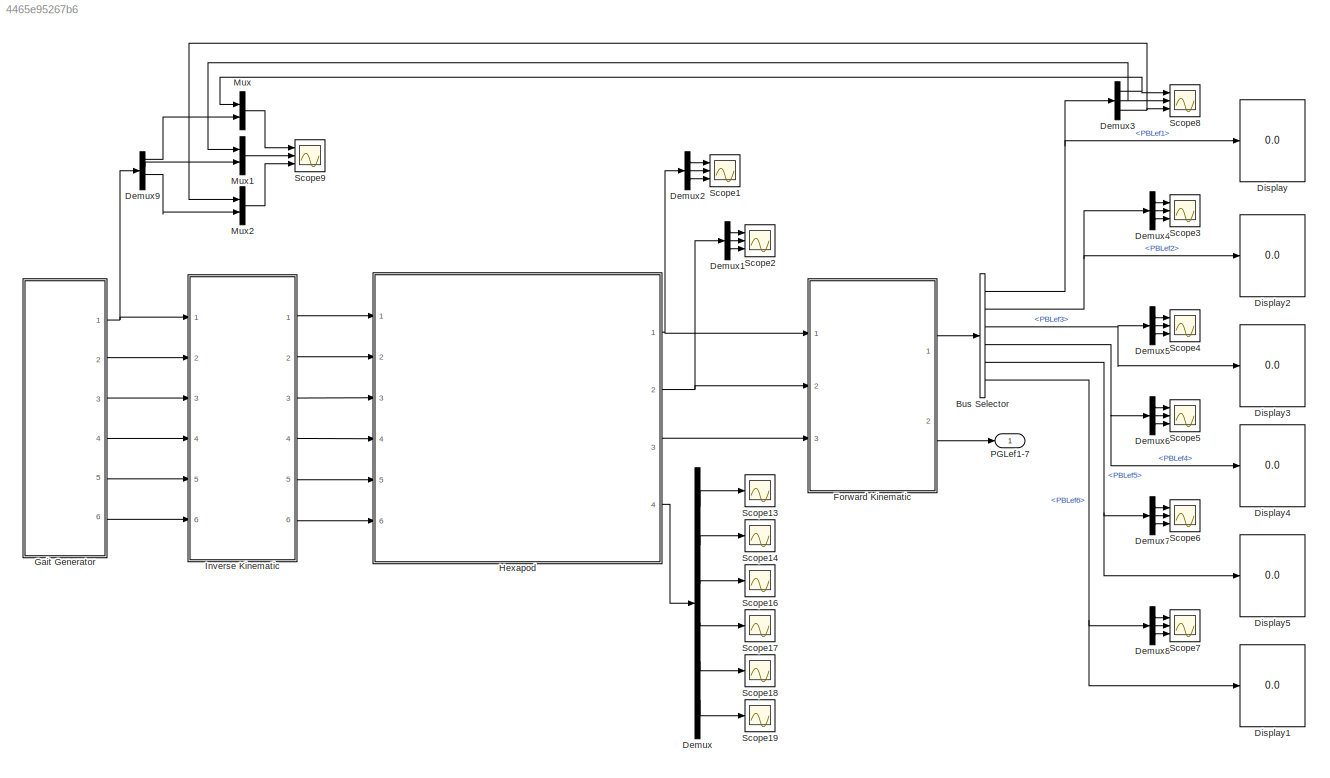
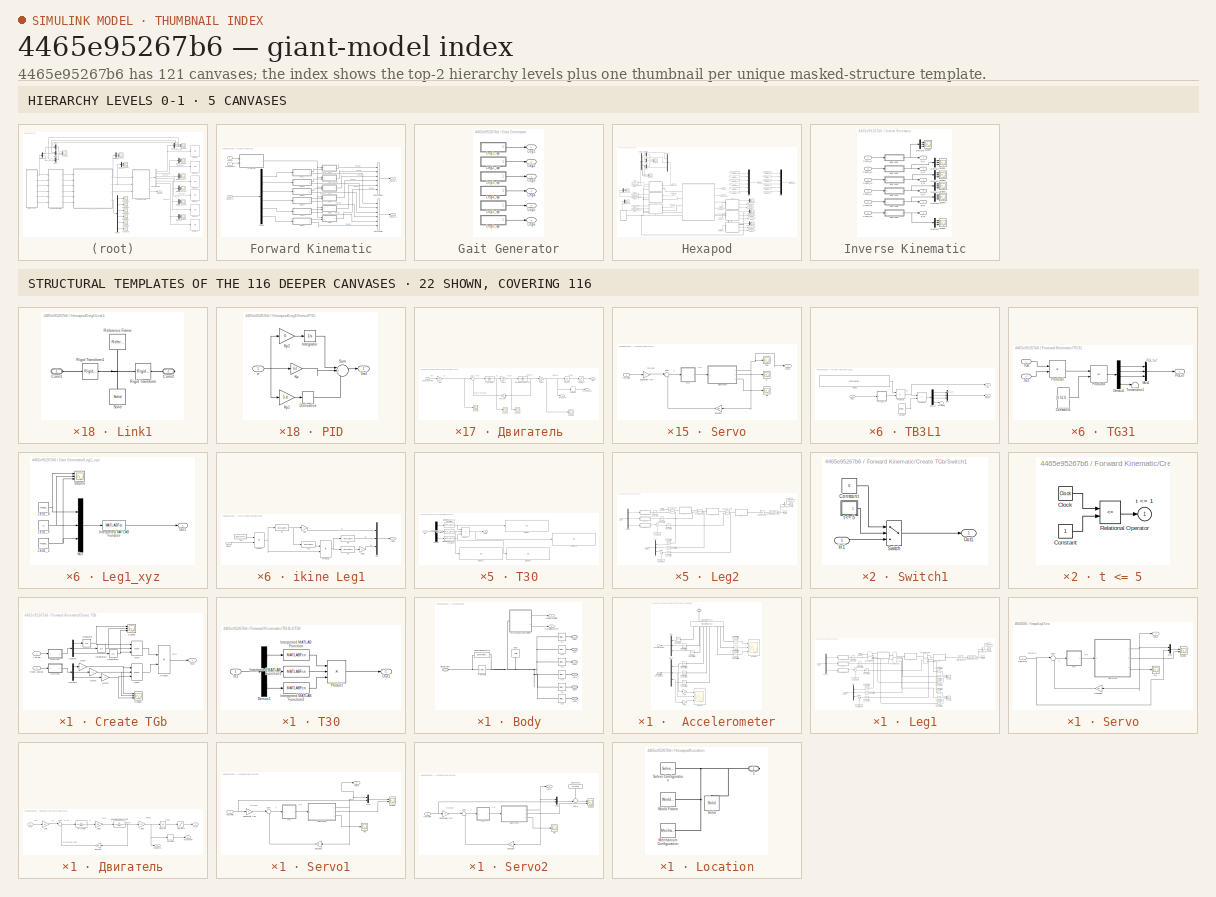
[diagram: thumbnail index - top-2 hierarchy levels (5 canvases) + 22 structural-template representatives of the remaining 116 canvases]
MODEL slx_4465e95267b6
KIND model
CONFIG AbsTol = 1e-5
CONFIG FixedStep = 0.0001
CONFIG MaxStep = 0.01
CONFIG MinStep = auto
CONFIG RelTol = 1e-4
CONFIG SampleTimeConstraint = Unconstrained
CONFIG Solver = ode23tb
CONFIG SolverMode = Auto
CONFIG SolverName = ode23tb
CONFIG StartTime = 0.0
CONFIG StopTime = 10
BLOCK [BusSelector] Bus Selector
  OutputSignals = PBLef1,PBLef2,PBLef3,PBLef4,PBLef5,PBLef6
  Ports = [1, 6]
BLOCK [Demux] Demux
  DisplayOption = bar
  Outputs = 6
  Ports = [1, 6]
BLOCK [Demux] Demux1
  DisplayOption = bar
  Outputs = 3
  Ports = [1, 3]
BLOCK [Demux] Demux2
  DisplayOption = bar
  Outputs = 3
  Ports = [1, 3]
BLOCK [Demux] Demux3
  DisplayOption = bar
  Outputs = 3
  Ports = [1, 3]
BLOCK [Demux] Demux4
  DisplayOption = bar
  Outputs = 3
  Ports = [1, 3]
BLOCK [Demux] Demux5
  DisplayOption = bar
  Outputs = 3
  Ports = [1, 3]
BLOCK [Demux] Demux6
  DisplayOption = bar
  Outputs = 3
  Ports = [1, 3]
BLOCK [Demux] Demux7
  DisplayOption = bar
  Outputs = 3
  Ports = [1, 3]
BLOCK [Demux] Demux8
  DisplayOption = bar
  Outputs = 3
  Ports = [1, 3]
BLOCK [Demux] Demux9
  DisplayOption = bar
  Ports = [1, 4]
BLOCK [Display] Display
  Decimation = 1
  Ports = [1]
BLOCK [Display] Display1
  Decimation = 1
  Ports = [1]
BLOCK [Display] Display2
  Decimation = 1
  Ports = [1]
BLOCK [Display] Display3
  Decimation = 1
  Ports = [1]
BLOCK [Display] Display4
  Decimation = 1
  Ports = [1]
BLOCK [Display] Display5
  Decimation = 1
  Ports = [1]
BLOCK [SubSystem] Forward Kinematic
  Ports = [3, 2]
  RequestExecContextInheritance = off
BLOCK [Inport] Forward Kinematic/Angl vel
  IconDisplay = Port number
BLOCK [BusCreator] Forward Kinematic/Bus Creator
  DisplayOption = bar
  Inputs = 6
  Ports = [6, 1]
BLOCK [BusCreator] Forward Kinematic/Bus Creator1
  DisplayOption = bar
  Inputs = 6
  Ports = [6, 1]
BLOCK [SubSystem] Forward Kinematic/Create TGb
  Ports = [2, 1]
  RequestExecContextInheritance = off
BLOCK [Inport] Forward Kinematic/Create TGb/Ang vel
  IconDisplay = Port number
BLOCK [Demux] Forward Kinematic/Create TGb/Demux
  DisplayOption = bar
  Outputs = 3
  Ports = [1, 3]
BLOCK [Demux] Forward Kinematic/Create TGb/Demux1
  DisplayOption = bar
  Outputs = 3
  Ports = [1, 3]
BLOCK [Gain] Forward Kinematic/Create TGb/Gain
  Gain = -1
  OutDataTypeStr = Inherit: Inherit via internal rule
  ParamDataTypeStr = Inherit: Inherit via internal rule
  SaturateOnIntegerOverflow = off
BLOCK [Gain] Forward Kinematic/Create TGb/Gain1
  Gain = -1
  OutDataTypeStr = Inherit: Inherit via internal rule
  ParamDataTypeStr = Inherit: Inherit via internal rule
  SaturateOnIntegerOverflow = off
BLOCK [Gain] Forward Kinematic/Create TGb/Gain2
  Gain = -1
  OutDataTypeStr = Inherit: Inherit via internal rule
  ParamDataTypeStr = Inherit: Inherit via internal rule
  SaturateOnIntegerOverflow = off
BLOCK [Integrator] Forward Kinematic/Create TGb/Integrator
  Ports = [1, 1]
BLOCK [Integrator] Forward Kinematic/Create TGb/Integrator1
  Ports = [1, 1]
BLOCK [Integrator] Forward Kinematic/Create TGb/Integrator2
  Ports = [1, 1]
BLOCK [Product] Forward Kinematic/Create TGb/Product
  InputSameDT = off
  Multiplication = Matrix(*)
  OutDataTypeStr = Inherit: Inherit via internal rule
  Ports = [2, 1]
  RndMeth = Floor
  SaturateOnIntegerOverflow = off
BLOCK [Scope] Forward Kinematic/Create TGb/Scope1
  Floating = off
  LimitDataPoints = off
  NumInputPorts = 3
  Ports = [3]
  SaveName = ScopeData38
  YMax = 20~5~5
  YMin = -15~-5~-5
BLOCK [Scope] Forward Kinematic/Create TGb/Scope6
  Floating = off
  LimitDataPoints = off
  NumInputPorts = 3
  Ports = [3]
  SaveName = ScopeData48
  YMax = 20~5~5
  YMin = -15~-5~-5
BLOCK [SubSystem] Forward Kinematic/Create TGb/Switch1
  Ports = [1, 1]
  RequestExecContextInheritance = off
BLOCK [Constant] Forward Kinematic/Create TGb/Switch1/Constant
  Value = 0
BLOCK [Inport] Forward Kinematic/Create TGb/Switch1/In1
  IconDisplay = Port number
BLOCK [Outport] Forward Kinematic/Create TGb/Switch1/Out1
  IconDisplay = Port number
BLOCK [Switch] Forward Kinematic/Create TGb/Switch1/Switch
  Threshold = 0.5
BLOCK [SubSystem] Forward Kinematic/Create TGb/Switch1/t <= 5
  Ports = [0, 1]
  RequestExecContextInheritance = off
BLOCK [Clock] Forward Kinematic/Create TGb/Switch1/t <= 5/Clock
BLOCK [Constant] Forward Kinematic/Create TGb/Switch1/t <= 5/Constant
BLOCK [RelationalOperator] Forward Kinematic/Create TGb/Switch1/t <= 5/Relational Operator
  Operator = <=
  Ports = [2, 1]
BLOCK [Outport] Forward Kinematic/Create TGb/Switch1/t <= 5/t <= 1
  IconDisplay = Port number
  InitialOutput = 0
BLOCK [SubSystem] Forward Kinematic/Create TGb/Switch2
  Ports = [1, 1]
  RequestExecContextInheritance = off
BLOCK [Constant] Forward Kinematic/Create TGb/Switch2/Constant1
  Value = 0
BLOCK [Inport] Forward Kinematic/Create TGb/Switch2/In1
  IconDisplay = Port number
BLOCK [Outport] Forward Kinematic/Create TGb/Switch2/Out1
  IconDisplay = Port number
BLOCK [Switch] Forward Kinematic/Create TGb/Switch2/Switch1
  Threshold = 0.5
BLOCK [SubSystem] Forward Kinematic/Create TGb/Switch2/t <= 1
  Ports = [0, 1]
  RequestExecContextInheritance = off
BLOCK [Clock] Forward Kinematic/Create TGb/Switch2/t <= 1/Clock
BLOCK [Constant] Forward Kinematic/Create TGb/Switch2/t <= 1/Constant
BLOCK [RelationalOperator] Forward Kinematic/Create TGb/Switch2/t <= 1/Relational Operator
  Operator = <=
  Ports = [2, 1]
BLOCK [Outport] Forward Kinematic/Create TGb/Switch2/t <= 1/t <= 1
  IconDisplay = Port number
  InitialOutput = 0
BLOCK [Outport] Forward Kinematic/Create TGb/TGb
  IconDisplay = Port number
BLOCK [Inport] Forward Kinematic/Create TGb/Transl coords
  IconDisplay = Port number
  Port = 2
BLOCK [Reference] Forward Kinematic/Create TGb/rpy2T  REF=roblocks/Transform Conversion/rpy2T  (lib defined in mdl_2a292b13c81b, mdl_69400f8cfe22, +12 more)
  Ports = [3, 1]
  SourceBlock = roblocks/Transform Conversion/rpy2T
BLOCK [Reference] Forward Kinematic/Create TGb/xyz2T  REF=roblocks/Transform Conversion/xyz2T  (lib defined in mdl_2a292b13c81b, mdl_69400f8cfe22, +12 more)
  Ports = [3, 1]
  SourceBlock = roblocks/Transform Conversion/xyz2T
BLOCK [Demux] Forward Kinematic/Demux
  DisplayOption = bar
  Outputs = 6
  Ports = [1, 6]
BLOCK [Outport] Forward Kinematic/PBLef1-6
  IconDisplay = Port number
BLOCK [Outport] Forward Kinematic/PGLef1-6
  IconDisplay = Port number
  Port = 2
BLOCK [SubSystem] Forward Kinematic/TB3L1
  Ports = [1, 2]
  RequestExecContextInheritance = off
BLOCK [Constant] Forward Kinematic/TB3L1/Constant
  Value = [L3; 0; 0; 1]
  VectorParams1D = off
BLOCK [Demux] Forward Kinematic/TB3L1/Demux2
  DisplayOption = bar
  Ports = [1, 4]
BLOCK [Mux] Forward Kinematic/TB3L1/Mux
  DisplayOption = bar
  Inputs = 3
  Ports = [3, 1]
BLOCK [Outport] Forward Kinematic/TB3L1/PbLef
  IconDisplay = Port number
  Port = 2
BLOCK [Product] Forward Kinematic/TB3L1/Product1
  InputSameDT = off
  Multiplication = Matrix(*)
  OutDataTypeStr = Inherit: Inherit via internal rule
  Ports = [2, 1]
  RndMeth = Floor
  SaturateOnIntegerOverflow = off
BLOCK [Product] Forward Kinematic/TB3L1/Product2
  InputSameDT = off
  Multiplication = Matrix(*)
  OutDataTypeStr = Inherit: Inherit via internal rule
  Ports = [2, 1]
  RndMeth = Floor
  SaturateOnIntegerOverflow = off
BLOCK [SubSystem] Forward Kinematic/TB3L1/T30
  Ports = [1, 1]
  RequestExecContextInheritance = off
BLOCK [Demux] Forward Kinematic/TB3L1/T30/Demux1
  DisplayOption = bar
  Outputs = 3
  Ports = [1, 3]
BLOCK [Inport] Forward Kinematic/TB3L1/T30/In1
  IconDisplay = Port number
BLOCK [MATLABFcn] Forward Kinematic/TB3L1/T30/Interpreted MATLAB Function
  MATLABFcn = [cos(u) -sin(u) 0 0; sin(u) cos(u) 0 0; 0 0 1 d1; 0 0 0 1]
  Output1D = off
  Ports = [1, 1]
BLOCK [MATLABFcn] Forward Kinematic/TB3L1/T30/Interpreted MATLAB Function1
  MATLABFcn = [cos(u) -sin(u) 0 L1; 0 0 -1 0; sin(u) cos(u) 0 -abs(d2); 0 0 0 1]
  Output1D = off
  Ports = [1, 1]
BLOCK [MATLABFcn] Forward Kinematic/TB3L1/T30/Interpreted MATLAB Function2
  MATLABFcn = [cos(u+90*pi/180) -sin(u+90*pi/180) 0 L2; -sin(u+90*pi/180) -cos(u+90*pi/180) 0 0; 0 0 -1 0; 0 0 0 1]
  Output1D = off
  Ports = [1, 1]
BLOCK [Outport] Forward Kinematic/TB3L1/T30/Out1
  IconDisplay = Port number
BLOCK [Product] Forward Kinematic/TB3L1/T30/Product
  InputSameDT = off
  Inputs = 3
  Multiplication = Matrix(*)
  OutDataTypeStr = Inherit: Inherit via internal rule
  Ports = [3, 1]
  RndMeth = Floor
  SaturateOnIntegerOverflow = off
BLOCK [Outport] Forward Kinematic/TB3L1/Tb3
  IconDisplay = Port number
BLOCK [Constant] Forward Kinematic/TB3L1/Tbleg1
  Value = [cos(45*pi/180) -sin(45*pi/180) 0 bL/2; sin(45*pi/180) cos(45*pi/180) 0 bWs/2; 0 0 1 0; 0 0 0 1]
  VectorParams1D = off
BLOCK [Terminator] Forward Kinematic/TB3L1/Terminator
BLOCK [Inport] Forward Kinematic/TB3L1/q[1...3]
  IconDisplay = Port number
BLOCK [SubSystem] Forward Kinematic/TB3L2
  Ports = [1, 2]
  RequestExecContextInheritance = off
BLOCK [Constant] Forward Kinematic/TB3L2/Constant
  Value = [L3; 0; 0; 1]
  VectorParams1D = off
BLOCK [Demux] Forward Kinematic/TB3L2/Demux2
  DisplayOption = bar
  Ports = [1, 4]
BLOCK [Mux] Forward Kinematic/TB3L2/Mux
  DisplayOption = bar
  Inputs = 3
  Ports = [3, 1]
BLOCK [Outport] Forward Kinematic/TB3L2/PbLef
  IconDisplay = Port number
  Port = 2
BLOCK [Product] Forward Kinematic/TB3L2/Product1
  InputSameDT = off
  Multiplication = Matrix(*)
  OutDataTypeStr = Inherit: Inherit via internal rule
  Ports = [2, 1]
  RndMeth = Floor
  SaturateOnIntegerOverflow = off
BLOCK [Product] Forward Kinematic/TB3L2/Product2
  InputSameDT = off
  Multiplication = Matrix(*)
  OutDataTypeStr = Inherit: Inherit via internal rule
  Ports = [2, 1]
  RndMeth = Floor
  SaturateOnIntegerOverflow = off
BLOCK [SubSystem] Forward Kinematic/TB3L2/T30
  Ports = [1, 1]
  RequestExecContextInheritance = off
BLOCK [Demux] Forward Kinematic/TB3L2/T30/Demux1
  DisplayOption = bar
  Outputs = 3
  Ports = [1, 3]
BLOCK [Display] Forward Kinematic/TB3L2/T30/Display
  Decimation = 1
  Ports = [1]
BLOCK [Display] Forward Kinematic/TB3L2/T30/Display1
  Decimation = 1
  Ports = [1]
BLOCK [Display] Forward Kinematic/TB3L2/T30/Display2
  Decimation = 1
  Ports = [1]
BLOCK [Display] Forward Kinematic/TB3L2/T30/Display3
  Decimation = 1
  Ports = [1]
BLOCK [Inport] Forward Kinematic/TB3L2/T30/In1
  IconDisplay = Port number
BLOCK [MATLABFcn] Forward Kinematic/TB3L2/T30/Interpreted MATLAB Function
  MATLABFcn = [cos(u) -sin(u) 0 0; sin(u) cos(u) 0 0; 0 0 1 d1; 0 0 0 1]
  Output1D = off
  Ports = [1, 1]
BLOCK [MATLABFcn] Forward Kinematic/TB3L2/T30/Interpreted MATLAB Function1
  MATLABFcn = [cos(u) -sin(u) 0 L1; 0 0 -1 0; sin(u) cos(u) 0 -abs(d2); 0 0 0 1]
  Output1D = off
  Ports = [1, 1]
BLOCK [MATLABFcn] Forward Kinematic/TB3L2/T30/Interpreted MATLAB Function2
  MATLABFcn = [cos(u+90*pi/180) -sin(u+90*pi/180) 0 L2; -sin(u+90*pi/180) -cos(u+90*pi/180) 0 0; 0 0 -1 0; 0 0 0 1]
  Output1D = off
  Ports = [1, 1]
BLOCK [Outport] Forward Kinematic/TB3L2/T30/Out1
  IconDisplay = Port number
BLOCK [Product] Forward Kinematic/TB3L2/T30/Product
  InputSameDT = off
  Inputs = 3
  Multiplication = Matrix(*)
  OutDataTypeStr = Inherit: Inherit via internal rule
  Ports = [3, 1]
  RndMeth = Floor
  SaturateOnIntegerOverflow = off
BLOCK [Outport] Forward Kinematic/TB3L2/Tb3
  IconDisplay = Port number
BLOCK [Constant] Forward Kinematic/TB3L2/Tbleg1
  Value = [0 -1 0 0; 1 0 0 bWb/2; 0 0 1 0; 0 0 0 1]
  VectorParams1D = off
BLOCK [Terminator] Forward Kinematic/TB3L2/Terminator
BLOCK [Inport] Forward Kinematic/TB3L2/q[1...3]
  IconDisplay = Port number
BLOCK [SubSystem] Forward Kinematic/TB3L3
  Ports = [1, 2]
  RequestExecContextInheritance = off
BLOCK [Constant] Forward Kinematic/TB3L3/Constant
  Value = [L3; 0; 0; 1]
  VectorParams1D = off
BLOCK [Demux] Forward Kinematic/TB3L3/Demux2
  DisplayOption = bar
  Ports = [1, 4]
BLOCK [Mux] Forward Kinematic/TB3L3/Mux
  DisplayOption = bar
  Inputs = 3
  Ports = [3, 1]
BLOCK [Outport] Forward Kinematic/TB3L3/PbLef
  IconDisplay = Port number
  Port = 2
BLOCK [Product] Forward Kinematic/TB3L3/Product1
  InputSameDT = off
  Multiplication = Matrix(*)
  OutDataTypeStr = Inherit: Inherit via internal rule
  Ports = [2, 1]
  RndMeth = Floor
  SaturateOnIntegerOverflow = off
BLOCK [Product] Forward Kinematic/TB3L3/Product2
  InputSameDT = off
  Multiplication = Matrix(*)
  OutDataTypeStr = Inherit: Inherit via internal rule
  Ports = [2, 1]
  RndMeth = Floor
  SaturateOnIntegerOverflow = off
BLOCK [SubSystem] Forward Kinematic/TB3L3/T30
  Ports = [1, 1]
  RequestExecContextInheritance = off
BLOCK [Demux] Forward Kinematic/TB3L3/T30/Demux1
  DisplayOption = bar
  Outputs = 3
  Ports = [1, 3]
BLOCK [Display] Forward Kinematic/TB3L3/T30/Display
  Decimation = 1
  Ports = [1]
BLOCK [Display] Forward Kinematic/TB3L3/T30/Display1
  Decimation = 1
  Ports = [1]
BLOCK [Display] Forward Kinematic/TB3L3/T30/Display2
  Decimation = 1
  Ports = [1]
BLOCK [Display] Forward Kinematic/TB3L3/T30/Display3
  Decimation = 1
  Ports = [1]
BLOCK [Inport] Forward Kinematic/TB3L3/T30/In1
  IconDisplay = Port number
BLOCK [MATLABFcn] Forward Kinematic/TB3L3/T30/Interpreted MATLAB Function
  MATLABFcn = [cos(u) -sin(u) 0 0; sin(u) cos(u) 0 0; 0 0 1 d1; 0 0 0 1]
  Output1D = off
  Ports = [1, 1]
BLOCK [MATLABFcn] Forward Kinematic/TB3L3/T30/Interpreted MATLAB Function1
  MATLABFcn = [cos(u) -sin(u) 0 L1; 0 0 -1 0; sin(u) cos(u) 0 -abs(d2); 0 0 0 1]
  Output1D = off
  Ports = [1, 1]
BLOCK [MATLABFcn] Forward Kinematic/TB3L3/T30/Interpreted MATLAB Function2
  MATLABFcn = [cos(u+90*pi/180) -sin(u+90*pi/180) 0 L2; -sin(u+90*pi/180) -cos(u+90*pi/180) 0 0; 0 0 -1 0; 0 0 0 1]
  Output1D = off
  Ports = [1, 1]
BLOCK [Outport] Forward Kinematic/TB3L3/T30/Out1
  IconDisplay = Port number
BLOCK [Product] Forward Kinematic/TB3L3/T30/Product
  InputSameDT = off
  Inputs = 3
  Multiplication = Matrix(*)
  OutDataTypeStr = Inherit: Inherit via internal rule
  Ports = [3, 1]
  RndMeth = Floor
  SaturateOnIntegerOverflow = off
BLOCK [Outport] Forward Kinematic/TB3L3/Tb3
  IconDisplay = Port number
BLOCK [Constant] Forward Kinematic/TB3L3/Tbleg3
  Value = [cos(135*pi/180) -sin(135*pi/180) 0 -bL/2; sin(135*pi/180) cos(135*pi/180) 0 bWs/2; 0 0 1 0; 0 0 0 1]
  VectorParams1D = off
BLOCK [Terminator] Forward Kinematic/TB3L3/Terminator
BLOCK [Inport] Forward Kinematic/TB3L3/q[1...3]
  IconDisplay = Port number
BLOCK [SubSystem] Forward Kinematic/TB3L4
  Ports = [1, 2]
  RequestExecContextInheritance = off
BLOCK [Constant] Forward Kinematic/TB3L4/Constant
  Value = [L3; 0; 0; 1]
  VectorParams1D = off
BLOCK [Demux] Forward Kinematic/TB3L4/Demux2
  DisplayOption = bar
  Ports = [1, 4]
BLOCK [Mux] Forward Kinematic/TB3L4/Mux
  DisplayOption = bar
  Inputs = 3
  Ports = [3, 1]
BLOCK [Outport] Forward Kinematic/TB3L4/PbLef
  IconDisplay = Port number
  Port = 2
BLOCK [Product] Forward Kinematic/TB3L4/Product1
  InputSameDT = off
  Multiplication = Matrix(*)
  OutDataTypeStr = Inherit: Inherit via internal rule
  Ports = [2, 1]
  RndMeth = Floor
  SaturateOnIntegerOverflow = off
BLOCK [Product] Forward Kinematic/TB3L4/Product2
  InputSameDT = off
  Multiplication = Matrix(*)
  OutDataTypeStr = Inherit: Inherit via internal rule
  Ports = [2, 1]
  RndMeth = Floor
  SaturateOnIntegerOverflow = off
BLOCK [SubSystem] Forward Kinematic/TB3L4/T30
  Ports = [1, 1]
  RequestExecContextInheritance = off
BLOCK [Demux] Forward Kinematic/TB3L4/T30/Demux1
  DisplayOption = bar
  Outputs = 3
  Ports = [1, 3]
BLOCK [Display] Forward Kinematic/TB3L4/T30/Display
  Decimation = 1
  Ports = [1]
BLOCK [Display] Forward Kinematic/TB3L4/T30/Display1
  Decimation = 1
  Ports = [1]
BLOCK [Display] Forward Kinematic/TB3L4/T30/Display2
  Decimation = 1
  Ports = [1]
BLOCK [Display] Forward Kinematic/TB3L4/T30/Display3
  Decimation = 1
  Ports = [1]
BLOCK [Inport] Forward Kinematic/TB3L4/T30/In1
  IconDisplay = Port number
BLOCK [MATLABFcn] Forward Kinematic/TB3L4/T30/Interpreted MATLAB Function
  MATLABFcn = [cos(u) -sin(u) 0 0; sin(u) cos(u) 0 0; 0 0 1 d1; 0 0 0 1]
  Output1D = off
  Ports = [1, 1]
BLOCK [MATLABFcn] Forward Kinematic/TB3L4/T30/Interpreted MATLAB Function1
  MATLABFcn = [cos(u) -sin(u) 0 L1; 0 0 -1 0; sin(u) cos(u) 0 -abs(d2); 0 0 0 1]
  Output1D = off
  Ports = [1, 1]
BLOCK [MATLABFcn] Forward Kinematic/TB3L4/T30/Interpreted MATLAB Function2
  MATLABFcn = [cos(u+90*pi/180) -sin(u+90*pi/180) 0 L2; -sin(u+90*pi/180) -cos(u+90*pi/180) 0 0; 0 0 -1 0; 0 0 0 1]
  Output1D = off
  Ports = [1, 1]
BLOCK [Outport] Forward Kinematic/TB3L4/T30/Out1
  IconDisplay = Port number
BLOCK [Product] Forward Kinematic/TB3L4/T30/Product
  InputSameDT = off
  Inputs = 3
  Multiplication = Matrix(*)
  OutDataTypeStr = Inherit: Inherit via internal rule
  Ports = [3, 1]
  RndMeth = Floor
  SaturateOnIntegerOverflow = off
BLOCK [Outport] Forward Kinematic/TB3L4/Tb3
  IconDisplay = Port number
BLOCK [Constant] Forward Kinematic/TB3L4/Tbleg1
  Value = [cos(-45*pi/180) -sin(-45*pi/180) 0 bL/2; sin(-45*pi/180) cos(-45*pi/180) 0 -bWs/2; 0 0 1 0; 0 0 0 1]
  VectorParams1D = off
BLOCK [Terminator] Forward Kinematic/TB3L4/Terminator
BLOCK [Inport] Forward Kinematic/TB3L4/q[1...3]
  IconDisplay = Port number
BLOCK [SubSystem] Forward Kinematic/TB3L5
  Ports = [1, 2]
  RequestExecContextInheritance = off
BLOCK [Constant] Forward Kinematic/TB3L5/Constant
  Value = [L3; 0; 0; 1]
  VectorParams1D = off
BLOCK [Demux] Forward Kinematic/TB3L5/Demux2
  DisplayOption = bar
  Ports = [1, 4]
BLOCK [Mux] Forward Kinematic/TB3L5/Mux
  DisplayOption = bar
  Inputs = 3
  Ports = [3, 1]
BLOCK [Outport] Forward Kinematic/TB3L5/PbLef
  IconDisplay = Port number
  Port = 2
BLOCK [Product] Forward Kinematic/TB3L5/Product1
  InputSameDT = off
  Multiplication = Matrix(*)
  OutDataTypeStr = Inherit: Inherit via internal rule
  Ports = [2, 1]
  RndMeth = Floor
  SaturateOnIntegerOverflow = off
BLOCK [Product] Forward Kinematic/TB3L5/Product2
  InputSameDT = off
  Multiplication = Matrix(*)
  OutDataTypeStr = Inherit: Inherit via internal rule
  Ports = [2, 1]
  RndMeth = Floor
  SaturateOnIntegerOverflow = off
BLOCK [SubSystem] Forward Kinematic/TB3L5/T30
  Ports = [1, 1]
  RequestExecContextInheritance = off
BLOCK [Demux] Forward Kinematic/TB3L5/T30/Demux1
  DisplayOption = bar
  Outputs = 3
  Ports = [1, 3]
BLOCK [Display] Forward Kinematic/TB3L5/T30/Display
  Decimation = 1
  Ports = [1]
BLOCK [Display] Forward Kinematic/TB3L5/T30/Display1
  Decimation = 1
  Ports = [1]
BLOCK [Display] Forward Kinematic/TB3L5/T30/Display2
  Decimation = 1
  Ports = [1]
BLOCK [Display] Forward Kinematic/TB3L5/T30/Display3
  Decimation = 1
  Ports = [1]
BLOCK [Inport] Forward Kinematic/TB3L5/T30/In1
  IconDisplay = Port number
BLOCK [MATLABFcn] Forward Kinematic/TB3L5/T30/Interpreted MATLAB Function
  MATLABFcn = [cos(u) -sin(u) 0 0; sin(u) cos(u) 0 0; 0 0 1 d1; 0 0 0 1]
  Output1D = off
  Ports = [1, 1]
BLOCK [MATLABFcn] Forward Kinematic/TB3L5/T30/Interpreted MATLAB Function1
  MATLABFcn = [cos(u) -sin(u) 0 L1; 0 0 -1 0; sin(u) cos(u) 0 -abs(d2); 0 0 0 1]
  Output1D = off
  Ports = [1, 1]
BLOCK [MATLABFcn] Forward Kinematic/TB3L5/T30/Interpreted MATLAB Function2
  MATLABFcn = [cos(u+90*pi/180) -sin(u+90*pi/180) 0 L2; -sin(u+90*pi/180) -cos(u+90*pi/180) 0 0; 0 0 -1 0; 0 0 0 1]
  Output1D = off
  Ports = [1, 1]
BLOCK [Outport] Forward Kinematic/TB3L5/T30/Out1
  IconDisplay = Port number
BLOCK [Product] Forward Kinematic/TB3L5/T30/Product
  InputSameDT = off
  Inputs = 3
  Multiplication = Matrix(*)
  OutDataTypeStr = Inherit: Inherit via internal rule
  Ports = [3, 1]
  RndMeth = Floor
  SaturateOnIntegerOverflow = off
BLOCK [Outport] Forward Kinematic/TB3L5/Tb3
  IconDisplay = Port number
BLOCK [Constant] Forward Kinematic/TB3L5/Tbleg1
  Value = [0 1 0 0; -1 0 0 -bWb/2; 0 0 1 0; 0 0 0 1]
  VectorParams1D = off
BLOCK [Terminator] Forward Kinematic/TB3L5/Terminator
BLOCK [Inport] Forward Kinematic/TB3L5/q[1...3]
  IconDisplay = Port number
BLOCK [SubSystem] Forward Kinematic/TB3L6
  Ports = [1, 2]
  RequestExecContextInheritance = off
BLOCK [Constant] Forward Kinematic/TB3L6/Constant
  Value = [L3; 0; 0; 1]
  VectorParams1D = off
BLOCK [Demux] Forward Kinematic/TB3L6/Demux2
  DisplayOption = bar
  Ports = [1, 4]
BLOCK [Mux] Forward Kinematic/TB3L6/Mux
  DisplayOption = bar
  Inputs = 3
  Ports = [3, 1]
BLOCK [Outport] Forward Kinematic/TB3L6/PbLef
  IconDisplay = Port number
  Port = 2
BLOCK [Product] Forward Kinematic/TB3L6/Product1
  InputSameDT = off
  Multiplication = Matrix(*)
  OutDataTypeStr = Inherit: Inherit via internal rule
  Ports = [2, 1]
  RndMeth = Floor
  SaturateOnIntegerOverflow = off
BLOCK [Product] Forward Kinematic/TB3L6/Product2
  InputSameDT = off
  Multiplication = Matrix(*)
  OutDataTypeStr = Inherit: Inherit via internal rule
  Ports = [2, 1]
  RndMeth = Floor
  SaturateOnIntegerOverflow = off
BLOCK [SubSystem] Forward Kinematic/TB3L6/T30
  Ports = [1, 1]
  RequestExecContextInheritance = off
BLOCK [Demux] Forward Kinematic/TB3L6/T30/Demux1
  DisplayOption = bar
  Outputs = 3
  Ports = [1, 3]
BLOCK [Display] Forward Kinematic/TB3L6/T30/Display
  Decimation = 1
  Ports = [1]
BLOCK [Display] Forward Kinematic/TB3L6/T30/Display1
  Decimation = 1
  Ports = [1]
BLOCK [Display] Forward Kinematic/TB3L6/T30/Display2
  Decimation = 1
  Ports = [1]
BLOCK [Display] Forward Kinematic/TB3L6/T30/Display3
  Decimation = 1
  Ports = [1]
BLOCK [Inport] Forward Kinematic/TB3L6/T30/In1
  IconDisplay = Port number
BLOCK [MATLABFcn] Forward Kinematic/TB3L6/T30/Interpreted MATLAB Function
  MATLABFcn = [cos(u) -sin(u) 0 0; sin(u) cos(u) 0 0; 0 0 1 d1; 0 0 0 1]
  Output1D = off
  Ports = [1, 1]
BLOCK [MATLABFcn] Forward Kinematic/TB3L6/T30/Interpreted MATLAB Function1
  MATLABFcn = [cos(u) -sin(u) 0 L1; 0 0 -1 0; sin(u) cos(u) 0 -abs(d2); 0 0 0 1]
  Output1D = off
  Ports = [1, 1]
BLOCK [MATLABFcn] Forward Kinematic/TB3L6/T30/Interpreted MATLAB Function2
  MATLABFcn = [cos(u+90*pi/180) -sin(u+90*pi/180) 0 L2; -sin(u+90*pi/180) -cos(u+90*pi/180) 0 0; 0 0 -1 0; 0 0 0 1]
  Output1D = off
  Ports = [1, 1]
BLOCK [Outport] Forward Kinematic/TB3L6/T30/Out1
  IconDisplay = Port number
BLOCK [Product] Forward Kinematic/TB3L6/T30/Product
  InputSameDT = off
  Inputs = 3
  Multiplication = Matrix(*)
  OutDataTypeStr = Inherit: Inherit via internal rule
  Ports = [3, 1]
  RndMeth = Floor
  SaturateOnIntegerOverflow = off
BLOCK [Outport] Forward Kinematic/TB3L6/Tb3
  IconDisplay = Port number
BLOCK [Constant] Forward Kinematic/TB3L6/Tbleg1
  Value = [cos(-135*pi/180) -sin(-135*pi/180) 0 -bL/2; sin(-135*pi/180) cos(-135*pi/180) 0 -bWs/2; 0 0 1 0; 0 0 0 1]
  VectorParams1D = off
BLOCK [Terminator] Forward Kinematic/TB3L6/Terminator
BLOCK [Inport] Forward Kinematic/TB3L6/q[1...3]
  IconDisplay = Port number
BLOCK [SubSystem] Forward Kinematic/TG31
  Ports = [2, 1]
  RequestExecContextInheritance = off
BLOCK [Constant] Forward Kinematic/TG31/Constant1
  Value = [0; L3; 0; 1]
  VectorParams1D = off
BLOCK [Demux] Forward Kinematic/TG31/Demux1
  DisplayOption = bar
  Ports = [1, 4]
BLOCK [Mux] Forward Kinematic/TG31/Mux1
  DisplayOption = bar
  Inputs = 3
  Ports = [3, 1]
BLOCK [Outport] Forward Kinematic/TG31/PGLef
  IconDisplay = Port number
BLOCK [Product] Forward Kinematic/TG31/Product3
  InputSameDT = off
  Multiplication = Matrix(*)
  OutDataTypeStr = Inherit: Inherit via internal rule
  Ports = [2, 1]
  RndMeth = Floor
  SaturateOnIntegerOverflow = off
BLOCK [Product] Forward Kinematic/TG31/Product4
  InputSameDT = off
  Multiplication = Matrix(*)
  OutDataTypeStr = Inherit: Inherit via internal rule
  Ports = [2, 1]
  RndMeth = Floor
  SaturateOnIntegerOverflow = off
BLOCK [Inport] Forward Kinematic/TG31/TGb
  IconDisplay = Port number
BLOCK [Inport] Forward Kinematic/TG31/Tb3
  IconDisplay = Port number
  Port = 2
BLOCK [Terminator] Forward Kinematic/TG31/Terminator1
BLOCK [SubSystem] Forward Kinematic/TG32
  Ports = [2, 1]
  RequestExecContextInheritance = off
BLOCK [Constant] Forward Kinematic/TG32/Constant1
  Value = [0; L3; 0; 1]
  VectorParams1D = off
BLOCK [Demux] Forward Kinematic/TG32/Demux1
  DisplayOption = bar
  Ports = [1, 4]
BLOCK [Mux] Forward Kinematic/TG32/Mux1
  DisplayOption = bar
  Inputs = 3
  Ports = [3, 1]
BLOCK [Outport] Forward Kinematic/TG32/PGLef
  IconDisplay = Port number
BLOCK [Product] Forward Kinematic/TG32/Product3
  InputSameDT = off
  Multiplication = Matrix(*)
  OutDataTypeStr = Inherit: Inherit via internal rule
  Ports = [2, 1]
  RndMeth = Floor
  SaturateOnIntegerOverflow = off
BLOCK [Product] Forward Kinematic/TG32/Product4
  InputSameDT = off
  Multiplication = Matrix(*)
  OutDataTypeStr = Inherit: Inherit via internal rule
  Ports = [2, 1]
  RndMeth = Floor
  SaturateOnIntegerOverflow = off
BLOCK [Inport] Forward Kinematic/TG32/TGb
  IconDisplay = Port number
BLOCK [Inport] Forward Kinematic/TG32/Tb3
  IconDisplay = Port number
  Port = 2
BLOCK [Terminator] Forward Kinematic/TG32/Terminator1
BLOCK [SubSystem] Forward Kinematic/TG33
  Ports = [2, 1]
  RequestExecContextInheritance = off
BLOCK [Constant] Forward Kinematic/TG33/Constant1
  Value = [0; L3; 0; 1]
  VectorParams1D = off
BLOCK [Demux] Forward Kinematic/TG33/Demux1
  DisplayOption = bar
  Ports = [1, 4]
BLOCK [Mux] Forward Kinematic/TG33/Mux1
  DisplayOption = bar
  Inputs = 3
  Ports = [3, 1]
BLOCK [Outport] Forward Kinematic/TG33/PGLef
  IconDisplay = Port number
BLOCK [Product] Forward Kinematic/TG33/Product3
  InputSameDT = off
  Multiplication = Matrix(*)
  OutDataTypeStr = Inherit: Inherit via internal rule
  Ports = [2, 1]
  RndMeth = Floor
  SaturateOnIntegerOverflow = off
BLOCK [Product] Forward Kinematic/TG33/Product4
  InputSameDT = off
  Multiplication = Matrix(*)
  OutDataTypeStr = Inherit: Inherit via internal rule
  Ports = [2, 1]
  RndMeth = Floor
  SaturateOnIntegerOverflow = off
BLOCK [Inport] Forward Kinematic/TG33/TGb
  IconDisplay = Port number
BLOCK [Inport] Forward Kinematic/TG33/Tb3
  IconDisplay = Port number
  Port = 2
BLOCK [Terminator] Forward Kinematic/TG33/Terminator1
BLOCK [SubSystem] Forward Kinematic/TG34
  Ports = [2, 1]
  RequestExecContextInheritance = off
BLOCK [Constant] Forward Kinematic/TG34/Constant1
  Value = [0; L3; 0; 1]
  VectorParams1D = off
BLOCK [Demux] Forward Kinematic/TG34/Demux1
  DisplayOption = bar
  Ports = [1, 4]
BLOCK [Mux] Forward Kinematic/TG34/Mux1
  DisplayOption = bar
  Inputs = 3
  Ports = [3, 1]
BLOCK [Outport] Forward Kinematic/TG34/PGLef
  IconDisplay = Port number
BLOCK [Product] Forward Kinematic/TG34/Product3
  InputSameDT = off
  Multiplication = Matrix(*)
  OutDataTypeStr = Inherit: Inherit via internal rule
  Ports = [2, 1]
  RndMeth = Floor
  SaturateOnIntegerOverflow = off
BLOCK [Product] Forward Kinematic/TG34/Product4
  InputSameDT = off
  Multiplication = Matrix(*)
  OutDataTypeStr = Inherit: Inherit via internal rule
  Ports = [2, 1]
  RndMeth = Floor
  SaturateOnIntegerOverflow = off
BLOCK [Inport] Forward Kinematic/TG34/TGb
  IconDisplay = Port number
BLOCK [Inport] Forward Kinematic/TG34/Tb3
  IconDisplay = Port number
  Port = 2
BLOCK [Terminator] Forward Kinematic/TG34/Terminator1
BLOCK [SubSystem] Forward Kinematic/TG35
  Ports = [2, 1]
  RequestExecContextInheritance = off
BLOCK [Constant] Forward Kinematic/TG35/Constant1
  Value = [0; L3; 0; 1]
  VectorParams1D = off
BLOCK [Demux] Forward Kinematic/TG35/Demux1
  DisplayOption = bar
  Ports = [1, 4]
BLOCK [Mux] Forward Kinematic/TG35/Mux1
  DisplayOption = bar
  Inputs = 3
  Ports = [3, 1]
BLOCK [Outport] Forward Kinematic/TG35/PGLef
  IconDisplay = Port number
BLOCK [Product] Forward Kinematic/TG35/Product3
  InputSameDT = off
  Multiplication = Matrix(*)
  OutDataTypeStr = Inherit: Inherit via internal rule
  Ports = [2, 1]
  RndMeth = Floor
  SaturateOnIntegerOverflow = off
BLOCK [Product] Forward Kinematic/TG35/Product4
  InputSameDT = off
  Multiplication = Matrix(*)
  OutDataTypeStr = Inherit: Inherit via internal rule
  Ports = [2, 1]
  RndMeth = Floor
  SaturateOnIntegerOverflow = off
BLOCK [Inport] Forward Kinematic/TG35/TGb
  IconDisplay = Port number
BLOCK [Inport] Forward Kinematic/TG35/Tb3
  IconDisplay = Port number
  Port = 2
BLOCK [Terminator] Forward Kinematic/TG35/Terminator1
BLOCK [SubSystem] Forward Kinematic/TG36
  Ports = [2, 1]
  RequestExecContextInheritance = off
BLOCK [Constant] Forward Kinematic/TG36/Constant1
  Value = [0; L3; 0; 1]
  VectorParams1D = off
BLOCK [Demux] Forward Kinematic/TG36/Demux1
  DisplayOption = bar
  Ports = [1, 4]
BLOCK [Mux] Forward Kinematic/TG36/Mux1
  DisplayOption = bar
  Inputs = 3
  Ports = [3, 1]
BLOCK [Outport] Forward Kinematic/TG36/PGLef
  IconDisplay = Port number
BLOCK [Product] Forward Kinematic/TG36/Product3
  InputSameDT = off
  Multiplication = Matrix(*)
  OutDataTypeStr = Inherit: Inherit via internal rule
  Ports = [2, 1]
  RndMeth = Floor
  SaturateOnIntegerOverflow = off
BLOCK [Product] Forward Kinematic/TG36/Product4
  InputSameDT = off
  Multiplication = Matrix(*)
  OutDataTypeStr = Inherit: Inherit via internal rule
  Ports = [2, 1]
  RndMeth = Floor
  SaturateOnIntegerOverflow = off
BLOCK [Inport] Forward Kinematic/TG36/TGb
  IconDisplay = Port number
BLOCK [Inport] Forward Kinematic/TG36/Tb3
  IconDisplay = Port number
  Port = 2
BLOCK [Terminator] Forward Kinematic/TG36/Terminator1
BLOCK [Inport] Forward Kinematic/Transl coord
  IconDisplay = Port number
  Port = 2
BLOCK [Inport] Forward Kinematic/qLeg1-6
  IconDisplay = Port number
  Port = 3
BLOCK [SubSystem] Gait Generator
  Ports = [0, 6]
  RequestExecContextInheritance = off
BLOCK [Outport] Gait Generator/Leg1
  IconDisplay = Port number
BLOCK [SubSystem] Gait Generator/Leg1_xyz
  Ports = [0, 1]
  RequestExecContextInheritance = off
BLOCK [MATLABFcn] Gait Generator/Leg1_xyz/Interpreted MATLAB Function
  MATLABFcn = [u(1); u(2); u(3); 1]
  Ports = [1, 1]
BLOCK [Reference] Gait Generator/Leg1_xyz/LEG1_X  REF=simulink/Sources/Repeating
Sequence
Interpolated
  LockScale = off
  LookUpMeth = Interpolation-Use End Values
  OutDataType = fixdt(0,8)
  OutDataTypeStr = double
  OutMax = []
  OutMin = []
  OutScaling = 2^-10
  OutValues = [l1x l1x-stX l1x-stX l1x+stX l1x+stX l1x].'
  OutputDataTypeScalingMode = double
  Ports = [0, 1]
  SourceBlock = simulink/Sources/Repeating\nSequence\nInterpolated
  SourceType = Repeating Sequence Interpolated
  TimeValues = [0 0.25*Ts 0.375*Ts 0.625*Ts 0.75*Ts Ts].'
  tsamp = 0.01
BLOCK [Constant] Gait Generator/Leg1_xyz/LEG1_Y
  Value = l1y
BLOCK [Reference] Gait Generator/Leg1_xyz/LEG1_Z  REF=simulink/Sources/Repeating
Sequence
Interpolated
  LockScale = off
  LookUpMeth = Interpolation-Use End Values
  OutDataType = fixdt(0,8)
  OutDataTypeStr = double
  OutMax = []
  OutMin = []
  OutScaling = 2^-10
  OutValues = [l1z  l1z l1z+stZ l1z+stZ l1z l1z].'
  OutputDataTypeScalingMode = double
  Ports = [0, 1]
  SourceBlock = simulink/Sources/Repeating\nSequence\nInterpolated
  SourceType = Repeating Sequence Interpolated
  TimeValues = [0 0.25*Ts 0.375*Ts 0.625*Ts 0.75*Ts Ts].'
  tsamp = 0.01
BLOCK [Mux] Gait Generator/Leg1_xyz/Mux
  DisplayOption = bar
  Inputs = 3
  Ports = [3, 1]
BLOCK [Outport] Gait Generator/Leg1_xyz/Out1
  IconDisplay = Port number
BLOCK [Scope] Gait Generator/Leg1_xyz/Scope6
  Floating = off
  LimitDataPoints = off
  NumInputPorts = 3
  Ports = [3]
  SaveName = ScopeData15
  YMax = 20~5~5
  YMin = -15~-5~-5
BLOCK [Outport] Gait Generator/Leg2
  IconDisplay = Port number
  Port = 2
BLOCK [SubSystem] Gait Generator/Leg2_xyz
  Ports = [0, 1]
  RequestExecContextInheritance = off
BLOCK [MATLABFcn] Gait Generator/Leg2_xyz/Interpreted MATLAB Function1
  MATLABFcn = [u(1); u(2); u(3); 1]
  Ports = [1, 1]
BLOCK [Reference] Gait Generator/Leg2_xyz/LEG2_X  REF=simulink/Sources/Repeating
Sequence
Interpolated
  LockScale = off
  LookUpMeth = Interpolation-Use End Values
  OutDataType = fixdt(0,8)
  OutDataTypeStr = double
  OutMax = []
  OutMin = []
  OutScaling = 2^-10
  OutValues = [l2x l2x+stX l2x+stX l2x-stX l2x-stX l2x].'
  OutputDataTypeScalingMode = double
  Ports = [0, 1]
  SourceBlock = simulink/Sources/Repeating\nSequence\nInterpolated
  SourceType = Repeating Sequence Interpolated
  TimeValues = [0 0.125*Ts 0.25*Ts 0.75*Ts 0.875*Ts Ts].'
  tsamp = 0.01
BLOCK [Constant] Gait Generator/Leg2_xyz/LEG2_Y
  Value = l2y
BLOCK [Reference] Gait Generator/Leg2_xyz/LEG2_Z  REF=simulink/Sources/Repeating
Sequence
Interpolated
  LockScale = off
  LookUpMeth = Interpolation-Use End Values
  OutDataType = fixdt(0,8)
  OutDataTypeStr = double
  OutMax = []
  OutMin = []
  OutScaling = 2^-10
  OutValues = [l2z+stZ l2z+stZ l2z l2z l2z+stZ l2z+stZ].'
  OutputDataTypeScalingMode = double
  Ports = [0, 1]
  SourceBlock = simulink/Sources/Repeating\nSequence\nInterpolated
  SourceType = Repeating Sequence Interpolated
  TimeValues = [0 0.125*Ts 0.25*Ts 0.75*Ts 0.875*Ts Ts].'
  tsamp = 0.01
BLOCK [Mux] Gait Generator/Leg2_xyz/Mux1
  DisplayOption = bar
  Inputs = 3
  Ports = [3, 1]
BLOCK [Outport] Gait Generator/Leg2_xyz/Out1
  IconDisplay = Port number
BLOCK [Scope] Gait Generator/Leg2_xyz/Scope6
  Floating = off
  LimitDataPoints = off
  NumInputPorts = 3
  Ports = [3]
  SaveName = ScopeData40
  YMax = 20~5~5
  YMin = -15~-5~-5
BLOCK [Outport] Gait Generator/Leg3
  IconDisplay = Port number
  Port = 3
BLOCK [SubSystem] Gait Generator/Leg3_xyz
  Ports = [0, 1]
  RequestExecContextInheritance = off
BLOCK [MATLABFcn] Gait Generator/Leg3_xyz/Interpreted MATLAB Function2
  MATLABFcn = [u(1); u(2); u(3); 1]
  Ports = [1, 1]
BLOCK [Reference] Gait Generator/Leg3_xyz/LEG3_X  REF=simulink/Sources/Repeating
Sequence
Interpolated
  LockScale = off
  LookUpMeth = Interpolation-Use End Values
  OutDataType = fixdt(0,8)
  OutDataTypeStr = double
  OutMax = []
  OutMin = []
  OutScaling = 2^-10
  OutValues = [l3x l3x-stX l3x-stX l3x+stX l3x+stX l3x].'
  OutputDataTypeScalingMode = double
  Ports = [0, 1]
  SourceBlock = simulink/Sources/Repeating\nSequence\nInterpolated
  SourceType = Repeating Sequence Interpolated
  TimeValues = [0 0.25*Ts 0.375*Ts 0.625*Ts 0.75*Ts Ts].'
  tsamp = 0.01
BLOCK [Constant] Gait Generator/Leg3_xyz/LEG3_Y
  Value = l3y
BLOCK [Reference] Gait Generator/Leg3_xyz/LEG3_Z  REF=simulink/Sources/Repeating
Sequence
Interpolated
  LockScale = off
  LookUpMeth = Interpolation-Use End Values
  OutDataType = fixdt(0,8)
  OutDataTypeStr = double
  OutMax = []
  OutMin = []
  OutScaling = 2^-10
  OutValues = [l3z  l3z l3z+stZ l3z+stZ l3z l3z].'
  OutputDataTypeScalingMode = double
  Ports = [0, 1]
  SourceBlock = simulink/Sources/Repeating\nSequence\nInterpolated
  SourceType = Repeating Sequence Interpolated
  TimeValues = [0 0.25*Ts 0.375*Ts 0.625*Ts 0.75*Ts Ts].'
  tsamp = 0.01
BLOCK [Mux] Gait Generator/Leg3_xyz/Mux2
  DisplayOption = bar
  Inputs = 3
  Ports = [3, 1]
BLOCK [Outport] Gait Generator/Leg3_xyz/Out1
  IconDisplay = Port number
BLOCK [Scope] Gait Generator/Leg3_xyz/Scope6
  Floating = off
  LimitDataPoints = off
  NumInputPorts = 3
  Ports = [3]
  SaveName = ScopeData41
  YMax = 20~5~5
  YMin = -15~-5~-5
BLOCK [Outport] Gait Generator/Leg4
  IconDisplay = Port number
  Port = 4
BLOCK [SubSystem] Gait Generator/Leg4_xyz
  Ports = [0, 1]
  RequestExecContextInheritance = off
BLOCK [MATLABFcn] Gait Generator/Leg4_xyz/Interpreted MATLAB Function3
  MATLABFcn = [u(1); u(2); u(3); 1]
  Ports = [1, 1]
BLOCK [Reference] Gait Generator/Leg4_xyz/LEG4_X  REF=simulink/Sources/Repeating
Sequence
Interpolated
  LockScale = off
  LookUpMeth = Interpolation-Use End Values
  OutDataType = fixdt(0,8)
  OutDataTypeStr = double
  OutMax = []
  OutMin = []
  OutScaling = 2^-10
  OutValues = [l4x l4x+stX l4x+stX l4x-stX l4x-stX l4x].'
  OutputDataTypeScalingMode = double
  Ports = [0, 1]
  SourceBlock = simulink/Sources/Repeating\nSequence\nInterpolated
  SourceType = Repeating Sequence Interpolated
  TimeValues = [0 0.125*Ts 0.25*Ts 0.75*Ts 0.875*Ts Ts].'
  tsamp = 0.01
BLOCK [Constant] Gait Generator/Leg4_xyz/LEG4_Y
  Value = l4y
BLOCK [Reference] Gait Generator/Leg4_xyz/LEG4_Z  REF=simulink/Sources/Repeating
Sequence
Interpolated
  LockScale = off
  LookUpMeth = Interpolation-Use End Values
  OutDataType = fixdt(0,8)
  OutDataTypeStr = double
  OutMax = []
  OutMin = []
  OutScaling = 2^-10
  OutValues = [l4z+stZ l4z+stZ l4z l4z l4z+stZ l4z+stZ].'
  OutputDataTypeScalingMode = double
  Ports = [0, 1]
  SourceBlock = simulink/Sources/Repeating\nSequence\nInterpolated
  SourceType = Repeating Sequence Interpolated
  TimeValues = [0 0.125*Ts 0.25*Ts 0.75*Ts 0.875*Ts Ts].'
  tsamp = 0.01
BLOCK [Mux] Gait Generator/Leg4_xyz/Mux3
  DisplayOption = bar
  Inputs = 3
  Ports = [3, 1]
BLOCK [Outport] Gait Generator/Leg4_xyz/Out1
  IconDisplay = Port number
BLOCK [Scope] Gait Generator/Leg4_xyz/Scope6
  Floating = off
  LimitDataPoints = off
  NumInputPorts = 3
  Ports = [3]
  SaveName = ScopeData42
  YMax = 20~5~5
  YMin = -15~-5~-5
BLOCK [Outport] Gait Generator/Leg5
  IconDisplay = Port number
  Port = 5
BLOCK [SubSystem] Gait Generator/Leg5_xyz
  Ports = [0, 1]
  RequestExecContextInheritance = off
BLOCK [MATLABFcn] Gait Generator/Leg5_xyz/Interpreted MATLAB Function4
  MATLABFcn = [u(1); u(2); u(3); 1]
  Ports = [1, 1]
BLOCK [Reference] Gait Generator/Leg5_xyz/LEG5_X  REF=simulink/Sources/Repeating
Sequence
Interpolated
  LockScale = off
  LookUpMeth = Interpolation-Use End Values
  OutDataType = fixdt(0,8)
  OutDataTypeStr = double
  OutMax = []
  OutMin = []
  OutScaling = 2^-10
  OutValues = [l5x l5x-stX l5x-stX l5x+stX l5x+stX l5x].'
  OutputDataTypeScalingMode = double
  Ports = [0, 1]
  SourceBlock = simulink/Sources/Repeating\nSequence\nInterpolated
  SourceType = Repeating Sequence Interpolated
  TimeValues = [0 0.25*Ts 0.375*Ts 0.625*Ts 0.75*Ts Ts].'
  tsamp = 0.01
BLOCK [Constant] Gait Generator/Leg5_xyz/LEG5_Y
  Value = l5y
BLOCK [Reference] Gait Generator/Leg5_xyz/LEG5_Z  REF=simulink/Sources/Repeating
Sequence
Interpolated
  LockScale = off
  LookUpMeth = Interpolation-Use End Values
  OutDataType = fixdt(0,8)
  OutDataTypeStr = double
  OutMax = []
  OutMin = []
  OutScaling = 2^-10
  OutValues = [l5z  l5z l5z+stZ l5z+stZ l5z l5z].'
  OutputDataTypeScalingMode = double
  Ports = [0, 1]
  SourceBlock = simulink/Sources/Repeating\nSequence\nInterpolated
  SourceType = Repeating Sequence Interpolated
  TimeValues = [0 0.25*Ts 0.375*Ts 0.625*Ts 0.75*Ts Ts].'
  tsamp = 0.01
BLOCK [Mux] Gait Generator/Leg5_xyz/Mux4
  DisplayOption = bar
  Inputs = 3
  Ports = [3, 1]
BLOCK [Outport] Gait Generator/Leg5_xyz/Out1
  IconDisplay = Port number
BLOCK [Scope] Gait Generator/Leg5_xyz/Scope6
  Floating = off
  LimitDataPoints = off
  NumInputPorts = 3
  Ports = [3]
  SaveName = ScopeData8
  YMax = 20~5~5
  YMin = -15~-5~-5
BLOCK [Outport] Gait Generator/Leg6
  IconDisplay = Port number
  Port = 6
BLOCK [SubSystem] Gait Generator/Leg6_xyz
  Ports = [0, 1]
  RequestExecContextInheritance = off
BLOCK [MATLABFcn] Gait Generator/Leg6_xyz/Interpreted MATLAB Function5
  MATLABFcn = [u(1); u(2); u(3); 1]
  Ports = [1, 1]
BLOCK [Reference] Gait Generator/Leg6_xyz/LEG6_X  REF=simulink/Sources/Repeating
Sequence
Interpolated
  LockScale = off
  LookUpMeth = Interpolation-Use End Values
  OutDataType = fixdt(0,8)
  OutDataTypeStr = double
  OutMax = []
  OutMin = []
  OutScaling = 2^-10
  OutValues = [l6x l6x+stX l6x+stX l6x-stX l6x-stX l6x].'
  OutputDataTypeScalingMode = double
  Ports = [0, 1]
  SourceBlock = simulink/Sources/Repeating\nSequence\nInterpolated
  SourceType = Repeating Sequence Interpolated
  TimeValues = [0 0.125*Ts 0.25*Ts 0.75*Ts 0.875*Ts Ts].'
  tsamp = 0.01
BLOCK [Constant] Gait Generator/Leg6_xyz/LEG6_Y
  Value = l6y
BLOCK [Reference] Gait Generator/Leg6_xyz/LEG6_Z  REF=simulink/Sources/Repeating
Sequence
Interpolated
  LockScale = off
  LookUpMeth = Interpolation-Use End Values
  OutDataType = fixdt(0,8)
  OutDataTypeStr = double
  OutMax = []
  OutMin = []
  OutScaling = 2^-10
  OutValues = [l6z+stZ l6z+stZ l6z l6z l6z+stZ l6z+stZ].'
  OutputDataTypeScalingMode = double
  Ports = [0, 1]
  SourceBlock = simulink/Sources/Repeating\nSequence\nInterpolated
  SourceType = Repeating Sequence Interpolated
  TimeValues = [0 0.125*Ts 0.25*Ts 0.75*Ts 0.875*Ts Ts].'
  tsamp = 0.01
BLOCK [Mux] Gait Generator/Leg6_xyz/Mux5
  DisplayOption = bar
  Inputs = 3
  Ports = [3, 1]
BLOCK [Outport] Gait Generator/Leg6_xyz/Out1
  IconDisplay = Port number
BLOCK [Scope] Gait Generator/Leg6_xyz/Scope6
  Floating = off
  LimitDataPoints = off
  NumInputPorts = 3
  Ports = [3]
  SaveName = ScopeData10
  YMax = 20~5~5
  YMin = -15~-5~-5
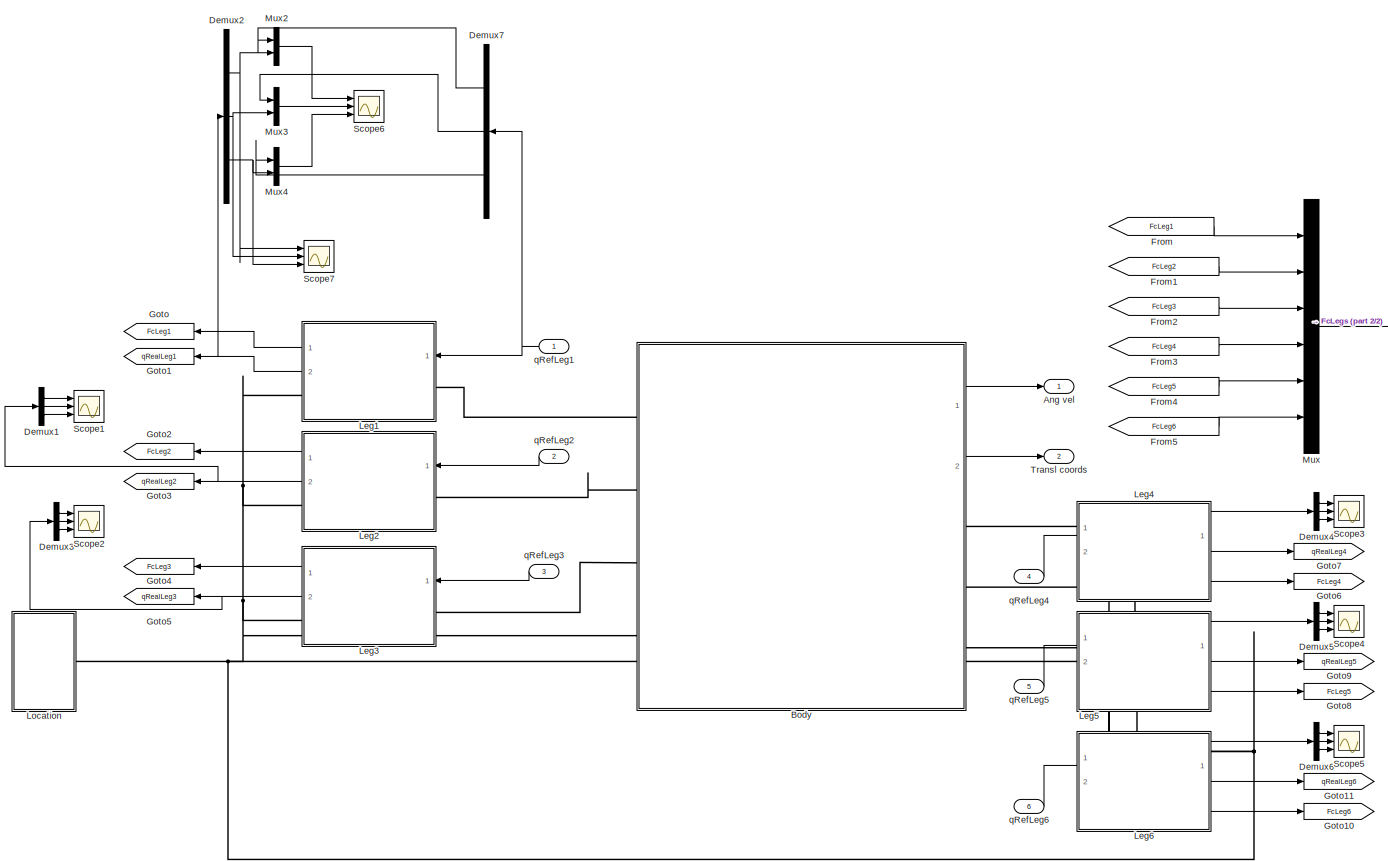
[diagram: Hexapod - part 1/2, most of the canvas]
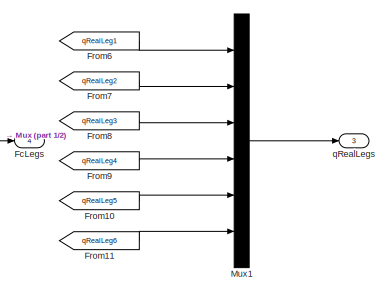
[diagram: Hexapod - part 2/2, middle right region]
BLOCK [SubSystem] Hexapod
  Ports = [6, 4]
  RequestExecContextInheritance = off
BLOCK [Outport] Hexapod/Ang vel
  IconDisplay = Port number
BLOCK [SubSystem] Hexapod/Body
  Ports = [0, 2, 0, 0, 0, 4, 3]
  RequestExecContextInheritance = off
BLOCK [Reference] Hexapod/Body/6-DOF Joint  REF=sm_lib/Joints/6-DOF Joint
  BlockFunction = simmechanics.library.joints.sixdof_joint
  ClassName = SixDofJoint
  CompositeWrenchDir = FollowerOnBase
  CompositeWrenchFrame = BaseFrame
  LogSimulationData = off
  Ports = [0, 0, 0, 0, 0, 1, 1]
  PxDampingCoefficient = 0
  PxDampingCoefficientUnits = N/(m/s)
  PxEquilibriumPosition = 0
  PxEquilibriumPositionUnits = m
  PxMotionActuationMode = ComputedMotion
  PxPositionTargetPriority = High
  PxPositionTargetSpecify = off
  PxPositionTargetValue = 0.5
  PxPositionTargetValueUnits = m
  PxSenseAcceleration = off
  PxSensePosition = off
  PxSenseTorqueForce = off
  PxSenseVelocity = off
  PxSpringStiffness = 0
  PxSpringStiffnessUnits = N/m
  PxTorqueActuationMode = NoTorque
  PxVelocityTargetPriority = High
  PxVelocityTargetSpecify = off
  PxVelocityTargetValue = 0.5
  PxVelocityTargetValueUnits = m/s
  PyDampingCoefficient = 0
  PyDampingCoefficientUnits = N/(m/s)
  PyEquilibriumPosition = 0
  PyEquilibriumPositionUnits = m
  PyMotionActuationMode = ComputedMotion
  PyPositionTargetPriority = High
  PyPositionTargetSpecify = off
  PyPositionTargetValue = 0
  PyPositionTargetValueUnits = m
  PySenseAcceleration = off
  PySensePosition = off
  PySenseTorqueForce = off
  PySenseVelocity = off
  PySpringStiffness = 0
  PySpringStiffnessUnits = N/m
  PyTorqueActuationMode = NoTorque
  PyVelocityTargetPriority = High
  PyVelocityTargetSpecify = off
  PyVelocityTargetValue = 0
  PyVelocityTargetValueUnits = m/s
  PzDampingCoefficient = 0
  PzDampingCoefficientUnits = N/(m/s)
  PzEquilibriumPosition = 0
  PzEquilibriumPositionUnits = m
  PzMotionActuationMode = ComputedMotion
  PzPositionTargetPriority = High
  PzPositionTargetSpecify = on
  PzPositionTargetValue = 0.2
  PzPositionTargetValueUnits = m
  PzSenseAcceleration = off
  PzSensePosition = off
  PzSenseTorqueForce = off
  PzSenseVelocity = off
  PzSpringStiffness = 0
  PzSpringStiffnessUnits = N/m
  PzTorqueActuationMode = NoTorque
  PzVelocityTargetPriority = High
  PzVelocityTargetSpecify = off
  PzVelocityTargetValue = 0
  PzVelocityTargetValueUnits = m/s
  SenseConstraintForce = off
  SenseConstraintForceX = off
  SenseConstraintForceY = off
  SenseConstraintForceZ = off
  SenseConstraintTorque = off
  SenseConstraintTorqueX = off
  SenseConstraintTorqueY = off
  SenseConstraintTorqueZ = off
  SenseTotalForce = off
  SenseTotalForceX = off
  SenseTotalForceY = off
  SenseTotalForceZ = off
  SenseTotalTorque = off
  SenseTotalTorqueX = off
  SenseTotalTorqueY = off
  SenseTotalTorqueZ = off
  SourceBlock = sm_lib/Joints/6-DOF Joint
  SourceType = 6-DOF Joint
  SphActuateTorque = off
  SphActuateTorqueX = off
  SphActuateTorqueY = off
  SphActuateTorqueZ = off
  SphActuationFrame = BaseFrame
  SphDampingCoefficient = 0
  SphDampingCoefficientUnits = N*m/(deg/s)
  SphDefPosBaseAlignAxisA = +Y
  SphDefPosBaseAlignAxisB = +Z
  SphDefPosFollAlignAxisA = +X
  SphDefPosFollAlignAxisB = +Y
  SphDefPosRotationAngle = 0.0
  SphDefPosRotationAngleUnits = deg
  SphDefPosRotationArbitraryAxis = [0 0 1]
  SphDefPosRotationMatrix = [1 0 0; 0 1 0; 0 0 1]
  SphDefPosRotationMethod = None
  SphDefPosRotationStandardAxis = +Z
  SphEqPosBaseAlignAxisA = +Y
  SphEqPosBaseAlignAxisB = +Z
  SphEqPosFollAlignAxisA = +X
  SphEqPosFollAlignAxisB = +Y
  SphEqPosRotationAngle = 0.0
  SphEqPosRotationAngleUnits = deg
  SphEqPosRotationArbitraryAxis = [0 0 1]
  SphEqPosRotationMatrix = [1 0 0; 0 1 0; 0 0 1]
  SphEqPosRotationMethod = None
  SphEqPosRotationStandardAxis = +Z
  SphMotionActuationMode = ComputedMotion
  SphPositionTargetBaseAlignAxisA = +Y
  SphPositionTargetBaseAlignAxisB = +Z
  SphPositionTargetFollAlignAxisA = +X
  SphPositionTargetFollAlignAxisB = +Y
  SphPositionTargetPriority = High
  SphPositionTargetRotationAngle = 0.0
  SphPositionTargetRotationAngleUnits = deg
  SphPositionTargetRotationArbitraryAxis = [0 0 1]
  SphPositionTargetRotationMatrix = [1 0 0; 0 1 0; 0 0 1]
  SphPositionTargetRotationMethod = None
  SphPositionTargetRotationStandardAxis = +Z
  SphPositionTargetSpecify = off
  SphSenseAcceleration = off
  SphSenseAccelerationX = off
  SphSenseAccelerationY = off
  SphSenseAccelerationZ = off
  SphSensePosition = off
  SphSenseTorqueForce = off
  SphSenseTorqueX = off
  SphSenseTorqueY = off
  SphSenseTorqueZ = off
  SphSenseVelocity = off
  SphSenseVelocityX = off
  SphSenseVelocityY = off
  SphSenseVelocityZ = off
  SphSensingFrame = BaseFrame
  SphSpringStiffness = 0
  SphSpringStiffnessUnits = N*m/deg
  SphTorqueActuationMode = NoTorque
  SphVelocityTargetInFollowerFrame = on
  SphVelocityTargetPriority = High
  SphVelocityTargetSpecify = off
  SphVelocityTargetValue = [0 0 0]
  SphVelocityTargetValueUnits = deg/s
BLOCK [Outport] Hexapod/Body/Angular velocities
  IconDisplay = Port number
BLOCK [Reference] Hexapod/Body/Body  REF=sm_lib/Body Elements/Solid
  BlockFunction = simmechanics.library.body_elements.solid
  BrickDimensionUnits = cm
  BrickDimensions = [18.5 12.5 1]
  CenterOfMass = [0 0 0]
  CenterOfMassUnits = m
  ClassName = Solid
  CylinderLength = 1
  CylinderLengthUnits = m
  CylinderRadius = 1
  CylinderRadiusUnits = m
  Density = 5000
  DensityBased = off
  DensityUnits = kg/(m^3)
  EllipsoidRadii = [1 1 1]
  EllipsoidRadiiUnits = m
  ExtGeomFileName = <path>
  ExtGeomFileType = STEP
  ExtGeomFileUnits = m
  ExtrusionCrossSection = [L/2 w1/2; 0 w2/2; -L/2 w1/2; -L/2 -w1/2; 0 -w2/2; L/2 -w1/2]
  ExtrusionCrossSectionUnits = cm
  ExtrusionLength = H
  ExtrusionLengthUnits = cm
  GeometryShape = FromFile
  GraphicAmbientColor = [0.15 0.15 0.15 1.0]
  GraphicDiffuseColor = [0.0 0.4 0.0]
  GraphicEmissiveColor = [0.0 0.0 0.0 1.0]
  GraphicOpacity = 1.0
  GraphicShininess = 75
  GraphicSpecularColor = [0.5 0.5 0.5 1.0]
  GraphicType = FromGeometry
  GraphicVisPropType = SimpleVisualProperties
  InertiaType = CalculateFromGeometry
  LogSimulationData = off
  MarkerShape = Sphere
  MarkerSize = 10
  MarkerSizeUnits = m
  Mass = m
  MassUnits = kg
  MomentsOfInertia = [1 1 1]
  MomentsOfInertiaUnits = kg*m^2
  PolygonNumSides = 3
  PolygonOuterRadius = 1
  PolygonOuterRadiusUnits = m
  Ports = [0, 0, 0, 0, 0, 0, 1]
  ProductsOfInertia = [0 0 0]
  ProductsOfInertiaUnits = kg*m^2
  RectangleSize = [1 1]
  RectangleSizeUnits = m
  RevolutionAngle = 180
  RevolutionAngleUnits = deg
  RevolutionCrossSection = [1 1; 1 -1; 2 -1; 2 1]
  RevolutionCrossSectionUnits = m
  RevolutionExtent = Full
  SourceBlock = sm_lib/Body Elements/Solid
  SourceType = Solid
  SphereRadius = 1
  SphereRadiusUnits = m
BLOCK [PMIOPort] Hexapod/Body/Global system
  Port = 7
  Side = Left
BLOCK [SubSystem] Hexapod/Body/Gyroscope// Accelerometer
  Ports = [0, 2, 0, 0, 0, 1]
  RequestExecContextInheritance = off
BLOCK [Outport] Hexapod/Body/Gyroscope// Accelerometer/Angular velocities
  IconDisplay = Port number
BLOCK [PMIOPort] Hexapod/Body/Gyroscope// Accelerometer/B
  Port = 1
  Side = Left
BLOCK [Gain] Hexapod/Body/Gyroscope// Accelerometer/Gain
  Gain = -1
  OutDataTypeStr = Inherit: Inherit via internal rule
  ParamDataTypeStr = Inherit: Inherit via internal rule
  SaturateOnIntegerOverflow = off
BLOCK [Gain] Hexapod/Body/Gyroscope// Accelerometer/Gain1
  Gain = -1
  OutDataTypeStr = Inherit: Inherit via internal rule
  ParamDataTypeStr = Inherit: Inherit via internal rule
  SaturateOnIntegerOverflow = off
BLOCK [Mux] Hexapod/Body/Gyroscope// Accelerometer/Mux
  DisplayOption = bar
  Inputs = 3
  Ports = [3, 1]
BLOCK [Mux] Hexapod/Body/Gyroscope// Accelerometer/Mux1
  DisplayOption = bar
  Inputs = 3
  Ports = [3, 1]
BLOCK [Reference] Hexapod/Body/Gyroscope// Accelerometer/PS-Simulink Converter  REF=nesl_utility/PS-Simulink
Converter
  AffineConversion = off
  Frequencies = []
  LeftPortType = input
  PhysicalDomain = network_engine_domain
  Ports = [0, 1, 0, 0, 0, 1]
  PseudoPeriodic = off
  RightPortType = output
  SourceBlock = nesl_utility/PS-Simulink\nConverter
  SourceType = PS-Simulink\nConverter
  SubClassName = ps_output
  Unit = 1
BLOCK [Reference] Hexapod/Body/Gyroscope// Accelerometer/PS-Simulink Converter1  REF=nesl_utility/PS-Simulink
Converter
  AffineConversion = off
  Frequencies = []
  LeftPortType = input
  PhysicalDomain = network_engine_domain
  Ports = [0, 1, 0, 0, 0, 1]
  PseudoPeriodic = off
  RightPortType = output
  SourceBlock = nesl_utility/PS-Simulink\nConverter
  SourceType = PS-Simulink\nConverter
  SubClassName = ps_output
  Unit = 1
BLOCK [Reference] Hexapod/Body/Gyroscope// Accelerometer/PS-Simulink Converter2  REF=nesl_utility/PS-Simulink
Converter
  AffineConversion = off
  Frequencies = []
  LeftPortType = input
  PhysicalDomain = network_engine_domain
  Ports = [0, 1, 0, 0, 0, 1]
  PseudoPeriodic = off
  RightPortType = output
  SourceBlock = nesl_utility/PS-Simulink\nConverter
  SourceType = PS-Simulink\nConverter
  SubClassName = ps_output
  Unit = 1
BLOCK [Reference] Hexapod/Body/Gyroscope// Accelerometer/PS-Simulink Converter3  REF=nesl_utility/PS-Simulink
Converter
  AffineConversion = off
  Frequencies = []
  LeftPortType = input
  PhysicalDomain = network_engine_domain
  Ports = [0, 1, 0, 0, 0, 1]
  PseudoPeriodic = off
  RightPortType = output
  SourceBlock = nesl_utility/PS-Simulink\nConverter
  SourceType = PS-Simulink\nConverter
  SubClassName = ps_output
  Unit = 1
BLOCK [Reference] Hexapod/Body/Gyroscope// Accelerometer/PS-Simulink Converter4  REF=nesl_utility/PS-Simulink
Converter
  AffineConversion = off
  Frequencies = []
  LeftPortType = input
  PhysicalDomain = network_engine_domain
  Ports = [0, 1, 0, 0, 0, 1]
  PseudoPeriodic = off
  RightPortType = output
  SourceBlock = nesl_utility/PS-Simulink\nConverter
  SourceType = PS-Simulink\nConverter
  SubClassName = ps_output
  Unit = 1
BLOCK [Reference] Hexapod/Body/Gyroscope// Accelerometer/PS-Simulink Converter5  REF=nesl_utility/PS-Simulink
Converter
  AffineConversion = off
  Frequencies = []
  LeftPortType = input
  PhysicalDomain = network_engine_domain
  Ports = [0, 1, 0, 0, 0, 1]
  PseudoPeriodic = off
  RightPortType = output
  SourceBlock = nesl_utility/PS-Simulink\nConverter
  SourceType = PS-Simulink\nConverter
  SubClassName = ps_output
  Unit = 1
BLOCK [Reference] Hexapod/Body/Gyroscope// Accelerometer/PS-Simulink Converter6  REF=nesl_utility/PS-Simulink
Converter
  AffineConversion = off
  Frequencies = []
  LeftPortType = input
  PhysicalDomain = network_engine_domain
  Ports = [0, 1, 0, 0, 0, 1]
  PseudoPeriodic = off
  RightPortType = output
  SourceBlock = nesl_utility/PS-Simulink\nConverter
  SourceType = PS-Simulink\nConverter
  SubClassName = ps_output
  Unit = 1
BLOCK [Reference] Hexapod/Body/Gyroscope// Accelerometer/PS-Simulink Converter7  REF=nesl_utility/PS-Simulink
Converter
  AffineConversion = off
  Frequencies = []
  LeftPortType = input
  PhysicalDomain = network_engine_domain
  Ports = [0, 1, 0, 0, 0, 1]
  PseudoPeriodic = off
  RightPortType = output
  SourceBlock = nesl_utility/PS-Simulink\nConverter
  SourceType = PS-Simulink\nConverter
  SubClassName = ps_output
  Unit = 1
BLOCK [Reference] Hexapod/Body/Gyroscope// Accelerometer/PS-Simulink Converter8  REF=nesl_utility/PS-Simulink
Converter
  AffineConversion = off
  Frequencies = []
  LeftPortType = input
  PhysicalDomain = network_engine_domain
  Ports = [0, 1, 0, 0, 0, 1]
  PseudoPeriodic = off
  RightPortType = output
  SourceBlock = nesl_utility/PS-Simulink\nConverter
  SourceType = PS-Simulink\nConverter
  SubClassName = ps_output
  Unit = 1
BLOCK [Scope] Hexapod/Body/Gyroscope// Accelerometer/Scope1
  Floating = off
  LimitDataPoints = off
  NumInputPorts = 3
  Ports = [3]
  SaveName = ScopeData49
  YMax = 0.4637~0.1~0.153617
  YMin = 0.46305~-0.1~0.153613
  ZoomMode = xonly
BLOCK [Scope] Hexapod/Body/Gyroscope// Accelerometer/Scope3
  Floating = off
  LimitDataPoints = off
  NumInputPorts = 3
  Ports = [3]
  SaveName = ScopeData43
  YMax = 20~5~5
  YMin = -15~-5~-5
BLOCK [Reference] Hexapod/Body/Gyroscope// Accelerometer/Transform Sensor  REF=sm_lib/Frames and
Transforms/Transform
Sensor
  BlockFunction = simmechanics.library.frames_transforms.transform_sensor
  ClassName = TransformSensor
  LogSimulationData = off
  MeasurementFrame = World
  Ports = [0, 0, 0, 0, 0, 1, 10]
  SenseAlpha1 = off
  SenseAlpha2 = off
  SenseAlpha3 = off
  SenseAlphaX = off
  SenseAlphaY = off
  SenseAlphaZ = off
  SenseAngle = off
  SenseAngle1 = off
  SenseAngle2 = off
  SenseAngle3 = off
  SenseAxis = off
  SenseAzim = off
  SenseAzimDDot = off
  SenseAzimDot = off
  SenseDist = off
  SenseDistDDot = off
  SenseDistDot = off
  SenseInc = off
  SenseIncDDot = off
  SenseIncDot = off
  SenseOmega1 = off
  SenseOmega2 = off
  SenseOmega3 = off
  SenseOmegaX = on
  SenseOmegaY = on
  SenseOmegaZ = on
  SenseQ = off
  SenseQDDot = off
  SenseQDot = off
  SenseR = off
  SenseRDDot = off
  SenseRDot = off
  SenseRad = off
  SenseRadDDot = off
  SenseRadDot = off
  SenseX = on
  SenseXDDot = on
  SenseXDot = off
  SenseY = on
  SenseYDDot = on
  SenseYDot = off
  SenseZ = on
  SenseZDDot = on
  SenseZDot = off
  SourceBlock = sm_lib/Frames and\nTransforms/Transform\nSensor
  SourceType = Transform\nSensor
BLOCK [Outport] Hexapod/Body/Gyroscope// Accelerometer/Translation accelerations
  IconDisplay = Port number
  Port = 2
BLOCK [PMIOPort] Hexapod/Body/Leg1
  Port = 1
  Side = Left
BLOCK [PMIOPort] Hexapod/Body/Leg2
  Port = 2
  Side = Left
BLOCK [PMIOPort] Hexapod/Body/Leg3
  Port = 3
  Side = Left
BLOCK [PMIOPort] Hexapod/Body/Leg4
  Port = 4
  Side = Right
BLOCK [PMIOPort] Hexapod/Body/Leg5
  Port = 5
  Side = Right
BLOCK [PMIOPort] Hexapod/Body/Leg6
  Port = 6
  Side = Right
BLOCK [Reference] Hexapod/Body/Sphere to Plane Force  REF=Contact_Forces_Lib/3D/Sphere to Plane Force
  Ports = [0, 1, 0, 0, 0, 1, 1]
  SourceBlock = Contact_Forces_Lib/3D/Sphere to Plane Force
  SourceType = Sphere to Plane Force
  b_contact = 1e4
  custom_param_1 = 1
  custom_param_2 = 1
  force_law = Linear
  friction_law = None
  k_contact = 1e7
  mu_kinetic = 0.5
  mu_static = 0.7
  pen_exponent = 1
  pen_full_damp_F = 1e-4
  plane_depth = 0.01/2
  plane_lenx = GsurfX
  plane_leny = GsurfY
  sphere_rad = 0.005
  v_thr = 0.001
BLOCK [Reference] Hexapod/Body/TL1  REF=sm_lib/Frames and
Transforms/Rigid
Transform
  BaseAlignAxisA = +Y
  BaseAlignAxisB = +Z
  BlockFunction = simmechanics.library.frames_transforms.rigid_transform
  ClassName = RigidTransform
  FollAlignAxisA = +X
  FollAlignAxisB = +Y
  LogSimulationData = off
  Ports = [0, 0, 0, 0, 0, 1, 1]
  RotationAngle = 90-Z1Angle
  RotationAngleUnits = deg
  RotationArbitraryAxis = [0 0 1]
  RotationMatrix = [1 0 0; 0 1 0; 0 0 1]
  RotationMethod = StandardAxis
  RotationStandardAxis = +Z
  SourceBlock = sm_lib/Frames and\nTransforms/Rigid\nTransform
  SourceType = Rigid\nTransform
  TranslationCartesianOffset = [L/2 w1/2 0]
  TranslationLengthUnit = cm
  TranslationMethod = Cartesian
  TranslationROffset = 0
  TranslationROffsetUnits = m
  TranslationStandardAxis = +Z
  TranslationStandardOffset = 0
  TranslationThetaOffset = 0
  TranslationThetaOffsetUnits = deg
  TranslationZOffset = 0
  TranslationZOffsetUnits = m
BLOCK [Reference] Hexapod/Body/TL2  REF=sm_lib/Frames and
Transforms/Rigid
Transform
  BaseAlignAxisA = +Y
  BaseAlignAxisB = +Z
  BlockFunction = simmechanics.library.frames_transforms.rigid_transform
  ClassName = RigidTransform
  FollAlignAxisA = +X
  FollAlignAxisB = +Y
  LogSimulationData = off
  Ports = [0, 0, 0, 0, 0, 1, 1]
  RotationAngle = 90-Z2Angle
  RotationAngleUnits = deg
  RotationArbitraryAxis = [0 0 1]
  RotationMatrix = [1 0 0; 0 1 0; 0 0 1]
  RotationMethod = StandardAxis
  RotationStandardAxis = +Z
  SourceBlock = sm_lib/Frames and\nTransforms/Rigid\nTransform
  SourceType = Rigid\nTransform
  TranslationCartesianOffset = [0 w2/2 0]
  TranslationLengthUnit = cm
  TranslationMethod = Cartesian
  TranslationROffset = 0
  TranslationROffsetUnits = m
  TranslationStandardAxis = +Z
  TranslationStandardOffset = 0
  TranslationThetaOffset = 0
  TranslationThetaOffsetUnits = deg
  TranslationZOffset = 0
  TranslationZOffsetUnits = m
BLOCK [Reference] Hexapod/Body/TL3  REF=sm_lib/Frames and
Transforms/Rigid
Transform
  BaseAlignAxisA = +Y
  BaseAlignAxisB = +Z
  BlockFunction = simmechanics.library.frames_transforms.rigid_transform
  ClassName = RigidTransform
  FollAlignAxisA = +X
  FollAlignAxisB = +Y
  LogSimulationData = off
  Ports = [0, 0, 0, 0, 0, 1, 1]
  RotationAngle = 90-Z3Angle
  RotationAngleUnits = deg
  RotationArbitraryAxis = [0 0 1]
  RotationMatrix = [1 0 0; 0 1 0; 0 0 1]
  RotationMethod = StandardAxis
  RotationStandardAxis = +Z
  SourceBlock = sm_lib/Frames and\nTransforms/Rigid\nTransform
  SourceType = Rigid\nTransform
  TranslationCartesianOffset = [-L/2 w1/2 0]
  TranslationLengthUnit = cm
  TranslationMethod = Cartesian
  TranslationROffset = 0
  TranslationROffsetUnits = m
  TranslationStandardAxis = +Z
  TranslationStandardOffset = 0
  TranslationThetaOffset = 0
  TranslationThetaOffsetUnits = deg
  TranslationZOffset = 0
  TranslationZOffsetUnits = m
BLOCK [Reference] Hexapod/Body/TL4  REF=sm_lib/Frames and
Transforms/Rigid
Transform
  BaseAlignAxisA = +Y
  BaseAlignAxisB = +Z
  BlockFunction = simmechanics.library.frames_transforms.rigid_transform
  ClassName = RigidTransform
  FollAlignAxisA = +X
  FollAlignAxisB = +Y
  LogSimulationData = off
  Ports = [0, 0, 0, 0, 0, 1, 1]
  RotationAngle = -90-Z4Angle
  RotationAngleUnits = deg
  RotationArbitraryAxis = [0 0 1]
  RotationMatrix = [1 0 0; 0 1 0; 0 0 1]
  RotationMethod = StandardAxis
  RotationStandardAxis = +Z
  SourceBlock = sm_lib/Frames and\nTransforms/Rigid\nTransform
  SourceType = Rigid\nTransform
  TranslationCartesianOffset = [L/2 -w1/2 0]
  TranslationLengthUnit = cm
  TranslationMethod = Cartesian
  TranslationROffset = 0
  TranslationROffsetUnits = m
  TranslationStandardAxis = +Z
  TranslationStandardOffset = 0
  TranslationThetaOffset = 0
  TranslationThetaOffsetUnits = deg
  TranslationZOffset = 0
  TranslationZOffsetUnits = m
BLOCK [Reference] Hexapod/Body/TL5  REF=sm_lib/Frames and
Transforms/Rigid
Transform
  BaseAlignAxisA = +Y
  BaseAlignAxisB = +Z
  BlockFunction = simmechanics.library.frames_transforms.rigid_transform
  ClassName = RigidTransform
  FollAlignAxisA = +X
  FollAlignAxisB = +Y
  LogSimulationData = off
  Ports = [0, 0, 0, 0, 0, 1, 1]
  RotationAngle = -90-Z5Angle
  RotationAngleUnits = deg
  RotationArbitraryAxis = [0 0 1]
  RotationMatrix = [1 0 0; 0 1 0; 0 0 1]
  RotationMethod = StandardAxis
  RotationStandardAxis = +Z
  SourceBlock = sm_lib/Frames and\nTransforms/Rigid\nTransform
  SourceType = Rigid\nTransform
  TranslationCartesianOffset = [0 -w2/2 0]
  TranslationLengthUnit = cm
  TranslationMethod = Cartesian
  TranslationROffset = 0
  TranslationROffsetUnits = m
  TranslationStandardAxis = +Z
  TranslationStandardOffset = 0
  TranslationThetaOffset = 0
  TranslationThetaOffsetUnits = deg
  TranslationZOffset = 0
  TranslationZOffsetUnits = m
BLOCK [Reference] Hexapod/Body/TL6  REF=sm_lib/Frames and
Transforms/Rigid
Transform
  BaseAlignAxisA = +Y
  BaseAlignAxisB = +Z
  BlockFunction = simmechanics.library.frames_transforms.rigid_transform
  ClassName = RigidTransform
  FollAlignAxisA = +X
  FollAlignAxisB = +Y
  LogSimulationData = off
  Ports = [0, 0, 0, 0, 0, 1, 1]
  RotationAngle = -90-Z6Angle
  RotationAngleUnits = deg
  RotationArbitraryAxis = [0 0 1]
  RotationMatrix = [1 0 0; 0 1 0; 0 0 1]
  RotationMethod = StandardAxis
  RotationStandardAxis = +Z
  SourceBlock = sm_lib/Frames and\nTransforms/Rigid\nTransform
  SourceType = Rigid\nTransform
  TranslationCartesianOffset = [-L/2 -w1/2 0]
  TranslationLengthUnit = cm
  TranslationMethod = Cartesian
  TranslationROffset = 0
  TranslationROffsetUnits = m
  TranslationStandardAxis = +Z
  TranslationStandardOffset = 0
  TranslationThetaOffset = 0
  TranslationThetaOffsetUnits = deg
  TranslationZOffset = 0
  TranslationZOffsetUnits = m
BLOCK [Outport] Hexapod/Body/Translation coords
  IconDisplay = Port number
  Port = 2
BLOCK [Demux] Hexapod/Demux1
  DisplayOption = bar
  Outputs = 3
  Ports = [1, 3]
BLOCK [Demux] Hexapod/Demux2
  DisplayOption = bar
  Outputs = 3
  Ports = [1, 3]
BLOCK [Demux] Hexapod/Demux3
  DisplayOption = bar
  Outputs = 3
  Ports = [1, 3]
BLOCK [Demux] Hexapod/Demux4
  DisplayOption = bar
  Outputs = 3
  Ports = [1, 3]
BLOCK [Demux] Hexapod/Demux5
  DisplayOption = bar
  Outputs = 3
  Ports = [1, 3]
BLOCK [Demux] Hexapod/Demux6
  DisplayOption = bar
  Outputs = 3
  Ports = [1, 3]
BLOCK [Demux] Hexapod/Demux7
  DisplayOption = bar
  Outputs = 3
  Ports = [1, 3]
BLOCK [Outport] Hexapod/FcLegs
  IconDisplay = Port number
  Port = 4
BLOCK [From] Hexapod/From
  GotoTag = FcLeg1
BLOCK [From] Hexapod/From1
  GotoTag = FcLeg2
BLOCK [From] Hexapod/From10
  GotoTag = qRealLeg5
BLOCK [From] Hexapod/From11
  GotoTag = qRealLeg6
BLOCK [From] Hexapod/From2
  GotoTag = FcLeg3
BLOCK [From] Hexapod/From3
  GotoTag = FcLeg4
BLOCK [From] Hexapod/From4
  GotoTag = FcLeg5
BLOCK [From] Hexapod/From5
  GotoTag = FcLeg6
BLOCK [From] Hexapod/From6
  GotoTag = qRealLeg1
BLOCK [From] Hexapod/From7
  GotoTag = qRealLeg2
BLOCK [From] Hexapod/From8
  GotoTag = qRealLeg3
BLOCK [From] Hexapod/From9
  GotoTag = qRealLeg4
BLOCK [Goto] Hexapod/Goto
  GotoTag = FcLeg1
BLOCK [Goto] Hexapod/Goto1
  GotoTag = qRealLeg1
BLOCK [Goto] Hexapod/Goto10
  GotoTag = FcLeg6
BLOCK [Goto] Hexapod/Goto11
  GotoTag = qRealLeg6
BLOCK [Goto] Hexapod/Goto2
  GotoTag = FcLeg2
BLOCK [Goto] Hexapod/Goto3
  GotoTag = qRealLeg2
BLOCK [Goto] Hexapod/Goto4
  GotoTag = FcLeg3
BLOCK [Goto] Hexapod/Goto5
  GotoTag = qRealLeg3
BLOCK [Goto] Hexapod/Goto6
  GotoTag = FcLeg4
BLOCK [Goto] Hexapod/Goto7
  GotoTag = qRealLeg4
BLOCK [Goto] Hexapod/Goto8
  GotoTag = FcLeg5
BLOCK [Goto] Hexapod/Goto9
  GotoTag = qRealLeg5
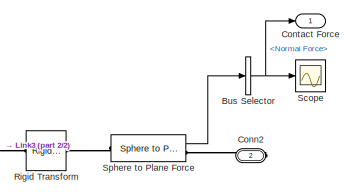
[diagram: Hexapod/Leg1 - part 1/2, top right region]
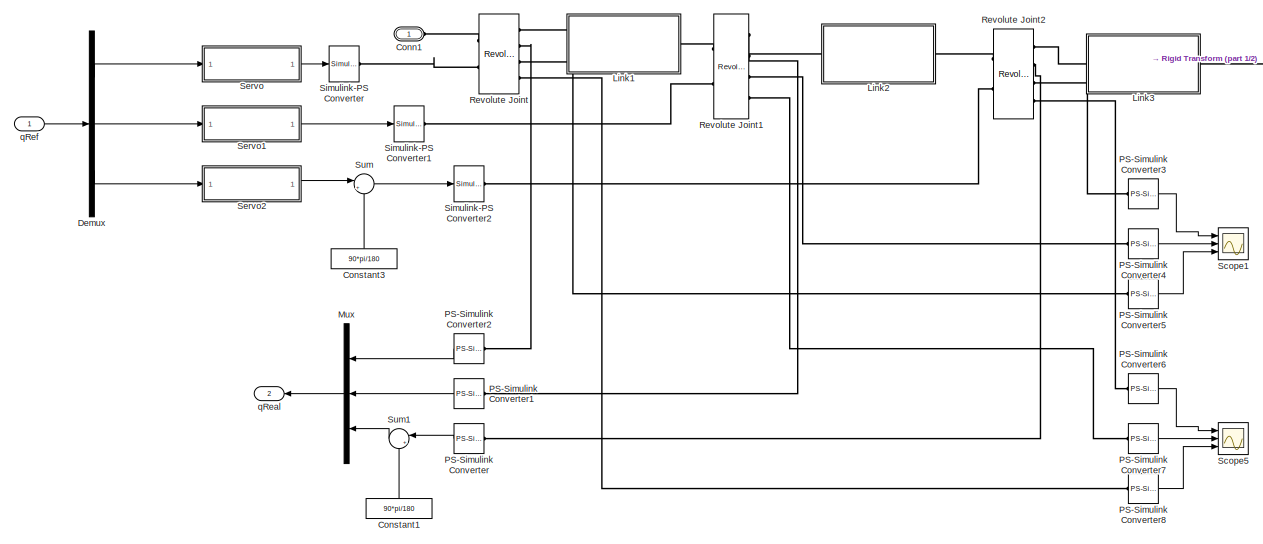
[diagram: Hexapod/Leg1 - part 2/2, most of the canvas]
BLOCK [SubSystem] Hexapod/Leg1
  Ports = [1, 2, 0, 0, 0, 1, 1]
  RequestExecContextInheritance = off
BLOCK [BusSelector] Hexapod/Leg1/Bus Selector
  OutputSignals = Normal Force
  Ports = [1, 1]
BLOCK [PMIOPort] Hexapod/Leg1/Conn1
  Port = 1
  Side = Left
BLOCK [PMIOPort] Hexapod/Leg1/Conn2
  Port = 2
  Side = Right
BLOCK [Constant] Hexapod/Leg1/Constant1
  Value = 90*pi/180
BLOCK [Constant] Hexapod/Leg1/Constant3
  Value = 90*pi/180
BLOCK [Outport] Hexapod/Leg1/Contact Force
  IconDisplay = Port number
BLOCK [Demux] Hexapod/Leg1/Demux
  DisplayOption = bar
  Outputs = 3
  Ports = [1, 3]
BLOCK [SubSystem] Hexapod/Leg1/Link1
  Ports = [0, 0, 0, 0, 0, 1, 1]
  RequestExecContextInheritance = off
BLOCK [PMIOPort] Hexapod/Leg1/Link1/Conn1
  Port = 1
  Side = Left
BLOCK [PMIOPort] Hexapod/Leg1/Link1/Conn2
  Port = 2
  Side = Right
BLOCK [Reference] Hexapod/Leg1/Link1/Reference Frame  REF=sm_lib/Frames and
Transforms/Reference
Frame
  BlockFunction = simmechanics.library.frames_transforms.reference_frame
  ClassName = ReferenceFrame
  LogSimulationData = off
  Ports = [0, 0, 0, 0, 0, 0, 1]
  SourceBlock = sm_lib/Frames and\nTransforms/Reference\nFrame
  SourceType = Reference\nFrame
BLOCK [Reference] Hexapod/Leg1/Link1/Rigid Transform  REF=sm_lib/Frames and
Transforms/Rigid
Transform
  BaseAlignAxisA = +Y
  BaseAlignAxisB = +Z
  BlockFunction = simmechanics.library.frames_transforms.rigid_transform
  ClassName = RigidTransform
  FollAlignAxisA = +X
  FollAlignAxisB = +Y
  LogSimulationData = off
  Ports = [0, 0, 0, 0, 0, 1, 1]
  RotationAngle = Xangle
  RotationAngleUnits = deg
  RotationArbitraryAxis = [0 0 1]
  RotationMatrix = [1 0 0; 0 1 0; 0 0 1]
  RotationMethod = StandardAxis
  RotationStandardAxis = +X
  SourceBlock = sm_lib/Frames and\nTransforms/Rigid\nTransform
  SourceType = Rigid\nTransform
  TranslationCartesianOffset = [L/2 0 d2]
  TranslationLengthUnit = cm
  TranslationMethod = Cartesian
  TranslationROffset = 0
  TranslationROffsetUnits = m
  TranslationStandardAxis = +X
  TranslationStandardOffset = L/2
  TranslationThetaOffset = 0
  TranslationThetaOffsetUnits = deg
  TranslationZOffset = 0
  TranslationZOffsetUnits = m
BLOCK [Reference] Hexapod/Leg1/Link1/Rigid Transform1  REF=sm_lib/Frames and
Transforms/Rigid
Transform
  BaseAlignAxisA = +Y
  BaseAlignAxisB = +Z
  BlockFunction = simmechanics.library.frames_transforms.rigid_transform
  ClassName = RigidTransform
  FollAlignAxisA = +X
  FollAlignAxisB = +Y
  LogSimulationData = off
  Ports = [0, 0, 0, 0, 0, 1, 1]
  RotationAngle = 0.0
  RotationAngleUnits = deg
  RotationArbitraryAxis = [0 0 1]
  RotationMatrix = [1 0 0; 0 1 0; 0 0 1]
  RotationMethod = None
  RotationStandardAxis = +Z
  SourceBlock = sm_lib/Frames and\nTransforms/Rigid\nTransform
  SourceType = Rigid\nTransform
  TranslationCartesianOffset = [0 0 0]
  TranslationLengthUnit = cm
  TranslationMethod = StandardAxis
  TranslationROffset = 0
  TranslationROffsetUnits = m
  TranslationStandardAxis = -X
  TranslationStandardOffset = L/2
  TranslationThetaOffset = 0
  TranslationThetaOffsetUnits = deg
  TranslationZOffset = 0
  TranslationZOffsetUnits = m
BLOCK [Reference] Hexapod/Leg1/Link1/Solid  REF=sm_lib/Body Elements/Solid
  BlockFunction = simmechanics.library.body_elements.solid
  BrickDimensionUnits = cm
  BrickDimensions = [L W H]
  CenterOfMass = [0 0 0]
  CenterOfMassUnits = m
  ClassName = Solid
  CylinderLength = 1
  CylinderLengthUnits = m
  CylinderRadius = 1
  CylinderRadiusUnits = m
  Density = 1
  DensityBased = off
  DensityUnits = kg/(m^3)
  EllipsoidRadii = [1 1 1]
  EllipsoidRadiiUnits = m
  ExtGeomFileName = <path>
  ExtGeomFileType = STEP
  ExtGeomFileUnits = m
  ExtrusionCrossSection = [1 1; -1 1; -1 -1; 1 -1]
  ExtrusionCrossSectionUnits = m
  ExtrusionLength = 1
  ExtrusionLengthUnits = m
  GeometryShape = FromFile
  GraphicAmbientColor = [0.15 0.15 0.15 1.0]
  GraphicDiffuseColor = rgb
  GraphicEmissiveColor = [0.0 0.0 0.0 1.0]
  GraphicOpacity = 1.0
  GraphicShininess = 75
  GraphicSpecularColor = [0.5 0.5 0.5 1.0]
  GraphicType = FromGeometry
  GraphicVisPropType = SimpleVisualProperties
  InertiaType = PointMass
  LogSimulationData = off
  MarkerShape = Sphere
  MarkerSize = 10
  MarkerSizeUnits = m
  Mass = m
  MassUnits = kg
  MomentsOfInertia = [1 1 1]
  MomentsOfInertiaUnits = kg*m^2
  PolygonNumSides = 3
  PolygonOuterRadius = 1
  PolygonOuterRadiusUnits = m
  Ports = [0, 0, 0, 0, 0, 0, 1]
  ProductsOfInertia = [0 0 0]
  ProductsOfInertiaUnits = kg*m^2
  RectangleSize = [1 1]
  RectangleSizeUnits = m
  RevolutionAngle = 180
  RevolutionAngleUnits = deg
  RevolutionCrossSection = [1 1; 1 -1; 2 -1; 2 1]
  RevolutionCrossSectionUnits = m
  RevolutionExtent = Full
  SourceBlock = sm_lib/Body Elements/Solid
  SourceType = Solid
  SphereRadius = 1
  SphereRadiusUnits = m
BLOCK [SubSystem] Hexapod/Leg1/Link2
  Ports = [0, 0, 0, 0, 0, 1, 1]
  RequestExecContextInheritance = off
BLOCK [PMIOPort] Hexapod/Leg1/Link2/Conn1
  Port = 1
  Side = Left
BLOCK [PMIOPort] Hexapod/Leg1/Link2/Conn2
  Port = 2
  Side = Right
BLOCK [Reference] Hexapod/Leg1/Link2/Reference Frame  REF=sm_lib/Frames and
Transforms/Reference
Frame
  BlockFunction = simmechanics.library.frames_transforms.reference_frame
  ClassName = ReferenceFrame
  LogSimulationData = off
  Ports = [0, 0, 0, 0, 0, 0, 1]
  SourceBlock = sm_lib/Frames and\nTransforms/Reference\nFrame
  SourceType = Reference\nFrame
BLOCK [Reference] Hexapod/Leg1/Link2/Rigid Transform  REF=sm_lib/Frames and
Transforms/Rigid
Transform
  BaseAlignAxisA = +Y
  BaseAlignAxisB = +Z
  BlockFunction = simmechanics.library.frames_transforms.rigid_transform
  ClassName = RigidTransform
  FollAlignAxisA = +X
  FollAlignAxisB = +Y
  LogSimulationData = off
  Ports = [0, 0, 0, 0, 0, 1, 1]
  RotationAngle = Xangle
  RotationAngleUnits = deg
  RotationArbitraryAxis = [0 0 1]
  RotationMatrix = [1 0 0; 0 1 0; 0 0 1]
  RotationMethod = StandardAxis
  RotationStandardAxis = +X
  SourceBlock = sm_lib/Frames and\nTransforms/Rigid\nTransform
  SourceType = Rigid\nTransform
  TranslationCartesianOffset = [0 0 0]
  TranslationLengthUnit = cm
  TranslationMethod = StandardAxis
  TranslationROffset = 0
  TranslationROffsetUnits = m
  TranslationStandardAxis = +X
  TranslationStandardOffset = L/2
  TranslationThetaOffset = 0
  TranslationThetaOffsetUnits = deg
  TranslationZOffset = 0
  TranslationZOffsetUnits = m
BLOCK [Reference] Hexapod/Leg1/Link2/Rigid Transform1  REF=sm_lib/Frames and
Transforms/Rigid
Transform
  BaseAlignAxisA = +Y
  BaseAlignAxisB = +Z
  BlockFunction = simmechanics.library.frames_transforms.rigid_transform
  ClassName = RigidTransform
  FollAlignAxisA = +X
  FollAlignAxisB = +Y
  LogSimulationData = off
  Ports = [0, 0, 0, 0, 0, 1, 1]
  RotationAngle = 0.0
  RotationAngleUnits = deg
  RotationArbitraryAxis = [0 0 1]
  RotationMatrix = [1 0 0; 0 1 0; 0 0 1]
  RotationMethod = None
  RotationStandardAxis = +Z
  SourceBlock = sm_lib/Frames and\nTransforms/Rigid\nTransform
  SourceType = Rigid\nTransform
  TranslationCartesianOffset = [0 0 0]
  TranslationLengthUnit = cm
  TranslationMethod = StandardAxis
  TranslationROffset = 0
  TranslationROffsetUnits = m
  TranslationStandardAxis = -X
  TranslationStandardOffset = L/2
  TranslationThetaOffset = 0
  TranslationThetaOffsetUnits = deg
  TranslationZOffset = 0
  TranslationZOffsetUnits = m
BLOCK [Reference] Hexapod/Leg1/Link2/Solid  REF=sm_lib/Body Elements/Solid
  BlockFunction = simmechanics.library.body_elements.solid
  BrickDimensionUnits = cm
  BrickDimensions = [L W H]
  CenterOfMass = [0 0 0]
  CenterOfMassUnits = m
  ClassName = Solid
  CylinderLength = 1
  CylinderLengthUnits = m
  CylinderRadius = 1
  CylinderRadiusUnits = m
  Density = 1
  DensityBased = off
  DensityUnits = kg/(m^3)
  EllipsoidRadii = [1 1 1]
  EllipsoidRadiiUnits = m
  ExtGeomFileName = <path>
  ExtGeomFileType = STEP
  ExtGeomFileUnits = m
  ExtrusionCrossSection = [1 1; -1 1; -1 -1; 1 -1]
  ExtrusionCrossSectionUnits = m
  ExtrusionLength = 1
  ExtrusionLengthUnits = m
  GeometryShape = FromFile
  GraphicAmbientColor = [0.15 0.15 0.15 1.0]
  GraphicDiffuseColor = rgb
  GraphicEmissiveColor = [0.0 0.0 0.0 1.0]
  GraphicOpacity = 1.0
  GraphicShininess = 75
  GraphicSpecularColor = [0.5 0.5 0.5 1.0]
  GraphicType = FromGeometry
  GraphicVisPropType = SimpleVisualProperties
  InertiaType = PointMass
  LogSimulationData = off
  MarkerShape = Sphere
  MarkerSize = 10
  MarkerSizeUnits = m
  Mass = m
  MassUnits = kg
  MomentsOfInertia = [1 1 1]
  MomentsOfInertiaUnits = kg*m^2
  PolygonNumSides = 3
  PolygonOuterRadius = 1
  PolygonOuterRadiusUnits = m
  Ports = [0, 0, 0, 0, 0, 0, 1]
  ProductsOfInertia = [0 0 0]
  ProductsOfInertiaUnits = kg*m^2
  RectangleSize = [1 1]
  RectangleSizeUnits = m
  RevolutionAngle = 180
  RevolutionAngleUnits = deg
  RevolutionCrossSection = [1 1; 1 -1; 2 -1; 2 1]
  RevolutionCrossSectionUnits = m
  RevolutionExtent = Full
  SourceBlock = sm_lib/Body Elements/Solid
  SourceType = Solid
  SphereRadius = 1
  SphereRadiusUnits = m
BLOCK [SubSystem] Hexapod/Leg1/Link3
  Ports = [0, 0, 0, 0, 0, 1, 1]
  RequestExecContextInheritance = off
BLOCK [PMIOPort] Hexapod/Leg1/Link3/Conn1
  Port = 1
  Side = Left
BLOCK [PMIOPort] Hexapod/Leg1/Link3/Conn2
  Port = 2
  Side = Right
BLOCK [Reference] Hexapod/Leg1/Link3/Reference Frame  REF=sm_lib/Frames and
Transforms/Reference
Frame
  BlockFunction = simmechanics.library.frames_transforms.reference_frame
  ClassName = ReferenceFrame
  LogSimulationData = off
  Ports = [0, 0, 0, 0, 0, 0, 1]
  SourceBlock = sm_lib/Frames and\nTransforms/Reference\nFrame
  SourceType = Reference\nFrame
BLOCK [Reference] Hexapod/Leg1/Link3/Rigid Transform  REF=sm_lib/Frames and
Transforms/Rigid
Transform
  BaseAlignAxisA = +Y
  BaseAlignAxisB = +Z
  BlockFunction = simmechanics.library.frames_transforms.rigid_transform
  ClassName = RigidTransform
  FollAlignAxisA = +X
  FollAlignAxisB = +Y
  LogSimulationData = off
  Ports = [0, 0, 0, 0, 0, 1, 1]
  RotationAngle = Xangle
  RotationAngleUnits = deg
  RotationArbitraryAxis = [0 0 1]
  RotationMatrix = [1 0 0; 0 1 0; 0 0 1]
  RotationMethod = None
  RotationStandardAxis = +X
  SourceBlock = sm_lib/Frames and\nTransforms/Rigid\nTransform
  SourceType = Rigid\nTransform
  TranslationCartesianOffset = [0 0 0]
  TranslationLengthUnit = cm
  TranslationMethod = StandardAxis
  TranslationROffset = 0
  TranslationROffsetUnits = m
  TranslationStandardAxis = +X
  TranslationStandardOffset = L/2
  TranslationThetaOffset = 0
  TranslationThetaOffsetUnits = deg
  TranslationZOffset = 0
  TranslationZOffsetUnits = m
BLOCK [Reference] Hexapod/Leg1/Link3/Rigid Transform1  REF=sm_lib/Frames and
Transforms/Rigid
Transform
  BaseAlignAxisA = +Y
  BaseAlignAxisB = +Z
  BlockFunction = simmechanics.library.frames_transforms.rigid_transform
  ClassName = RigidTransform
  FollAlignAxisA = +X
  FollAlignAxisB = +Y
  LogSimulationData = off
  Ports = [0, 0, 0, 0, 0, 1, 1]
  RotationAngle = 0.0
  RotationAngleUnits = deg
  RotationArbitraryAxis = [0 0 1]
  RotationMatrix = [1 0 0; 0 1 0; 0 0 1]
  RotationMethod = None
  RotationStandardAxis = +Z
  SourceBlock = sm_lib/Frames and\nTransforms/Rigid\nTransform
  SourceType = Rigid\nTransform
  TranslationCartesianOffset = [0 0 0]
  TranslationLengthUnit = cm
  TranslationMethod = StandardAxis
  TranslationROffset = 0
  TranslationROffsetUnits = m
  TranslationStandardAxis = -X
  TranslationStandardOffset = L/2
  TranslationThetaOffset = 0
  TranslationThetaOffsetUnits = deg
  TranslationZOffset = 0
  TranslationZOffsetUnits = m
BLOCK [Reference] Hexapod/Leg1/Link3/Solid  REF=sm_lib/Body Elements/Solid
  BlockFunction = simmechanics.library.body_elements.solid
  BrickDimensionUnits = cm
  BrickDimensions = [L W H]
  CenterOfMass = [0 0 0]
  CenterOfMassUnits = m
  ClassName = Solid
  CylinderLength = 1
  CylinderLengthUnits = m
  CylinderRadius = 1
  CylinderRadiusUnits = m
  Density = 1
  DensityBased = off
  DensityUnits = kg/(m^3)
  EllipsoidRadii = [1 1 1]
  EllipsoidRadiiUnits = m
  ExtGeomFileName = <path>
  ExtGeomFileType = STEP
  ExtGeomFileUnits = m
  ExtrusionCrossSection = [1 1; -1 1; -1 -1; 1 -1]
  ExtrusionCrossSectionUnits = m
  ExtrusionLength = 1
  ExtrusionLengthUnits = m
  GeometryShape = FromFile
  GraphicAmbientColor = [0.15 0.15 0.15 1.0]
  GraphicDiffuseColor = rgb
  GraphicEmissiveColor = [0.0 0.0 0.0 1.0]
  GraphicOpacity = 1.0
  GraphicShininess = 75
  GraphicSpecularColor = [0.5 0.5 0.5 1.0]
  GraphicType = FromGeometry
  GraphicVisPropType = SimpleVisualProperties
  InertiaType = PointMass
  LogSimulationData = off
  MarkerShape = Sphere
  MarkerSize = 10
  MarkerSizeUnits = m
  Mass = m
  MassUnits = kg
  MomentsOfInertia = [1 1 1]
  MomentsOfInertiaUnits = kg*m^2
  PolygonNumSides = 3
  PolygonOuterRadius = 1
  PolygonOuterRadiusUnits = m
  Ports = [0, 0, 0, 0, 0, 0, 1]
  ProductsOfInertia = [0 0 0]
  ProductsOfInertiaUnits = kg*m^2
  RectangleSize = [1 1]
  RectangleSizeUnits = m
  RevolutionAngle = 180
  RevolutionAngleUnits = deg
  RevolutionCrossSection = [1 1; 1 -1; 2 -1; 2 1]
  RevolutionCrossSectionUnits = m
  RevolutionExtent = Full
  SourceBlock = sm_lib/Body Elements/Solid
  SourceType = Solid
  SphereRadius = 1
  SphereRadiusUnits = m
BLOCK [Mux] Hexapod/Leg1/Mux
  DisplayOption = bar
  Inputs = 3
  Ports = [3, 1]
BLOCK [Reference] Hexapod/Leg1/PS-Simulink Converter  REF=nesl_utility/PS-Simulink
Converter
  AffineConversion = off
  Frequencies = []
  LeftPortType = input
  PhysicalDomain = network_engine_domain
  Ports = [0, 1, 0, 0, 0, 1]
  PseudoPeriodic = off
  RightPortType = output
  SourceBlock = nesl_utility/PS-Simulink\nConverter
  SourceType = PS-Simulink\nConverter
  SubClassName = ps_output
  Unit = 1
BLOCK [Reference] Hexapod/Leg1/PS-Simulink Converter1  REF=nesl_utility/PS-Simulink
Converter
  AffineConversion = off
  Frequencies = []
  LeftPortType = input
  PhysicalDomain = network_engine_domain
  Ports = [0, 1, 0, 0, 0, 1]
  PseudoPeriodic = off
  RightPortType = output
  SourceBlock = nesl_utility/PS-Simulink\nConverter
  SourceType = PS-Simulink\nConverter
  SubClassName = ps_output
  Unit = 1
BLOCK [Reference] Hexapod/Leg1/PS-Simulink Converter2  REF=nesl_utility/PS-Simulink
Converter
  AffineConversion = off
  Frequencies = []
  LeftPortType = input
  PhysicalDomain = network_engine_domain
  Ports = [0, 1, 0, 0, 0, 1]
  PseudoPeriodic = off
  RightPortType = output
  SourceBlock = nesl_utility/PS-Simulink\nConverter
  SourceType = PS-Simulink\nConverter
  SubClassName = ps_output
  Unit = 1
BLOCK [Reference] Hexapod/Leg1/PS-Simulink Converter3  REF=nesl_utility/PS-Simulink
Converter
  AffineConversion = off
  Frequencies = []
  LeftPortType = input
  PhysicalDomain = network_engine_domain
  Ports = [0, 1, 0, 0, 0, 1]
  PseudoPeriodic = off
  RightPortType = output
  SourceBlock = nesl_utility/PS-Simulink\nConverter
  SourceType = PS-Simulink\nConverter
  SubClassName = ps_output
  Unit = 1
BLOCK [Reference] Hexapod/Leg1/PS-Simulink Converter4  REF=nesl_utility/PS-Simulink
Converter
  AffineConversion = off
  Frequencies = []
  LeftPortType = input
  PhysicalDomain = network_engine_domain
  Ports = [0, 1, 0, 0, 0, 1]
  PseudoPeriodic = off
  RightPortType = output
  SourceBlock = nesl_utility/PS-Simulink\nConverter
  SourceType = PS-Simulink\nConverter
  SubClassName = ps_output
  Unit = 1
BLOCK [Reference] Hexapod/Leg1/PS-Simulink Converter5  REF=nesl_utility/PS-Simulink
Converter
  AffineConversion = off
  Frequencies = []
  LeftPortType = input
  PhysicalDomain = network_engine_domain
  Ports = [0, 1, 0, 0, 0, 1]
  PseudoPeriodic = off
  RightPortType = output
  SourceBlock = nesl_utility/PS-Simulink\nConverter
  SourceType = PS-Simulink\nConverter
  SubClassName = ps_output
  Unit = 1
BLOCK [Reference] Hexapod/Leg1/PS-Simulink Converter6  REF=nesl_utility/PS-Simulink
Converter
  AffineConversion = off
  Frequencies = []
  LeftPortType = input
  PhysicalDomain = network_engine_domain
  Ports = [0, 1, 0, 0, 0, 1]
  PseudoPeriodic = off
  RightPortType = output
  SourceBlock = nesl_utility/PS-Simulink\nConverter
  SourceType = PS-Simulink\nConverter
  SubClassName = ps_output
  Unit = 1
BLOCK [Reference] Hexapod/Leg1/PS-Simulink Converter7  REF=nesl_utility/PS-Simulink
Converter
  AffineConversion = off
  Frequencies = []
  LeftPortType = input
  PhysicalDomain = network_engine_domain
  Ports = [0, 1, 0, 0, 0, 1]
  PseudoPeriodic = off
  RightPortType = output
  SourceBlock = nesl_utility/PS-Simulink\nConverter
  SourceType = PS-Simulink\nConverter
  SubClassName = ps_output
  Unit = 1
BLOCK [Reference] Hexapod/Leg1/PS-Simulink Converter8  REF=nesl_utility/PS-Simulink
Converter
  AffineConversion = off
  Frequencies = []
  LeftPortType = input
  PhysicalDomain = network_engine_domain
  Ports = [0, 1, 0, 0, 0, 1]
  PseudoPeriodic = off
  RightPortType = output
  SourceBlock = nesl_utility/PS-Simulink\nConverter
  SourceType = PS-Simulink\nConverter
  SubClassName = ps_output
  Unit = 1
BLOCK [Reference] Hexapod/Leg1/Revolute Joint  REF=sm_lib/Joints/Revolute Joint
  BlockFunction = simmechanics.library.joints.revolute_joint
  ClassName = RevoluteJoint
  CompositeWrenchDir = FollowerOnBase
  CompositeWrenchFrame = BaseFrame
  DampingCoefficient = 0
  DampingCoefficientUnits = N*m/(deg/s)
  EquilibriumPosition = 0
  EquilibriumPositionUnits = deg
  LogSimulationData = off
  MotionActuationMode = InputMotion
  Ports = [0, 0, 0, 0, 0, 2, 4]
  PositionTargetPriority = High
  PositionTargetSpecify = off
  PositionTargetValue = 0
  PositionTargetValueUnits = deg
  SenseAcceleration = off
  SenseConstraintForce = off
  SenseConstraintForceX = off
  SenseConstraintForceY = off
  SenseConstraintForceZ = off
  SenseConstraintTorque = off
  SenseConstraintTorqueX = off
  SenseConstraintTorqueY = off
  SenseConstraintTorqueZ = off
  SensePosition = on
  SenseTorqueForce = on
  SenseTotalForce = off
  SenseTotalForceX = off
  SenseTotalForceY = off
  SenseTotalForceZ = off
  SenseTotalTorque = on
  SenseTotalTorqueX = off
  SenseTotalTorqueY = off
  SenseTotalTorqueZ = off
  SenseVelocity = off
  SourceBlock = sm_lib/Joints/Revolute Joint
  SourceType = Revolute Joint
  SpringStiffness = 0
  SpringStiffnessUnits = N*m/deg
  TorqueActuationMode = ComputedTorque
  VelocityTargetPriority = High
  VelocityTargetSpecify = off
  VelocityTargetValue = 0
  VelocityTargetValueUnits = deg/s
BLOCK [Reference] Hexapod/Leg1/Revolute Joint1  REF=sm_lib/Joints/Revolute Joint
  BlockFunction = simmechanics.library.joints.revolute_joint
  ClassName = RevoluteJoint
  CompositeWrenchDir = FollowerOnBase
  CompositeWrenchFrame = BaseFrame
  DampingCoefficient = 0
  DampingCoefficientUnits = N*m/(deg/s)
  EquilibriumPosition = 0
  EquilibriumPositionUnits = deg
  LogSimulationData = off
  MotionActuationMode = InputMotion
  Ports = [0, 0, 0, 0, 0, 2, 4]
  PositionTargetPriority = High
  PositionTargetSpecify = off
  PositionTargetValue = 0
  PositionTargetValueUnits = deg
  SenseAcceleration = off
  SenseConstraintForce = off
  SenseConstraintForceX = off
  SenseConstraintForceY = off
  SenseConstraintForceZ = off
  SenseConstraintTorque = off
  SenseConstraintTorqueX = off
  SenseConstraintTorqueY = off
  SenseConstraintTorqueZ = off
  SensePosition = on
  SenseTorqueForce = on
  SenseTotalForce = off
  SenseTotalForceX = off
  SenseTotalForceY = off
  SenseTotalForceZ = off
  SenseTotalTorque = on
  SenseTotalTorqueX = off
  SenseTotalTorqueY = off
  SenseTotalTorqueZ = off
  SenseVelocity = off
  SourceBlock = sm_lib/Joints/Revolute Joint
  SourceType = Revolute Joint
  SpringStiffness = 0
  SpringStiffnessUnits = N*m/deg
  TorqueActuationMode = ComputedTorque
  VelocityTargetPriority = High
  VelocityTargetSpecify = off
  VelocityTargetValue = 0
  VelocityTargetValueUnits = deg/s
BLOCK [Reference] Hexapod/Leg1/Revolute Joint2  REF=sm_lib/Joints/Revolute Joint
  BlockFunction = simmechanics.library.joints.revolute_joint
  ClassName = RevoluteJoint
  CompositeWrenchDir = FollowerOnBase
  CompositeWrenchFrame = BaseFrame
  DampingCoefficient = 0
  DampingCoefficientUnits = N*m/(deg/s)
  EquilibriumPosition = 0
  EquilibriumPositionUnits = deg
  LogSimulationData = off
  MotionActuationMode = InputMotion
  Ports = [0, 0, 0, 0, 0, 2, 4]
  PositionTargetPriority = High
  PositionTargetSpecify = off
  PositionTargetValue = 0
  PositionTargetValueUnits = deg
  SenseAcceleration = off
  SenseConstraintForce = off
  SenseConstraintForceX = off
  SenseConstraintForceY = off
  SenseConstraintForceZ = off
  SenseConstraintTorque = off
  SenseConstraintTorqueX = off
  SenseConstraintTorqueY = off
  SenseConstraintTorqueZ = off
  SensePosition = on
  SenseTorqueForce = on
  SenseTotalForce = off
  SenseTotalForceX = off
  SenseTotalForceY = off
  SenseTotalForceZ = off
  SenseTotalTorque = on
  SenseTotalTorqueX = off
  SenseTotalTorqueY = off
  SenseTotalTorqueZ = off
  SenseVelocity = off
  SourceBlock = sm_lib/Joints/Revolute Joint
  SourceType = Revolute Joint
  SpringStiffness = 0
  SpringStiffnessUnits = N*m/deg
  TorqueActuationMode = ComputedTorque
  VelocityTargetPriority = High
  VelocityTargetSpecify = off
  VelocityTargetValue = 0
  VelocityTargetValueUnits = deg/s
BLOCK [Reference] Hexapod/Leg1/Rigid Transform  REF=sm_lib/Frames and
Transforms/Rigid
Transform
  BaseAlignAxisA = +Y
  BaseAlignAxisB = +Z
  BlockFunction = simmechanics.library.frames_transforms.rigid_transform
  ClassName = RigidTransform
  FollAlignAxisA = +X
  FollAlignAxisB = +Y
  LogSimulationData = off
  Ports = [0, 0, 0, 0, 0, 1, 1]
  RotationAngle = 0.0
  RotationAngleUnits = deg
  RotationArbitraryAxis = [0 0 1]
  RotationMatrix = [1 0 0; 0 1 0; 0 0 1]
  RotationMethod = None
  RotationStandardAxis = +Z
  SourceBlock = sm_lib/Frames and\nTransforms/Rigid\nTransform
  SourceType = Rigid\nTransform
  TranslationCartesianOffset = [0 0 0]
  TranslationLengthUnit = m
  TranslationMethod = StandardAxis
  TranslationROffset = 0
  TranslationROffsetUnits = m
  TranslationStandardAxis = -X
  TranslationStandardOffset = 0.01
  TranslationThetaOffset = 0
  TranslationThetaOffsetUnits = deg
  TranslationZOffset = 0
  TranslationZOffsetUnits = m
BLOCK [Scope] Hexapod/Leg1/Scope
  Floating = off
  LimitDataPoints = off
  NumInputPorts = 1
  Ports = [1]
  SaveName = ScopeData7
  YMax = 14000
  YMin = 0
BLOCK [Scope] Hexapod/Leg1/Scope1
  Floating = off
  LimitDataPoints = off
  NumInputPorts = 3
  Ports = [3]
  SaveName = ScopeData31
  YMax = 20~5~5
  YMin = -15~-5~-5
  ZoomMode = yonly
BLOCK [Scope] Hexapod/Leg1/Scope5
  Floating = off
  LimitDataPoints = off
  NumInputPorts = 3
  Ports = [3]
  SaveName = ScopeData30
  YMax = 20~5~5
  YMin = -15~-5~-5
  ZoomMode = yonly
BLOCK [SubSystem] Hexapod/Leg1/Servo
  Ports = [1, 1]
  RequestExecContextInheritance = off
BLOCK [Mux] Hexapod/Leg1/Servo/Mux
  DisplayOption = bar
  Inputs = 2
  Ports = [2, 1]
BLOCK [SubSystem] Hexapod/Leg1/Servo/PID
  Ports = [1, 1]
  RequestExecContextInheritance = off
BLOCK [Derivative] Hexapod/Leg1/Servo/PID/Derivative
BLOCK [Integrator] Hexapod/Leg1/Servo/PID/Integrator
  Ports = [1, 1]
BLOCK [Gain] Hexapod/Leg1/Servo/PID/Kp
  Gain = 64
  OutDataTypeStr = Inherit: Inherit via internal rule
  ParamDataTypeStr = Inherit: Inherit via internal rule
  SaturateOnIntegerOverflow = off
BLOCK [Gain] Hexapod/Leg1/Servo/PID/Kp1
  Gain = 3.4
  OutDataTypeStr = Inherit: Inherit via internal rule
  ParamDataTypeStr = Inherit: Inherit via internal rule
  SaturateOnIntegerOverflow = off
BLOCK [Gain] Hexapod/Leg1/Servo/PID/Kp2
  Gain = 0
  OutDataTypeStr = Inherit: Inherit via internal rule
  ParamDataTypeStr = Inherit: Inherit via internal rule
  SaturateOnIntegerOverflow = off
BLOCK [Sum] Hexapod/Leg1/Servo/PID/Sum
  IconShape = round
  InputSameDT = off
  Inputs = |+++
  OutDataTypeStr = Inherit: Inherit via internal rule
  Ports = [3, 1]
  SaturateOnIntegerOverflow = off
BLOCK [Outport] Hexapod/Leg1/Servo/PID/Vref
  IconDisplay = Port number
BLOCK [Inport] Hexapod/Leg1/Servo/PID/e
  IconDisplay = Port number
BLOCK [Scope] Hexapod/Leg1/Servo/Scope5
  Floating = off
  LimitDataPoints = off
  NumInputPorts = 2
  Ports = [2]
  SaveName = ScopeData45
  YMax = 20~5
  YMin = -15~-5
BLOCK [Sum] Hexapod/Leg1/Servo/Sum
  IconShape = round
  InputSameDT = off
  Inputs = |+-
  OutDataTypeStr = Inherit: Inherit via internal rule
  Ports = [2, 1]
  SaturateOnIntegerOverflow = off
BLOCK [Outport] Hexapod/Leg1/Servo/theta
  IconDisplay = Port number
BLOCK [Inport] Hexapod/Leg1/Servo/thetaRef
  IconDisplay = Port number
BLOCK [Scope] Hexapod/Leg1/Servo/wd
  DataFormat = StructureWithTime
  Floating = off
  LimitDataPoints = off
  NumInputPorts = 1
  Ports = [1]
  SampleTime = 0
  SaveName = ScopeData3
BLOCK [SubSystem] Hexapod/Leg1/Servo/Двигатель
  Ports = [1, 3]
  RequestExecContextInheritance = off
BLOCK [Derivative] Hexapod/Leg1/Servo/Двигатель/Derivative
BLOCK [Gain] Hexapod/Leg1/Servo/Двигатель/Encoder
  Gain = Kb
  OutDataTypeStr = Inherit: Inherit via internal rule
  ParamDataTypeStr = Inherit: Inherit via internal rule
  SaturateOnIntegerOverflow = off
BLOCK [Gain] Hexapod/Leg1/Servo/Двигатель/Gain
  Gain = Ka
  OutDataTypeStr = Inherit: Inherit via internal rule
  ParamDataTypeStr = Inherit: Inherit via internal rule
  SaturateOnIntegerOverflow = off
BLOCK [Gain] Hexapod/Leg1/Servo/Двигатель/Gain1
  Gain = Km
  OutDataTypeStr = Inherit: Inherit via internal rule
  ParamDataTypeStr = Inherit: Inherit via internal rule
  SaturateOnIntegerOverflow = off
BLOCK [Gain] Hexapod/Leg1/Servo/Двигатель/Gain2
  Gain = 1/n
  OutDataTypeStr = Inherit: Inherit via internal rule
  ParamDataTypeStr = Inherit: Inherit via internal rule
  SaturateOnIntegerOverflow = off
BLOCK [Integrator] Hexapod/Leg1/Servo/Двигатель/Integrator
  Ports = [1, 1]
BLOCK [TransferFcn] Hexapod/Leg1/Servo/Двигатель/RL-схема
  Denominator = [L R]
BLOCK [Saturate] Hexapod/Leg1/Servo/Двигатель/Saturation3
  InputPortMap = u0
  LowerLimit = -90*pi/180
  OutMax = [150*pi/180]
  OutMin = [-150*pi/180]
  Ports = [1, 1]
  UpperLimit = 90*pi/180
BLOCK [Sum] Hexapod/Leg1/Servo/Двигатель/Sum
  IconShape = round
  InputSameDT = off
  Inputs = |+-
  OutDataTypeStr = Inherit: Inherit via internal rule
  Ports = [2, 1]
  SaturateOnIntegerOverflow = off
BLOCK [Inport] Hexapod/Leg1/Servo/Двигатель/Vref
  IconDisplay = Port number
BLOCK [TransferFcn] Hexapod/Leg1/Servo/Двигатель/Динамика двигателя
  Denominator = [J C]
BLOCK [Outport] Hexapod/Leg1/Servo/Двигатель/Скорость
  IconDisplay = Port number
  Port = 2
BLOCK [Outport] Hexapod/Leg1/Servo/Двигатель/Угол
  IconDisplay = Port number
BLOCK [Outport] Hexapod/Leg1/Servo/Двигатель/Ускорение
  IconDisplay = Port number
  Port = 3
BLOCK [Gain] Hexapod/Leg1/Servo/Энкодер
  Gain = Ke
  OutDataTypeStr = Inherit: Inherit via internal rule
  ParamDataTypeStr = Inherit: Inherit via internal rule
  SaturateOnIntegerOverflow = off
BLOCK [SubSystem] Hexapod/Leg1/Servo1
  Ports = [1, 1]
  RequestExecContextInheritance = off
BLOCK [Mux] Hexapod/Leg1/Servo1/Mux
  DisplayOption = bar
  Inputs = 2
  Ports = [2, 1]
BLOCK [SubSystem] Hexapod/Leg1/Servo1/PID
  Ports = [1, 1]
  RequestExecContextInheritance = off
BLOCK [Derivative] Hexapod/Leg1/Servo1/PID/Derivative
BLOCK [Inport] Hexapod/Leg1/Servo1/PID/In1
  IconDisplay = Port number
BLOCK [Integrator] Hexapod/Leg1/Servo1/PID/Integrator
  Ports = [1, 1]
BLOCK [Gain] Hexapod/Leg1/Servo1/PID/Kp
  Gain = 64
  OutDataTypeStr = Inherit: Inherit via internal rule
  ParamDataTypeStr = Inherit: Inherit via internal rule
  SaturateOnIntegerOverflow = off
BLOCK [Gain] Hexapod/Leg1/Servo1/PID/Kp1
  Gain = 3.4
  OutDataTypeStr = Inherit: Inherit via internal rule
  ParamDataTypeStr = Inherit: Inherit via internal rule
  SaturateOnIntegerOverflow = off
BLOCK [Gain] Hexapod/Leg1/Servo1/PID/Kp2
  Gain = 0
  OutDataTypeStr = Inherit: Inherit via internal rule
  ParamDataTypeStr = Inherit: Inherit via internal rule
  SaturateOnIntegerOverflow = off
BLOCK [Outport] Hexapod/Leg1/Servo1/PID/Out1
  IconDisplay = Port number
BLOCK [Sum] Hexapod/Leg1/Servo1/PID/Sum
  IconShape = round
  InputSameDT = off
  Inputs = |+++
  OutDataTypeStr = Inherit: Inherit via internal rule
  Ports = [3, 1]
  SaturateOnIntegerOverflow = off
BLOCK [Scope] Hexapod/Leg1/Servo1/Scope5
  Floating = off
  LimitDataPoints = off
  NumInputPorts = 2
  Ports = [2]
  SaveName = ScopeData46
  YMax = 20~5
  YMin = -15~-5
BLOCK [Sum] Hexapod/Leg1/Servo1/Sum
  IconShape = round
  InputSameDT = off
  Inputs = |+-
  OutDataTypeStr = Inherit: Inherit via internal rule
  Ports = [2, 1]
  SaturateOnIntegerOverflow = off
BLOCK [Outport] Hexapod/Leg1/Servo1/theta
  IconDisplay = Port number
BLOCK [Inport] Hexapod/Leg1/Servo1/thetaRef
  IconDisplay = Port number
BLOCK [Scope] Hexapod/Leg1/Servo1/wd
  DataFormat = StructureWithTime
  Floating = off
  LimitDataPoints = off
  NumInputPorts = 1
  Ports = [1]
  SampleTime = 0
  SaveName = ScopeData3
BLOCK [SubSystem] Hexapod/Leg1/Servo1/Двигатель
  Ports = [1, 3]
  RequestExecContextInheritance = off
BLOCK [Derivative] Hexapod/Leg1/Servo1/Двигатель/Derivative
BLOCK [Gain] Hexapod/Leg1/Servo1/Двигатель/Encoder
  Gain = Kb
  OutDataTypeStr = Inherit: Inherit via internal rule
  ParamDataTypeStr = Inherit: Inherit via internal rule
  SaturateOnIntegerOverflow = off
BLOCK [Gain] Hexapod/Leg1/Servo1/Двигатель/Gain
  Gain = Ka
  OutDataTypeStr = Inherit: Inherit via internal rule
  ParamDataTypeStr = Inherit: Inherit via internal rule
  SaturateOnIntegerOverflow = off
BLOCK [Gain] Hexapod/Leg1/Servo1/Двигатель/Gain1
  Gain = Km
  OutDataTypeStr = Inherit: Inherit via internal rule
  ParamDataTypeStr = Inherit: Inherit via internal rule
  SaturateOnIntegerOverflow = off
BLOCK [Gain] Hexapod/Leg1/Servo1/Двигатель/Gain2
  Gain = 1/n
  OutDataTypeStr = Inherit: Inherit via internal rule
  ParamDataTypeStr = Inherit: Inherit via internal rule
  SaturateOnIntegerOverflow = off
BLOCK [Integrator] Hexapod/Leg1/Servo1/Двигатель/Integrator
  Ports = [1, 1]
BLOCK [TransferFcn] Hexapod/Leg1/Servo1/Двигатель/RL-схема
  Denominator = [L R]
BLOCK [Saturate] Hexapod/Leg1/Servo1/Двигатель/Saturation3
  InputPortMap = u0
  LowerLimit = -90*pi/180
  OutMax = [150*pi/180]
  OutMin = [-150*pi/180]
  Ports = [1, 1]
  UpperLimit = 90*pi/180
BLOCK [Scope] Hexapod/Leg1/Servo1/Двигатель/Scope2
  DataFormat = StructureWithTime
  Floating = off
  LimitDataPoints = off
  NumInputPorts = 1
  Ports = [1]
  SampleTime = 0
  SaveName = ScopeData1
BLOCK [Scope] Hexapod/Leg1/Servo1/Двигатель/Scope3
  DataFormat = StructureWithTime
  Floating = off
  LimitDataPoints = off
  NumInputPorts = 1
  Ports = [1]
  SampleTime = 0
  SaveName = ScopeData4
BLOCK [Scope] Hexapod/Leg1/Servo1/Двигатель/Scope4
  DataFormat = StructureWithTime
  Floating = off
  LimitDataPoints = off
  NumInputPorts = 1
  Ports = [1]
  SampleTime = 0
  SaveName = ScopeData5
BLOCK [Scope] Hexapod/Leg1/Servo1/Двигатель/Scope5
  DataFormat = StructureWithTime
  Floating = off
  LimitDataPoints = off
  NumInputPorts = 1
  Ports = [1]
  SampleTime = 0
  SaveName = ScopeData6
BLOCK [Sum] Hexapod/Leg1/Servo1/Двигатель/Sum
  IconShape = round
  InputSameDT = off
  Inputs = |+-
  OutDataTypeStr = Inherit: Inherit via internal rule
  Ports = [2, 1]
  SaturateOnIntegerOverflow = off
BLOCK [TransferFcn] Hexapod/Leg1/Servo1/Двигатель/Динамика двигателя
  Denominator = [J C]
BLOCK [Inport] Hexapod/Leg1/Servo1/Двигатель/Заданный угол
  IconDisplay = Port number
BLOCK [Outport] Hexapod/Leg1/Servo1/Двигатель/Скорость
  IconDisplay = Port number
  Port = 2
BLOCK [Outport] Hexapod/Leg1/Servo1/Двигатель/Угол
  IconDisplay = Port number
BLOCK [Outport] Hexapod/Leg1/Servo1/Двигатель/Ускорение
  IconDisplay = Port number
  Port = 3
BLOCK [Gain] Hexapod/Leg1/Servo1/Заданный угол
  OutDataTypeStr = Inherit: Inherit via internal rule
  ParamDataTypeStr = Inherit: Inherit via internal rule
  SaturateOnIntegerOverflow = off
BLOCK [Gain] Hexapod/Leg1/Servo1/Энкодер
  Gain = Ke
  OutDataTypeStr = Inherit: Inherit via internal rule
  ParamDataTypeStr = Inherit: Inherit via internal rule
  SaturateOnIntegerOverflow = off
BLOCK [SubSystem] Hexapod/Leg1/Servo2
  Ports = [1, 1]
  RequestExecContextInheritance = off
BLOCK [Constant] Hexapod/Leg1/Servo2/Constant3
  Value = 90*pi/180
BLOCK [Mux] Hexapod/Leg1/Servo2/Mux
  DisplayOption = bar
  Inputs = 2
  Ports = [2, 1]
BLOCK [SubSystem] Hexapod/Leg1/Servo2/PID
  Ports = [1, 1]
  RequestExecContextInheritance = off
BLOCK [Derivative] Hexapod/Leg1/Servo2/PID/Derivative
BLOCK [Inport] Hexapod/Leg1/Servo2/PID/In1
  IconDisplay = Port number
BLOCK [Integrator] Hexapod/Leg1/Servo2/PID/Integrator
  Ports = [1, 1]
BLOCK [Gain] Hexapod/Leg1/Servo2/PID/Kp
  Gain = 64
  OutDataTypeStr = Inherit: Inherit via internal rule
  ParamDataTypeStr = Inherit: Inherit via internal rule
  SaturateOnIntegerOverflow = off
BLOCK [Gain] Hexapod/Leg1/Servo2/PID/Kp1
  Gain = 3.4
  OutDataTypeStr = Inherit: Inherit via internal rule
  ParamDataTypeStr = Inherit: Inherit via internal rule
  SaturateOnIntegerOverflow = off
BLOCK [Gain] Hexapod/Leg1/Servo2/PID/Kp2
  Gain = 0
  OutDataTypeStr = Inherit: Inherit via internal rule
  ParamDataTypeStr = Inherit: Inherit via internal rule
  SaturateOnIntegerOverflow = off
BLOCK [Outport] Hexapod/Leg1/Servo2/PID/Out1
  IconDisplay = Port number
BLOCK [Sum] Hexapod/Leg1/Servo2/PID/Sum
  IconShape = round
  InputSameDT = off
  Inputs = |+++
  OutDataTypeStr = Inherit: Inherit via internal rule
  Ports = [3, 1]
  SaturateOnIntegerOverflow = off
BLOCK [Scope] Hexapod/Leg1/Servo2/Scope5
  Floating = off
  LimitDataPoints = off
  NumInputPorts = 2
  Ports = [2]
  SaveName = ScopeData47
  YMax = 20~5
  YMin = -15~-5
BLOCK [Sum] Hexapod/Leg1/Servo2/Sum
  IconShape = round
  InputSameDT = off
  Inputs = |+-
  OutDataTypeStr = Inherit: Inherit via internal rule
  Ports = [2, 1]
  SaturateOnIntegerOverflow = off
BLOCK [Sum] Hexapod/Leg1/Servo2/Sum1
  IconShape = round
  InputSameDT = off
  Inputs = ++|
  OutDataTypeStr = Inherit: Inherit via internal rule
  Ports = [2, 1]
  SaturateOnIntegerOverflow = off
BLOCK [Outport] Hexapod/Leg1/Servo2/theta
  IconDisplay = Port number
BLOCK [Inport] Hexapod/Leg1/Servo2/thetaRef
  IconDisplay = Port number
BLOCK [Scope] Hexapod/Leg1/Servo2/wd
  DataFormat = StructureWithTime
  Floating = off
  LimitDataPoints = off
  NumInputPorts = 1
  Ports = [1]
  SampleTime = 0
  SaveName = ScopeData3
BLOCK [SubSystem] Hexapod/Leg1/Servo2/Двигатель
  Ports = [1, 3]
  RequestExecContextInheritance = off
BLOCK [Derivative] Hexapod/Leg1/Servo2/Двигатель/Derivative
BLOCK [Gain] Hexapod/Leg1/Servo2/Двигатель/Encoder
  Gain = Kb
  OutDataTypeStr = Inherit: Inherit via internal rule
  ParamDataTypeStr = Inherit: Inherit via internal rule
  SaturateOnIntegerOverflow = off
BLOCK [Gain] Hexapod/Leg1/Servo2/Двигатель/Gain
  Gain = Ka
  OutDataTypeStr = Inherit: Inherit via internal rule
  ParamDataTypeStr = Inherit: Inherit via internal rule
  SaturateOnIntegerOverflow = off
BLOCK [Gain] Hexapod/Leg1/Servo2/Двигатель/Gain1
  Gain = Km
  OutDataTypeStr = Inherit: Inherit via internal rule
  ParamDataTypeStr = Inherit: Inherit via internal rule
  SaturateOnIntegerOverflow = off
BLOCK [Gain] Hexapod/Leg1/Servo2/Двигатель/Gain2
  Gain = 1/n
  OutDataTypeStr = Inherit: Inherit via internal rule
  ParamDataTypeStr = Inherit: Inherit via internal rule
  SaturateOnIntegerOverflow = off
BLOCK [Integrator] Hexapod/Leg1/Servo2/Двигатель/Integrator
  Ports = [1, 1]
BLOCK [TransferFcn] Hexapod/Leg1/Servo2/Двигатель/RL-схема
  Denominator = [L R]
BLOCK [Saturate] Hexapod/Leg1/Servo2/Двигатель/Saturation3
  InputPortMap = u0
  LowerLimit = -90*pi/180
  OutMax = [150*pi/180]
  OutMin = [-150*pi/180]
  Ports = [1, 1]
  UpperLimit = 90*pi/180
BLOCK [Scope] Hexapod/Leg1/Servo2/Двигатель/Scope2
  DataFormat = StructureWithTime
  Floating = off
  LimitDataPoints = off
  NumInputPorts = 1
  Ports = [1]
  SampleTime = 0
  SaveName = ScopeData1
BLOCK [Scope] Hexapod/Leg1/Servo2/Двигатель/Scope3
  DataFormat = StructureWithTime
  Floating = off
  LimitDataPoints = off
  NumInputPorts = 1
  Ports = [1]
  SampleTime = 0
  SaveName = ScopeData4
BLOCK [Scope] Hexapod/Leg1/Servo2/Двигатель/Scope4
  DataFormat = StructureWithTime
  Floating = off
  LimitDataPoints = off
  NumInputPorts = 1
  Ports = [1]
  SampleTime = 0
  SaveName = ScopeData5
BLOCK [Scope] Hexapod/Leg1/Servo2/Двигатель/Scope5
  DataFormat = StructureWithTime
  Floating = off
  LimitDataPoints = off
  NumInputPorts = 1
  Ports = [1]
  SampleTime = 0
  SaveName = ScopeData6
BLOCK [Sum] Hexapod/Leg1/Servo2/Двигатель/Sum
  IconShape = round
  InputSameDT = off
  Inputs = |+-
  OutDataTypeStr = Inherit: Inherit via internal rule
  Ports = [2, 1]
  SaturateOnIntegerOverflow = off
BLOCK [TransferFcn] Hexapod/Leg1/Servo2/Двигатель/Динамика двигателя
  Denominator = [J C]
BLOCK [Inport] Hexapod/Leg1/Servo2/Двигатель/Заданный угол
  IconDisplay = Port number
BLOCK [Outport] Hexapod/Leg1/Servo2/Двигатель/Скорость
  IconDisplay = Port number
  Port = 2
BLOCK [Outport] Hexapod/Leg1/Servo2/Двигатель/Угол
  IconDisplay = Port number
BLOCK [Outport] Hexapod/Leg1/Servo2/Двигатель/Ускорение
  IconDisplay = Port number
  Port = 3
BLOCK [Gain] Hexapod/Leg1/Servo2/Заданный угол
  OutDataTypeStr = Inherit: Inherit via internal rule
  ParamDataTypeStr = Inherit: Inherit via internal rule
  SaturateOnIntegerOverflow = off
BLOCK [Gain] Hexapod/Leg1/Servo2/Энкодер
  Gain = Ke
  OutDataTypeStr = Inherit: Inherit via internal rule
  ParamDataTypeStr = Inherit: Inherit via internal rule
  SaturateOnIntegerOverflow = off
BLOCK [Reference] Hexapod/Leg1/Simulink-PS Converter  REF=nesl_utility/Simulink-PS
Converter
  AffineConversion = off
  Frequencies = []
  InputFilterTimeConstant = 0.001
  InputFiltering = on
  LeftPortType = input
  NoiseDistribution = none
  NoiseParameters = []
  PhysicalDomain = network_engine_domain
  Ports = [1, 0, 0, 0, 0, 0, 1]
  PseudoPeriodic = off
  RightPortType = output
  SimscapeFilterOrder = 2
  SourceBlock = nesl_utility/Simulink-PS\nConverter
  SourceType = Simulink-PS\nConverter
  SubClassName = ps_input
  UdotUserProvided = 1
  Unit = 1
BLOCK [Reference] Hexapod/Leg1/Simulink-PS Converter1  REF=nesl_utility/Simulink-PS
Converter
  AffineConversion = off
  Frequencies = []
  InputFilterTimeConstant = 0.001
  InputFiltering = on
  LeftPortType = input
  NoiseDistribution = none
  NoiseParameters = []
  PhysicalDomain = network_engine_domain
  Ports = [1, 0, 0, 0, 0, 0, 1]
  PseudoPeriodic = off
  RightPortType = output
  SimscapeFilterOrder = 2
  SourceBlock = nesl_utility/Simulink-PS\nConverter
  SourceType = Simulink-PS\nConverter
  SubClassName = ps_input
  UdotUserProvided = 1
  Unit = 1
BLOCK [Reference] Hexapod/Leg1/Simulink-PS Converter2  REF=nesl_utility/Simulink-PS
Converter
  AffineConversion = off
  Frequencies = []
  InputFilterTimeConstant = 0.001
  InputFiltering = on
  LeftPortType = input
  NoiseDistribution = none
  NoiseParameters = []
  PhysicalDomain = network_engine_domain
  Ports = [1, 0, 0, 0, 0, 0, 1]
  PseudoPeriodic = off
  RightPortType = output
  SimscapeFilterOrder = 2
  SourceBlock = nesl_utility/Simulink-PS\nConverter
  SourceType = Simulink-PS\nConverter
  SubClassName = ps_input
  UdotUserProvided = 1
  Unit = 1
BLOCK [Reference] Hexapod/Leg1/Sphere to Plane Force  REF=Contact_Forces_Lib/3D/Sphere to Plane Force
  Ports = [0, 1, 0, 0, 0, 1, 1]
  SourceBlock = Contact_Forces_Lib/3D/Sphere to Plane Force
  SourceType = Sphere to Plane Force
  b_contact = 459
  custom_param_1 = 1
  custom_param_2 = 1
  force_law = Linear
  friction_law = Stick-Slip Continuous
  k_contact = 23.9e3
  mu_kinetic = 2
  mu_static = 2
  pen_exponent = 1
  pen_full_damp_F = 1e-4
  plane_depth = 0.01/2
  plane_lenx = surfX
  plane_leny = surfY
  sphere_rad = 0.01
  v_thr = 0.001
BLOCK [Sum] Hexapod/Leg1/Sum
  IconShape = round
  InputSameDT = off
  Inputs = |++
  OutDataTypeStr = Inherit: Inherit via internal rule
  Ports = [2, 1]
  SaturateOnIntegerOverflow = off
BLOCK [Sum] Hexapod/Leg1/Sum1
  IconShape = round
  InputSameDT = off
  Inputs = |+-
  OutDataTypeStr = Inherit: Inherit via internal rule
  Ports = [2, 1]
  SaturateOnIntegerOverflow = off
BLOCK [Outport] Hexapod/Leg1/qReal
  IconDisplay = Port number
  Port = 2
BLOCK [Inport] Hexapod/Leg1/qRef
  IconDisplay = Port number
BLOCK [SubSystem] Hexapod/Leg2
  Ports = [1, 2, 0, 0, 0, 1, 1]
  RequestExecContextInheritance = off
BLOCK [BusSelector] Hexapod/Leg2/Bus Selector
  OutputSignals = Normal Force
  Ports = [1, 1]
BLOCK [PMIOPort] Hexapod/Leg2/Conn1
  Port = 1
  Side = Left
BLOCK [PMIOPort] Hexapod/Leg2/Conn2
  Port = 2
  Side = Right
BLOCK [Constant] Hexapod/Leg2/Constant1
  Value = 90*pi/180
BLOCK [Constant] Hexapod/Leg2/Constant3
  Value = 90*pi/180
BLOCK [Outport] Hexapod/Leg2/Contact Force
  IconDisplay = Port number
BLOCK [Demux] Hexapod/Leg2/Demux
  DisplayOption = bar
  Outputs = 3
  Ports = [1, 3]
BLOCK [SubSystem] Hexapod/Leg2/Link1
  Ports = [0, 0, 0, 0, 0, 1, 1]
  RequestExecContextInheritance = off
BLOCK [PMIOPort] Hexapod/Leg2/Link1/Conn1
  Port = 1
  Side = Left
BLOCK [PMIOPort] Hexapod/Leg2/Link1/Conn2
  Port = 2
  Side = Right
BLOCK [Reference] Hexapod/Leg2/Link1/Reference Frame  REF=sm_lib/Frames and
Transforms/Reference
Frame
  BlockFunction = simmechanics.library.frames_transforms.reference_frame
  ClassName = ReferenceFrame
  LogSimulationData = off
  Ports = [0, 0, 0, 0, 0, 0, 1]
  SourceBlock = sm_lib/Frames and\nTransforms/Reference\nFrame
  SourceType = Reference\nFrame
BLOCK [Reference] Hexapod/Leg2/Link1/Rigid Transform  REF=sm_lib/Frames and
Transforms/Rigid
Transform
  BaseAlignAxisA = +Y
  BaseAlignAxisB = +Z
  BlockFunction = simmechanics.library.frames_transforms.rigid_transform
  ClassName = RigidTransform
  FollAlignAxisA = +X
  FollAlignAxisB = +Y
  LogSimulationData = off
  Ports = [0, 0, 0, 0, 0, 1, 1]
  RotationAngle = Xangle
  RotationAngleUnits = deg
  RotationArbitraryAxis = [0 0 1]
  RotationMatrix = [1 0 0; 0 1 0; 0 0 1]
  RotationMethod = StandardAxis
  RotationStandardAxis = +X
  SourceBlock = sm_lib/Frames and\nTransforms/Rigid\nTransform
  SourceType = Rigid\nTransform
  TranslationCartesianOffset = [L/2 0 d2]
  TranslationLengthUnit = cm
  TranslationMethod = Cartesian
  TranslationROffset = 0
  TranslationROffsetUnits = m
  TranslationStandardAxis = +X
  TranslationStandardOffset = L/2
  TranslationThetaOffset = 0
  TranslationThetaOffsetUnits = deg
  TranslationZOffset = 0
  TranslationZOffsetUnits = m
BLOCK [Reference] Hexapod/Leg2/Link1/Rigid Transform1  REF=sm_lib/Frames and
Transforms/Rigid
Transform
  BaseAlignAxisA = +Y
  BaseAlignAxisB = +Z
  BlockFunction = simmechanics.library.frames_transforms.rigid_transform
  ClassName = RigidTransform
  FollAlignAxisA = +X
  FollAlignAxisB = +Y
  LogSimulationData = off
  Ports = [0, 0, 0, 0, 0, 1, 1]
  RotationAngle = 0.0
  RotationAngleUnits = deg
  RotationArbitraryAxis = [0 0 1]
  RotationMatrix = [1 0 0; 0 1 0; 0 0 1]
  RotationMethod = None
  RotationStandardAxis = +Z
  SourceBlock = sm_lib/Frames and\nTransforms/Rigid\nTransform
  SourceType = Rigid\nTransform
  TranslationCartesianOffset = [0 0 0]
  TranslationLengthUnit = cm
  TranslationMethod = StandardAxis
  TranslationROffset = 0
  TranslationROffsetUnits = m
  TranslationStandardAxis = -X
  TranslationStandardOffset = L/2
  TranslationThetaOffset = 0
  TranslationThetaOffsetUnits = deg
  TranslationZOffset = 0
  TranslationZOffsetUnits = m
BLOCK [Reference] Hexapod/Leg2/Link1/Solid  REF=sm_lib/Body Elements/Solid
  BlockFunction = simmechanics.library.body_elements.solid
  BrickDimensionUnits = cm
  BrickDimensions = [L W H]
  CenterOfMass = [0 0 0]
  CenterOfMassUnits = m
  ClassName = Solid
  CylinderLength = 1
  CylinderLengthUnits = m
  CylinderRadius = 1
  CylinderRadiusUnits = m
  Density = 1
  DensityBased = off
  DensityUnits = kg/(m^3)
  EllipsoidRadii = [1 1 1]
  EllipsoidRadiiUnits = m
  ExtGeomFileName = <path>
  ExtGeomFileType = STEP
  ExtGeomFileUnits = m
  ExtrusionCrossSection = [1 1; -1 1; -1 -1; 1 -1]
  ExtrusionCrossSectionUnits = m
  ExtrusionLength = 1
  ExtrusionLengthUnits = m
  GeometryShape = FromFile
  GraphicAmbientColor = [0.15 0.15 0.15 1.0]
  GraphicDiffuseColor = rgb
  GraphicEmissiveColor = [0.0 0.0 0.0 1.0]
  GraphicOpacity = 1.0
  GraphicShininess = 75
  GraphicSpecularColor = [0.5 0.5 0.5 1.0]
  GraphicType = FromGeometry
  GraphicVisPropType = SimpleVisualProperties
  InertiaType = PointMass
  LogSimulationData = off
  MarkerShape = Sphere
  MarkerSize = 10
  MarkerSizeUnits = m
  Mass = m
  MassUnits = kg
  MomentsOfInertia = [1 1 1]
  MomentsOfInertiaUnits = kg*m^2
  PolygonNumSides = 3
  PolygonOuterRadius = 1
  PolygonOuterRadiusUnits = m
  Ports = [0, 0, 0, 0, 0, 0, 1]
  ProductsOfInertia = [0 0 0]
  ProductsOfInertiaUnits = kg*m^2
  RectangleSize = [1 1]
  RectangleSizeUnits = m
  RevolutionAngle = 180
  RevolutionAngleUnits = deg
  RevolutionCrossSection = [1 1; 1 -1; 2 -1; 2 1]
  RevolutionCrossSectionUnits = m
  RevolutionExtent = Full
  SourceBlock = sm_lib/Body Elements/Solid
  SourceType = Solid
  SphereRadius = 1
  SphereRadiusUnits = m
BLOCK [SubSystem] Hexapod/Leg2/Link2
  Ports = [0, 0, 0, 0, 0, 1, 1]
  RequestExecContextInheritance = off
BLOCK [PMIOPort] Hexapod/Leg2/Link2/Conn1
  Port = 1
  Side = Left
BLOCK [PMIOPort] Hexapod/Leg2/Link2/Conn2
  Port = 2
  Side = Right
BLOCK [Reference] Hexapod/Leg2/Link2/Reference Frame  REF=sm_lib/Frames and
Transforms/Reference
Frame
  BlockFunction = simmechanics.library.frames_transforms.reference_frame
  ClassName = ReferenceFrame
  LogSimulationData = off
  Ports = [0, 0, 0, 0, 0, 0, 1]
  SourceBlock = sm_lib/Frames and\nTransforms/Reference\nFrame
  SourceType = Reference\nFrame
BLOCK [Reference] Hexapod/Leg2/Link2/Rigid Transform  REF=sm_lib/Frames and
Transforms/Rigid
Transform
  BaseAlignAxisA = +Y
  BaseAlignAxisB = +Z
  BlockFunction = simmechanics.library.frames_transforms.rigid_transform
  ClassName = RigidTransform
  FollAlignAxisA = +X
  FollAlignAxisB = +Y
  LogSimulationData = off
  Ports = [0, 0, 0, 0, 0, 1, 1]
  RotationAngle = Xangle
  RotationAngleUnits = deg
  RotationArbitraryAxis = [0 0 1]
  RotationMatrix = [1 0 0; 0 1 0; 0 0 1]
  RotationMethod = StandardAxis
  RotationStandardAxis = +X
  SourceBlock = sm_lib/Frames and\nTransforms/Rigid\nTransform
  SourceType = Rigid\nTransform
  TranslationCartesianOffset = [0 0 0]
  TranslationLengthUnit = cm
  TranslationMethod = StandardAxis
  TranslationROffset = 0
  TranslationROffsetUnits = m
  TranslationStandardAxis = +X
  TranslationStandardOffset = L/2
  TranslationThetaOffset = 0
  TranslationThetaOffsetUnits = deg
  TranslationZOffset = 0
  TranslationZOffsetUnits = m
BLOCK [Reference] Hexapod/Leg2/Link2/Rigid Transform1  REF=sm_lib/Frames and
Transforms/Rigid
Transform
  BaseAlignAxisA = +Y
  BaseAlignAxisB = +Z
  BlockFunction = simmechanics.library.frames_transforms.rigid_transform
  ClassName = RigidTransform
  FollAlignAxisA = +X
  FollAlignAxisB = +Y
  LogSimulationData = off
  Ports = [0, 0, 0, 0, 0, 1, 1]
  RotationAngle = 0.0
  RotationAngleUnits = deg
  RotationArbitraryAxis = [0 0 1]
  RotationMatrix = [1 0 0; 0 1 0; 0 0 1]
  RotationMethod = None
  RotationStandardAxis = +Z
  SourceBlock = sm_lib/Frames and\nTransforms/Rigid\nTransform
  SourceType = Rigid\nTransform
  TranslationCartesianOffset = [0 0 0]
  TranslationLengthUnit = cm
  TranslationMethod = StandardAxis
  TranslationROffset = 0
  TranslationROffsetUnits = m
  TranslationStandardAxis = -X
  TranslationStandardOffset = L/2
  TranslationThetaOffset = 0
  TranslationThetaOffsetUnits = deg
  TranslationZOffset = 0
  TranslationZOffsetUnits = m
BLOCK [Reference] Hexapod/Leg2/Link2/Solid  REF=sm_lib/Body Elements/Solid
  BlockFunction = simmechanics.library.body_elements.solid
  BrickDimensionUnits = cm
  BrickDimensions = [L W H]
  CenterOfMass = [0 0 0]
  CenterOfMassUnits = m
  ClassName = Solid
  CylinderLength = 1
  CylinderLengthUnits = m
  CylinderRadius = 1
  CylinderRadiusUnits = m
  Density = 1
  DensityBased = off
  DensityUnits = kg/(m^3)
  EllipsoidRadii = [1 1 1]
  EllipsoidRadiiUnits = m
  ExtGeomFileName = <path>
  ExtGeomFileType = STEP
  ExtGeomFileUnits = m
  ExtrusionCrossSection = [1 1; -1 1; -1 -1; 1 -1]
  ExtrusionCrossSectionUnits = m
  ExtrusionLength = 1
  ExtrusionLengthUnits = m
  GeometryShape = FromFile
  GraphicAmbientColor = [0.15 0.15 0.15 1.0]
  GraphicDiffuseColor = rgb
  GraphicEmissiveColor = [0.0 0.0 0.0 1.0]
  GraphicOpacity = 1.0
  GraphicShininess = 75
  GraphicSpecularColor = [0.5 0.5 0.5 1.0]
  GraphicType = FromGeometry
  GraphicVisPropType = SimpleVisualProperties
  InertiaType = PointMass
  LogSimulationData = off
  MarkerShape = Sphere
  MarkerSize = 10
  MarkerSizeUnits = m
  Mass = m
  MassUnits = kg
  MomentsOfInertia = [1 1 1]
  MomentsOfInertiaUnits = kg*m^2
  PolygonNumSides = 3
  PolygonOuterRadius = 1
  PolygonOuterRadiusUnits = m
  Ports = [0, 0, 0, 0, 0, 0, 1]
  ProductsOfInertia = [0 0 0]
  ProductsOfInertiaUnits = kg*m^2
  RectangleSize = [1 1]
  RectangleSizeUnits = m
  RevolutionAngle = 180
  RevolutionAngleUnits = deg
  RevolutionCrossSection = [1 1; 1 -1; 2 -1; 2 1]
  RevolutionCrossSectionUnits = m
  RevolutionExtent = Full
  SourceBlock = sm_lib/Body Elements/Solid
  SourceType = Solid
  SphereRadius = 1
  SphereRadiusUnits = m
BLOCK [SubSystem] Hexapod/Leg2/Link3
  Ports = [0, 0, 0, 0, 0, 1, 1]
  RequestExecContextInheritance = off
BLOCK [PMIOPort] Hexapod/Leg2/Link3/Conn1
  Port = 1
  Side = Left
BLOCK [PMIOPort] Hexapod/Leg2/Link3/Conn2
  Port = 2
  Side = Right
BLOCK [Reference] Hexapod/Leg2/Link3/Reference Frame  REF=sm_lib/Frames and
Transforms/Reference
Frame
  BlockFunction = simmechanics.library.frames_transforms.reference_frame
  ClassName = ReferenceFrame
  LogSimulationData = off
  Ports = [0, 0, 0, 0, 0, 0, 1]
  SourceBlock = sm_lib/Frames and\nTransforms/Reference\nFrame
  SourceType = Reference\nFrame
BLOCK [Reference] Hexapod/Leg2/Link3/Rigid Transform  REF=sm_lib/Frames and
Transforms/Rigid
Transform
  BaseAlignAxisA = +Y
  BaseAlignAxisB = +Z
  BlockFunction = simmechanics.library.frames_transforms.rigid_transform
  ClassName = RigidTransform
  FollAlignAxisA = +X
  FollAlignAxisB = +Y
  LogSimulationData = off
  Ports = [0, 0, 0, 0, 0, 1, 1]
  RotationAngle = Xangle
  RotationAngleUnits = deg
  RotationArbitraryAxis = [0 0 1]
  RotationMatrix = [1 0 0; 0 1 0; 0 0 1]
  RotationMethod = None
  RotationStandardAxis = +X
  SourceBlock = sm_lib/Frames and\nTransforms/Rigid\nTransform
  SourceType = Rigid\nTransform
  TranslationCartesianOffset = [0 0 0]
  TranslationLengthUnit = cm
  TranslationMethod = StandardAxis
  TranslationROffset = 0
  TranslationROffsetUnits = m
  TranslationStandardAxis = +X
  TranslationStandardOffset = L/2
  TranslationThetaOffset = 0
  TranslationThetaOffsetUnits = deg
  TranslationZOffset = 0
  TranslationZOffsetUnits = m
BLOCK [Reference] Hexapod/Leg2/Link3/Rigid Transform1  REF=sm_lib/Frames and
Transforms/Rigid
Transform
  BaseAlignAxisA = +Y
  BaseAlignAxisB = +Z
  BlockFunction = simmechanics.library.frames_transforms.rigid_transform
  ClassName = RigidTransform
  FollAlignAxisA = +X
  FollAlignAxisB = +Y
  LogSimulationData = off
  Ports = [0, 0, 0, 0, 0, 1, 1]
  RotationAngle = 0.0
  RotationAngleUnits = deg
  RotationArbitraryAxis = [0 0 1]
  RotationMatrix = [1 0 0; 0 1 0; 0 0 1]
  RotationMethod = None
  RotationStandardAxis = +Z
  SourceBlock = sm_lib/Frames and\nTransforms/Rigid\nTransform
  SourceType = Rigid\nTransform
  TranslationCartesianOffset = [0 0 0]
  TranslationLengthUnit = cm
  TranslationMethod = StandardAxis
  TranslationROffset = 0
  TranslationROffsetUnits = m
  TranslationStandardAxis = -X
  TranslationStandardOffset = L/2
  TranslationThetaOffset = 0
  TranslationThetaOffsetUnits = deg
  TranslationZOffset = 0
  TranslationZOffsetUnits = m
BLOCK [Reference] Hexapod/Leg2/Link3/Solid  REF=sm_lib/Body Elements/Solid
  BlockFunction = simmechanics.library.body_elements.solid
  BrickDimensionUnits = cm
  BrickDimensions = [L W H]
  CenterOfMass = [0 0 0]
  CenterOfMassUnits = m
  ClassName = Solid
  CylinderLength = 1
  CylinderLengthUnits = m
  CylinderRadius = 1
  CylinderRadiusUnits = m
  Density = 1
  DensityBased = off
  DensityUnits = kg/(m^3)
  EllipsoidRadii = [1 1 1]
  EllipsoidRadiiUnits = m
  ExtGeomFileName = <path>
  ExtGeomFileType = STEP
  ExtGeomFileUnits = m
  ExtrusionCrossSection = [1 1; -1 1; -1 -1; 1 -1]
  ExtrusionCrossSectionUnits = m
  ExtrusionLength = 1
  ExtrusionLengthUnits = m
  GeometryShape = FromFile
  GraphicAmbientColor = [0.15 0.15 0.15 1.0]
  GraphicDiffuseColor = rgb
  GraphicEmissiveColor = [0.0 0.0 0.0 1.0]
  GraphicOpacity = 1.0
  GraphicShininess = 75
  GraphicSpecularColor = [0.5 0.5 0.5 1.0]
  GraphicType = FromGeometry
  GraphicVisPropType = SimpleVisualProperties
  InertiaType = PointMass
  LogSimulationData = off
  MarkerShape = Sphere
  MarkerSize = 10
  MarkerSizeUnits = m
  Mass = m
  MassUnits = kg
  MomentsOfInertia = [1 1 1]
  MomentsOfInertiaUnits = kg*m^2
  PolygonNumSides = 3
  PolygonOuterRadius = 1
  PolygonOuterRadiusUnits = m
  Ports = [0, 0, 0, 0, 0, 0, 1]
  ProductsOfInertia = [0 0 0]
  ProductsOfInertiaUnits = kg*m^2
  RectangleSize = [1 1]
  RectangleSizeUnits = m
  RevolutionAngle = 180
  RevolutionAngleUnits = deg
  RevolutionCrossSection = [1 1; 1 -1; 2 -1; 2 1]
  RevolutionCrossSectionUnits = m
  RevolutionExtent = Full
  SourceBlock = sm_lib/Body Elements/Solid
  SourceType = Solid
  SphereRadius = 1
  SphereRadiusUnits = m
BLOCK [Mux] Hexapod/Leg2/Mux
  DisplayOption = bar
  Inputs = 3
  Ports = [3, 1]
BLOCK [Reference] Hexapod/Leg2/PS-Simulink Converter  REF=nesl_utility/PS-Simulink
Converter
  AffineConversion = off
  Frequencies = []
  LeftPortType = input
  PhysicalDomain = network_engine_domain
  Ports = [0, 1, 0, 0, 0, 1]
  PseudoPeriodic = off
  RightPortType = output
  SourceBlock = nesl_utility/PS-Simulink\nConverter
  SourceType = PS-Simulink\nConverter
  SubClassName = ps_output
  Unit = 1
BLOCK [Reference] Hexapod/Leg2/PS-Simulink Converter1  REF=nesl_utility/PS-Simulink
Converter
  AffineConversion = off
  Frequencies = []
  LeftPortType = input
  PhysicalDomain = network_engine_domain
  Ports = [0, 1, 0, 0, 0, 1]
  PseudoPeriodic = off
  RightPortType = output
  SourceBlock = nesl_utility/PS-Simulink\nConverter
  SourceType = PS-Simulink\nConverter
  SubClassName = ps_output
  Unit = 1
BLOCK [Reference] Hexapod/Leg2/PS-Simulink Converter2  REF=nesl_utility/PS-Simulink
Converter
  AffineConversion = off
  Frequencies = []
  LeftPortType = input
  PhysicalDomain = network_engine_domain
  Ports = [0, 1, 0, 0, 0, 1]
  PseudoPeriodic = off
  RightPortType = output
  SourceBlock = nesl_utility/PS-Simulink\nConverter
  SourceType = PS-Simulink\nConverter
  SubClassName = ps_output
  Unit = 1
BLOCK [Reference] Hexapod/Leg2/Revolute Joint  REF=sm_lib/Joints/Revolute Joint
  BlockFunction = simmechanics.library.joints.revolute_joint
  ClassName = RevoluteJoint
  CompositeWrenchDir = FollowerOnBase
  CompositeWrenchFrame = BaseFrame
  DampingCoefficient = 0
  DampingCoefficientUnits = N*m/(deg/s)
  EquilibriumPosition = 0
  EquilibriumPositionUnits = deg
  LogSimulationData = off
  MotionActuationMode = InputMotion
  Ports = [0, 0, 0, 0, 0, 2, 2]
  PositionTargetPriority = High
  PositionTargetSpecify = off
  PositionTargetValue = 0
  PositionTargetValueUnits = deg
  SenseAcceleration = off
  SenseConstraintForce = off
  SenseConstraintForceX = off
  SenseConstraintForceY = off
  SenseConstraintForceZ = off
  SenseConstraintTorque = off
  SenseConstraintTorqueX = off
  SenseConstraintTorqueY = off
  SenseConstraintTorqueZ = off
  SensePosition = on
  SenseTorqueForce = off
  SenseTotalForce = off
  SenseTotalForceX = off
  SenseTotalForceY = off
  SenseTotalForceZ = off
  SenseTotalTorque = off
  SenseTotalTorqueX = off
  SenseTotalTorqueY = off
  SenseTotalTorqueZ = off
  SenseVelocity = off
  SourceBlock = sm_lib/Joints/Revolute Joint
  SourceType = Revolute Joint
  SpringStiffness = 0
  SpringStiffnessUnits = N*m/deg
  TorqueActuationMode = ComputedTorque
  VelocityTargetPriority = High
  VelocityTargetSpecify = off
  VelocityTargetValue = 0
  VelocityTargetValueUnits = deg/s
BLOCK [Reference] Hexapod/Leg2/Revolute Joint1  REF=sm_lib/Joints/Revolute Joint
  BlockFunction = simmechanics.library.joints.revolute_joint
  ClassName = RevoluteJoint
  CompositeWrenchDir = FollowerOnBase
  CompositeWrenchFrame = BaseFrame
  DampingCoefficient = 0
  DampingCoefficientUnits = N*m/(deg/s)
  EquilibriumPosition = 0
  EquilibriumPositionUnits = deg
  LogSimulationData = off
  MotionActuationMode = InputMotion
  Ports = [0, 0, 0, 0, 0, 2, 2]
  PositionTargetPriority = High
  PositionTargetSpecify = off
  PositionTargetValue = 0
  PositionTargetValueUnits = deg
  SenseAcceleration = off
  SenseConstraintForce = off
  SenseConstraintForceX = off
  SenseConstraintForceY = off
  SenseConstraintForceZ = off
  SenseConstraintTorque = off
  SenseConstraintTorqueX = off
  SenseConstraintTorqueY = off
  SenseConstraintTorqueZ = off
  SensePosition = on
  SenseTorqueForce = off
  SenseTotalForce = off
  SenseTotalForceX = off
  SenseTotalForceY = off
  SenseTotalForceZ = off
  SenseTotalTorque = off
  SenseTotalTorqueX = off
  SenseTotalTorqueY = off
  SenseTotalTorqueZ = off
  SenseVelocity = off
  SourceBlock = sm_lib/Joints/Revolute Joint
  SourceType = Revolute Joint
  SpringStiffness = 0
  SpringStiffnessUnits = N*m/deg
  TorqueActuationMode = ComputedTorque
  VelocityTargetPriority = High
  VelocityTargetSpecify = off
  VelocityTargetValue = 0
  VelocityTargetValueUnits = deg/s
BLOCK [Reference] Hexapod/Leg2/Revolute Joint2  REF=sm_lib/Joints/Revolute Joint
  BlockFunction = simmechanics.library.joints.revolute_joint
  ClassName = RevoluteJoint
  CompositeWrenchDir = FollowerOnBase
  CompositeWrenchFrame = BaseFrame
  DampingCoefficient = 0
  DampingCoefficientUnits = N*m/(deg/s)
  EquilibriumPosition = 0
  EquilibriumPositionUnits = deg
  LogSimulationData = off
  MotionActuationMode = InputMotion
  Ports = [0, 0, 0, 0, 0, 2, 2]
  PositionTargetPriority = High
  PositionTargetSpecify = off
  PositionTargetValue = 0
  PositionTargetValueUnits = deg
  SenseAcceleration = off
  SenseConstraintForce = off
  SenseConstraintForceX = off
  SenseConstraintForceY = off
  SenseConstraintForceZ = off
  SenseConstraintTorque = off
  SenseConstraintTorqueX = off
  SenseConstraintTorqueY = off
  SenseConstraintTorqueZ = off
  SensePosition = on
  SenseTorqueForce = off
  SenseTotalForce = off
  SenseTotalForceX = off
  SenseTotalForceY = off
  SenseTotalForceZ = off
  SenseTotalTorque = off
  SenseTotalTorqueX = off
  SenseTotalTorqueY = off
  SenseTotalTorqueZ = off
  SenseVelocity = off
  SourceBlock = sm_lib/Joints/Revolute Joint
  SourceType = Revolute Joint
  SpringStiffness = 0
  SpringStiffnessUnits = N*m/deg
  TorqueActuationMode = ComputedTorque
  VelocityTargetPriority = High
  VelocityTargetSpecify = off
  VelocityTargetValue = 0
  VelocityTargetValueUnits = deg/s
BLOCK [Reference] Hexapod/Leg2/Rigid Transform  REF=sm_lib/Frames and
Transforms/Rigid
Transform
  BaseAlignAxisA = +Y
  BaseAlignAxisB = +Z
  BlockFunction = simmechanics.library.frames_transforms.rigid_transform
  ClassName = RigidTransform
  FollAlignAxisA = +X
  FollAlignAxisB = +Y
  LogSimulationData = off
  Ports = [0, 0, 0, 0, 0, 1, 1]
  RotationAngle = 0.0
  RotationAngleUnits = deg
  RotationArbitraryAxis = [0 0 1]
  RotationMatrix = [1 0 0; 0 1 0; 0 0 1]
  RotationMethod = None
  RotationStandardAxis = +Z
  SourceBlock = sm_lib/Frames and\nTransforms/Rigid\nTransform
  SourceType = Rigid\nTransform
  TranslationCartesianOffset = [0 0 0]
  TranslationLengthUnit = m
  TranslationMethod = StandardAxis
  TranslationROffset = 0
  TranslationROffsetUnits = m
  TranslationStandardAxis = -X
  TranslationStandardOffset = 0.01
  TranslationThetaOffset = 0
  TranslationThetaOffsetUnits = deg
  TranslationZOffset = 0
  TranslationZOffsetUnits = m
BLOCK [Scope] Hexapod/Leg2/Scope
  Floating = off
  LimitDataPoints = off
  NumInputPorts = 1
  Ports = [1]
  SaveName = ScopeData7
  YMax = 14000
  YMin = 0
BLOCK [SubSystem] Hexapod/Leg2/Servo
  Ports = [1, 1]
  RequestExecContextInheritance = off
BLOCK [SubSystem] Hexapod/Leg2/Servo/PID
  Ports = [1, 1]
  RequestExecContextInheritance = off
BLOCK [Derivative] Hexapod/Leg2/Servo/PID/Derivative
BLOCK [Inport] Hexapod/Leg2/Servo/PID/In1
  IconDisplay = Port number
BLOCK [Integrator] Hexapod/Leg2/Servo/PID/Integrator
  Ports = [1, 1]
BLOCK [Gain] Hexapod/Leg2/Servo/PID/Kp
  Gain = 64
  OutDataTypeStr = Inherit: Inherit via internal rule
  ParamDataTypeStr = Inherit: Inherit via internal rule
  SaturateOnIntegerOverflow = off
BLOCK [Gain] Hexapod/Leg2/Servo/PID/Kp1
  Gain = 3.4
  OutDataTypeStr = Inherit: Inherit via internal rule
  ParamDataTypeStr = Inherit: Inherit via internal rule
  SaturateOnIntegerOverflow = off
BLOCK [Gain] Hexapod/Leg2/Servo/PID/Kp2
  Gain = 0
  OutDataTypeStr = Inherit: Inherit via internal rule
  ParamDataTypeStr = Inherit: Inherit via internal rule
  SaturateOnIntegerOverflow = off
BLOCK [Outport] Hexapod/Leg2/Servo/PID/Out1
  IconDisplay = Port number
BLOCK [Sum] Hexapod/Leg2/Servo/PID/Sum
  IconShape = round
  InputSameDT = off
  Inputs = |+++
  OutDataTypeStr = Inherit: Inherit via internal rule
  Ports = [3, 1]
  SaturateOnIntegerOverflow = off
BLOCK [Sum] Hexapod/Leg2/Servo/Sum
  IconShape = round
  InputSameDT = off
  Inputs = |+-
  OutDataTypeStr = Inherit: Inherit via internal rule
  Ports = [2, 1]
  SaturateOnIntegerOverflow = off
BLOCK [Scope] Hexapod/Leg2/Servo/Thet
  DataFormat = StructureWithTime
  Floating = off
  LimitDataPoints = off
  NumInputPorts = 1
  Ports = [1]
  SampleTime = 0
  TimeRange = 10
  YMax = 21
  YMin = 0
BLOCK [Outport] Hexapod/Leg2/Servo/theta
  IconDisplay = Port number
BLOCK [Inport] Hexapod/Leg2/Servo/thetaRef
  IconDisplay = Port number
BLOCK [Scope] Hexapod/Leg2/Servo/w
  DataFormat = StructureWithTime
  Floating = off
  LimitDataPoints = off
  NumInputPorts = 1
  Ports = [1]
  SampleTime = 0
  SaveName = ScopeData2
BLOCK [Scope] Hexapod/Leg2/Servo/wd
  DataFormat = StructureWithTime
  Floating = off
  LimitDataPoints = off
  NumInputPorts = 1
  Ports = [1]
  SampleTime = 0
  SaveName = ScopeData3
BLOCK [SubSystem] Hexapod/Leg2/Servo/Двигатель
  Ports = [1, 3]
  RequestExecContextInheritance = off
BLOCK [Derivative] Hexapod/Leg2/Servo/Двигатель/Derivative
BLOCK [Gain] Hexapod/Leg2/Servo/Двигатель/Encoder
  Gain = Kb
  OutDataTypeStr = Inherit: Inherit via internal rule
  ParamDataTypeStr = Inherit: Inherit via internal rule
  SaturateOnIntegerOverflow = off
BLOCK [Gain] Hexapod/Leg2/Servo/Двигатель/Gain
  Gain = Ka
  OutDataTypeStr = Inherit: Inherit via internal rule
  ParamDataTypeStr = Inherit: Inherit via internal rule
  SaturateOnIntegerOverflow = off
BLOCK [Gain] Hexapod/Leg2/Servo/Двигатель/Gain1
  Gain = Km
  OutDataTypeStr = Inherit: Inherit via internal rule
  ParamDataTypeStr = Inherit: Inherit via internal rule
  SaturateOnIntegerOverflow = off
BLOCK [Gain] Hexapod/Leg2/Servo/Двигатель/Gain2
  Gain = 1/n
  OutDataTypeStr = Inherit: Inherit via internal rule
  ParamDataTypeStr = Inherit: Inherit via internal rule
  SaturateOnIntegerOverflow = off
BLOCK [Integrator] Hexapod/Leg2/Servo/Двигатель/Integrator
  Ports = [1, 1]
BLOCK [TransferFcn] Hexapod/Leg2/Servo/Двигатель/RL-схема
  Denominator = [L R]
BLOCK [Saturate] Hexapod/Leg2/Servo/Двигатель/Saturation3
  InputPortMap = u0
  LowerLimit = -90*pi/180
  OutMax = [150*pi/180]
  OutMin = [-150*pi/180]
  Ports = [1, 1]
  UpperLimit = 90*pi/180
BLOCK [Scope] Hexapod/Leg2/Servo/Двигатель/Scope2
  DataFormat = StructureWithTime
  Floating = off
  LimitDataPoints = off
  NumInputPorts = 1
  Ports = [1]
  SampleTime = 0
  SaveName = ScopeData1
BLOCK [Scope] Hexapod/Leg2/Servo/Двигатель/Scope3
  DataFormat = StructureWithTime
  Floating = off
  LimitDataPoints = off
  NumInputPorts = 1
  Ports = [1]
  SampleTime = 0
  SaveName = ScopeData4
BLOCK [Scope] Hexapod/Leg2/Servo/Двигатель/Scope4
  DataFormat = StructureWithTime
  Floating = off
  LimitDataPoints = off
  NumInputPorts = 1
  Ports = [1]
  SampleTime = 0
  SaveName = ScopeData5
BLOCK [Scope] Hexapod/Leg2/Servo/Двигатель/Scope5
  DataFormat = StructureWithTime
  Floating = off
  LimitDataPoints = off
  NumInputPorts = 1
  Ports = [1]
  SampleTime = 0
  SaveName = ScopeData6
BLOCK [Sum] Hexapod/Leg2/Servo/Двигатель/Sum
  IconShape = round
  InputSameDT = off
  Inputs = |+-
  OutDataTypeStr = Inherit: Inherit via internal rule
  Ports = [2, 1]
  SaturateOnIntegerOverflow = off
BLOCK [TransferFcn] Hexapod/Leg2/Servo/Двигатель/Динамика двигателя
  Denominator = [J C]
BLOCK [Inport] Hexapod/Leg2/Servo/Двигатель/Заданный угол
  IconDisplay = Port number
BLOCK [Outport] Hexapod/Leg2/Servo/Двигатель/Скорость
  IconDisplay = Port number
  Port = 2
BLOCK [Outport] Hexapod/Leg2/Servo/Двигатель/Угол
  IconDisplay = Port number
BLOCK [Outport] Hexapod/Leg2/Servo/Двигатель/Ускорение
  IconDisplay = Port number
  Port = 3
BLOCK [Gain] Hexapod/Leg2/Servo/Заданный угол
  OutDataTypeStr = Inherit: Inherit via internal rule
  ParamDataTypeStr = Inherit: Inherit via internal rule
  SaturateOnIntegerOverflow = off
BLOCK [Gain] Hexapod/Leg2/Servo/Энкодер
  Gain = Ke
  OutDataTypeStr = Inherit: Inherit via internal rule
  ParamDataTypeStr = Inherit: Inherit via internal rule
  SaturateOnIntegerOverflow = off
BLOCK [SubSystem] Hexapod/Leg2/Servo1
  Ports = [1, 1]
  RequestExecContextInheritance = off
BLOCK [SubSystem] Hexapod/Leg2/Servo1/PID
  Ports = [1, 1]
  RequestExecContextInheritance = off
BLOCK [Derivative] Hexapod/Leg2/Servo1/PID/Derivative
BLOCK [Inport] Hexapod/Leg2/Servo1/PID/In1
  IconDisplay = Port number
BLOCK [Integrator] Hexapod/Leg2/Servo1/PID/Integrator
  Ports = [1, 1]
BLOCK [Gain] Hexapod/Leg2/Servo1/PID/Kp
  Gain = 64
  OutDataTypeStr = Inherit: Inherit via internal rule
  ParamDataTypeStr = Inherit: Inherit via internal rule
  SaturateOnIntegerOverflow = off
BLOCK [Gain] Hexapod/Leg2/Servo1/PID/Kp1
  Gain = 3.4
  OutDataTypeStr = Inherit: Inherit via internal rule
  ParamDataTypeStr = Inherit: Inherit via internal rule
  SaturateOnIntegerOverflow = off
BLOCK [Gain] Hexapod/Leg2/Servo1/PID/Kp2
  Gain = 0
  OutDataTypeStr = Inherit: Inherit via internal rule
  ParamDataTypeStr = Inherit: Inherit via internal rule
  SaturateOnIntegerOverflow = off
BLOCK [Outport] Hexapod/Leg2/Servo1/PID/Out1
  IconDisplay = Port number
BLOCK [Sum] Hexapod/Leg2/Servo1/PID/Sum
  IconShape = round
  InputSameDT = off
  Inputs = |+++
  OutDataTypeStr = Inherit: Inherit via internal rule
  Ports = [3, 1]
  SaturateOnIntegerOverflow = off
BLOCK [Sum] Hexapod/Leg2/Servo1/Sum
  IconShape = round
  InputSameDT = off
  Inputs = |+-
  OutDataTypeStr = Inherit: Inherit via internal rule
  Ports = [2, 1]
  SaturateOnIntegerOverflow = off
BLOCK [Scope] Hexapod/Leg2/Servo1/Thet
  DataFormat = StructureWithTime
  Floating = off
  LimitDataPoints = off
  NumInputPorts = 1
  Ports = [1]
  SampleTime = 0
  TimeRange = 10
  YMax = 21
  YMin = 0
BLOCK [Outport] Hexapod/Leg2/Servo1/theta
  IconDisplay = Port number
BLOCK [Inport] Hexapod/Leg2/Servo1/thetaRef
  IconDisplay = Port number
BLOCK [Scope] Hexapod/Leg2/Servo1/w
  DataFormat = StructureWithTime
  Floating = off
  LimitDataPoints = off
  NumInputPorts = 1
  Ports = [1]
  SampleTime = 0
  SaveName = ScopeData2
BLOCK [Scope] Hexapod/Leg2/Servo1/wd
  DataFormat = StructureWithTime
  Floating = off
  LimitDataPoints = off
  NumInputPorts = 1
  Ports = [1]
  SampleTime = 0
  SaveName = ScopeData3
BLOCK [SubSystem] Hexapod/Leg2/Servo1/Двигатель
  Ports = [1, 3]
  RequestExecContextInheritance = off
BLOCK [Derivative] Hexapod/Leg2/Servo1/Двигатель/Derivative
BLOCK [Gain] Hexapod/Leg2/Servo1/Двигатель/Encoder
  Gain = Kb
  OutDataTypeStr = Inherit: Inherit via internal rule
  ParamDataTypeStr = Inherit: Inherit via internal rule
  SaturateOnIntegerOverflow = off
BLOCK [Gain] Hexapod/Leg2/Servo1/Двигатель/Gain
  Gain = Ka
  OutDataTypeStr = Inherit: Inherit via internal rule
  ParamDataTypeStr = Inherit: Inherit via internal rule
  SaturateOnIntegerOverflow = off
BLOCK [Gain] Hexapod/Leg2/Servo1/Двигатель/Gain1
  Gain = Km
  OutDataTypeStr = Inherit: Inherit via internal rule
  ParamDataTypeStr = Inherit: Inherit via internal rule
  SaturateOnIntegerOverflow = off
BLOCK [Gain] Hexapod/Leg2/Servo1/Двигатель/Gain2
  Gain = 1/n
  OutDataTypeStr = Inherit: Inherit via internal rule
  ParamDataTypeStr = Inherit: Inherit via internal rule
  SaturateOnIntegerOverflow = off
BLOCK [Integrator] Hexapod/Leg2/Servo1/Двигатель/Integrator
  Ports = [1, 1]
BLOCK [TransferFcn] Hexapod/Leg2/Servo1/Двигатель/RL-схема
  Denominator = [L R]
BLOCK [Saturate] Hexapod/Leg2/Servo1/Двигатель/Saturation3
  InputPortMap = u0
  LowerLimit = -90*pi/180
  OutMax = [150*pi/180]
  OutMin = [-150*pi/180]
  Ports = [1, 1]
  UpperLimit = 90*pi/180
BLOCK [Scope] Hexapod/Leg2/Servo1/Двигатель/Scope2
  DataFormat = StructureWithTime
  Floating = off
  LimitDataPoints = off
  NumInputPorts = 1
  Ports = [1]
  SampleTime = 0
  SaveName = ScopeData1
BLOCK [Scope] Hexapod/Leg2/Servo1/Двигатель/Scope3
  DataFormat = StructureWithTime
  Floating = off
  LimitDataPoints = off
  NumInputPorts = 1
  Ports = [1]
  SampleTime = 0
  SaveName = ScopeData4
BLOCK [Scope] Hexapod/Leg2/Servo1/Двигатель/Scope4
  DataFormat = StructureWithTime
  Floating = off
  LimitDataPoints = off
  NumInputPorts = 1
  Ports = [1]
  SampleTime = 0
  SaveName = ScopeData5
BLOCK [Scope] Hexapod/Leg2/Servo1/Двигатель/Scope5
  DataFormat = StructureWithTime
  Floating = off
  LimitDataPoints = off
  NumInputPorts = 1
  Ports = [1]
  SampleTime = 0
  SaveName = ScopeData6
BLOCK [Sum] Hexapod/Leg2/Servo1/Двигатель/Sum
  IconShape = round
  InputSameDT = off
  Inputs = |+-
  OutDataTypeStr = Inherit: Inherit via internal rule
  Ports = [2, 1]
  SaturateOnIntegerOverflow = off
BLOCK [TransferFcn] Hexapod/Leg2/Servo1/Двигатель/Динамика двигателя
  Denominator = [J C]
BLOCK [Inport] Hexapod/Leg2/Servo1/Двигатель/Заданный угол
  IconDisplay = Port number
BLOCK [Outport] Hexapod/Leg2/Servo1/Двигатель/Скорость
  IconDisplay = Port number
  Port = 2
BLOCK [Outport] Hexapod/Leg2/Servo1/Двигатель/Угол
  IconDisplay = Port number
BLOCK [Outport] Hexapod/Leg2/Servo1/Двигатель/Ускорение
  IconDisplay = Port number
  Port = 3
BLOCK [Gain] Hexapod/Leg2/Servo1/Заданный угол
  OutDataTypeStr = Inherit: Inherit via internal rule
  ParamDataTypeStr = Inherit: Inherit via internal rule
  SaturateOnIntegerOverflow = off
BLOCK [Gain] Hexapod/Leg2/Servo1/Энкодер
  Gain = Ke
  OutDataTypeStr = Inherit: Inherit via internal rule
  ParamDataTypeStr = Inherit: Inherit via internal rule
  SaturateOnIntegerOverflow = off
BLOCK [SubSystem] Hexapod/Leg2/Servo2
  Ports = [1, 1]
  RequestExecContextInheritance = off
BLOCK [SubSystem] Hexapod/Leg2/Servo2/PID
  Ports = [1, 1]
  RequestExecContextInheritance = off
BLOCK [Derivative] Hexapod/Leg2/Servo2/PID/Derivative
BLOCK [Inport] Hexapod/Leg2/Servo2/PID/In1
  IconDisplay = Port number
BLOCK [Integrator] Hexapod/Leg2/Servo2/PID/Integrator
  Ports = [1, 1]
BLOCK [Gain] Hexapod/Leg2/Servo2/PID/Kp
  Gain = 64
  OutDataTypeStr = Inherit: Inherit via internal rule
  ParamDataTypeStr = Inherit: Inherit via internal rule
  SaturateOnIntegerOverflow = off
BLOCK [Gain] Hexapod/Leg2/Servo2/PID/Kp1
  Gain = 3.4
  OutDataTypeStr = Inherit: Inherit via internal rule
  ParamDataTypeStr = Inherit: Inherit via internal rule
  SaturateOnIntegerOverflow = off
BLOCK [Gain] Hexapod/Leg2/Servo2/PID/Kp2
  Gain = 0
  OutDataTypeStr = Inherit: Inherit via internal rule
  ParamDataTypeStr = Inherit: Inherit via internal rule
  SaturateOnIntegerOverflow = off
BLOCK [Outport] Hexapod/Leg2/Servo2/PID/Out1
  IconDisplay = Port number
BLOCK [Sum] Hexapod/Leg2/Servo2/PID/Sum
  IconShape = round
  InputSameDT = off
  Inputs = |+++
  OutDataTypeStr = Inherit: Inherit via internal rule
  Ports = [3, 1]
  SaturateOnIntegerOverflow = off
BLOCK [Sum] Hexapod/Leg2/Servo2/Sum
  IconShape = round
  InputSameDT = off
  Inputs = |+-
  OutDataTypeStr = Inherit: Inherit via internal rule
  Ports = [2, 1]
  SaturateOnIntegerOverflow = off
BLOCK [Scope] Hexapod/Leg2/Servo2/Thet
  DataFormat = StructureWithTime
  Floating = off
  LimitDataPoints = off
  NumInputPorts = 1
  Ports = [1]
  SampleTime = 0
  TimeRange = 10
  YMax = 21
  YMin = 0
BLOCK [Outport] Hexapod/Leg2/Servo2/theta
  IconDisplay = Port number
BLOCK [Inport] Hexapod/Leg2/Servo2/thetaRef
  IconDisplay = Port number
BLOCK [Scope] Hexapod/Leg2/Servo2/w
  DataFormat = StructureWithTime
  Floating = off
  LimitDataPoints = off
  NumInputPorts = 1
  Ports = [1]
  SampleTime = 0
  SaveName = ScopeData2
BLOCK [Scope] Hexapod/Leg2/Servo2/wd
  DataFormat = StructureWithTime
  Floating = off
  LimitDataPoints = off
  NumInputPorts = 1
  Ports = [1]
  SampleTime = 0
  SaveName = ScopeData3
BLOCK [SubSystem] Hexapod/Leg2/Servo2/Двигатель
  Ports = [1, 3]
  RequestExecContextInheritance = off
BLOCK [Derivative] Hexapod/Leg2/Servo2/Двигатель/Derivative
BLOCK [Gain] Hexapod/Leg2/Servo2/Двигатель/Encoder
  Gain = Kb
  OutDataTypeStr = Inherit: Inherit via internal rule
  ParamDataTypeStr = Inherit: Inherit via internal rule
  SaturateOnIntegerOverflow = off
BLOCK [Gain] Hexapod/Leg2/Servo2/Двигатель/Gain
  Gain = Ka
  OutDataTypeStr = Inherit: Inherit via internal rule
  ParamDataTypeStr = Inherit: Inherit via internal rule
  SaturateOnIntegerOverflow = off
BLOCK [Gain] Hexapod/Leg2/Servo2/Двигатель/Gain1
  Gain = Km
  OutDataTypeStr = Inherit: Inherit via internal rule
  ParamDataTypeStr = Inherit: Inherit via internal rule
  SaturateOnIntegerOverflow = off
BLOCK [Gain] Hexapod/Leg2/Servo2/Двигатель/Gain2
  Gain = 1/n
  OutDataTypeStr = Inherit: Inherit via internal rule
  ParamDataTypeStr = Inherit: Inherit via internal rule
  SaturateOnIntegerOverflow = off
BLOCK [Integrator] Hexapod/Leg2/Servo2/Двигатель/Integrator
  Ports = [1, 1]
BLOCK [TransferFcn] Hexapod/Leg2/Servo2/Двигатель/RL-схема
  Denominator = [L R]
BLOCK [Saturate] Hexapod/Leg2/Servo2/Двигатель/Saturation3
  InputPortMap = u0
  LowerLimit = -90*pi/180
  OutMax = [150*pi/180]
  OutMin = [-150*pi/180]
  Ports = [1, 1]
  UpperLimit = 90*pi/180
BLOCK [Scope] Hexapod/Leg2/Servo2/Двигатель/Scope2
  DataFormat = StructureWithTime
  Floating = off
  LimitDataPoints = off
  NumInputPorts = 1
  Ports = [1]
  SampleTime = 0
  SaveName = ScopeData1
BLOCK [Scope] Hexapod/Leg2/Servo2/Двигатель/Scope3
  DataFormat = StructureWithTime
  Floating = off
  LimitDataPoints = off
  NumInputPorts = 1
  Ports = [1]
  SampleTime = 0
  SaveName = ScopeData4
BLOCK [Scope] Hexapod/Leg2/Servo2/Двигатель/Scope4
  DataFormat = StructureWithTime
  Floating = off
  LimitDataPoints = off
  NumInputPorts = 1
  Ports = [1]
  SampleTime = 0
  SaveName = ScopeData5
BLOCK [Scope] Hexapod/Leg2/Servo2/Двигатель/Scope5
  DataFormat = StructureWithTime
  Floating = off
  LimitDataPoints = off
  NumInputPorts = 1
  Ports = [1]
  SampleTime = 0
  SaveName = ScopeData6
BLOCK [Sum] Hexapod/Leg2/Servo2/Двигатель/Sum
  IconShape = round
  InputSameDT = off
  Inputs = |+-
  OutDataTypeStr = Inherit: Inherit via internal rule
  Ports = [2, 1]
  SaturateOnIntegerOverflow = off
BLOCK [TransferFcn] Hexapod/Leg2/Servo2/Двигатель/Динамика двигателя
  Denominator = [J C]
BLOCK [Inport] Hexapod/Leg2/Servo2/Двигатель/Заданный угол
  IconDisplay = Port number
BLOCK [Outport] Hexapod/Leg2/Servo2/Двигатель/Скорость
  IconDisplay = Port number
  Port = 2
BLOCK [Outport] Hexapod/Leg2/Servo2/Двигатель/Угол
  IconDisplay = Port number
BLOCK [Outport] Hexapod/Leg2/Servo2/Двигатель/Ускорение
  IconDisplay = Port number
  Port = 3
BLOCK [Gain] Hexapod/Leg2/Servo2/Заданный угол
  OutDataTypeStr = Inherit: Inherit via internal rule
  ParamDataTypeStr = Inherit: Inherit via internal rule
  SaturateOnIntegerOverflow = off
BLOCK [Gain] Hexapod/Leg2/Servo2/Энкодер
  Gain = Ke
  OutDataTypeStr = Inherit: Inherit via internal rule
  ParamDataTypeStr = Inherit: Inherit via internal rule
  SaturateOnIntegerOverflow = off
BLOCK [Reference] Hexapod/Leg2/Simulink-PS Converter  REF=nesl_utility/Simulink-PS
Converter
  AffineConversion = off
  Frequencies = []
  InputFilterTimeConstant = 0.001
  InputFiltering = on
  LeftPortType = input
  NoiseDistribution = none
  NoiseParameters = []
  PhysicalDomain = network_engine_domain
  Ports = [1, 0, 0, 0, 0, 0, 1]
  PseudoPeriodic = off
  RightPortType = output
  SimscapeFilterOrder = 2
  SourceBlock = nesl_utility/Simulink-PS\nConverter
  SourceType = Simulink-PS\nConverter
  SubClassName = ps_input
  UdotUserProvided = 1
  Unit = 1
BLOCK [Reference] Hexapod/Leg2/Simulink-PS Converter1  REF=nesl_utility/Simulink-PS
Converter
  AffineConversion = off
  Frequencies = []
  InputFilterTimeConstant = 0.001
  InputFiltering = on
  LeftPortType = input
  NoiseDistribution = none
  NoiseParameters = []
  PhysicalDomain = network_engine_domain
  Ports = [1, 0, 0, 0, 0, 0, 1]
  PseudoPeriodic = off
  RightPortType = output
  SimscapeFilterOrder = 2
  SourceBlock = nesl_utility/Simulink-PS\nConverter
  SourceType = Simulink-PS\nConverter
  SubClassName = ps_input
  UdotUserProvided = 1
  Unit = 1
BLOCK [Reference] Hexapod/Leg2/Simulink-PS Converter2  REF=nesl_utility/Simulink-PS
Converter
  AffineConversion = off
  Frequencies = []
  InputFilterTimeConstant = 0.001
  InputFiltering = on
  LeftPortType = input
  NoiseDistribution = none
  NoiseParameters = []
  PhysicalDomain = network_engine_domain
  Ports = [1, 0, 0, 0, 0, 0, 1]
  PseudoPeriodic = off
  RightPortType = output
  SimscapeFilterOrder = 2
  SourceBlock = nesl_utility/Simulink-PS\nConverter
  SourceType = Simulink-PS\nConverter
  SubClassName = ps_input
  UdotUserProvided = 1
  Unit = 1
BLOCK [Reference] Hexapod/Leg2/Sphere to Plane Force  REF=Contact_Forces_Lib/3D/Sphere to Plane Force
  Ports = [0, 1, 0, 0, 0, 1, 1]
  SourceBlock = Contact_Forces_Lib/3D/Sphere to Plane Force
  SourceType = Sphere to Plane Force
  b_contact = 459
  custom_param_1 = 1
  custom_param_2 = 1
  force_law = Linear
  friction_law = Stick-Slip Continuous
  k_contact = 23.9e3
  mu_kinetic = 2
  mu_static = 2
  pen_exponent = 1
  pen_full_damp_F = 1e-4
  plane_depth = 0.01/2
  plane_lenx = surfX
  plane_leny = surfY
  sphere_rad = 0.01
  v_thr = 0.001
BLOCK [Sum] Hexapod/Leg2/Sum
  IconShape = round
  InputSameDT = off
  Inputs = |++
  OutDataTypeStr = Inherit: Inherit via internal rule
  Ports = [2, 1]
  SaturateOnIntegerOverflow = off
BLOCK [Sum] Hexapod/Leg2/Sum1
  IconShape = round
  InputSameDT = off
  Inputs = |+-
  OutDataTypeStr = Inherit: Inherit via internal rule
  Ports = [2, 1]
  SaturateOnIntegerOverflow = off
BLOCK [Outport] Hexapod/Leg2/qReal
  IconDisplay = Port number
  Port = 2
BLOCK [Inport] Hexapod/Leg2/qRef
  IconDisplay = Port number
BLOCK [SubSystem] Hexapod/Leg3
  Ports = [1, 2, 0, 0, 0, 1, 1]
  RequestExecContextInheritance = off
BLOCK [BusSelector] Hexapod/Leg3/Bus Selector
  OutputSignals = Normal Force
  Ports = [1, 1]
BLOCK [PMIOPort] Hexapod/Leg3/Conn1
  Port = 1
  Side = Left
BLOCK [PMIOPort] Hexapod/Leg3/Conn2
  Port = 2
  Side = Right
BLOCK [Constant] Hexapod/Leg3/Constant1
  Value = 90*pi/180
BLOCK [Constant] Hexapod/Leg3/Constant3
  Value = 90*pi/180
BLOCK [Outport] Hexapod/Leg3/Contact Force
  IconDisplay = Port number
BLOCK [Demux] Hexapod/Leg3/Demux
  DisplayOption = bar
  Outputs = 3
  Ports = [1, 3]
BLOCK [SubSystem] Hexapod/Leg3/Link1
  Ports = [0, 0, 0, 0, 0, 1, 1]
  RequestExecContextInheritance = off
BLOCK [PMIOPort] Hexapod/Leg3/Link1/Conn1
  Port = 1
  Side = Left
BLOCK [PMIOPort] Hexapod/Leg3/Link1/Conn2
  Port = 2
  Side = Right
BLOCK [Reference] Hexapod/Leg3/Link1/Reference Frame  REF=sm_lib/Frames and
Transforms/Reference
Frame
  BlockFunction = simmechanics.library.frames_transforms.reference_frame
  ClassName = ReferenceFrame
  LogSimulationData = off
  Ports = [0, 0, 0, 0, 0, 0, 1]
  SourceBlock = sm_lib/Frames and\nTransforms/Reference\nFrame
  SourceType = Reference\nFrame
BLOCK [Reference] Hexapod/Leg3/Link1/Rigid Transform  REF=sm_lib/Frames and
Transforms/Rigid
Transform
  BaseAlignAxisA = +Y
  BaseAlignAxisB = +Z
  BlockFunction = simmechanics.library.frames_transforms.rigid_transform
  ClassName = RigidTransform
  FollAlignAxisA = +X
  FollAlignAxisB = +Y
  LogSimulationData = off
  Ports = [0, 0, 0, 0, 0, 1, 1]
  RotationAngle = Xangle
  RotationAngleUnits = deg
  RotationArbitraryAxis = [0 0 1]
  RotationMatrix = [1 0 0; 0 1 0; 0 0 1]
  RotationMethod = StandardAxis
  RotationStandardAxis = +X
  SourceBlock = sm_lib/Frames and\nTransforms/Rigid\nTransform
  SourceType = Rigid\nTransform
  TranslationCartesianOffset = [L/2 0 d2]
  TranslationLengthUnit = cm
  TranslationMethod = Cartesian
  TranslationROffset = 0
  TranslationROffsetUnits = m
  TranslationStandardAxis = +X
  TranslationStandardOffset = L/2
  TranslationThetaOffset = 0
  TranslationThetaOffsetUnits = deg
  TranslationZOffset = 0
  TranslationZOffsetUnits = m
BLOCK [Reference] Hexapod/Leg3/Link1/Rigid Transform1  REF=sm_lib/Frames and
Transforms/Rigid
Transform
  BaseAlignAxisA = +Y
  BaseAlignAxisB = +Z
  BlockFunction = simmechanics.library.frames_transforms.rigid_transform
  ClassName = RigidTransform
  FollAlignAxisA = +X
  FollAlignAxisB = +Y
  LogSimulationData = off
  Ports = [0, 0, 0, 0, 0, 1, 1]
  RotationAngle = 0.0
  RotationAngleUnits = deg
  RotationArbitraryAxis = [0 0 1]
  RotationMatrix = [1 0 0; 0 1 0; 0 0 1]
  RotationMethod = None
  RotationStandardAxis = +Z
  SourceBlock = sm_lib/Frames and\nTransforms/Rigid\nTransform
  SourceType = Rigid\nTransform
  TranslationCartesianOffset = [0 0 0]
  TranslationLengthUnit = cm
  TranslationMethod = StandardAxis
  TranslationROffset = 0
  TranslationROffsetUnits = m
  TranslationStandardAxis = -X
  TranslationStandardOffset = L/2
  TranslationThetaOffset = 0
  TranslationThetaOffsetUnits = deg
  TranslationZOffset = 0
  TranslationZOffsetUnits = m
BLOCK [Reference] Hexapod/Leg3/Link1/Solid  REF=sm_lib/Body Elements/Solid
  BlockFunction = simmechanics.library.body_elements.solid
  BrickDimensionUnits = cm
  BrickDimensions = [L W H]
  CenterOfMass = [0 0 0]
  CenterOfMassUnits = m
  ClassName = Solid
  CylinderLength = 1
  CylinderLengthUnits = m
  CylinderRadius = 1
  CylinderRadiusUnits = m
  Density = 1
  DensityBased = off
  DensityUnits = kg/(m^3)
  EllipsoidRadii = [1 1 1]
  EllipsoidRadiiUnits = m
  ExtGeomFileName = <path>
  ExtGeomFileType = STEP
  ExtGeomFileUnits = m
  ExtrusionCrossSection = [1 1; -1 1; -1 -1; 1 -1]
  ExtrusionCrossSectionUnits = m
  ExtrusionLength = 1
  ExtrusionLengthUnits = m
  GeometryShape = FromFile
  GraphicAmbientColor = [0.15 0.15 0.15 1.0]
  GraphicDiffuseColor = rgb
  GraphicEmissiveColor = [0.0 0.0 0.0 1.0]
  GraphicOpacity = 1.0
  GraphicShininess = 75
  GraphicSpecularColor = [0.5 0.5 0.5 1.0]
  GraphicType = FromGeometry
  GraphicVisPropType = SimpleVisualProperties
  InertiaType = PointMass
  LogSimulationData = off
  MarkerShape = Sphere
  MarkerSize = 10
  MarkerSizeUnits = m
  Mass = m
  MassUnits = kg
  MomentsOfInertia = [1 1 1]
  MomentsOfInertiaUnits = kg*m^2
  PolygonNumSides = 3
  PolygonOuterRadius = 1
  PolygonOuterRadiusUnits = m
  Ports = [0, 0, 0, 0, 0, 0, 1]
  ProductsOfInertia = [0 0 0]
  ProductsOfInertiaUnits = kg*m^2
  RectangleSize = [1 1]
  RectangleSizeUnits = m
  RevolutionAngle = 180
  RevolutionAngleUnits = deg
  RevolutionCrossSection = [1 1; 1 -1; 2 -1; 2 1]
  RevolutionCrossSectionUnits = m
  RevolutionExtent = Full
  SourceBlock = sm_lib/Body Elements/Solid
  SourceType = Solid
  SphereRadius = 1
  SphereRadiusUnits = m
BLOCK [SubSystem] Hexapod/Leg3/Link2
  Ports = [0, 0, 0, 0, 0, 1, 1]
  RequestExecContextInheritance = off
BLOCK [PMIOPort] Hexapod/Leg3/Link2/Conn1
  Port = 1
  Side = Left
BLOCK [PMIOPort] Hexapod/Leg3/Link2/Conn2
  Port = 2
  Side = Right
BLOCK [Reference] Hexapod/Leg3/Link2/Reference Frame  REF=sm_lib/Frames and
Transforms/Reference
Frame
  BlockFunction = simmechanics.library.frames_transforms.reference_frame
  ClassName = ReferenceFrame
  LogSimulationData = off
  Ports = [0, 0, 0, 0, 0, 0, 1]
  SourceBlock = sm_lib/Frames and\nTransforms/Reference\nFrame
  SourceType = Reference\nFrame
BLOCK [Reference] Hexapod/Leg3/Link2/Rigid Transform  REF=sm_lib/Frames and
Transforms/Rigid
Transform
  BaseAlignAxisA = +Y
  BaseAlignAxisB = +Z
  BlockFunction = simmechanics.library.frames_transforms.rigid_transform
  ClassName = RigidTransform
  FollAlignAxisA = +X
  FollAlignAxisB = +Y
  LogSimulationData = off
  Ports = [0, 0, 0, 0, 0, 1, 1]
  RotationAngle = Xangle
  RotationAngleUnits = deg
  RotationArbitraryAxis = [0 0 1]
  RotationMatrix = [1 0 0; 0 1 0; 0 0 1]
  RotationMethod = StandardAxis
  RotationStandardAxis = +X
  SourceBlock = sm_lib/Frames and\nTransforms/Rigid\nTransform
  SourceType = Rigid\nTransform
  TranslationCartesianOffset = [0 0 0]
  TranslationLengthUnit = cm
  TranslationMethod = StandardAxis
  TranslationROffset = 0
  TranslationROffsetUnits = m
  TranslationStandardAxis = +X
  TranslationStandardOffset = L/2
  TranslationThetaOffset = 0
  TranslationThetaOffsetUnits = deg
  TranslationZOffset = 0
  TranslationZOffsetUnits = m
BLOCK [Reference] Hexapod/Leg3/Link2/Rigid Transform1  REF=sm_lib/Frames and
Transforms/Rigid
Transform
  BaseAlignAxisA = +Y
  BaseAlignAxisB = +Z
  BlockFunction = simmechanics.library.frames_transforms.rigid_transform
  ClassName = RigidTransform
  FollAlignAxisA = +X
  FollAlignAxisB = +Y
  LogSimulationData = off
  Ports = [0, 0, 0, 0, 0, 1, 1]
  RotationAngle = 0.0
  RotationAngleUnits = deg
  RotationArbitraryAxis = [0 0 1]
  RotationMatrix = [1 0 0; 0 1 0; 0 0 1]
  RotationMethod = None
  RotationStandardAxis = +Z
  SourceBlock = sm_lib/Frames and\nTransforms/Rigid\nTransform
  SourceType = Rigid\nTransform
  TranslationCartesianOffset = [0 0 0]
  TranslationLengthUnit = cm
  TranslationMethod = StandardAxis
  TranslationROffset = 0
  TranslationROffsetUnits = m
  TranslationStandardAxis = -X
  TranslationStandardOffset = L/2
  TranslationThetaOffset = 0
  TranslationThetaOffsetUnits = deg
  TranslationZOffset = 0
  TranslationZOffsetUnits = m
BLOCK [Reference] Hexapod/Leg3/Link2/Solid  REF=sm_lib/Body Elements/Solid
  BlockFunction = simmechanics.library.body_elements.solid
  BrickDimensionUnits = cm
  BrickDimensions = [L W H]
  CenterOfMass = [0 0 0]
  CenterOfMassUnits = m
  ClassName = Solid
  CylinderLength = 1
  CylinderLengthUnits = m
  CylinderRadius = 1
  CylinderRadiusUnits = m
  Density = 1
  DensityBased = off
  DensityUnits = kg/(m^3)
  EllipsoidRadii = [1 1 1]
  EllipsoidRadiiUnits = m
  ExtGeomFileName = <path>
  ExtGeomFileType = STEP
  ExtGeomFileUnits = m
  ExtrusionCrossSection = [1 1; -1 1; -1 -1; 1 -1]
  ExtrusionCrossSectionUnits = m
  ExtrusionLength = 1
  ExtrusionLengthUnits = m
  GeometryShape = FromFile
  GraphicAmbientColor = [0.15 0.15 0.15 1.0]
  GraphicDiffuseColor = rgb
  GraphicEmissiveColor = [0.0 0.0 0.0 1.0]
  GraphicOpacity = 1.0
  GraphicShininess = 75
  GraphicSpecularColor = [0.5 0.5 0.5 1.0]
  GraphicType = FromGeometry
  GraphicVisPropType = SimpleVisualProperties
  InertiaType = PointMass
  LogSimulationData = off
  MarkerShape = Sphere
  MarkerSize = 10
  MarkerSizeUnits = m
  Mass = m
  MassUnits = kg
  MomentsOfInertia = [1 1 1]
  MomentsOfInertiaUnits = kg*m^2
  PolygonNumSides = 3
  PolygonOuterRadius = 1
  PolygonOuterRadiusUnits = m
  Ports = [0, 0, 0, 0, 0, 0, 1]
  ProductsOfInertia = [0 0 0]
  ProductsOfInertiaUnits = kg*m^2
  RectangleSize = [1 1]
  RectangleSizeUnits = m
  RevolutionAngle = 180
  RevolutionAngleUnits = deg
  RevolutionCrossSection = [1 1; 1 -1; 2 -1; 2 1]
  RevolutionCrossSectionUnits = m
  RevolutionExtent = Full
  SourceBlock = sm_lib/Body Elements/Solid
  SourceType = Solid
  SphereRadius = 1
  SphereRadiusUnits = m
BLOCK [SubSystem] Hexapod/Leg3/Link3
  Ports = [0, 0, 0, 0, 0, 1, 1]
  RequestExecContextInheritance = off
BLOCK [PMIOPort] Hexapod/Leg3/Link3/Conn1
  Port = 1
  Side = Left
BLOCK [PMIOPort] Hexapod/Leg3/Link3/Conn2
  Port = 2
  Side = Right
BLOCK [Reference] Hexapod/Leg3/Link3/Reference Frame  REF=sm_lib/Frames and
Transforms/Reference
Frame
  BlockFunction = simmechanics.library.frames_transforms.reference_frame
  ClassName = ReferenceFrame
  LogSimulationData = off
  Ports = [0, 0, 0, 0, 0, 0, 1]
  SourceBlock = sm_lib/Frames and\nTransforms/Reference\nFrame
  SourceType = Reference\nFrame
BLOCK [Reference] Hexapod/Leg3/Link3/Rigid Transform  REF=sm_lib/Frames and
Transforms/Rigid
Transform
  BaseAlignAxisA = +Y
  BaseAlignAxisB = +Z
  BlockFunction = simmechanics.library.frames_transforms.rigid_transform
  ClassName = RigidTransform
  FollAlignAxisA = +X
  FollAlignAxisB = +Y
  LogSimulationData = off
  Ports = [0, 0, 0, 0, 0, 1, 1]
  RotationAngle = Xangle
  RotationAngleUnits = deg
  RotationArbitraryAxis = [0 0 1]
  RotationMatrix = [1 0 0; 0 1 0; 0 0 1]
  RotationMethod = None
  RotationStandardAxis = +X
  SourceBlock = sm_lib/Frames and\nTransforms/Rigid\nTransform
  SourceType = Rigid\nTransform
  TranslationCartesianOffset = [0 0 0]
  TranslationLengthUnit = cm
  TranslationMethod = StandardAxis
  TranslationROffset = 0
  TranslationROffsetUnits = m
  TranslationStandardAxis = +X
  TranslationStandardOffset = L/2
  TranslationThetaOffset = 0
  TranslationThetaOffsetUnits = deg
  TranslationZOffset = 0
  TranslationZOffsetUnits = m
BLOCK [Reference] Hexapod/Leg3/Link3/Rigid Transform1  REF=sm_lib/Frames and
Transforms/Rigid
Transform
  BaseAlignAxisA = +Y
  BaseAlignAxisB = +Z
  BlockFunction = simmechanics.library.frames_transforms.rigid_transform
  ClassName = RigidTransform
  FollAlignAxisA = +X
  FollAlignAxisB = +Y
  LogSimulationData = off
  Ports = [0, 0, 0, 0, 0, 1, 1]
  RotationAngle = 0.0
  RotationAngleUnits = deg
  RotationArbitraryAxis = [0 0 1]
  RotationMatrix = [1 0 0; 0 1 0; 0 0 1]
  RotationMethod = None
  RotationStandardAxis = +Z
  SourceBlock = sm_lib/Frames and\nTransforms/Rigid\nTransform
  SourceType = Rigid\nTransform
  TranslationCartesianOffset = [0 0 0]
  TranslationLengthUnit = cm
  TranslationMethod = StandardAxis
  TranslationROffset = 0
  TranslationROffsetUnits = m
  TranslationStandardAxis = -X
  TranslationStandardOffset = L/2
  TranslationThetaOffset = 0
  TranslationThetaOffsetUnits = deg
  TranslationZOffset = 0
  TranslationZOffsetUnits = m
BLOCK [Reference] Hexapod/Leg3/Link3/Solid  REF=sm_lib/Body Elements/Solid
  BlockFunction = simmechanics.library.body_elements.solid
  BrickDimensionUnits = cm
  BrickDimensions = [L W H]
  CenterOfMass = [0 0 0]
  CenterOfMassUnits = m
  ClassName = Solid
  CylinderLength = 1
  CylinderLengthUnits = m
  CylinderRadius = 1
  CylinderRadiusUnits = m
  Density = 1
  DensityBased = off
  DensityUnits = kg/(m^3)
  EllipsoidRadii = [1 1 1]
  EllipsoidRadiiUnits = m
  ExtGeomFileName = <path>
  ExtGeomFileType = STEP
  ExtGeomFileUnits = m
  ExtrusionCrossSection = [1 1; -1 1; -1 -1; 1 -1]
  ExtrusionCrossSectionUnits = m
  ExtrusionLength = 1
  ExtrusionLengthUnits = m
  GeometryShape = FromFile
  GraphicAmbientColor = [0.15 0.15 0.15 1.0]
  GraphicDiffuseColor = rgb
  GraphicEmissiveColor = [0.0 0.0 0.0 1.0]
  GraphicOpacity = 1.0
  GraphicShininess = 75
  GraphicSpecularColor = [0.5 0.5 0.5 1.0]
  GraphicType = FromGeometry
  GraphicVisPropType = SimpleVisualProperties
  InertiaType = PointMass
  LogSimulationData = off
  MarkerShape = Sphere
  MarkerSize = 10
  MarkerSizeUnits = m
  Mass = m
  MassUnits = kg
  MomentsOfInertia = [1 1 1]
  MomentsOfInertiaUnits = kg*m^2
  PolygonNumSides = 3
  PolygonOuterRadius = 1
  PolygonOuterRadiusUnits = m
  Ports = [0, 0, 0, 0, 0, 0, 1]
  ProductsOfInertia = [0 0 0]
  ProductsOfInertiaUnits = kg*m^2
  RectangleSize = [1 1]
  RectangleSizeUnits = m
  RevolutionAngle = 180
  RevolutionAngleUnits = deg
  RevolutionCrossSection = [1 1; 1 -1; 2 -1; 2 1]
  RevolutionCrossSectionUnits = m
  RevolutionExtent = Full
  SourceBlock = sm_lib/Body Elements/Solid
  SourceType = Solid
  SphereRadius = 1
  SphereRadiusUnits = m
BLOCK [Mux] Hexapod/Leg3/Mux
  DisplayOption = bar
  Inputs = 3
  Ports = [3, 1]
BLOCK [Reference] Hexapod/Leg3/PS-Simulink Converter  REF=nesl_utility/PS-Simulink
Converter
  AffineConversion = off
  Frequencies = []
  LeftPortType = input
  PhysicalDomain = network_engine_domain
  Ports = [0, 1, 0, 0, 0, 1]
  PseudoPeriodic = off
  RightPortType = output
  SourceBlock = nesl_utility/PS-Simulink\nConverter
  SourceType = PS-Simulink\nConverter
  SubClassName = ps_output
  Unit = 1
BLOCK [Reference] Hexapod/Leg3/PS-Simulink Converter1  REF=nesl_utility/PS-Simulink
Converter
  AffineConversion = off
  Frequencies = []
  LeftPortType = input
  PhysicalDomain = network_engine_domain
  Ports = [0, 1, 0, 0, 0, 1]
  PseudoPeriodic = off
  RightPortType = output
  SourceBlock = nesl_utility/PS-Simulink\nConverter
  SourceType = PS-Simulink\nConverter
  SubClassName = ps_output
  Unit = 1
BLOCK [Reference] Hexapod/Leg3/PS-Simulink Converter2  REF=nesl_utility/PS-Simulink
Converter
  AffineConversion = off
  Frequencies = []
  LeftPortType = input
  PhysicalDomain = network_engine_domain
  Ports = [0, 1, 0, 0, 0, 1]
  PseudoPeriodic = off
  RightPortType = output
  SourceBlock = nesl_utility/PS-Simulink\nConverter
  SourceType = PS-Simulink\nConverter
  SubClassName = ps_output
  Unit = 1
BLOCK [Reference] Hexapod/Leg3/Revolute Joint  REF=sm_lib/Joints/Revolute Joint
  BlockFunction = simmechanics.library.joints.revolute_joint
  ClassName = RevoluteJoint
  CompositeWrenchDir = FollowerOnBase
  CompositeWrenchFrame = BaseFrame
  DampingCoefficient = 0
  DampingCoefficientUnits = N*m/(deg/s)
  EquilibriumPosition = 0
  EquilibriumPositionUnits = deg
  LogSimulationData = off
  MotionActuationMode = InputMotion
  Ports = [0, 0, 0, 0, 0, 2, 2]
  PositionTargetPriority = High
  PositionTargetSpecify = off
  PositionTargetValue = 0
  PositionTargetValueUnits = deg
  SenseAcceleration = off
  SenseConstraintForce = off
  SenseConstraintForceX = off
  SenseConstraintForceY = off
  SenseConstraintForceZ = off
  SenseConstraintTorque = off
  SenseConstraintTorqueX = off
  SenseConstraintTorqueY = off
  SenseConstraintTorqueZ = off
  SensePosition = on
  SenseTorqueForce = off
  SenseTotalForce = off
  SenseTotalForceX = off
  SenseTotalForceY = off
  SenseTotalForceZ = off
  SenseTotalTorque = off
  SenseTotalTorqueX = off
  SenseTotalTorqueY = off
  SenseTotalTorqueZ = off
  SenseVelocity = off
  SourceBlock = sm_lib/Joints/Revolute Joint
  SourceType = Revolute Joint
  SpringStiffness = 0
  SpringStiffnessUnits = N*m/deg
  TorqueActuationMode = ComputedTorque
  VelocityTargetPriority = High
  VelocityTargetSpecify = off
  VelocityTargetValue = 0
  VelocityTargetValueUnits = deg/s
BLOCK [Reference] Hexapod/Leg3/Revolute Joint1  REF=sm_lib/Joints/Revolute Joint
  BlockFunction = simmechanics.library.joints.revolute_joint
  ClassName = RevoluteJoint
  CompositeWrenchDir = FollowerOnBase
  CompositeWrenchFrame = BaseFrame
  DampingCoefficient = 0
  DampingCoefficientUnits = N*m/(deg/s)
  EquilibriumPosition = 0
  EquilibriumPositionUnits = deg
  LogSimulationData = off
  MotionActuationMode = InputMotion
  Ports = [0, 0, 0, 0, 0, 2, 2]
  PositionTargetPriority = High
  PositionTargetSpecify = off
  PositionTargetValue = 0
  PositionTargetValueUnits = deg
  SenseAcceleration = off
  SenseConstraintForce = off
  SenseConstraintForceX = off
  SenseConstraintForceY = off
  SenseConstraintForceZ = off
  SenseConstraintTorque = off
  SenseConstraintTorqueX = off
  SenseConstraintTorqueY = off
  SenseConstraintTorqueZ = off
  SensePosition = on
  SenseTorqueForce = off
  SenseTotalForce = off
  SenseTotalForceX = off
  SenseTotalForceY = off
  SenseTotalForceZ = off
  SenseTotalTorque = off
  SenseTotalTorqueX = off
  SenseTotalTorqueY = off
  SenseTotalTorqueZ = off
  SenseVelocity = off
  SourceBlock = sm_lib/Joints/Revolute Joint
  SourceType = Revolute Joint
  SpringStiffness = 0
  SpringStiffnessUnits = N*m/deg
  TorqueActuationMode = ComputedTorque
  VelocityTargetPriority = High
  VelocityTargetSpecify = off
  VelocityTargetValue = 0
  VelocityTargetValueUnits = deg/s
BLOCK [Reference] Hexapod/Leg3/Revolute Joint2  REF=sm_lib/Joints/Revolute Joint
  BlockFunction = simmechanics.library.joints.revolute_joint
  ClassName = RevoluteJoint
  CompositeWrenchDir = FollowerOnBase
  CompositeWrenchFrame = BaseFrame
  DampingCoefficient = 0
  DampingCoefficientUnits = N*m/(deg/s)
  EquilibriumPosition = 0
  EquilibriumPositionUnits = deg
  LogSimulationData = off
  MotionActuationMode = InputMotion
  Ports = [0, 0, 0, 0, 0, 2, 2]
  PositionTargetPriority = High
  PositionTargetSpecify = off
  PositionTargetValue = 0
  PositionTargetValueUnits = deg
  SenseAcceleration = off
  SenseConstraintForce = off
  SenseConstraintForceX = off
  SenseConstraintForceY = off
  SenseConstraintForceZ = off
  SenseConstraintTorque = off
  SenseConstraintTorqueX = off
  SenseConstraintTorqueY = off
  SenseConstraintTorqueZ = off
  SensePosition = on
  SenseTorqueForce = off
  SenseTotalForce = off
  SenseTotalForceX = off
  SenseTotalForceY = off
  SenseTotalForceZ = off
  SenseTotalTorque = off
  SenseTotalTorqueX = off
  SenseTotalTorqueY = off
  SenseTotalTorqueZ = off
  SenseVelocity = off
  SourceBlock = sm_lib/Joints/Revolute Joint
  SourceType = Revolute Joint
  SpringStiffness = 0
  SpringStiffnessUnits = N*m/deg
  TorqueActuationMode = ComputedTorque
  VelocityTargetPriority = High
  VelocityTargetSpecify = off
  VelocityTargetValue = 0
  VelocityTargetValueUnits = deg/s
BLOCK [Reference] Hexapod/Leg3/Rigid Transform  REF=sm_lib/Frames and
Transforms/Rigid
Transform
  BaseAlignAxisA = +Y
  BaseAlignAxisB = +Z
  BlockFunction = simmechanics.library.frames_transforms.rigid_transform
  ClassName = RigidTransform
  FollAlignAxisA = +X
  FollAlignAxisB = +Y
  LogSimulationData = off
  Ports = [0, 0, 0, 0, 0, 1, 1]
  RotationAngle = 0.0
  RotationAngleUnits = deg
  RotationArbitraryAxis = [0 0 1]
  RotationMatrix = [1 0 0; 0 1 0; 0 0 1]
  RotationMethod = None
  RotationStandardAxis = +Z
  SourceBlock = sm_lib/Frames and\nTransforms/Rigid\nTransform
  SourceType = Rigid\nTransform
  TranslationCartesianOffset = [0 0 0]
  TranslationLengthUnit = m
  TranslationMethod = StandardAxis
  TranslationROffset = 0
  TranslationROffsetUnits = m
  TranslationStandardAxis = -X
  TranslationStandardOffset = 0.01
  TranslationThetaOffset = 0
  TranslationThetaOffsetUnits = deg
  TranslationZOffset = 0
  TranslationZOffsetUnits = m
BLOCK [Scope] Hexapod/Leg3/Scope
  Floating = off
  NumInputPorts = 1
  Ports = [1]
  SaveName = ScopeData7
  YMax = 14000
  YMin = 0
BLOCK [SubSystem] Hexapod/Leg3/Servo
  Ports = [1, 1]
  RequestExecContextInheritance = off
BLOCK [SubSystem] Hexapod/Leg3/Servo/PID
  Ports = [1, 1]
  RequestExecContextInheritance = off
BLOCK [Derivative] Hexapod/Leg3/Servo/PID/Derivative
BLOCK [Inport] Hexapod/Leg3/Servo/PID/In1
  IconDisplay = Port number
BLOCK [Integrator] Hexapod/Leg3/Servo/PID/Integrator
  Ports = [1, 1]
BLOCK [Gain] Hexapod/Leg3/Servo/PID/Kp
  Gain = 64
  OutDataTypeStr = Inherit: Inherit via internal rule
  ParamDataTypeStr = Inherit: Inherit via internal rule
  SaturateOnIntegerOverflow = off
BLOCK [Gain] Hexapod/Leg3/Servo/PID/Kp1
  Gain = 3.4
  OutDataTypeStr = Inherit: Inherit via internal rule
  ParamDataTypeStr = Inherit: Inherit via internal rule
  SaturateOnIntegerOverflow = off
BLOCK [Gain] Hexapod/Leg3/Servo/PID/Kp2
  Gain = 0
  OutDataTypeStr = Inherit: Inherit via internal rule
  ParamDataTypeStr = Inherit: Inherit via internal rule
  SaturateOnIntegerOverflow = off
BLOCK [Outport] Hexapod/Leg3/Servo/PID/Out1
  IconDisplay = Port number
BLOCK [Sum] Hexapod/Leg3/Servo/PID/Sum
  IconShape = round
  InputSameDT = off
  Inputs = |+++
  OutDataTypeStr = Inherit: Inherit via internal rule
  Ports = [3, 1]
  SaturateOnIntegerOverflow = off
BLOCK [Sum] Hexapod/Leg3/Servo/Sum
  IconShape = round
  InputSameDT = off
  Inputs = |+-
  OutDataTypeStr = Inherit: Inherit via internal rule
  Ports = [2, 1]
  SaturateOnIntegerOverflow = off
BLOCK [Scope] Hexapod/Leg3/Servo/Thet
  DataFormat = StructureWithTime
  Floating = off
  LimitDataPoints = off
  NumInputPorts = 1
  Ports = [1]
  SampleTime = 0
  TimeRange = 10
  YMax = 21
  YMin = 0
BLOCK [Outport] Hexapod/Leg3/Servo/theta
  IconDisplay = Port number
BLOCK [Inport] Hexapod/Leg3/Servo/thetaRef
  IconDisplay = Port number
BLOCK [Scope] Hexapod/Leg3/Servo/w
  DataFormat = StructureWithTime
  Floating = off
  LimitDataPoints = off
  NumInputPorts = 1
  Ports = [1]
  SampleTime = 0
  SaveName = ScopeData2
BLOCK [Scope] Hexapod/Leg3/Servo/wd
  DataFormat = StructureWithTime
  Floating = off
  LimitDataPoints = off
  NumInputPorts = 1
  Ports = [1]
  SampleTime = 0
  SaveName = ScopeData3
BLOCK [SubSystem] Hexapod/Leg3/Servo/Двигатель
  Ports = [1, 3]
  RequestExecContextInheritance = off
BLOCK [Derivative] Hexapod/Leg3/Servo/Двигатель/Derivative
BLOCK [Gain] Hexapod/Leg3/Servo/Двигатель/Encoder
  Gain = Kb
  OutDataTypeStr = Inherit: Inherit via internal rule
  ParamDataTypeStr = Inherit: Inherit via internal rule
  SaturateOnIntegerOverflow = off
BLOCK [Gain] Hexapod/Leg3/Servo/Двигатель/Gain
  Gain = Ka
  OutDataTypeStr = Inherit: Inherit via internal rule
  ParamDataTypeStr = Inherit: Inherit via internal rule
  SaturateOnIntegerOverflow = off
BLOCK [Gain] Hexapod/Leg3/Servo/Двигатель/Gain1
  Gain = Km
  OutDataTypeStr = Inherit: Inherit via internal rule
  ParamDataTypeStr = Inherit: Inherit via internal rule
  SaturateOnIntegerOverflow = off
BLOCK [Gain] Hexapod/Leg3/Servo/Двигатель/Gain2
  Gain = 1/n
  OutDataTypeStr = Inherit: Inherit via internal rule
  ParamDataTypeStr = Inherit: Inherit via internal rule
  SaturateOnIntegerOverflow = off
BLOCK [Integrator] Hexapod/Leg3/Servo/Двигатель/Integrator
  Ports = [1, 1]
BLOCK [TransferFcn] Hexapod/Leg3/Servo/Двигатель/RL-схема
  Denominator = [L R]
BLOCK [Saturate] Hexapod/Leg3/Servo/Двигатель/Saturation3
  InputPortMap = u0
  LowerLimit = -90*pi/180
  OutMax = [150*pi/180]
  OutMin = [-150*pi/180]
  Ports = [1, 1]
  UpperLimit = 90*pi/180
BLOCK [Scope] Hexapod/Leg3/Servo/Двигатель/Scope2
  DataFormat = StructureWithTime
  Floating = off
  LimitDataPoints = off
  NumInputPorts = 1
  Ports = [1]
  SampleTime = 0
  SaveName = ScopeData1
BLOCK [Scope] Hexapod/Leg3/Servo/Двигатель/Scope3
  DataFormat = StructureWithTime
  Floating = off
  LimitDataPoints = off
  NumInputPorts = 1
  Ports = [1]
  SampleTime = 0
  SaveName = ScopeData4
BLOCK [Scope] Hexapod/Leg3/Servo/Двигатель/Scope4
  DataFormat = StructureWithTime
  Floating = off
  LimitDataPoints = off
  NumInputPorts = 1
  Ports = [1]
  SampleTime = 0
  SaveName = ScopeData5
BLOCK [Scope] Hexapod/Leg3/Servo/Двигатель/Scope5
  DataFormat = StructureWithTime
  Floating = off
  LimitDataPoints = off
  NumInputPorts = 1
  Ports = [1]
  SampleTime = 0
  SaveName = ScopeData6
BLOCK [Sum] Hexapod/Leg3/Servo/Двигатель/Sum
  IconShape = round
  InputSameDT = off
  Inputs = |+-
  OutDataTypeStr = Inherit: Inherit via internal rule
  Ports = [2, 1]
  SaturateOnIntegerOverflow = off
BLOCK [TransferFcn] Hexapod/Leg3/Servo/Двигатель/Динамика двигателя
  Denominator = [J C]
BLOCK [Inport] Hexapod/Leg3/Servo/Двигатель/Заданный угол
  IconDisplay = Port number
BLOCK [Outport] Hexapod/Leg3/Servo/Двигатель/Скорость
  IconDisplay = Port number
  Port = 2
BLOCK [Outport] Hexapod/Leg3/Servo/Двигатель/Угол
  IconDisplay = Port number
BLOCK [Outport] Hexapod/Leg3/Servo/Двигатель/Ускорение
  IconDisplay = Port number
  Port = 3
BLOCK [Gain] Hexapod/Leg3/Servo/Заданный угол
  OutDataTypeStr = Inherit: Inherit via internal rule
  ParamDataTypeStr = Inherit: Inherit via internal rule
  SaturateOnIntegerOverflow = off
BLOCK [Gain] Hexapod/Leg3/Servo/Энкодер
  Gain = Ke
  OutDataTypeStr = Inherit: Inherit via internal rule
  ParamDataTypeStr = Inherit: Inherit via internal rule
  SaturateOnIntegerOverflow = off
BLOCK [SubSystem] Hexapod/Leg3/Servo1
  Ports = [1, 1]
  RequestExecContextInheritance = off
BLOCK [SubSystem] Hexapod/Leg3/Servo1/PID
  Ports = [1, 1]
  RequestExecContextInheritance = off
BLOCK [Derivative] Hexapod/Leg3/Servo1/PID/Derivative
BLOCK [Inport] Hexapod/Leg3/Servo1/PID/In1
  IconDisplay = Port number
BLOCK [Integrator] Hexapod/Leg3/Servo1/PID/Integrator
  Ports = [1, 1]
BLOCK [Gain] Hexapod/Leg3/Servo1/PID/Kp
  Gain = 64
  OutDataTypeStr = Inherit: Inherit via internal rule
  ParamDataTypeStr = Inherit: Inherit via internal rule
  SaturateOnIntegerOverflow = off
BLOCK [Gain] Hexapod/Leg3/Servo1/PID/Kp1
  Gain = 3.4
  OutDataTypeStr = Inherit: Inherit via internal rule
  ParamDataTypeStr = Inherit: Inherit via internal rule
  SaturateOnIntegerOverflow = off
BLOCK [Gain] Hexapod/Leg3/Servo1/PID/Kp2
  Gain = 0
  OutDataTypeStr = Inherit: Inherit via internal rule
  ParamDataTypeStr = Inherit: Inherit via internal rule
  SaturateOnIntegerOverflow = off
BLOCK [Outport] Hexapod/Leg3/Servo1/PID/Out1
  IconDisplay = Port number
BLOCK [Sum] Hexapod/Leg3/Servo1/PID/Sum
  IconShape = round
  InputSameDT = off
  Inputs = |+++
  OutDataTypeStr = Inherit: Inherit via internal rule
  Ports = [3, 1]
  SaturateOnIntegerOverflow = off
BLOCK [Sum] Hexapod/Leg3/Servo1/Sum
  IconShape = round
  InputSameDT = off
  Inputs = |+-
  OutDataTypeStr = Inherit: Inherit via internal rule
  Ports = [2, 1]
  SaturateOnIntegerOverflow = off
BLOCK [Scope] Hexapod/Leg3/Servo1/Thet
  DataFormat = StructureWithTime
  Floating = off
  LimitDataPoints = off
  NumInputPorts = 1
  Ports = [1]
  SampleTime = 0
  TimeRange = 10
  YMax = 21
  YMin = 0
BLOCK [Outport] Hexapod/Leg3/Servo1/theta
  IconDisplay = Port number
BLOCK [Inport] Hexapod/Leg3/Servo1/thetaRef
  IconDisplay = Port number
BLOCK [Scope] Hexapod/Leg3/Servo1/w
  DataFormat = StructureWithTime
  Floating = off
  LimitDataPoints = off
  NumInputPorts = 1
  Ports = [1]
  SampleTime = 0
  SaveName = ScopeData2
BLOCK [Scope] Hexapod/Leg3/Servo1/wd
  DataFormat = StructureWithTime
  Floating = off
  LimitDataPoints = off
  NumInputPorts = 1
  Ports = [1]
  SampleTime = 0
  SaveName = ScopeData3
BLOCK [SubSystem] Hexapod/Leg3/Servo1/Двигатель
  Ports = [1, 3]
  RequestExecContextInheritance = off
BLOCK [Derivative] Hexapod/Leg3/Servo1/Двигатель/Derivative
BLOCK [Gain] Hexapod/Leg3/Servo1/Двигатель/Encoder
  Gain = Kb
  OutDataTypeStr = Inherit: Inherit via internal rule
  ParamDataTypeStr = Inherit: Inherit via internal rule
  SaturateOnIntegerOverflow = off
BLOCK [Gain] Hexapod/Leg3/Servo1/Двигатель/Gain
  Gain = Ka
  OutDataTypeStr = Inherit: Inherit via internal rule
  ParamDataTypeStr = Inherit: Inherit via internal rule
  SaturateOnIntegerOverflow = off
BLOCK [Gain] Hexapod/Leg3/Servo1/Двигатель/Gain1
  Gain = Km
  OutDataTypeStr = Inherit: Inherit via internal rule
  ParamDataTypeStr = Inherit: Inherit via internal rule
  SaturateOnIntegerOverflow = off
BLOCK [Gain] Hexapod/Leg3/Servo1/Двигатель/Gain2
  Gain = 1/n
  OutDataTypeStr = Inherit: Inherit via internal rule
  ParamDataTypeStr = Inherit: Inherit via internal rule
  SaturateOnIntegerOverflow = off
BLOCK [Integrator] Hexapod/Leg3/Servo1/Двигатель/Integrator
  Ports = [1, 1]
BLOCK [TransferFcn] Hexapod/Leg3/Servo1/Двигатель/RL-схема
  Denominator = [L R]
BLOCK [Saturate] Hexapod/Leg3/Servo1/Двигатель/Saturation3
  InputPortMap = u0
  LowerLimit = -90*pi/180
  OutMax = [150*pi/180]
  OutMin = [-150*pi/180]
  Ports = [1, 1]
  UpperLimit = 90*pi/180
BLOCK [Scope] Hexapod/Leg3/Servo1/Двигатель/Scope2
  DataFormat = StructureWithTime
  Floating = off
  LimitDataPoints = off
  NumInputPorts = 1
  Ports = [1]
  SampleTime = 0
  SaveName = ScopeData1
BLOCK [Scope] Hexapod/Leg3/Servo1/Двигатель/Scope3
  DataFormat = StructureWithTime
  Floating = off
  LimitDataPoints = off
  NumInputPorts = 1
  Ports = [1]
  SampleTime = 0
  SaveName = ScopeData4
BLOCK [Scope] Hexapod/Leg3/Servo1/Двигатель/Scope4
  DataFormat = StructureWithTime
  Floating = off
  LimitDataPoints = off
  NumInputPorts = 1
  Ports = [1]
  SampleTime = 0
  SaveName = ScopeData5
BLOCK [Scope] Hexapod/Leg3/Servo1/Двигатель/Scope5
  DataFormat = StructureWithTime
  Floating = off
  LimitDataPoints = off
  NumInputPorts = 1
  Ports = [1]
  SampleTime = 0
  SaveName = ScopeData6
BLOCK [Sum] Hexapod/Leg3/Servo1/Двигатель/Sum
  IconShape = round
  InputSameDT = off
  Inputs = |+-
  OutDataTypeStr = Inherit: Inherit via internal rule
  Ports = [2, 1]
  SaturateOnIntegerOverflow = off
BLOCK [TransferFcn] Hexapod/Leg3/Servo1/Двигатель/Динамика двигателя
  Denominator = [J C]
BLOCK [Inport] Hexapod/Leg3/Servo1/Двигатель/Заданный угол
  IconDisplay = Port number
BLOCK [Outport] Hexapod/Leg3/Servo1/Двигатель/Скорость
  IconDisplay = Port number
  Port = 2
BLOCK [Outport] Hexapod/Leg3/Servo1/Двигатель/Угол
  IconDisplay = Port number
BLOCK [Outport] Hexapod/Leg3/Servo1/Двигатель/Ускорение
  IconDisplay = Port number
  Port = 3
BLOCK [Gain] Hexapod/Leg3/Servo1/Заданный угол
  OutDataTypeStr = Inherit: Inherit via internal rule
  ParamDataTypeStr = Inherit: Inherit via internal rule
  SaturateOnIntegerOverflow = off
BLOCK [Gain] Hexapod/Leg3/Servo1/Энкодер
  Gain = Ke
  OutDataTypeStr = Inherit: Inherit via internal rule
  ParamDataTypeStr = Inherit: Inherit via internal rule
  SaturateOnIntegerOverflow = off
BLOCK [SubSystem] Hexapod/Leg3/Servo2
  Ports = [1, 1]
  RequestExecContextInheritance = off
BLOCK [SubSystem] Hexapod/Leg3/Servo2/PID
  Ports = [1, 1]
  RequestExecContextInheritance = off
BLOCK [Derivative] Hexapod/Leg3/Servo2/PID/Derivative
BLOCK [Inport] Hexapod/Leg3/Servo2/PID/In1
  IconDisplay = Port number
BLOCK [Integrator] Hexapod/Leg3/Servo2/PID/Integrator
  Ports = [1, 1]
BLOCK [Gain] Hexapod/Leg3/Servo2/PID/Kp
  Gain = 64
  OutDataTypeStr = Inherit: Inherit via internal rule
  ParamDataTypeStr = Inherit: Inherit via internal rule
  SaturateOnIntegerOverflow = off
BLOCK [Gain] Hexapod/Leg3/Servo2/PID/Kp1
  Gain = 3.4
  OutDataTypeStr = Inherit: Inherit via internal rule
  ParamDataTypeStr = Inherit: Inherit via internal rule
  SaturateOnIntegerOverflow = off
BLOCK [Gain] Hexapod/Leg3/Servo2/PID/Kp2
  Gain = 0
  OutDataTypeStr = Inherit: Inherit via internal rule
  ParamDataTypeStr = Inherit: Inherit via internal rule
  SaturateOnIntegerOverflow = off
BLOCK [Outport] Hexapod/Leg3/Servo2/PID/Out1
  IconDisplay = Port number
BLOCK [Sum] Hexapod/Leg3/Servo2/PID/Sum
  IconShape = round
  InputSameDT = off
  Inputs = |+++
  OutDataTypeStr = Inherit: Inherit via internal rule
  Ports = [3, 1]
  SaturateOnIntegerOverflow = off
BLOCK [Sum] Hexapod/Leg3/Servo2/Sum
  IconShape = round
  InputSameDT = off
  Inputs = |+-
  OutDataTypeStr = Inherit: Inherit via internal rule
  Ports = [2, 1]
  SaturateOnIntegerOverflow = off
BLOCK [Scope] Hexapod/Leg3/Servo2/Thet
  DataFormat = StructureWithTime
  Floating = off
  LimitDataPoints = off
  NumInputPorts = 1
  Ports = [1]
  SampleTime = 0
  TimeRange = 10
  YMax = 21
  YMin = 0
BLOCK [Outport] Hexapod/Leg3/Servo2/theta
  IconDisplay = Port number
BLOCK [Inport] Hexapod/Leg3/Servo2/thetaRef
  IconDisplay = Port number
BLOCK [Scope] Hexapod/Leg3/Servo2/w
  DataFormat = StructureWithTime
  Floating = off
  LimitDataPoints = off
  NumInputPorts = 1
  Ports = [1]
  SampleTime = 0
  SaveName = ScopeData2
BLOCK [Scope] Hexapod/Leg3/Servo2/wd
  DataFormat = StructureWithTime
  Floating = off
  LimitDataPoints = off
  NumInputPorts = 1
  Ports = [1]
  SampleTime = 0
  SaveName = ScopeData3
BLOCK [SubSystem] Hexapod/Leg3/Servo2/Двигатель
  Ports = [1, 3]
  RequestExecContextInheritance = off
BLOCK [Derivative] Hexapod/Leg3/Servo2/Двигатель/Derivative
BLOCK [Gain] Hexapod/Leg3/Servo2/Двигатель/Encoder
  Gain = Kb
  OutDataTypeStr = Inherit: Inherit via internal rule
  ParamDataTypeStr = Inherit: Inherit via internal rule
  SaturateOnIntegerOverflow = off
BLOCK [Gain] Hexapod/Leg3/Servo2/Двигатель/Gain
  Gain = Ka
  OutDataTypeStr = Inherit: Inherit via internal rule
  ParamDataTypeStr = Inherit: Inherit via internal rule
  SaturateOnIntegerOverflow = off
BLOCK [Gain] Hexapod/Leg3/Servo2/Двигатель/Gain1
  Gain = Km
  OutDataTypeStr = Inherit: Inherit via internal rule
  ParamDataTypeStr = Inherit: Inherit via internal rule
  SaturateOnIntegerOverflow = off
BLOCK [Gain] Hexapod/Leg3/Servo2/Двигатель/Gain2
  Gain = 1/n
  OutDataTypeStr = Inherit: Inherit via internal rule
  ParamDataTypeStr = Inherit: Inherit via internal rule
  SaturateOnIntegerOverflow = off
BLOCK [Integrator] Hexapod/Leg3/Servo2/Двигатель/Integrator
  Ports = [1, 1]
BLOCK [TransferFcn] Hexapod/Leg3/Servo2/Двигатель/RL-схема
  Denominator = [L R]
BLOCK [Saturate] Hexapod/Leg3/Servo2/Двигатель/Saturation3
  InputPortMap = u0
  LowerLimit = -90*pi/180
  OutMax = [150*pi/180]
  OutMin = [-150*pi/180]
  Ports = [1, 1]
  UpperLimit = 90*pi/180
BLOCK [Scope] Hexapod/Leg3/Servo2/Двигатель/Scope2
  DataFormat = StructureWithTime
  Floating = off
  LimitDataPoints = off
  NumInputPorts = 1
  Ports = [1]
  SampleTime = 0
  SaveName = ScopeData1
BLOCK [Scope] Hexapod/Leg3/Servo2/Двигатель/Scope3
  DataFormat = StructureWithTime
  Floating = off
  LimitDataPoints = off
  NumInputPorts = 1
  Ports = [1]
  SampleTime = 0
  SaveName = ScopeData4
BLOCK [Scope] Hexapod/Leg3/Servo2/Двигатель/Scope4
  DataFormat = StructureWithTime
  Floating = off
  LimitDataPoints = off
  NumInputPorts = 1
  Ports = [1]
  SampleTime = 0
  SaveName = ScopeData5
BLOCK [Scope] Hexapod/Leg3/Servo2/Двигатель/Scope5
  DataFormat = StructureWithTime
  Floating = off
  LimitDataPoints = off
  NumInputPorts = 1
  Ports = [1]
  SampleTime = 0
  SaveName = ScopeData6
BLOCK [Sum] Hexapod/Leg3/Servo2/Двигатель/Sum
  IconShape = round
  InputSameDT = off
  Inputs = |+-
  OutDataTypeStr = Inherit: Inherit via internal rule
  Ports = [2, 1]
  SaturateOnIntegerOverflow = off
BLOCK [TransferFcn] Hexapod/Leg3/Servo2/Двигатель/Динамика двигателя
  Denominator = [J C]
BLOCK [Inport] Hexapod/Leg3/Servo2/Двигатель/Заданный угол
  IconDisplay = Port number
BLOCK [Outport] Hexapod/Leg3/Servo2/Двигатель/Скорость
  IconDisplay = Port number
  Port = 2
BLOCK [Outport] Hexapod/Leg3/Servo2/Двигатель/Угол
  IconDisplay = Port number
BLOCK [Outport] Hexapod/Leg3/Servo2/Двигатель/Ускорение
  IconDisplay = Port number
  Port = 3
BLOCK [Gain] Hexapod/Leg3/Servo2/Заданный угол
  OutDataTypeStr = Inherit: Inherit via internal rule
  ParamDataTypeStr = Inherit: Inherit via internal rule
  SaturateOnIntegerOverflow = off
BLOCK [Gain] Hexapod/Leg3/Servo2/Энкодер
  Gain = Ke
  OutDataTypeStr = Inherit: Inherit via internal rule
  ParamDataTypeStr = Inherit: Inherit via internal rule
  SaturateOnIntegerOverflow = off
BLOCK [Reference] Hexapod/Leg3/Simulink-PS Converter  REF=nesl_utility/Simulink-PS
Converter
  AffineConversion = off
  Frequencies = []
  InputFilterTimeConstant = 0.001
  InputFiltering = on
  LeftPortType = input
  NoiseDistribution = none
  NoiseParameters = []
  PhysicalDomain = network_engine_domain
  Ports = [1, 0, 0, 0, 0, 0, 1]
  PseudoPeriodic = off
  RightPortType = output
  SimscapeFilterOrder = 2
  SourceBlock = nesl_utility/Simulink-PS\nConverter
  SourceType = Simulink-PS\nConverter
  SubClassName = ps_input
  UdotUserProvided = 1
  Unit = 1
BLOCK [Reference] Hexapod/Leg3/Simulink-PS Converter1  REF=nesl_utility/Simulink-PS
Converter
  AffineConversion = off
  Frequencies = []
  InputFilterTimeConstant = 0.001
  InputFiltering = on
  LeftPortType = input
  NoiseDistribution = none
  NoiseParameters = []
  PhysicalDomain = network_engine_domain
  Ports = [1, 0, 0, 0, 0, 0, 1]
  PseudoPeriodic = off
  RightPortType = output
  SimscapeFilterOrder = 2
  SourceBlock = nesl_utility/Simulink-PS\nConverter
  SourceType = Simulink-PS\nConverter
  SubClassName = ps_input
  UdotUserProvided = 1
  Unit = 1
BLOCK [Reference] Hexapod/Leg3/Simulink-PS Converter2  REF=nesl_utility/Simulink-PS
Converter
  AffineConversion = off
  Frequencies = []
  InputFilterTimeConstant = 0.001
  InputFiltering = on
  LeftPortType = input
  NoiseDistribution = none
  NoiseParameters = []
  PhysicalDomain = network_engine_domain
  Ports = [1, 0, 0, 0, 0, 0, 1]
  PseudoPeriodic = off
  RightPortType = output
  SimscapeFilterOrder = 2
  SourceBlock = nesl_utility/Simulink-PS\nConverter
  SourceType = Simulink-PS\nConverter
  SubClassName = ps_input
  UdotUserProvided = 1
  Unit = 1
BLOCK [Reference] Hexapod/Leg3/Sphere to Plane Force  REF=Contact_Forces_Lib/3D/Sphere to Plane Force
  Ports = [0, 1, 0, 0, 0, 1, 1]
  SourceBlock = Contact_Forces_Lib/3D/Sphere to Plane Force
  SourceType = Sphere to Plane Force
  b_contact = 459
  custom_param_1 = 1
  custom_param_2 = 1
  force_law = Linear
  friction_law = Stick-Slip Continuous
  k_contact = 23.9e3
  mu_kinetic = 2
  mu_static = 2
  pen_exponent = 1
  pen_full_damp_F = 1e-4
  plane_depth = 0.01/2
  plane_lenx = surfX
  plane_leny = surfY
  sphere_rad = 0.01
  v_thr = 0.001
BLOCK [Sum] Hexapod/Leg3/Sum
  IconShape = round
  InputSameDT = off
  Inputs = |++
  OutDataTypeStr = Inherit: Inherit via internal rule
  Ports = [2, 1]
  SaturateOnIntegerOverflow = off
BLOCK [Sum] Hexapod/Leg3/Sum1
  IconShape = round
  InputSameDT = off
  Inputs = |+-
  OutDataTypeStr = Inherit: Inherit via internal rule
  Ports = [2, 1]
  SaturateOnIntegerOverflow = off
BLOCK [Outport] Hexapod/Leg3/qReal
  IconDisplay = Port number
  Port = 2
BLOCK [Inport] Hexapod/Leg3/qRef
  IconDisplay = Port number
BLOCK [SubSystem] Hexapod/Leg4
  Ports = [1, 2, 0, 0, 0, 1, 1]
  RequestExecContextInheritance = off
BLOCK [BusSelector] Hexapod/Leg4/Bus Selector
  OutputSignals = Normal Force
  Ports = [1, 1]
BLOCK [PMIOPort] Hexapod/Leg4/Conn1
  Port = 1
  Side = Left
BLOCK [PMIOPort] Hexapod/Leg4/Conn2
  Port = 2
  Side = Right
BLOCK [Constant] Hexapod/Leg4/Constant1
  Value = 90*pi/180
BLOCK [Constant] Hexapod/Leg4/Constant3
  Value = 90*pi/180
BLOCK [Outport] Hexapod/Leg4/Contact Force
  IconDisplay = Port number
BLOCK [Demux] Hexapod/Leg4/Demux
  DisplayOption = bar
  Outputs = 3
  Ports = [1, 3]
BLOCK [SubSystem] Hexapod/Leg4/Link1
  Ports = [0, 0, 0, 0, 0, 1, 1]
  RequestExecContextInheritance = off
BLOCK [PMIOPort] Hexapod/Leg4/Link1/Conn1
  Port = 1
  Side = Left
BLOCK [PMIOPort] Hexapod/Leg4/Link1/Conn2
  Port = 2
  Side = Right
BLOCK [Reference] Hexapod/Leg4/Link1/Reference Frame  REF=sm_lib/Frames and
Transforms/Reference
Frame
  BlockFunction = simmechanics.library.frames_transforms.reference_frame
  ClassName = ReferenceFrame
  LogSimulationData = off
  Ports = [0, 0, 0, 0, 0, 0, 1]
  SourceBlock = sm_lib/Frames and\nTransforms/Reference\nFrame
  SourceType = Reference\nFrame
BLOCK [Reference] Hexapod/Leg4/Link1/Rigid Transform  REF=sm_lib/Frames and
Transforms/Rigid
Transform
  BaseAlignAxisA = +Y
  BaseAlignAxisB = +Z
  BlockFunction = simmechanics.library.frames_transforms.rigid_transform
  ClassName = RigidTransform
  FollAlignAxisA = +X
  FollAlignAxisB = +Y
  LogSimulationData = off
  Ports = [0, 0, 0, 0, 0, 1, 1]
  RotationAngle = Xangle
  RotationAngleUnits = deg
  RotationArbitraryAxis = [0 0 1]
  RotationMatrix = [1 0 0; 0 1 0; 0 0 1]
  RotationMethod = StandardAxis
  RotationStandardAxis = +X
  SourceBlock = sm_lib/Frames and\nTransforms/Rigid\nTransform
  SourceType = Rigid\nTransform
  TranslationCartesianOffset = [L/2 0 d2]
  TranslationLengthUnit = cm
  TranslationMethod = Cartesian
  TranslationROffset = 0
  TranslationROffsetUnits = m
  TranslationStandardAxis = +X
  TranslationStandardOffset = L/2
  TranslationThetaOffset = 0
  TranslationThetaOffsetUnits = deg
  TranslationZOffset = 0
  TranslationZOffsetUnits = m
BLOCK [Reference] Hexapod/Leg4/Link1/Rigid Transform1  REF=sm_lib/Frames and
Transforms/Rigid
Transform
  BaseAlignAxisA = +Y
  BaseAlignAxisB = +Z
  BlockFunction = simmechanics.library.frames_transforms.rigid_transform
  ClassName = RigidTransform
  FollAlignAxisA = +X
  FollAlignAxisB = +Y
  LogSimulationData = off
  Ports = [0, 0, 0, 0, 0, 1, 1]
  RotationAngle = 0.0
  RotationAngleUnits = deg
  RotationArbitraryAxis = [0 0 1]
  RotationMatrix = [1 0 0; 0 1 0; 0 0 1]
  RotationMethod = None
  RotationStandardAxis = +Z
  SourceBlock = sm_lib/Frames and\nTransforms/Rigid\nTransform
  SourceType = Rigid\nTransform
  TranslationCartesianOffset = [0 0 0]
  TranslationLengthUnit = cm
  TranslationMethod = StandardAxis
  TranslationROffset = 0
  TranslationROffsetUnits = m
  TranslationStandardAxis = -X
  TranslationStandardOffset = L/2
  TranslationThetaOffset = 0
  TranslationThetaOffsetUnits = deg
  TranslationZOffset = 0
  TranslationZOffsetUnits = m
BLOCK [Reference] Hexapod/Leg4/Link1/Solid  REF=sm_lib/Body Elements/Solid
  BlockFunction = simmechanics.library.body_elements.solid
  BrickDimensionUnits = cm
  BrickDimensions = [L W H]
  CenterOfMass = [0 0 0]
  CenterOfMassUnits = m
  ClassName = Solid
  CylinderLength = 1
  CylinderLengthUnits = m
  CylinderRadius = 1
  CylinderRadiusUnits = m
  Density = 1
  DensityBased = off
  DensityUnits = kg/(m^3)
  EllipsoidRadii = [1 1 1]
  EllipsoidRadiiUnits = m
  ExtGeomFileName = <path>
  ExtGeomFileType = STEP
  ExtGeomFileUnits = m
  ExtrusionCrossSection = [1 1; -1 1; -1 -1; 1 -1]
  ExtrusionCrossSectionUnits = m
  ExtrusionLength = 1
  ExtrusionLengthUnits = m
  GeometryShape = FromFile
  GraphicAmbientColor = [0.15 0.15 0.15 1.0]
  GraphicDiffuseColor = rgb
  GraphicEmissiveColor = [0.0 0.0 0.0 1.0]
  GraphicOpacity = 1.0
  GraphicShininess = 75
  GraphicSpecularColor = [0.5 0.5 0.5 1.0]
  GraphicType = FromGeometry
  GraphicVisPropType = SimpleVisualProperties
  InertiaType = PointMass
  LogSimulationData = off
  MarkerShape = Sphere
  MarkerSize = 10
  MarkerSizeUnits = m
  Mass = m
  MassUnits = kg
  MomentsOfInertia = [1 1 1]
  MomentsOfInertiaUnits = kg*m^2
  PolygonNumSides = 3
  PolygonOuterRadius = 1
  PolygonOuterRadiusUnits = m
  Ports = [0, 0, 0, 0, 0, 0, 1]
  ProductsOfInertia = [0 0 0]
  ProductsOfInertiaUnits = kg*m^2
  RectangleSize = [1 1]
  RectangleSizeUnits = m
  RevolutionAngle = 180
  RevolutionAngleUnits = deg
  RevolutionCrossSection = [1 1; 1 -1; 2 -1; 2 1]
  RevolutionCrossSectionUnits = m
  RevolutionExtent = Full
  SourceBlock = sm_lib/Body Elements/Solid
  SourceType = Solid
  SphereRadius = 1
  SphereRadiusUnits = m
BLOCK [SubSystem] Hexapod/Leg4/Link2
  Ports = [0, 0, 0, 0, 0, 1, 1]
  RequestExecContextInheritance = off
BLOCK [PMIOPort] Hexapod/Leg4/Link2/Conn1
  Port = 1
  Side = Left
BLOCK [PMIOPort] Hexapod/Leg4/Link2/Conn2
  Port = 2
  Side = Right
BLOCK [Reference] Hexapod/Leg4/Link2/Reference Frame  REF=sm_lib/Frames and
Transforms/Reference
Frame
  BlockFunction = simmechanics.library.frames_transforms.reference_frame
  ClassName = ReferenceFrame
  LogSimulationData = off
  Ports = [0, 0, 0, 0, 0, 0, 1]
  SourceBlock = sm_lib/Frames and\nTransforms/Reference\nFrame
  SourceType = Reference\nFrame
BLOCK [Reference] Hexapod/Leg4/Link2/Rigid Transform  REF=sm_lib/Frames and
Transforms/Rigid
Transform
  BaseAlignAxisA = +Y
  BaseAlignAxisB = +Z
  BlockFunction = simmechanics.library.frames_transforms.rigid_transform
  ClassName = RigidTransform
  FollAlignAxisA = +X
  FollAlignAxisB = +Y
  LogSimulationData = off
  Ports = [0, 0, 0, 0, 0, 1, 1]
  RotationAngle = Xangle
  RotationAngleUnits = deg
  RotationArbitraryAxis = [0 0 1]
  RotationMatrix = [1 0 0; 0 1 0; 0 0 1]
  RotationMethod = StandardAxis
  RotationStandardAxis = +X
  SourceBlock = sm_lib/Frames and\nTransforms/Rigid\nTransform
  SourceType = Rigid\nTransform
  TranslationCartesianOffset = [0 0 0]
  TranslationLengthUnit = cm
  TranslationMethod = StandardAxis
  TranslationROffset = 0
  TranslationROffsetUnits = m
  TranslationStandardAxis = +X
  TranslationStandardOffset = L/2
  TranslationThetaOffset = 0
  TranslationThetaOffsetUnits = deg
  TranslationZOffset = 0
  TranslationZOffsetUnits = m
BLOCK [Reference] Hexapod/Leg4/Link2/Rigid Transform1  REF=sm_lib/Frames and
Transforms/Rigid
Transform
  BaseAlignAxisA = +Y
  BaseAlignAxisB = +Z
  BlockFunction = simmechanics.library.frames_transforms.rigid_transform
  ClassName = RigidTransform
  FollAlignAxisA = +X
  FollAlignAxisB = +Y
  LogSimulationData = off
  Ports = [0, 0, 0, 0, 0, 1, 1]
  RotationAngle = 0.0
  RotationAngleUnits = deg
  RotationArbitraryAxis = [0 0 1]
  RotationMatrix = [1 0 0; 0 1 0; 0 0 1]
  RotationMethod = None
  RotationStandardAxis = +Z
  SourceBlock = sm_lib/Frames and\nTransforms/Rigid\nTransform
  SourceType = Rigid\nTransform
  TranslationCartesianOffset = [0 0 0]
  TranslationLengthUnit = cm
  TranslationMethod = StandardAxis
  TranslationROffset = 0
  TranslationROffsetUnits = m
  TranslationStandardAxis = -X
  TranslationStandardOffset = L/2
  TranslationThetaOffset = 0
  TranslationThetaOffsetUnits = deg
  TranslationZOffset = 0
  TranslationZOffsetUnits = m
BLOCK [Reference] Hexapod/Leg4/Link2/Solid  REF=sm_lib/Body Elements/Solid
  BlockFunction = simmechanics.library.body_elements.solid
  BrickDimensionUnits = cm
  BrickDimensions = [L W H]
  CenterOfMass = [0 0 0]
  CenterOfMassUnits = m
  ClassName = Solid
  CylinderLength = 1
  CylinderLengthUnits = m
  CylinderRadius = 1
  CylinderRadiusUnits = m
  Density = 1
  DensityBased = off
  DensityUnits = kg/(m^3)
  EllipsoidRadii = [1 1 1]
  EllipsoidRadiiUnits = m
  ExtGeomFileName = <path>
  ExtGeomFileType = STEP
  ExtGeomFileUnits = m
  ExtrusionCrossSection = [1 1; -1 1; -1 -1; 1 -1]
  ExtrusionCrossSectionUnits = m
  ExtrusionLength = 1
  ExtrusionLengthUnits = m
  GeometryShape = FromFile
  GraphicAmbientColor = [0.15 0.15 0.15 1.0]
  GraphicDiffuseColor = rgb
  GraphicEmissiveColor = [0.0 0.0 0.0 1.0]
  GraphicOpacity = 1.0
  GraphicShininess = 75
  GraphicSpecularColor = [0.5 0.5 0.5 1.0]
  GraphicType = FromGeometry
  GraphicVisPropType = SimpleVisualProperties
  InertiaType = PointMass
  LogSimulationData = off
  MarkerShape = Sphere
  MarkerSize = 10
  MarkerSizeUnits = m
  Mass = m
  MassUnits = kg
  MomentsOfInertia = [1 1 1]
  MomentsOfInertiaUnits = kg*m^2
  PolygonNumSides = 3
  PolygonOuterRadius = 1
  PolygonOuterRadiusUnits = m
  Ports = [0, 0, 0, 0, 0, 0, 1]
  ProductsOfInertia = [0 0 0]
  ProductsOfInertiaUnits = kg*m^2
  RectangleSize = [1 1]
  RectangleSizeUnits = m
  RevolutionAngle = 180
  RevolutionAngleUnits = deg
  RevolutionCrossSection = [1 1; 1 -1; 2 -1; 2 1]
  RevolutionCrossSectionUnits = m
  RevolutionExtent = Full
  SourceBlock = sm_lib/Body Elements/Solid
  SourceType = Solid
  SphereRadius = 1
  SphereRadiusUnits = m
BLOCK [SubSystem] Hexapod/Leg4/Link3
  Ports = [0, 0, 0, 0, 0, 1, 1]
  RequestExecContextInheritance = off
BLOCK [PMIOPort] Hexapod/Leg4/Link3/Conn1
  Port = 1
  Side = Left
BLOCK [PMIOPort] Hexapod/Leg4/Link3/Conn2
  Port = 2
  Side = Right
BLOCK [Reference] Hexapod/Leg4/Link3/Reference Frame  REF=sm_lib/Frames and
Transforms/Reference
Frame
  BlockFunction = simmechanics.library.frames_transforms.reference_frame
  ClassName = ReferenceFrame
  LogSimulationData = off
  Ports = [0, 0, 0, 0, 0, 0, 1]
  SourceBlock = sm_lib/Frames and\nTransforms/Reference\nFrame
  SourceType = Reference\nFrame
BLOCK [Reference] Hexapod/Leg4/Link3/Rigid Transform  REF=sm_lib/Frames and
Transforms/Rigid
Transform
  BaseAlignAxisA = +Y
  BaseAlignAxisB = +Z
  BlockFunction = simmechanics.library.frames_transforms.rigid_transform
  ClassName = RigidTransform
  FollAlignAxisA = +X
  FollAlignAxisB = +Y
  LogSimulationData = off
  Ports = [0, 0, 0, 0, 0, 1, 1]
  RotationAngle = Xangle
  RotationAngleUnits = deg
  RotationArbitraryAxis = [0 0 1]
  RotationMatrix = [1 0 0; 0 1 0; 0 0 1]
  RotationMethod = None
  RotationStandardAxis = +X
  SourceBlock = sm_lib/Frames and\nTransforms/Rigid\nTransform
  SourceType = Rigid\nTransform
  TranslationCartesianOffset = [0 0 0]
  TranslationLengthUnit = cm
  TranslationMethod = StandardAxis
  TranslationROffset = 0
  TranslationROffsetUnits = m
  TranslationStandardAxis = +X
  TranslationStandardOffset = L/2
  TranslationThetaOffset = 0
  TranslationThetaOffsetUnits = deg
  TranslationZOffset = 0
  TranslationZOffsetUnits = m
BLOCK [Reference] Hexapod/Leg4/Link3/Rigid Transform1  REF=sm_lib/Frames and
Transforms/Rigid
Transform
  BaseAlignAxisA = +Y
  BaseAlignAxisB = +Z
  BlockFunction = simmechanics.library.frames_transforms.rigid_transform
  ClassName = RigidTransform
  FollAlignAxisA = +X
  FollAlignAxisB = +Y
  LogSimulationData = off
  Ports = [0, 0, 0, 0, 0, 1, 1]
  RotationAngle = 0.0
  RotationAngleUnits = deg
  RotationArbitraryAxis = [0 0 1]
  RotationMatrix = [1 0 0; 0 1 0; 0 0 1]
  RotationMethod = None
  RotationStandardAxis = +Z
  SourceBlock = sm_lib/Frames and\nTransforms/Rigid\nTransform
  SourceType = Rigid\nTransform
  TranslationCartesianOffset = [0 0 0]
  TranslationLengthUnit = cm
  TranslationMethod = StandardAxis
  TranslationROffset = 0
  TranslationROffsetUnits = m
  TranslationStandardAxis = -X
  TranslationStandardOffset = L/2
  TranslationThetaOffset = 0
  TranslationThetaOffsetUnits = deg
  TranslationZOffset = 0
  TranslationZOffsetUnits = m
BLOCK [Reference] Hexapod/Leg4/Link3/Solid  REF=sm_lib/Body Elements/Solid
  BlockFunction = simmechanics.library.body_elements.solid
  BrickDimensionUnits = cm
  BrickDimensions = [L W H]
  CenterOfMass = [0 0 0]
  CenterOfMassUnits = m
  ClassName = Solid
  CylinderLength = 1
  CylinderLengthUnits = m
  CylinderRadius = 1
  CylinderRadiusUnits = m
  Density = 1
  DensityBased = off
  DensityUnits = kg/(m^3)
  EllipsoidRadii = [1 1 1]
  EllipsoidRadiiUnits = m
  ExtGeomFileName = <path>
  ExtGeomFileType = STEP
  ExtGeomFileUnits = m
  ExtrusionCrossSection = [1 1; -1 1; -1 -1; 1 -1]
  ExtrusionCrossSectionUnits = m
  ExtrusionLength = 1
  ExtrusionLengthUnits = m
  GeometryShape = FromFile
  GraphicAmbientColor = [0.15 0.15 0.15 1.0]
  GraphicDiffuseColor = rgb
  GraphicEmissiveColor = [0.0 0.0 0.0 1.0]
  GraphicOpacity = 1.0
  GraphicShininess = 75
  GraphicSpecularColor = [0.5 0.5 0.5 1.0]
  GraphicType = FromGeometry
  GraphicVisPropType = SimpleVisualProperties
  InertiaType = PointMass
  LogSimulationData = off
  MarkerShape = Sphere
  MarkerSize = 10
  MarkerSizeUnits = m
  Mass = m
  MassUnits = kg
  MomentsOfInertia = [1 1 1]
  MomentsOfInertiaUnits = kg*m^2
  PolygonNumSides = 3
  PolygonOuterRadius = 1
  PolygonOuterRadiusUnits = m
  Ports = [0, 0, 0, 0, 0, 0, 1]
  ProductsOfInertia = [0 0 0]
  ProductsOfInertiaUnits = kg*m^2
  RectangleSize = [1 1]
  RectangleSizeUnits = m
  RevolutionAngle = 180
  RevolutionAngleUnits = deg
  RevolutionCrossSection = [1 1; 1 -1; 2 -1; 2 1]
  RevolutionCrossSectionUnits = m
  RevolutionExtent = Full
  SourceBlock = sm_lib/Body Elements/Solid
  SourceType = Solid
  SphereRadius = 1
  SphereRadiusUnits = m
BLOCK [Mux] Hexapod/Leg4/Mux
  DisplayOption = bar
  Inputs = 3
  Ports = [3, 1]
BLOCK [Reference] Hexapod/Leg4/PS-Simulink Converter  REF=nesl_utility/PS-Simulink
Converter
  AffineConversion = off
  Frequencies = []
  LeftPortType = input
  PhysicalDomain = network_engine_domain
  Ports = [0, 1, 0, 0, 0, 1]
  PseudoPeriodic = off
  RightPortType = output
  SourceBlock = nesl_utility/PS-Simulink\nConverter
  SourceType = PS-Simulink\nConverter
  SubClassName = ps_output
  Unit = 1
BLOCK [Reference] Hexapod/Leg4/PS-Simulink Converter1  REF=nesl_utility/PS-Simulink
Converter
  AffineConversion = off
  Frequencies = []
  LeftPortType = input
  PhysicalDomain = network_engine_domain
  Ports = [0, 1, 0, 0, 0, 1]
  PseudoPeriodic = off
  RightPortType = output
  SourceBlock = nesl_utility/PS-Simulink\nConverter
  SourceType = PS-Simulink\nConverter
  SubClassName = ps_output
  Unit = 1
BLOCK [Reference] Hexapod/Leg4/PS-Simulink Converter2  REF=nesl_utility/PS-Simulink
Converter
  AffineConversion = off
  Frequencies = []
  LeftPortType = input
  PhysicalDomain = network_engine_domain
  Ports = [0, 1, 0, 0, 0, 1]
  PseudoPeriodic = off
  RightPortType = output
  SourceBlock = nesl_utility/PS-Simulink\nConverter
  SourceType = PS-Simulink\nConverter
  SubClassName = ps_output
  Unit = 1
BLOCK [Reference] Hexapod/Leg4/Revolute Joint  REF=sm_lib/Joints/Revolute Joint
  BlockFunction = simmechanics.library.joints.revolute_joint
  ClassName = RevoluteJoint
  CompositeWrenchDir = FollowerOnBase
  CompositeWrenchFrame = BaseFrame
  DampingCoefficient = 0
  DampingCoefficientUnits = N*m/(deg/s)
  EquilibriumPosition = 0
  EquilibriumPositionUnits = deg
  LogSimulationData = off
  MotionActuationMode = InputMotion
  Ports = [0, 0, 0, 0, 0, 2, 2]
  PositionTargetPriority = High
  PositionTargetSpecify = off
  PositionTargetValue = 0
  PositionTargetValueUnits = deg
  SenseAcceleration = off
  SenseConstraintForce = off
  SenseConstraintForceX = off
  SenseConstraintForceY = off
  SenseConstraintForceZ = off
  SenseConstraintTorque = off
  SenseConstraintTorqueX = off
  SenseConstraintTorqueY = off
  SenseConstraintTorqueZ = off
  SensePosition = on
  SenseTorqueForce = off
  SenseTotalForce = off
  SenseTotalForceX = off
  SenseTotalForceY = off
  SenseTotalForceZ = off
  SenseTotalTorque = off
  SenseTotalTorqueX = off
  SenseTotalTorqueY = off
  SenseTotalTorqueZ = off
  SenseVelocity = off
  SourceBlock = sm_lib/Joints/Revolute Joint
  SourceType = Revolute Joint
  SpringStiffness = 0
  SpringStiffnessUnits = N*m/deg
  TorqueActuationMode = ComputedTorque
  VelocityTargetPriority = High
  VelocityTargetSpecify = off
  VelocityTargetValue = 0
  VelocityTargetValueUnits = deg/s
BLOCK [Reference] Hexapod/Leg4/Revolute Joint1  REF=sm_lib/Joints/Revolute Joint
  BlockFunction = simmechanics.library.joints.revolute_joint
  ClassName = RevoluteJoint
  CompositeWrenchDir = FollowerOnBase
  CompositeWrenchFrame = BaseFrame
  DampingCoefficient = 0
  DampingCoefficientUnits = N*m/(deg/s)
  EquilibriumPosition = 0
  EquilibriumPositionUnits = deg
  LogSimulationData = off
  MotionActuationMode = InputMotion
  Ports = [0, 0, 0, 0, 0, 2, 2]
  PositionTargetPriority = High
  PositionTargetSpecify = off
  PositionTargetValue = 0
  PositionTargetValueUnits = deg
  SenseAcceleration = off
  SenseConstraintForce = off
  SenseConstraintForceX = off
  SenseConstraintForceY = off
  SenseConstraintForceZ = off
  SenseConstraintTorque = off
  SenseConstraintTorqueX = off
  SenseConstraintTorqueY = off
  SenseConstraintTorqueZ = off
  SensePosition = on
  SenseTorqueForce = off
  SenseTotalForce = off
  SenseTotalForceX = off
  SenseTotalForceY = off
  SenseTotalForceZ = off
  SenseTotalTorque = off
  SenseTotalTorqueX = off
  SenseTotalTorqueY = off
  SenseTotalTorqueZ = off
  SenseVelocity = off
  SourceBlock = sm_lib/Joints/Revolute Joint
  SourceType = Revolute Joint
  SpringStiffness = 0
  SpringStiffnessUnits = N*m/deg
  TorqueActuationMode = ComputedTorque
  VelocityTargetPriority = High
  VelocityTargetSpecify = off
  VelocityTargetValue = 0
  VelocityTargetValueUnits = deg/s
BLOCK [Reference] Hexapod/Leg4/Revolute Joint2  REF=sm_lib/Joints/Revolute Joint
  BlockFunction = simmechanics.library.joints.revolute_joint
  ClassName = RevoluteJoint
  CompositeWrenchDir = FollowerOnBase
  CompositeWrenchFrame = BaseFrame
  DampingCoefficient = 0
  DampingCoefficientUnits = N*m/(deg/s)
  EquilibriumPosition = 0
  EquilibriumPositionUnits = deg
  LogSimulationData = off
  MotionActuationMode = InputMotion
  Ports = [0, 0, 0, 0, 0, 2, 2]
  PositionTargetPriority = High
  PositionTargetSpecify = off
  PositionTargetValue = 0
  PositionTargetValueUnits = deg
  SenseAcceleration = off
  SenseConstraintForce = off
  SenseConstraintForceX = off
  SenseConstraintForceY = off
  SenseConstraintForceZ = off
  SenseConstraintTorque = off
  SenseConstraintTorqueX = off
  SenseConstraintTorqueY = off
  SenseConstraintTorqueZ = off
  SensePosition = on
  SenseTorqueForce = off
  SenseTotalForce = off
  SenseTotalForceX = off
  SenseTotalForceY = off
  SenseTotalForceZ = off
  SenseTotalTorque = off
  SenseTotalTorqueX = off
  SenseTotalTorqueY = off
  SenseTotalTorqueZ = off
  SenseVelocity = off
  SourceBlock = sm_lib/Joints/Revolute Joint
  SourceType = Revolute Joint
  SpringStiffness = 0
  SpringStiffnessUnits = N*m/deg
  TorqueActuationMode = ComputedTorque
  VelocityTargetPriority = High
  VelocityTargetSpecify = off
  VelocityTargetValue = 0
  VelocityTargetValueUnits = deg/s
BLOCK [Reference] Hexapod/Leg4/Rigid Transform  REF=sm_lib/Frames and
Transforms/Rigid
Transform
  BaseAlignAxisA = +Y
  BaseAlignAxisB = +Z
  BlockFunction = simmechanics.library.frames_transforms.rigid_transform
  ClassName = RigidTransform
  FollAlignAxisA = +X
  FollAlignAxisB = +Y
  LogSimulationData = off
  Ports = [0, 0, 0, 0, 0, 1, 1]
  RotationAngle = 0.0
  RotationAngleUnits = deg
  RotationArbitraryAxis = [0 0 1]
  RotationMatrix = [1 0 0; 0 1 0; 0 0 1]
  RotationMethod = None
  RotationStandardAxis = +Z
  SourceBlock = sm_lib/Frames and\nTransforms/Rigid\nTransform
  SourceType = Rigid\nTransform
  TranslationCartesianOffset = [0 0 0]
  TranslationLengthUnit = m
  TranslationMethod = StandardAxis
  TranslationROffset = 0
  TranslationROffsetUnits = m
  TranslationStandardAxis = -X
  TranslationStandardOffset = 0.01
  TranslationThetaOffset = 0
  TranslationThetaOffsetUnits = deg
  TranslationZOffset = 0
  TranslationZOffsetUnits = m
BLOCK [Scope] Hexapod/Leg4/Scope
  Floating = off
  NumInputPorts = 1
  Ports = [1]
  SaveName = ScopeData7
  YMax = 14000
  YMin = 0
BLOCK [SubSystem] Hexapod/Leg4/Servo
  Ports = [1, 1]
  RequestExecContextInheritance = off
BLOCK [SubSystem] Hexapod/Leg4/Servo/PID
  Ports = [1, 1]
  RequestExecContextInheritance = off
BLOCK [Derivative] Hexapod/Leg4/Servo/PID/Derivative
BLOCK [Inport] Hexapod/Leg4/Servo/PID/In1
  IconDisplay = Port number
BLOCK [Integrator] Hexapod/Leg4/Servo/PID/Integrator
  Ports = [1, 1]
BLOCK [Gain] Hexapod/Leg4/Servo/PID/Kp
  Gain = 64
  OutDataTypeStr = Inherit: Inherit via internal rule
  ParamDataTypeStr = Inherit: Inherit via internal rule
  SaturateOnIntegerOverflow = off
BLOCK [Gain] Hexapod/Leg4/Servo/PID/Kp1
  Gain = 3.4
  OutDataTypeStr = Inherit: Inherit via internal rule
  ParamDataTypeStr = Inherit: Inherit via internal rule
  SaturateOnIntegerOverflow = off
BLOCK [Gain] Hexapod/Leg4/Servo/PID/Kp2
  Gain = 0
  OutDataTypeStr = Inherit: Inherit via internal rule
  ParamDataTypeStr = Inherit: Inherit via internal rule
  SaturateOnIntegerOverflow = off
BLOCK [Outport] Hexapod/Leg4/Servo/PID/Out1
  IconDisplay = Port number
BLOCK [Sum] Hexapod/Leg4/Servo/PID/Sum
  IconShape = round
  InputSameDT = off
  Inputs = |+++
  OutDataTypeStr = Inherit: Inherit via internal rule
  Ports = [3, 1]
  SaturateOnIntegerOverflow = off
BLOCK [Sum] Hexapod/Leg4/Servo/Sum
  IconShape = round
  InputSameDT = off
  Inputs = |+-
  OutDataTypeStr = Inherit: Inherit via internal rule
  Ports = [2, 1]
  SaturateOnIntegerOverflow = off
BLOCK [Scope] Hexapod/Leg4/Servo/Thet
  DataFormat = StructureWithTime
  Floating = off
  LimitDataPoints = off
  NumInputPorts = 1
  Ports = [1]
  SampleTime = 0
  TimeRange = 10
  YMax = 21
  YMin = 0
BLOCK [Outport] Hexapod/Leg4/Servo/theta
  IconDisplay = Port number
BLOCK [Inport] Hexapod/Leg4/Servo/thetaRef
  IconDisplay = Port number
BLOCK [Scope] Hexapod/Leg4/Servo/w
  DataFormat = StructureWithTime
  Floating = off
  LimitDataPoints = off
  NumInputPorts = 1
  Ports = [1]
  SampleTime = 0
  SaveName = ScopeData2
BLOCK [Scope] Hexapod/Leg4/Servo/wd
  DataFormat = StructureWithTime
  Floating = off
  LimitDataPoints = off
  NumInputPorts = 1
  Ports = [1]
  SampleTime = 0
  SaveName = ScopeData3
BLOCK [SubSystem] Hexapod/Leg4/Servo/Двигатель
  Ports = [1, 3]
  RequestExecContextInheritance = off
BLOCK [Derivative] Hexapod/Leg4/Servo/Двигатель/Derivative
BLOCK [Gain] Hexapod/Leg4/Servo/Двигатель/Encoder
  Gain = Kb
  OutDataTypeStr = Inherit: Inherit via internal rule
  ParamDataTypeStr = Inherit: Inherit via internal rule
  SaturateOnIntegerOverflow = off
BLOCK [Gain] Hexapod/Leg4/Servo/Двигатель/Gain
  Gain = Ka
  OutDataTypeStr = Inherit: Inherit via internal rule
  ParamDataTypeStr = Inherit: Inherit via internal rule
  SaturateOnIntegerOverflow = off
BLOCK [Gain] Hexapod/Leg4/Servo/Двигатель/Gain1
  Gain = Km
  OutDataTypeStr = Inherit: Inherit via internal rule
  ParamDataTypeStr = Inherit: Inherit via internal rule
  SaturateOnIntegerOverflow = off
BLOCK [Gain] Hexapod/Leg4/Servo/Двигатель/Gain2
  Gain = 1/n
  OutDataTypeStr = Inherit: Inherit via internal rule
  ParamDataTypeStr = Inherit: Inherit via internal rule
  SaturateOnIntegerOverflow = off
BLOCK [Integrator] Hexapod/Leg4/Servo/Двигатель/Integrator
  Ports = [1, 1]
BLOCK [TransferFcn] Hexapod/Leg4/Servo/Двигатель/RL-схема
  Denominator = [L R]
BLOCK [Saturate] Hexapod/Leg4/Servo/Двигатель/Saturation3
  InputPortMap = u0
  LowerLimit = -90*pi/180
  OutMax = [150*pi/180]
  OutMin = [-150*pi/180]
  Ports = [1, 1]
  UpperLimit = 90*pi/180
BLOCK [Scope] Hexapod/Leg4/Servo/Двигатель/Scope2
  DataFormat = StructureWithTime
  Floating = off
  LimitDataPoints = off
  NumInputPorts = 1
  Ports = [1]
  SampleTime = 0
  SaveName = ScopeData1
BLOCK [Scope] Hexapod/Leg4/Servo/Двигатель/Scope3
  DataFormat = StructureWithTime
  Floating = off
  LimitDataPoints = off
  NumInputPorts = 1
  Ports = [1]
  SampleTime = 0
  SaveName = ScopeData4
BLOCK [Scope] Hexapod/Leg4/Servo/Двигатель/Scope4
  DataFormat = StructureWithTime
  Floating = off
  LimitDataPoints = off
  NumInputPorts = 1
  Ports = [1]
  SampleTime = 0
  SaveName = ScopeData5
BLOCK [Scope] Hexapod/Leg4/Servo/Двигатель/Scope5
  DataFormat = StructureWithTime
  Floating = off
  LimitDataPoints = off
  NumInputPorts = 1
  Ports = [1]
  SampleTime = 0
  SaveName = ScopeData6
BLOCK [Sum] Hexapod/Leg4/Servo/Двигатель/Sum
  IconShape = round
  InputSameDT = off
  Inputs = |+-
  OutDataTypeStr = Inherit: Inherit via internal rule
  Ports = [2, 1]
  SaturateOnIntegerOverflow = off
BLOCK [TransferFcn] Hexapod/Leg4/Servo/Двигатель/Динамика двигателя
  Denominator = [J C]
BLOCK [Inport] Hexapod/Leg4/Servo/Двигатель/Заданный угол
  IconDisplay = Port number
BLOCK [Outport] Hexapod/Leg4/Servo/Двигатель/Скорость
  IconDisplay = Port number
  Port = 2
BLOCK [Outport] Hexapod/Leg4/Servo/Двигатель/Угол
  IconDisplay = Port number
BLOCK [Outport] Hexapod/Leg4/Servo/Двигатель/Ускорение
  IconDisplay = Port number
  Port = 3
BLOCK [Gain] Hexapod/Leg4/Servo/Заданный угол
  OutDataTypeStr = Inherit: Inherit via internal rule
  ParamDataTypeStr = Inherit: Inherit via internal rule
  SaturateOnIntegerOverflow = off
BLOCK [Gain] Hexapod/Leg4/Servo/Энкодер
  Gain = Ke
  OutDataTypeStr = Inherit: Inherit via internal rule
  ParamDataTypeStr = Inherit: Inherit via internal rule
  SaturateOnIntegerOverflow = off
BLOCK [SubSystem] Hexapod/Leg4/Servo1
  Ports = [1, 1]
  RequestExecContextInheritance = off
BLOCK [SubSystem] Hexapod/Leg4/Servo1/PID
  Ports = [1, 1]
  RequestExecContextInheritance = off
BLOCK [Derivative] Hexapod/Leg4/Servo1/PID/Derivative
BLOCK [Inport] Hexapod/Leg4/Servo1/PID/In1
  IconDisplay = Port number
BLOCK [Integrator] Hexapod/Leg4/Servo1/PID/Integrator
  Ports = [1, 1]
BLOCK [Gain] Hexapod/Leg4/Servo1/PID/Kp
  Gain = 64
  OutDataTypeStr = Inherit: Inherit via internal rule
  ParamDataTypeStr = Inherit: Inherit via internal rule
  SaturateOnIntegerOverflow = off
BLOCK [Gain] Hexapod/Leg4/Servo1/PID/Kp1
  Gain = 3.4
  OutDataTypeStr = Inherit: Inherit via internal rule
  ParamDataTypeStr = Inherit: Inherit via internal rule
  SaturateOnIntegerOverflow = off
BLOCK [Gain] Hexapod/Leg4/Servo1/PID/Kp2
  Gain = 0
  OutDataTypeStr = Inherit: Inherit via internal rule
  ParamDataTypeStr = Inherit: Inherit via internal rule
  SaturateOnIntegerOverflow = off
BLOCK [Outport] Hexapod/Leg4/Servo1/PID/Out1
  IconDisplay = Port number
BLOCK [Sum] Hexapod/Leg4/Servo1/PID/Sum
  IconShape = round
  InputSameDT = off
  Inputs = |+++
  OutDataTypeStr = Inherit: Inherit via internal rule
  Ports = [3, 1]
  SaturateOnIntegerOverflow = off
BLOCK [Sum] Hexapod/Leg4/Servo1/Sum
  IconShape = round
  InputSameDT = off
  Inputs = |+-
  OutDataTypeStr = Inherit: Inherit via internal rule
  Ports = [2, 1]
  SaturateOnIntegerOverflow = off
BLOCK [Scope] Hexapod/Leg4/Servo1/Thet
  DataFormat = StructureWithTime
  Floating = off
  LimitDataPoints = off
  NumInputPorts = 1
  Ports = [1]
  SampleTime = 0
  TimeRange = 10
  YMax = 21
  YMin = 0
BLOCK [Outport] Hexapod/Leg4/Servo1/theta
  IconDisplay = Port number
BLOCK [Inport] Hexapod/Leg4/Servo1/thetaRef
  IconDisplay = Port number
BLOCK [Scope] Hexapod/Leg4/Servo1/w
  DataFormat = StructureWithTime
  Floating = off
  LimitDataPoints = off
  NumInputPorts = 1
  Ports = [1]
  SampleTime = 0
  SaveName = ScopeData2
BLOCK [Scope] Hexapod/Leg4/Servo1/wd
  DataFormat = StructureWithTime
  Floating = off
  LimitDataPoints = off
  NumInputPorts = 1
  Ports = [1]
  SampleTime = 0
  SaveName = ScopeData3
BLOCK [SubSystem] Hexapod/Leg4/Servo1/Двигатель
  Ports = [1, 3]
  RequestExecContextInheritance = off
BLOCK [Derivative] Hexapod/Leg4/Servo1/Двигатель/Derivative
BLOCK [Gain] Hexapod/Leg4/Servo1/Двигатель/Encoder
  Gain = Kb
  OutDataTypeStr = Inherit: Inherit via internal rule
  ParamDataTypeStr = Inherit: Inherit via internal rule
  SaturateOnIntegerOverflow = off
BLOCK [Gain] Hexapod/Leg4/Servo1/Двигатель/Gain
  Gain = Ka
  OutDataTypeStr = Inherit: Inherit via internal rule
  ParamDataTypeStr = Inherit: Inherit via internal rule
  SaturateOnIntegerOverflow = off
BLOCK [Gain] Hexapod/Leg4/Servo1/Двигатель/Gain1
  Gain = Km
  OutDataTypeStr = Inherit: Inherit via internal rule
  ParamDataTypeStr = Inherit: Inherit via internal rule
  SaturateOnIntegerOverflow = off
BLOCK [Gain] Hexapod/Leg4/Servo1/Двигатель/Gain2
  Gain = 1/n
  OutDataTypeStr = Inherit: Inherit via internal rule
  ParamDataTypeStr = Inherit: Inherit via internal rule
  SaturateOnIntegerOverflow = off
BLOCK [Integrator] Hexapod/Leg4/Servo1/Двигатель/Integrator
  Ports = [1, 1]
BLOCK [TransferFcn] Hexapod/Leg4/Servo1/Двигатель/RL-схема
  Denominator = [L R]
BLOCK [Saturate] Hexapod/Leg4/Servo1/Двигатель/Saturation3
  InputPortMap = u0
  LowerLimit = -90*pi/180
  OutMax = [150*pi/180]
  OutMin = [-150*pi/180]
  Ports = [1, 1]
  UpperLimit = 90*pi/180
BLOCK [Scope] Hexapod/Leg4/Servo1/Двигатель/Scope2
  DataFormat = StructureWithTime
  Floating = off
  LimitDataPoints = off
  NumInputPorts = 1
  Ports = [1]
  SampleTime = 0
  SaveName = ScopeData1
BLOCK [Scope] Hexapod/Leg4/Servo1/Двигатель/Scope3
  DataFormat = StructureWithTime
  Floating = off
  LimitDataPoints = off
  NumInputPorts = 1
  Ports = [1]
  SampleTime = 0
  SaveName = ScopeData4
BLOCK [Scope] Hexapod/Leg4/Servo1/Двигатель/Scope4
  DataFormat = StructureWithTime
  Floating = off
  LimitDataPoints = off
  NumInputPorts = 1
  Ports = [1]
  SampleTime = 0
  SaveName = ScopeData5
BLOCK [Scope] Hexapod/Leg4/Servo1/Двигатель/Scope5
  DataFormat = StructureWithTime
  Floating = off
  LimitDataPoints = off
  NumInputPorts = 1
  Ports = [1]
  SampleTime = 0
  SaveName = ScopeData6
BLOCK [Sum] Hexapod/Leg4/Servo1/Двигатель/Sum
  IconShape = round
  InputSameDT = off
  Inputs = |+-
  OutDataTypeStr = Inherit: Inherit via internal rule
  Ports = [2, 1]
  SaturateOnIntegerOverflow = off
BLOCK [TransferFcn] Hexapod/Leg4/Servo1/Двигатель/Динамика двигателя
  Denominator = [J C]
BLOCK [Inport] Hexapod/Leg4/Servo1/Двигатель/Заданный угол
  IconDisplay = Port number
BLOCK [Outport] Hexapod/Leg4/Servo1/Двигатель/Скорость
  IconDisplay = Port number
  Port = 2
BLOCK [Outport] Hexapod/Leg4/Servo1/Двигатель/Угол
  IconDisplay = Port number
BLOCK [Outport] Hexapod/Leg4/Servo1/Двигатель/Ускорение
  IconDisplay = Port number
  Port = 3
BLOCK [Gain] Hexapod/Leg4/Servo1/Заданный угол
  OutDataTypeStr = Inherit: Inherit via internal rule
  ParamDataTypeStr = Inherit: Inherit via internal rule
  SaturateOnIntegerOverflow = off
BLOCK [Gain] Hexapod/Leg4/Servo1/Энкодер
  Gain = Ke
  OutDataTypeStr = Inherit: Inherit via internal rule
  ParamDataTypeStr = Inherit: Inherit via internal rule
  SaturateOnIntegerOverflow = off
BLOCK [SubSystem] Hexapod/Leg4/Servo2
  Ports = [1, 1]
  RequestExecContextInheritance = off
BLOCK [SubSystem] Hexapod/Leg4/Servo2/PID
  Ports = [1, 1]
  RequestExecContextInheritance = off
BLOCK [Derivative] Hexapod/Leg4/Servo2/PID/Derivative
BLOCK [Inport] Hexapod/Leg4/Servo2/PID/In1
  IconDisplay = Port number
BLOCK [Integrator] Hexapod/Leg4/Servo2/PID/Integrator
  Ports = [1, 1]
BLOCK [Gain] Hexapod/Leg4/Servo2/PID/Kp
  Gain = 64
  OutDataTypeStr = Inherit: Inherit via internal rule
  ParamDataTypeStr = Inherit: Inherit via internal rule
  SaturateOnIntegerOverflow = off
BLOCK [Gain] Hexapod/Leg4/Servo2/PID/Kp1
  Gain = 3.4
  OutDataTypeStr = Inherit: Inherit via internal rule
  ParamDataTypeStr = Inherit: Inherit via internal rule
  SaturateOnIntegerOverflow = off
BLOCK [Gain] Hexapod/Leg4/Servo2/PID/Kp2
  Gain = 0
  OutDataTypeStr = Inherit: Inherit via internal rule
  ParamDataTypeStr = Inherit: Inherit via internal rule
  SaturateOnIntegerOverflow = off
BLOCK [Outport] Hexapod/Leg4/Servo2/PID/Out1
  IconDisplay = Port number
BLOCK [Sum] Hexapod/Leg4/Servo2/PID/Sum
  IconShape = round
  InputSameDT = off
  Inputs = |+++
  OutDataTypeStr = Inherit: Inherit via internal rule
  Ports = [3, 1]
  SaturateOnIntegerOverflow = off
BLOCK [Sum] Hexapod/Leg4/Servo2/Sum
  IconShape = round
  InputSameDT = off
  Inputs = |+-
  OutDataTypeStr = Inherit: Inherit via internal rule
  Ports = [2, 1]
  SaturateOnIntegerOverflow = off
BLOCK [Scope] Hexapod/Leg4/Servo2/Thet
  DataFormat = StructureWithTime
  Floating = off
  LimitDataPoints = off
  NumInputPorts = 1
  Ports = [1]
  SampleTime = 0
  TimeRange = 10
  YMax = 21
  YMin = 0
BLOCK [Outport] Hexapod/Leg4/Servo2/theta
  IconDisplay = Port number
BLOCK [Inport] Hexapod/Leg4/Servo2/thetaRef
  IconDisplay = Port number
BLOCK [Scope] Hexapod/Leg4/Servo2/w
  DataFormat = StructureWithTime
  Floating = off
  LimitDataPoints = off
  NumInputPorts = 1
  Ports = [1]
  SampleTime = 0
  SaveName = ScopeData2
BLOCK [Scope] Hexapod/Leg4/Servo2/wd
  DataFormat = StructureWithTime
  Floating = off
  LimitDataPoints = off
  NumInputPorts = 1
  Ports = [1]
  SampleTime = 0
  SaveName = ScopeData3
BLOCK [SubSystem] Hexapod/Leg4/Servo2/Двигатель
  Ports = [1, 3]
  RequestExecContextInheritance = off
BLOCK [Derivative] Hexapod/Leg4/Servo2/Двигатель/Derivative
BLOCK [Gain] Hexapod/Leg4/Servo2/Двигатель/Encoder
  Gain = Kb
  OutDataTypeStr = Inherit: Inherit via internal rule
  ParamDataTypeStr = Inherit: Inherit via internal rule
  SaturateOnIntegerOverflow = off
BLOCK [Gain] Hexapod/Leg4/Servo2/Двигатель/Gain
  Gain = Ka
  OutDataTypeStr = Inherit: Inherit via internal rule
  ParamDataTypeStr = Inherit: Inherit via internal rule
  SaturateOnIntegerOverflow = off
BLOCK [Gain] Hexapod/Leg4/Servo2/Двигатель/Gain1
  Gain = Km
  OutDataTypeStr = Inherit: Inherit via internal rule
  ParamDataTypeStr = Inherit: Inherit via internal rule
  SaturateOnIntegerOverflow = off
BLOCK [Gain] Hexapod/Leg4/Servo2/Двигатель/Gain2
  Gain = 1/n
  OutDataTypeStr = Inherit: Inherit via internal rule
  ParamDataTypeStr = Inherit: Inherit via internal rule
  SaturateOnIntegerOverflow = off
BLOCK [Integrator] Hexapod/Leg4/Servo2/Двигатель/Integrator
  Ports = [1, 1]
BLOCK [TransferFcn] Hexapod/Leg4/Servo2/Двигатель/RL-схема
  Denominator = [L R]
BLOCK [Saturate] Hexapod/Leg4/Servo2/Двигатель/Saturation3
  InputPortMap = u0
  LowerLimit = -90*pi/180
  OutMax = [150*pi/180]
  OutMin = [-150*pi/180]
  Ports = [1, 1]
  UpperLimit = 90*pi/180
BLOCK [Scope] Hexapod/Leg4/Servo2/Двигатель/Scope2
  DataFormat = StructureWithTime
  Floating = off
  LimitDataPoints = off
  NumInputPorts = 1
  Ports = [1]
  SampleTime = 0
  SaveName = ScopeData1
BLOCK [Scope] Hexapod/Leg4/Servo2/Двигатель/Scope3
  DataFormat = StructureWithTime
  Floating = off
  LimitDataPoints = off
  NumInputPorts = 1
  Ports = [1]
  SampleTime = 0
  SaveName = ScopeData4
BLOCK [Scope] Hexapod/Leg4/Servo2/Двигатель/Scope4
  DataFormat = StructureWithTime
  Floating = off
  LimitDataPoints = off
  NumInputPorts = 1
  Ports = [1]
  SampleTime = 0
  SaveName = ScopeData5
BLOCK [Scope] Hexapod/Leg4/Servo2/Двигатель/Scope5
  DataFormat = StructureWithTime
  Floating = off
  LimitDataPoints = off
  NumInputPorts = 1
  Ports = [1]
  SampleTime = 0
  SaveName = ScopeData6
BLOCK [Sum] Hexapod/Leg4/Servo2/Двигатель/Sum
  IconShape = round
  InputSameDT = off
  Inputs = |+-
  OutDataTypeStr = Inherit: Inherit via internal rule
  Ports = [2, 1]
  SaturateOnIntegerOverflow = off
BLOCK [TransferFcn] Hexapod/Leg4/Servo2/Двигатель/Динамика двигателя
  Denominator = [J C]
BLOCK [Inport] Hexapod/Leg4/Servo2/Двигатель/Заданный угол
  IconDisplay = Port number
BLOCK [Outport] Hexapod/Leg4/Servo2/Двигатель/Скорость
  IconDisplay = Port number
  Port = 2
BLOCK [Outport] Hexapod/Leg4/Servo2/Двигатель/Угол
  IconDisplay = Port number
BLOCK [Outport] Hexapod/Leg4/Servo2/Двигатель/Ускорение
  IconDisplay = Port number
  Port = 3
BLOCK [Gain] Hexapod/Leg4/Servo2/Заданный угол
  OutDataTypeStr = Inherit: Inherit via internal rule
  ParamDataTypeStr = Inherit: Inherit via internal rule
  SaturateOnIntegerOverflow = off
BLOCK [Gain] Hexapod/Leg4/Servo2/Энкодер
  Gain = Ke
  OutDataTypeStr = Inherit: Inherit via internal rule
  ParamDataTypeStr = Inherit: Inherit via internal rule
  SaturateOnIntegerOverflow = off
BLOCK [Reference] Hexapod/Leg4/Simulink-PS Converter  REF=nesl_utility/Simulink-PS
Converter
  AffineConversion = off
  Frequencies = []
  InputFilterTimeConstant = 0.001
  InputFiltering = on
  LeftPortType = input
  NoiseDistribution = none
  NoiseParameters = []
  PhysicalDomain = network_engine_domain
  Ports = [1, 0, 0, 0, 0, 0, 1]
  PseudoPeriodic = off
  RightPortType = output
  SimscapeFilterOrder = 2
  SourceBlock = nesl_utility/Simulink-PS\nConverter
  SourceType = Simulink-PS\nConverter
  SubClassName = ps_input
  UdotUserProvided = 1
  Unit = 1
BLOCK [Reference] Hexapod/Leg4/Simulink-PS Converter1  REF=nesl_utility/Simulink-PS
Converter
  AffineConversion = off
  Frequencies = []
  InputFilterTimeConstant = 0.001
  InputFiltering = on
  LeftPortType = input
  NoiseDistribution = none
  NoiseParameters = []
  PhysicalDomain = network_engine_domain
  Ports = [1, 0, 0, 0, 0, 0, 1]
  PseudoPeriodic = off
  RightPortType = output
  SimscapeFilterOrder = 2
  SourceBlock = nesl_utility/Simulink-PS\nConverter
  SourceType = Simulink-PS\nConverter
  SubClassName = ps_input
  UdotUserProvided = 1
  Unit = 1
BLOCK [Reference] Hexapod/Leg4/Simulink-PS Converter2  REF=nesl_utility/Simulink-PS
Converter
  AffineConversion = off
  Frequencies = []
  InputFilterTimeConstant = 0.001
  InputFiltering = on
  LeftPortType = input
  NoiseDistribution = none
  NoiseParameters = []
  PhysicalDomain = network_engine_domain
  Ports = [1, 0, 0, 0, 0, 0, 1]
  PseudoPeriodic = off
  RightPortType = output
  SimscapeFilterOrder = 2
  SourceBlock = nesl_utility/Simulink-PS\nConverter
  SourceType = Simulink-PS\nConverter
  SubClassName = ps_input
  UdotUserProvided = 1
  Unit = 1
BLOCK [Reference] Hexapod/Leg4/Sphere to Plane Force  REF=Contact_Forces_Lib/3D/Sphere to Plane Force
  Ports = [0, 1, 0, 0, 0, 1, 1]
  SourceBlock = Contact_Forces_Lib/3D/Sphere to Plane Force
  SourceType = Sphere to Plane Force
  b_contact = 459
  custom_param_1 = 1
  custom_param_2 = 1
  force_law = Linear
  friction_law = Stick-Slip Continuous
  k_contact = 23.9e3
  mu_kinetic = 2
  mu_static = 2
  pen_exponent = 1
  pen_full_damp_F = 1e-4
  plane_depth = 0.01/2
  plane_lenx = surfX
  plane_leny = surfY
  sphere_rad = 0.01
  v_thr = 0.001
BLOCK [Sum] Hexapod/Leg4/Sum
  IconShape = round
  InputSameDT = off
  Inputs = |++
  OutDataTypeStr = Inherit: Inherit via internal rule
  Ports = [2, 1]
  SaturateOnIntegerOverflow = off
BLOCK [Sum] Hexapod/Leg4/Sum1
  IconShape = round
  InputSameDT = off
  Inputs = |+-
  OutDataTypeStr = Inherit: Inherit via internal rule
  Ports = [2, 1]
  SaturateOnIntegerOverflow = off
BLOCK [Outport] Hexapod/Leg4/qReal
  IconDisplay = Port number
  Port = 2
BLOCK [Inport] Hexapod/Leg4/qRef
  IconDisplay = Port number
BLOCK [SubSystem] Hexapod/Leg5
  Ports = [1, 2, 0, 0, 0, 1, 1]
  RequestExecContextInheritance = off
BLOCK [BusSelector] Hexapod/Leg5/Bus Selector
  OutputSignals = Normal Force
  Ports = [1, 1]
BLOCK [PMIOPort] Hexapod/Leg5/Conn1
  Port = 1
  Side = Left
BLOCK [PMIOPort] Hexapod/Leg5/Conn2
  Port = 2
  Side = Right
BLOCK [Constant] Hexapod/Leg5/Constant1
  Value = 90*pi/180
BLOCK [Constant] Hexapod/Leg5/Constant3
  Value = 90*pi/180
BLOCK [Outport] Hexapod/Leg5/Contact Force
  IconDisplay = Port number
BLOCK [Demux] Hexapod/Leg5/Demux
  DisplayOption = bar
  Outputs = 3
  Ports = [1, 3]
BLOCK [SubSystem] Hexapod/Leg5/Link1
  Ports = [0, 0, 0, 0, 0, 1, 1]
  RequestExecContextInheritance = off
BLOCK [PMIOPort] Hexapod/Leg5/Link1/Conn1
  Port = 1
  Side = Left
BLOCK [PMIOPort] Hexapod/Leg5/Link1/Conn2
  Port = 2
  Side = Right
BLOCK [Reference] Hexapod/Leg5/Link1/Reference Frame  REF=sm_lib/Frames and
Transforms/Reference
Frame
  BlockFunction = simmechanics.library.frames_transforms.reference_frame
  ClassName = ReferenceFrame
  LogSimulationData = off
  Ports = [0, 0, 0, 0, 0, 0, 1]
  SourceBlock = sm_lib/Frames and\nTransforms/Reference\nFrame
  SourceType = Reference\nFrame
BLOCK [Reference] Hexapod/Leg5/Link1/Rigid Transform  REF=sm_lib/Frames and
Transforms/Rigid
Transform
  BaseAlignAxisA = +Y
  BaseAlignAxisB = +Z
  BlockFunction = simmechanics.library.frames_transforms.rigid_transform
  ClassName = RigidTransform
  FollAlignAxisA = +X
  FollAlignAxisB = +Y
  LogSimulationData = off
  Ports = [0, 0, 0, 0, 0, 1, 1]
  RotationAngle = Xangle
  RotationAngleUnits = deg
  RotationArbitraryAxis = [0 0 1]
  RotationMatrix = [1 0 0; 0 1 0; 0 0 1]
  RotationMethod = StandardAxis
  RotationStandardAxis = +X
  SourceBlock = sm_lib/Frames and\nTransforms/Rigid\nTransform
  SourceType = Rigid\nTransform
  TranslationCartesianOffset = [L/2 0 d2]
  TranslationLengthUnit = cm
  TranslationMethod = Cartesian
  TranslationROffset = 0
  TranslationROffsetUnits = m
  TranslationStandardAxis = +X
  TranslationStandardOffset = L/2
  TranslationThetaOffset = 0
  TranslationThetaOffsetUnits = deg
  TranslationZOffset = 0
  TranslationZOffsetUnits = m
BLOCK [Reference] Hexapod/Leg5/Link1/Rigid Transform1  REF=sm_lib/Frames and
Transforms/Rigid
Transform
  BaseAlignAxisA = +Y
  BaseAlignAxisB = +Z
  BlockFunction = simmechanics.library.frames_transforms.rigid_transform
  ClassName = RigidTransform
  FollAlignAxisA = +X
  FollAlignAxisB = +Y
  LogSimulationData = off
  Ports = [0, 0, 0, 0, 0, 1, 1]
  RotationAngle = 0.0
  RotationAngleUnits = deg
  RotationArbitraryAxis = [0 0 1]
  RotationMatrix = [1 0 0; 0 1 0; 0 0 1]
  RotationMethod = None
  RotationStandardAxis = +Z
  SourceBlock = sm_lib/Frames and\nTransforms/Rigid\nTransform
  SourceType = Rigid\nTransform
  TranslationCartesianOffset = [0 0 0]
  TranslationLengthUnit = cm
  TranslationMethod = StandardAxis
  TranslationROffset = 0
  TranslationROffsetUnits = m
  TranslationStandardAxis = -X
  TranslationStandardOffset = L/2
  TranslationThetaOffset = 0
  TranslationThetaOffsetUnits = deg
  TranslationZOffset = 0
  TranslationZOffsetUnits = m
BLOCK [Reference] Hexapod/Leg5/Link1/Solid  REF=sm_lib/Body Elements/Solid
  BlockFunction = simmechanics.library.body_elements.solid
  BrickDimensionUnits = cm
  BrickDimensions = [L W H]
  CenterOfMass = [0 0 0]
  CenterOfMassUnits = m
  ClassName = Solid
  CylinderLength = 1
  CylinderLengthUnits = m
  CylinderRadius = 1
  CylinderRadiusUnits = m
  Density = 1
  DensityBased = off
  DensityUnits = kg/(m^3)
  EllipsoidRadii = [1 1 1]
  EllipsoidRadiiUnits = m
  ExtGeomFileName = <path>
  ExtGeomFileType = STEP
  ExtGeomFileUnits = m
  ExtrusionCrossSection = [1 1; -1 1; -1 -1; 1 -1]
  ExtrusionCrossSectionUnits = m
  ExtrusionLength = 1
  ExtrusionLengthUnits = m
  GeometryShape = FromFile
  GraphicAmbientColor = [0.15 0.15 0.15 1.0]
  GraphicDiffuseColor = rgb
  GraphicEmissiveColor = [0.0 0.0 0.0 1.0]
  GraphicOpacity = 1.0
  GraphicShininess = 75
  GraphicSpecularColor = [0.5 0.5 0.5 1.0]
  GraphicType = FromGeometry
  GraphicVisPropType = SimpleVisualProperties
  InertiaType = PointMass
  LogSimulationData = off
  MarkerShape = Sphere
  MarkerSize = 10
  MarkerSizeUnits = m
  Mass = m
  MassUnits = kg
  MomentsOfInertia = [1 1 1]
  MomentsOfInertiaUnits = kg*m^2
  PolygonNumSides = 3
  PolygonOuterRadius = 1
  PolygonOuterRadiusUnits = m
  Ports = [0, 0, 0, 0, 0, 0, 1]
  ProductsOfInertia = [0 0 0]
  ProductsOfInertiaUnits = kg*m^2
  RectangleSize = [1 1]
  RectangleSizeUnits = m
  RevolutionAngle = 180
  RevolutionAngleUnits = deg
  RevolutionCrossSection = [1 1; 1 -1; 2 -1; 2 1]
  RevolutionCrossSectionUnits = m
  RevolutionExtent = Full
  SourceBlock = sm_lib/Body Elements/Solid
  SourceType = Solid
  SphereRadius = 1
  SphereRadiusUnits = m
BLOCK [SubSystem] Hexapod/Leg5/Link2
  Ports = [0, 0, 0, 0, 0, 1, 1]
  RequestExecContextInheritance = off
BLOCK [PMIOPort] Hexapod/Leg5/Link2/Conn1
  Port = 1
  Side = Left
BLOCK [PMIOPort] Hexapod/Leg5/Link2/Conn2
  Port = 2
  Side = Right
BLOCK [Reference] Hexapod/Leg5/Link2/Reference Frame  REF=sm_lib/Frames and
Transforms/Reference
Frame
  BlockFunction = simmechanics.library.frames_transforms.reference_frame
  ClassName = ReferenceFrame
  LogSimulationData = off
  Ports = [0, 0, 0, 0, 0, 0, 1]
  SourceBlock = sm_lib/Frames and\nTransforms/Reference\nFrame
  SourceType = Reference\nFrame
BLOCK [Reference] Hexapod/Leg5/Link2/Rigid Transform  REF=sm_lib/Frames and
Transforms/Rigid
Transform
  BaseAlignAxisA = +Y
  BaseAlignAxisB = +Z
  BlockFunction = simmechanics.library.frames_transforms.rigid_transform
  ClassName = RigidTransform
  FollAlignAxisA = +X
  FollAlignAxisB = +Y
  LogSimulationData = off
  Ports = [0, 0, 0, 0, 0, 1, 1]
  RotationAngle = Xangle
  RotationAngleUnits = deg
  RotationArbitraryAxis = [0 0 1]
  RotationMatrix = [1 0 0; 0 1 0; 0 0 1]
  RotationMethod = StandardAxis
  RotationStandardAxis = +X
  SourceBlock = sm_lib/Frames and\nTransforms/Rigid\nTransform
  SourceType = Rigid\nTransform
  TranslationCartesianOffset = [0 0 0]
  TranslationLengthUnit = cm
  TranslationMethod = StandardAxis
  TranslationROffset = 0
  TranslationROffsetUnits = m
  TranslationStandardAxis = +X
  TranslationStandardOffset = L/2
  TranslationThetaOffset = 0
  TranslationThetaOffsetUnits = deg
  TranslationZOffset = 0
  TranslationZOffsetUnits = m
BLOCK [Reference] Hexapod/Leg5/Link2/Rigid Transform1  REF=sm_lib/Frames and
Transforms/Rigid
Transform
  BaseAlignAxisA = +Y
  BaseAlignAxisB = +Z
  BlockFunction = simmechanics.library.frames_transforms.rigid_transform
  ClassName = RigidTransform
  FollAlignAxisA = +X
  FollAlignAxisB = +Y
  LogSimulationData = off
  Ports = [0, 0, 0, 0, 0, 1, 1]
  RotationAngle = 0.0
  RotationAngleUnits = deg
  RotationArbitraryAxis = [0 0 1]
  RotationMatrix = [1 0 0; 0 1 0; 0 0 1]
  RotationMethod = None
  RotationStandardAxis = +Z
  SourceBlock = sm_lib/Frames and\nTransforms/Rigid\nTransform
  SourceType = Rigid\nTransform
  TranslationCartesianOffset = [0 0 0]
  TranslationLengthUnit = cm
  TranslationMethod = StandardAxis
  TranslationROffset = 0
  TranslationROffsetUnits = m
  TranslationStandardAxis = -X
  TranslationStandardOffset = L/2
  TranslationThetaOffset = 0
  TranslationThetaOffsetUnits = deg
  TranslationZOffset = 0
  TranslationZOffsetUnits = m
BLOCK [Reference] Hexapod/Leg5/Link2/Solid  REF=sm_lib/Body Elements/Solid
  BlockFunction = simmechanics.library.body_elements.solid
  BrickDimensionUnits = cm
  BrickDimensions = [L W H]
  CenterOfMass = [0 0 0]
  CenterOfMassUnits = m
  ClassName = Solid
  CylinderLength = 1
  CylinderLengthUnits = m
  CylinderRadius = 1
  CylinderRadiusUnits = m
  Density = 1
  DensityBased = off
  DensityUnits = kg/(m^3)
  EllipsoidRadii = [1 1 1]
  EllipsoidRadiiUnits = m
  ExtGeomFileName = <path>
  ExtGeomFileType = STEP
  ExtGeomFileUnits = m
  ExtrusionCrossSection = [1 1; -1 1; -1 -1; 1 -1]
  ExtrusionCrossSectionUnits = m
  ExtrusionLength = 1
  ExtrusionLengthUnits = m
  GeometryShape = FromFile
  GraphicAmbientColor = [0.15 0.15 0.15 1.0]
  GraphicDiffuseColor = rgb
  GraphicEmissiveColor = [0.0 0.0 0.0 1.0]
  GraphicOpacity = 1.0
  GraphicShininess = 75
  GraphicSpecularColor = [0.5 0.5 0.5 1.0]
  GraphicType = FromGeometry
  GraphicVisPropType = SimpleVisualProperties
  InertiaType = PointMass
  LogSimulationData = off
  MarkerShape = Sphere
  MarkerSize = 10
  MarkerSizeUnits = m
  Mass = m
  MassUnits = kg
  MomentsOfInertia = [1 1 1]
  MomentsOfInertiaUnits = kg*m^2
  PolygonNumSides = 3
  PolygonOuterRadius = 1
  PolygonOuterRadiusUnits = m
  Ports = [0, 0, 0, 0, 0, 0, 1]
  ProductsOfInertia = [0 0 0]
  ProductsOfInertiaUnits = kg*m^2
  RectangleSize = [1 1]
  RectangleSizeUnits = m
  RevolutionAngle = 180
  RevolutionAngleUnits = deg
  RevolutionCrossSection = [1 1; 1 -1; 2 -1; 2 1]
  RevolutionCrossSectionUnits = m
  RevolutionExtent = Full
  SourceBlock = sm_lib/Body Elements/Solid
  SourceType = Solid
  SphereRadius = 1
  SphereRadiusUnits = m
BLOCK [SubSystem] Hexapod/Leg5/Link3
  Ports = [0, 0, 0, 0, 0, 1, 1]
  RequestExecContextInheritance = off
BLOCK [PMIOPort] Hexapod/Leg5/Link3/Conn1
  Port = 1
  Side = Left
BLOCK [PMIOPort] Hexapod/Leg5/Link3/Conn2
  Port = 2
  Side = Right
BLOCK [Reference] Hexapod/Leg5/Link3/Reference Frame  REF=sm_lib/Frames and
Transforms/Reference
Frame
  BlockFunction = simmechanics.library.frames_transforms.reference_frame
  ClassName = ReferenceFrame
  LogSimulationData = off
  Ports = [0, 0, 0, 0, 0, 0, 1]
  SourceBlock = sm_lib/Frames and\nTransforms/Reference\nFrame
  SourceType = Reference\nFrame
BLOCK [Reference] Hexapod/Leg5/Link3/Rigid Transform  REF=sm_lib/Frames and
Transforms/Rigid
Transform
  BaseAlignAxisA = +Y
  BaseAlignAxisB = +Z
  BlockFunction = simmechanics.library.frames_transforms.rigid_transform
  ClassName = RigidTransform
  FollAlignAxisA = +X
  FollAlignAxisB = +Y
  LogSimulationData = off
  Ports = [0, 0, 0, 0, 0, 1, 1]
  RotationAngle = Xangle
  RotationAngleUnits = deg
  RotationArbitraryAxis = [0 0 1]
  RotationMatrix = [1 0 0; 0 1 0; 0 0 1]
  RotationMethod = None
  RotationStandardAxis = +X
  SourceBlock = sm_lib/Frames and\nTransforms/Rigid\nTransform
  SourceType = Rigid\nTransform
  TranslationCartesianOffset = [0 0 0]
  TranslationLengthUnit = cm
  TranslationMethod = StandardAxis
  TranslationROffset = 0
  TranslationROffsetUnits = m
  TranslationStandardAxis = +X
  TranslationStandardOffset = L/2
  TranslationThetaOffset = 0
  TranslationThetaOffsetUnits = deg
  TranslationZOffset = 0
  TranslationZOffsetUnits = m
BLOCK [Reference] Hexapod/Leg5/Link3/Rigid Transform1  REF=sm_lib/Frames and
Transforms/Rigid
Transform
  BaseAlignAxisA = +Y
  BaseAlignAxisB = +Z
  BlockFunction = simmechanics.library.frames_transforms.rigid_transform
  ClassName = RigidTransform
  FollAlignAxisA = +X
  FollAlignAxisB = +Y
  LogSimulationData = off
  Ports = [0, 0, 0, 0, 0, 1, 1]
  RotationAngle = 0.0
  RotationAngleUnits = deg
  RotationArbitraryAxis = [0 0 1]
  RotationMatrix = [1 0 0; 0 1 0; 0 0 1]
  RotationMethod = None
  RotationStandardAxis = +Z
  SourceBlock = sm_lib/Frames and\nTransforms/Rigid\nTransform
  SourceType = Rigid\nTransform
  TranslationCartesianOffset = [0 0 0]
  TranslationLengthUnit = cm
  TranslationMethod = StandardAxis
  TranslationROffset = 0
  TranslationROffsetUnits = m
  TranslationStandardAxis = -X
  TranslationStandardOffset = L/2
  TranslationThetaOffset = 0
  TranslationThetaOffsetUnits = deg
  TranslationZOffset = 0
  TranslationZOffsetUnits = m
BLOCK [Reference] Hexapod/Leg5/Link3/Solid  REF=sm_lib/Body Elements/Solid
  BlockFunction = simmechanics.library.body_elements.solid
  BrickDimensionUnits = cm
  BrickDimensions = [L W H]
  CenterOfMass = [0 0 0]
  CenterOfMassUnits = m
  ClassName = Solid
  CylinderLength = 1
  CylinderLengthUnits = m
  CylinderRadius = 1
  CylinderRadiusUnits = m
  Density = 1
  DensityBased = off
  DensityUnits = kg/(m^3)
  EllipsoidRadii = [1 1 1]
  EllipsoidRadiiUnits = m
  ExtGeomFileName = <path>
  ExtGeomFileType = STEP
  ExtGeomFileUnits = m
  ExtrusionCrossSection = [1 1; -1 1; -1 -1; 1 -1]
  ExtrusionCrossSectionUnits = m
  ExtrusionLength = 1
  ExtrusionLengthUnits = m
  GeometryShape = FromFile
  GraphicAmbientColor = [0.15 0.15 0.15 1.0]
  GraphicDiffuseColor = rgb
  GraphicEmissiveColor = [0.0 0.0 0.0 1.0]
  GraphicOpacity = 1.0
  GraphicShininess = 75
  GraphicSpecularColor = [0.5 0.5 0.5 1.0]
  GraphicType = FromGeometry
  GraphicVisPropType = SimpleVisualProperties
  InertiaType = PointMass
  LogSimulationData = off
  MarkerShape = Sphere
  MarkerSize = 10
  MarkerSizeUnits = m
  Mass = m
  MassUnits = kg
  MomentsOfInertia = [1 1 1]
  MomentsOfInertiaUnits = kg*m^2
  PolygonNumSides = 3
  PolygonOuterRadius = 1
  PolygonOuterRadiusUnits = m
  Ports = [0, 0, 0, 0, 0, 0, 1]
  ProductsOfInertia = [0 0 0]
  ProductsOfInertiaUnits = kg*m^2
  RectangleSize = [1 1]
  RectangleSizeUnits = m
  RevolutionAngle = 180
  RevolutionAngleUnits = deg
  RevolutionCrossSection = [1 1; 1 -1; 2 -1; 2 1]
  RevolutionCrossSectionUnits = m
  RevolutionExtent = Full
  SourceBlock = sm_lib/Body Elements/Solid
  SourceType = Solid
  SphereRadius = 1
  SphereRadiusUnits = m
BLOCK [Mux] Hexapod/Leg5/Mux
  DisplayOption = bar
  Inputs = 3
  Ports = [3, 1]
BLOCK [Reference] Hexapod/Leg5/PS-Simulink Converter  REF=nesl_utility/PS-Simulink
Converter
  AffineConversion = off
  Frequencies = []
  LeftPortType = input
  PhysicalDomain = network_engine_domain
  Ports = [0, 1, 0, 0, 0, 1]
  PseudoPeriodic = off
  RightPortType = output
  SourceBlock = nesl_utility/PS-Simulink\nConverter
  SourceType = PS-Simulink\nConverter
  SubClassName = ps_output
  Unit = 1
BLOCK [Reference] Hexapod/Leg5/PS-Simulink Converter1  REF=nesl_utility/PS-Simulink
Converter
  AffineConversion = off
  Frequencies = []
  LeftPortType = input
  PhysicalDomain = network_engine_domain
  Ports = [0, 1, 0, 0, 0, 1]
  PseudoPeriodic = off
  RightPortType = output
  SourceBlock = nesl_utility/PS-Simulink\nConverter
  SourceType = PS-Simulink\nConverter
  SubClassName = ps_output
  Unit = 1
BLOCK [Reference] Hexapod/Leg5/PS-Simulink Converter2  REF=nesl_utility/PS-Simulink
Converter
  AffineConversion = off
  Frequencies = []
  LeftPortType = input
  PhysicalDomain = network_engine_domain
  Ports = [0, 1, 0, 0, 0, 1]
  PseudoPeriodic = off
  RightPortType = output
  SourceBlock = nesl_utility/PS-Simulink\nConverter
  SourceType = PS-Simulink\nConverter
  SubClassName = ps_output
  Unit = 1
BLOCK [Reference] Hexapod/Leg5/Revolute Joint  REF=sm_lib/Joints/Revolute Joint
  BlockFunction = simmechanics.library.joints.revolute_joint
  ClassName = RevoluteJoint
  CompositeWrenchDir = FollowerOnBase
  CompositeWrenchFrame = BaseFrame
  DampingCoefficient = 0
  DampingCoefficientUnits = N*m/(deg/s)
  EquilibriumPosition = 0
  EquilibriumPositionUnits = deg
  LogSimulationData = off
  MotionActuationMode = InputMotion
  Ports = [0, 0, 0, 0, 0, 2, 2]
  PositionTargetPriority = High
  PositionTargetSpecify = off
  PositionTargetValue = 0
  PositionTargetValueUnits = deg
  SenseAcceleration = off
  SenseConstraintForce = off
  SenseConstraintForceX = off
  SenseConstraintForceY = off
  SenseConstraintForceZ = off
  SenseConstraintTorque = off
  SenseConstraintTorqueX = off
  SenseConstraintTorqueY = off
  SenseConstraintTorqueZ = off
  SensePosition = on
  SenseTorqueForce = off
  SenseTotalForce = off
  SenseTotalForceX = off
  SenseTotalForceY = off
  SenseTotalForceZ = off
  SenseTotalTorque = off
  SenseTotalTorqueX = off
  SenseTotalTorqueY = off
  SenseTotalTorqueZ = off
  SenseVelocity = off
  SourceBlock = sm_lib/Joints/Revolute Joint
  SourceType = Revolute Joint
  SpringStiffness = 0
  SpringStiffnessUnits = N*m/deg
  TorqueActuationMode = ComputedTorque
  VelocityTargetPriority = High
  VelocityTargetSpecify = off
  VelocityTargetValue = 0
  VelocityTargetValueUnits = deg/s
BLOCK [Reference] Hexapod/Leg5/Revolute Joint1  REF=sm_lib/Joints/Revolute Joint
  BlockFunction = simmechanics.library.joints.revolute_joint
  ClassName = RevoluteJoint
  CompositeWrenchDir = FollowerOnBase
  CompositeWrenchFrame = BaseFrame
  DampingCoefficient = 0
  DampingCoefficientUnits = N*m/(deg/s)
  EquilibriumPosition = 0
  EquilibriumPositionUnits = deg
  LogSimulationData = off
  MotionActuationMode = InputMotion
  Ports = [0, 0, 0, 0, 0, 2, 2]
  PositionTargetPriority = High
  PositionTargetSpecify = off
  PositionTargetValue = 0
  PositionTargetValueUnits = deg
  SenseAcceleration = off
  SenseConstraintForce = off
  SenseConstraintForceX = off
  SenseConstraintForceY = off
  SenseConstraintForceZ = off
  SenseConstraintTorque = off
  SenseConstraintTorqueX = off
  SenseConstraintTorqueY = off
  SenseConstraintTorqueZ = off
  SensePosition = on
  SenseTorqueForce = off
  SenseTotalForce = off
  SenseTotalForceX = off
  SenseTotalForceY = off
  SenseTotalForceZ = off
  SenseTotalTorque = off
  SenseTotalTorqueX = off
  SenseTotalTorqueY = off
  SenseTotalTorqueZ = off
  SenseVelocity = off
  SourceBlock = sm_lib/Joints/Revolute Joint
  SourceType = Revolute Joint
  SpringStiffness = 0
  SpringStiffnessUnits = N*m/deg
  TorqueActuationMode = ComputedTorque
  VelocityTargetPriority = High
  VelocityTargetSpecify = off
  VelocityTargetValue = 0
  VelocityTargetValueUnits = deg/s
BLOCK [Reference] Hexapod/Leg5/Revolute Joint2  REF=sm_lib/Joints/Revolute Joint
  BlockFunction = simmechanics.library.joints.revolute_joint
  ClassName = RevoluteJoint
  CompositeWrenchDir = FollowerOnBase
  CompositeWrenchFrame = BaseFrame
  DampingCoefficient = 0
  DampingCoefficientUnits = N*m/(deg/s)
  EquilibriumPosition = 0
  EquilibriumPositionUnits = deg
  LogSimulationData = off
  MotionActuationMode = InputMotion
  Ports = [0, 0, 0, 0, 0, 2, 2]
  PositionTargetPriority = High
  PositionTargetSpecify = off
  PositionTargetValue = 0
  PositionTargetValueUnits = deg
  SenseAcceleration = off
  SenseConstraintForce = off
  SenseConstraintForceX = off
  SenseConstraintForceY = off
  SenseConstraintForceZ = off
  SenseConstraintTorque = off
  SenseConstraintTorqueX = off
  SenseConstraintTorqueY = off
  SenseConstraintTorqueZ = off
  SensePosition = on
  SenseTorqueForce = off
  SenseTotalForce = off
  SenseTotalForceX = off
  SenseTotalForceY = off
  SenseTotalForceZ = off
  SenseTotalTorque = off
  SenseTotalTorqueX = off
  SenseTotalTorqueY = off
  SenseTotalTorqueZ = off
  SenseVelocity = off
  SourceBlock = sm_lib/Joints/Revolute Joint
  SourceType = Revolute Joint
  SpringStiffness = 0
  SpringStiffnessUnits = N*m/deg
  TorqueActuationMode = ComputedTorque
  VelocityTargetPriority = High
  VelocityTargetSpecify = off
  VelocityTargetValue = 0
  VelocityTargetValueUnits = deg/s
BLOCK [Reference] Hexapod/Leg5/Rigid Transform  REF=sm_lib/Frames and
Transforms/Rigid
Transform
  BaseAlignAxisA = +Y
  BaseAlignAxisB = +Z
  BlockFunction = simmechanics.library.frames_transforms.rigid_transform
  ClassName = RigidTransform
  FollAlignAxisA = +X
  FollAlignAxisB = +Y
  LogSimulationData = off
  Ports = [0, 0, 0, 0, 0, 1, 1]
  RotationAngle = 0.0
  RotationAngleUnits = deg
  RotationArbitraryAxis = [0 0 1]
  RotationMatrix = [1 0 0; 0 1 0; 0 0 1]
  RotationMethod = None
  RotationStandardAxis = +Z
  SourceBlock = sm_lib/Frames and\nTransforms/Rigid\nTransform
  SourceType = Rigid\nTransform
  TranslationCartesianOffset = [0 0 0]
  TranslationLengthUnit = m
  TranslationMethod = StandardAxis
  TranslationROffset = 0
  TranslationROffsetUnits = m
  TranslationStandardAxis = -X
  TranslationStandardOffset = 0.01
  TranslationThetaOffset = 0
  TranslationThetaOffsetUnits = deg
  TranslationZOffset = 0
  TranslationZOffsetUnits = m
BLOCK [Scope] Hexapod/Leg5/Scope
  Floating = off
  NumInputPorts = 1
  Ports = [1]
  SaveName = ScopeData7
  YMax = 14000
  YMin = 0
BLOCK [SubSystem] Hexapod/Leg5/Servo
  Ports = [1, 1]
  RequestExecContextInheritance = off
BLOCK [SubSystem] Hexapod/Leg5/Servo/PID
  Ports = [1, 1]
  RequestExecContextInheritance = off
BLOCK [Derivative] Hexapod/Leg5/Servo/PID/Derivative
BLOCK [Inport] Hexapod/Leg5/Servo/PID/In1
  IconDisplay = Port number
BLOCK [Integrator] Hexapod/Leg5/Servo/PID/Integrator
  Ports = [1, 1]
BLOCK [Gain] Hexapod/Leg5/Servo/PID/Kp
  Gain = 64
  OutDataTypeStr = Inherit: Inherit via internal rule
  ParamDataTypeStr = Inherit: Inherit via internal rule
  SaturateOnIntegerOverflow = off
BLOCK [Gain] Hexapod/Leg5/Servo/PID/Kp1
  Gain = 3.4
  OutDataTypeStr = Inherit: Inherit via internal rule
  ParamDataTypeStr = Inherit: Inherit via internal rule
  SaturateOnIntegerOverflow = off
BLOCK [Gain] Hexapod/Leg5/Servo/PID/Kp2
  Gain = 0
  OutDataTypeStr = Inherit: Inherit via internal rule
  ParamDataTypeStr = Inherit: Inherit via internal rule
  SaturateOnIntegerOverflow = off
BLOCK [Outport] Hexapod/Leg5/Servo/PID/Out1
  IconDisplay = Port number
BLOCK [Sum] Hexapod/Leg5/Servo/PID/Sum
  IconShape = round
  InputSameDT = off
  Inputs = |+++
  OutDataTypeStr = Inherit: Inherit via internal rule
  Ports = [3, 1]
  SaturateOnIntegerOverflow = off
BLOCK [Sum] Hexapod/Leg5/Servo/Sum
  IconShape = round
  InputSameDT = off
  Inputs = |+-
  OutDataTypeStr = Inherit: Inherit via internal rule
  Ports = [2, 1]
  SaturateOnIntegerOverflow = off
BLOCK [Scope] Hexapod/Leg5/Servo/Thet
  DataFormat = StructureWithTime
  Floating = off
  LimitDataPoints = off
  NumInputPorts = 1
  Ports = [1]
  SampleTime = 0
  TimeRange = 10
  YMax = 21
  YMin = 0
BLOCK [Outport] Hexapod/Leg5/Servo/theta
  IconDisplay = Port number
BLOCK [Inport] Hexapod/Leg5/Servo/thetaRef
  IconDisplay = Port number
BLOCK [Scope] Hexapod/Leg5/Servo/w
  DataFormat = StructureWithTime
  Floating = off
  LimitDataPoints = off
  NumInputPorts = 1
  Ports = [1]
  SampleTime = 0
  SaveName = ScopeData2
BLOCK [Scope] Hexapod/Leg5/Servo/wd
  DataFormat = StructureWithTime
  Floating = off
  LimitDataPoints = off
  NumInputPorts = 1
  Ports = [1]
  SampleTime = 0
  SaveName = ScopeData3
BLOCK [SubSystem] Hexapod/Leg5/Servo/Двигатель
  Ports = [1, 3]
  RequestExecContextInheritance = off
BLOCK [Derivative] Hexapod/Leg5/Servo/Двигатель/Derivative
BLOCK [Gain] Hexapod/Leg5/Servo/Двигатель/Encoder
  Gain = Kb
  OutDataTypeStr = Inherit: Inherit via internal rule
  ParamDataTypeStr = Inherit: Inherit via internal rule
  SaturateOnIntegerOverflow = off
BLOCK [Gain] Hexapod/Leg5/Servo/Двигатель/Gain
  Gain = Ka
  OutDataTypeStr = Inherit: Inherit via internal rule
  ParamDataTypeStr = Inherit: Inherit via internal rule
  SaturateOnIntegerOverflow = off
BLOCK [Gain] Hexapod/Leg5/Servo/Двигатель/Gain1
  Gain = Km
  OutDataTypeStr = Inherit: Inherit via internal rule
  ParamDataTypeStr = Inherit: Inherit via internal rule
  SaturateOnIntegerOverflow = off
BLOCK [Gain] Hexapod/Leg5/Servo/Двигатель/Gain2
  Gain = 1/n
  OutDataTypeStr = Inherit: Inherit via internal rule
  ParamDataTypeStr = Inherit: Inherit via internal rule
  SaturateOnIntegerOverflow = off
BLOCK [Integrator] Hexapod/Leg5/Servo/Двигатель/Integrator
  Ports = [1, 1]
BLOCK [TransferFcn] Hexapod/Leg5/Servo/Двигатель/RL-схема
  Denominator = [L R]
BLOCK [Saturate] Hexapod/Leg5/Servo/Двигатель/Saturation3
  InputPortMap = u0
  LowerLimit = -90*pi/180
  OutMax = [150*pi/180]
  OutMin = [-150*pi/180]
  Ports = [1, 1]
  UpperLimit = 90*pi/180
BLOCK [Scope] Hexapod/Leg5/Servo/Двигатель/Scope2
  DataFormat = StructureWithTime
  Floating = off
  LimitDataPoints = off
  NumInputPorts = 1
  Ports = [1]
  SampleTime = 0
  SaveName = ScopeData1
BLOCK [Scope] Hexapod/Leg5/Servo/Двигатель/Scope3
  DataFormat = StructureWithTime
  Floating = off
  LimitDataPoints = off
  NumInputPorts = 1
  Ports = [1]
  SampleTime = 0
  SaveName = ScopeData4
BLOCK [Scope] Hexapod/Leg5/Servo/Двигатель/Scope4
  DataFormat = StructureWithTime
  Floating = off
  LimitDataPoints = off
  NumInputPorts = 1
  Ports = [1]
  SampleTime = 0
  SaveName = ScopeData5
BLOCK [Scope] Hexapod/Leg5/Servo/Двигатель/Scope5
  DataFormat = StructureWithTime
  Floating = off
  LimitDataPoints = off
  NumInputPorts = 1
  Ports = [1]
  SampleTime = 0
  SaveName = ScopeData6
BLOCK [Sum] Hexapod/Leg5/Servo/Двигатель/Sum
  IconShape = round
  InputSameDT = off
  Inputs = |+-
  OutDataTypeStr = Inherit: Inherit via internal rule
  Ports = [2, 1]
  SaturateOnIntegerOverflow = off
BLOCK [TransferFcn] Hexapod/Leg5/Servo/Двигатель/Динамика двигателя
  Denominator = [J C]
BLOCK [Inport] Hexapod/Leg5/Servo/Двигатель/Заданный угол
  IconDisplay = Port number
BLOCK [Outport] Hexapod/Leg5/Servo/Двигатель/Скорость
  IconDisplay = Port number
  Port = 2
BLOCK [Outport] Hexapod/Leg5/Servo/Двигатель/Угол
  IconDisplay = Port number
BLOCK [Outport] Hexapod/Leg5/Servo/Двигатель/Ускорение
  IconDisplay = Port number
  Port = 3
BLOCK [Gain] Hexapod/Leg5/Servo/Заданный угол
  OutDataTypeStr = Inherit: Inherit via internal rule
  ParamDataTypeStr = Inherit: Inherit via internal rule
  SaturateOnIntegerOverflow = off
BLOCK [Gain] Hexapod/Leg5/Servo/Энкодер
  Gain = Ke
  OutDataTypeStr = Inherit: Inherit via internal rule
  ParamDataTypeStr = Inherit: Inherit via internal rule
  SaturateOnIntegerOverflow = off
BLOCK [SubSystem] Hexapod/Leg5/Servo1
  Ports = [1, 1]
  RequestExecContextInheritance = off
BLOCK [SubSystem] Hexapod/Leg5/Servo1/PID
  Ports = [1, 1]
  RequestExecContextInheritance = off
BLOCK [Derivative] Hexapod/Leg5/Servo1/PID/Derivative
BLOCK [Inport] Hexapod/Leg5/Servo1/PID/In1
  IconDisplay = Port number
BLOCK [Integrator] Hexapod/Leg5/Servo1/PID/Integrator
  Ports = [1, 1]
BLOCK [Gain] Hexapod/Leg5/Servo1/PID/Kp
  Gain = 64
  OutDataTypeStr = Inherit: Inherit via internal rule
  ParamDataTypeStr = Inherit: Inherit via internal rule
  SaturateOnIntegerOverflow = off
BLOCK [Gain] Hexapod/Leg5/Servo1/PID/Kp1
  Gain = 3.4
  OutDataTypeStr = Inherit: Inherit via internal rule
  ParamDataTypeStr = Inherit: Inherit via internal rule
  SaturateOnIntegerOverflow = off
BLOCK [Gain] Hexapod/Leg5/Servo1/PID/Kp2
  Gain = 0
  OutDataTypeStr = Inherit: Inherit via internal rule
  ParamDataTypeStr = Inherit: Inherit via internal rule
  SaturateOnIntegerOverflow = off
BLOCK [Outport] Hexapod/Leg5/Servo1/PID/Out1
  IconDisplay = Port number
BLOCK [Sum] Hexapod/Leg5/Servo1/PID/Sum
  IconShape = round
  InputSameDT = off
  Inputs = |+++
  OutDataTypeStr = Inherit: Inherit via internal rule
  Ports = [3, 1]
  SaturateOnIntegerOverflow = off
BLOCK [Sum] Hexapod/Leg5/Servo1/Sum
  IconShape = round
  InputSameDT = off
  Inputs = |+-
  OutDataTypeStr = Inherit: Inherit via internal rule
  Ports = [2, 1]
  SaturateOnIntegerOverflow = off
BLOCK [Scope] Hexapod/Leg5/Servo1/Thet
  DataFormat = StructureWithTime
  Floating = off
  LimitDataPoints = off
  NumInputPorts = 1
  Ports = [1]
  SampleTime = 0
  TimeRange = 10
  YMax = 21
  YMin = 0
BLOCK [Outport] Hexapod/Leg5/Servo1/theta
  IconDisplay = Port number
BLOCK [Inport] Hexapod/Leg5/Servo1/thetaRef
  IconDisplay = Port number
BLOCK [Scope] Hexapod/Leg5/Servo1/w
  DataFormat = StructureWithTime
  Floating = off
  LimitDataPoints = off
  NumInputPorts = 1
  Ports = [1]
  SampleTime = 0
  SaveName = ScopeData2
BLOCK [Scope] Hexapod/Leg5/Servo1/wd
  DataFormat = StructureWithTime
  Floating = off
  LimitDataPoints = off
  NumInputPorts = 1
  Ports = [1]
  SampleTime = 0
  SaveName = ScopeData3
BLOCK [SubSystem] Hexapod/Leg5/Servo1/Двигатель
  Ports = [1, 3]
  RequestExecContextInheritance = off
BLOCK [Derivative] Hexapod/Leg5/Servo1/Двигатель/Derivative
BLOCK [Gain] Hexapod/Leg5/Servo1/Двигатель/Encoder
  Gain = Kb
  OutDataTypeStr = Inherit: Inherit via internal rule
  ParamDataTypeStr = Inherit: Inherit via internal rule
  SaturateOnIntegerOverflow = off
BLOCK [Gain] Hexapod/Leg5/Servo1/Двигатель/Gain
  Gain = Ka
  OutDataTypeStr = Inherit: Inherit via internal rule
  ParamDataTypeStr = Inherit: Inherit via internal rule
  SaturateOnIntegerOverflow = off
BLOCK [Gain] Hexapod/Leg5/Servo1/Двигатель/Gain1
  Gain = Km
  OutDataTypeStr = Inherit: Inherit via internal rule
  ParamDataTypeStr = Inherit: Inherit via internal rule
  SaturateOnIntegerOverflow = off
BLOCK [Gain] Hexapod/Leg5/Servo1/Двигатель/Gain2
  Gain = 1/n
  OutDataTypeStr = Inherit: Inherit via internal rule
  ParamDataTypeStr = Inherit: Inherit via internal rule
  SaturateOnIntegerOverflow = off
BLOCK [Integrator] Hexapod/Leg5/Servo1/Двигатель/Integrator
  Ports = [1, 1]
BLOCK [TransferFcn] Hexapod/Leg5/Servo1/Двигатель/RL-схема
  Denominator = [L R]
BLOCK [Saturate] Hexapod/Leg5/Servo1/Двигатель/Saturation3
  InputPortMap = u0
  LowerLimit = -90*pi/180
  OutMax = [150*pi/180]
  OutMin = [-150*pi/180]
  Ports = [1, 1]
  UpperLimit = 90*pi/180
BLOCK [Scope] Hexapod/Leg5/Servo1/Двигатель/Scope2
  DataFormat = StructureWithTime
  Floating = off
  LimitDataPoints = off
  NumInputPorts = 1
  Ports = [1]
  SampleTime = 0
  SaveName = ScopeData1
BLOCK [Scope] Hexapod/Leg5/Servo1/Двигатель/Scope3
  DataFormat = StructureWithTime
  Floating = off
  LimitDataPoints = off
  NumInputPorts = 1
  Ports = [1]
  SampleTime = 0
  SaveName = ScopeData4
BLOCK [Scope] Hexapod/Leg5/Servo1/Двигатель/Scope4
  DataFormat = StructureWithTime
  Floating = off
  LimitDataPoints = off
  NumInputPorts = 1
  Ports = [1]
  SampleTime = 0
  SaveName = ScopeData5
BLOCK [Scope] Hexapod/Leg5/Servo1/Двигатель/Scope5
  DataFormat = StructureWithTime
  Floating = off
  LimitDataPoints = off
  NumInputPorts = 1
  Ports = [1]
  SampleTime = 0
  SaveName = ScopeData6
BLOCK [Sum] Hexapod/Leg5/Servo1/Двигатель/Sum
  IconShape = round
  InputSameDT = off
  Inputs = |+-
  OutDataTypeStr = Inherit: Inherit via internal rule
  Ports = [2, 1]
  SaturateOnIntegerOverflow = off
BLOCK [TransferFcn] Hexapod/Leg5/Servo1/Двигатель/Динамика двигателя
  Denominator = [J C]
BLOCK [Inport] Hexapod/Leg5/Servo1/Двигатель/Заданный угол
  IconDisplay = Port number
BLOCK [Outport] Hexapod/Leg5/Servo1/Двигатель/Скорость
  IconDisplay = Port number
  Port = 2
BLOCK [Outport] Hexapod/Leg5/Servo1/Двигатель/Угол
  IconDisplay = Port number
BLOCK [Outport] Hexapod/Leg5/Servo1/Двигатель/Ускорение
  IconDisplay = Port number
  Port = 3
BLOCK [Gain] Hexapod/Leg5/Servo1/Заданный угол
  OutDataTypeStr = Inherit: Inherit via internal rule
  ParamDataTypeStr = Inherit: Inherit via internal rule
  SaturateOnIntegerOverflow = off
BLOCK [Gain] Hexapod/Leg5/Servo1/Энкодер
  Gain = Ke
  OutDataTypeStr = Inherit: Inherit via internal rule
  ParamDataTypeStr = Inherit: Inherit via internal rule
  SaturateOnIntegerOverflow = off
BLOCK [SubSystem] Hexapod/Leg5/Servo2
  Ports = [1, 1]
  RequestExecContextInheritance = off
BLOCK [SubSystem] Hexapod/Leg5/Servo2/PID
  Ports = [1, 1]
  RequestExecContextInheritance = off
BLOCK [Derivative] Hexapod/Leg5/Servo2/PID/Derivative
BLOCK [Inport] Hexapod/Leg5/Servo2/PID/In1
  IconDisplay = Port number
BLOCK [Integrator] Hexapod/Leg5/Servo2/PID/Integrator
  Ports = [1, 1]
BLOCK [Gain] Hexapod/Leg5/Servo2/PID/Kp
  Gain = 64
  OutDataTypeStr = Inherit: Inherit via internal rule
  ParamDataTypeStr = Inherit: Inherit via internal rule
  SaturateOnIntegerOverflow = off
BLOCK [Gain] Hexapod/Leg5/Servo2/PID/Kp1
  Gain = 3.4
  OutDataTypeStr = Inherit: Inherit via internal rule
  ParamDataTypeStr = Inherit: Inherit via internal rule
  SaturateOnIntegerOverflow = off
BLOCK [Gain] Hexapod/Leg5/Servo2/PID/Kp2
  Gain = 0
  OutDataTypeStr = Inherit: Inherit via internal rule
  ParamDataTypeStr = Inherit: Inherit via internal rule
  SaturateOnIntegerOverflow = off
BLOCK [Outport] Hexapod/Leg5/Servo2/PID/Out1
  IconDisplay = Port number
BLOCK [Sum] Hexapod/Leg5/Servo2/PID/Sum
  IconShape = round
  InputSameDT = off
  Inputs = |+++
  OutDataTypeStr = Inherit: Inherit via internal rule
  Ports = [3, 1]
  SaturateOnIntegerOverflow = off
BLOCK [Sum] Hexapod/Leg5/Servo2/Sum
  IconShape = round
  InputSameDT = off
  Inputs = |+-
  OutDataTypeStr = Inherit: Inherit via internal rule
  Ports = [2, 1]
  SaturateOnIntegerOverflow = off
BLOCK [Scope] Hexapod/Leg5/Servo2/Thet
  DataFormat = StructureWithTime
  Floating = off
  LimitDataPoints = off
  NumInputPorts = 1
  Ports = [1]
  SampleTime = 0
  TimeRange = 10
  YMax = 21
  YMin = 0
BLOCK [Outport] Hexapod/Leg5/Servo2/theta
  IconDisplay = Port number
BLOCK [Inport] Hexapod/Leg5/Servo2/thetaRef
  IconDisplay = Port number
BLOCK [Scope] Hexapod/Leg5/Servo2/w
  DataFormat = StructureWithTime
  Floating = off
  LimitDataPoints = off
  NumInputPorts = 1
  Ports = [1]
  SampleTime = 0
  SaveName = ScopeData2
BLOCK [Scope] Hexapod/Leg5/Servo2/wd
  DataFormat = StructureWithTime
  Floating = off
  LimitDataPoints = off
  NumInputPorts = 1
  Ports = [1]
  SampleTime = 0
  SaveName = ScopeData3
BLOCK [SubSystem] Hexapod/Leg5/Servo2/Двигатель
  Ports = [1, 3]
  RequestExecContextInheritance = off
BLOCK [Derivative] Hexapod/Leg5/Servo2/Двигатель/Derivative
BLOCK [Gain] Hexapod/Leg5/Servo2/Двигатель/Encoder
  Gain = Kb
  OutDataTypeStr = Inherit: Inherit via internal rule
  ParamDataTypeStr = Inherit: Inherit via internal rule
  SaturateOnIntegerOverflow = off
BLOCK [Gain] Hexapod/Leg5/Servo2/Двигатель/Gain
  Gain = Ka
  OutDataTypeStr = Inherit: Inherit via internal rule
  ParamDataTypeStr = Inherit: Inherit via internal rule
  SaturateOnIntegerOverflow = off
BLOCK [Gain] Hexapod/Leg5/Servo2/Двигатель/Gain1
  Gain = Km
  OutDataTypeStr = Inherit: Inherit via internal rule
  ParamDataTypeStr = Inherit: Inherit via internal rule
  SaturateOnIntegerOverflow = off
BLOCK [Gain] Hexapod/Leg5/Servo2/Двигатель/Gain2
  Gain = 1/n
  OutDataTypeStr = Inherit: Inherit via internal rule
  ParamDataTypeStr = Inherit: Inherit via internal rule
  SaturateOnIntegerOverflow = off
BLOCK [Integrator] Hexapod/Leg5/Servo2/Двигатель/Integrator
  Ports = [1, 1]
BLOCK [TransferFcn] Hexapod/Leg5/Servo2/Двигатель/RL-схема
  Denominator = [L R]
BLOCK [Saturate] Hexapod/Leg5/Servo2/Двигатель/Saturation3
  InputPortMap = u0
  LowerLimit = -90*pi/180
  OutMax = [150*pi/180]
  OutMin = [-150*pi/180]
  Ports = [1, 1]
  UpperLimit = 90*pi/180
BLOCK [Scope] Hexapod/Leg5/Servo2/Двигатель/Scope2
  DataFormat = StructureWithTime
  Floating = off
  LimitDataPoints = off
  NumInputPorts = 1
  Ports = [1]
  SampleTime = 0
  SaveName = ScopeData1
BLOCK [Scope] Hexapod/Leg5/Servo2/Двигатель/Scope3
  DataFormat = StructureWithTime
  Floating = off
  LimitDataPoints = off
  NumInputPorts = 1
  Ports = [1]
  SampleTime = 0
  SaveName = ScopeData4
BLOCK [Scope] Hexapod/Leg5/Servo2/Двигатель/Scope4
  DataFormat = StructureWithTime
  Floating = off
  LimitDataPoints = off
  NumInputPorts = 1
  Ports = [1]
  SampleTime = 0
  SaveName = ScopeData5
BLOCK [Scope] Hexapod/Leg5/Servo2/Двигатель/Scope5
  DataFormat = StructureWithTime
  Floating = off
  LimitDataPoints = off
  NumInputPorts = 1
  Ports = [1]
  SampleTime = 0
  SaveName = ScopeData6
BLOCK [Sum] Hexapod/Leg5/Servo2/Двигатель/Sum
  IconShape = round
  InputSameDT = off
  Inputs = |+-
  OutDataTypeStr = Inherit: Inherit via internal rule
  Ports = [2, 1]
  SaturateOnIntegerOverflow = off
BLOCK [TransferFcn] Hexapod/Leg5/Servo2/Двигатель/Динамика двигателя
  Denominator = [J C]
BLOCK [Inport] Hexapod/Leg5/Servo2/Двигатель/Заданный угол
  IconDisplay = Port number
BLOCK [Outport] Hexapod/Leg5/Servo2/Двигатель/Скорость
  IconDisplay = Port number
  Port = 2
BLOCK [Outport] Hexapod/Leg5/Servo2/Двигатель/Угол
  IconDisplay = Port number
BLOCK [Outport] Hexapod/Leg5/Servo2/Двигатель/Ускорение
  IconDisplay = Port number
  Port = 3
BLOCK [Gain] Hexapod/Leg5/Servo2/Заданный угол
  OutDataTypeStr = Inherit: Inherit via internal rule
  ParamDataTypeStr = Inherit: Inherit via internal rule
  SaturateOnIntegerOverflow = off
BLOCK [Gain] Hexapod/Leg5/Servo2/Энкодер
  Gain = Ke
  OutDataTypeStr = Inherit: Inherit via internal rule
  ParamDataTypeStr = Inherit: Inherit via internal rule
  SaturateOnIntegerOverflow = off
BLOCK [Reference] Hexapod/Leg5/Simulink-PS Converter  REF=nesl_utility/Simulink-PS
Converter
  AffineConversion = off
  Frequencies = []
  InputFilterTimeConstant = 0.001
  InputFiltering = on
  LeftPortType = input
  NoiseDistribution = none
  NoiseParameters = []
  PhysicalDomain = network_engine_domain
  Ports = [1, 0, 0, 0, 0, 0, 1]
  PseudoPeriodic = off
  RightPortType = output
  SimscapeFilterOrder = 2
  SourceBlock = nesl_utility/Simulink-PS\nConverter
  SourceType = Simulink-PS\nConverter
  SubClassName = ps_input
  UdotUserProvided = 1
  Unit = 1
BLOCK [Reference] Hexapod/Leg5/Simulink-PS Converter1  REF=nesl_utility/Simulink-PS
Converter
  AffineConversion = off
  Frequencies = []
  InputFilterTimeConstant = 0.001
  InputFiltering = on
  LeftPortType = input
  NoiseDistribution = none
  NoiseParameters = []
  PhysicalDomain = network_engine_domain
  Ports = [1, 0, 0, 0, 0, 0, 1]
  PseudoPeriodic = off
  RightPortType = output
  SimscapeFilterOrder = 2
  SourceBlock = nesl_utility/Simulink-PS\nConverter
  SourceType = Simulink-PS\nConverter
  SubClassName = ps_input
  UdotUserProvided = 1
  Unit = 1
BLOCK [Reference] Hexapod/Leg5/Simulink-PS Converter2  REF=nesl_utility/Simulink-PS
Converter
  AffineConversion = off
  Frequencies = []
  InputFilterTimeConstant = 0.001
  InputFiltering = on
  LeftPortType = input
  NoiseDistribution = none
  NoiseParameters = []
  PhysicalDomain = network_engine_domain
  Ports = [1, 0, 0, 0, 0, 0, 1]
  PseudoPeriodic = off
  RightPortType = output
  SimscapeFilterOrder = 2
  SourceBlock = nesl_utility/Simulink-PS\nConverter
  SourceType = Simulink-PS\nConverter
  SubClassName = ps_input
  UdotUserProvided = 1
  Unit = 1
BLOCK [Reference] Hexapod/Leg5/Sphere to Plane Force  REF=Contact_Forces_Lib/3D/Sphere to Plane Force
  Ports = [0, 1, 0, 0, 0, 1, 1]
  SourceBlock = Contact_Forces_Lib/3D/Sphere to Plane Force
  SourceType = Sphere to Plane Force
  b_contact = 459
  custom_param_1 = 1
  custom_param_2 = 1
  force_law = Linear
  friction_law = Stick-Slip Continuous
  k_contact = 23.9e3
  mu_kinetic = 2
  mu_static = 2
  pen_exponent = 1
  pen_full_damp_F = 1e-4
  plane_depth = 0.01/2
  plane_lenx = surfX
  plane_leny = surfY
  sphere_rad = 0.01
  v_thr = 0.001
BLOCK [Sum] Hexapod/Leg5/Sum
  IconShape = round
  InputSameDT = off
  Inputs = |++
  OutDataTypeStr = Inherit: Inherit via internal rule
  Ports = [2, 1]
  SaturateOnIntegerOverflow = off
BLOCK [Sum] Hexapod/Leg5/Sum1
  IconShape = round
  InputSameDT = off
  Inputs = |+-
  OutDataTypeStr = Inherit: Inherit via internal rule
  Ports = [2, 1]
  SaturateOnIntegerOverflow = off
BLOCK [Outport] Hexapod/Leg5/qReal
  IconDisplay = Port number
  Port = 2
BLOCK [Inport] Hexapod/Leg5/qRef
  IconDisplay = Port number
BLOCK [SubSystem] Hexapod/Leg6
  Ports = [1, 2, 0, 0, 0, 1, 1]
  RequestExecContextInheritance = off
BLOCK [BusSelector] Hexapod/Leg6/Bus Selector
  OutputSignals = Normal Force
  Ports = [1, 1]
BLOCK [PMIOPort] Hexapod/Leg6/Conn1
  Port = 1
  Side = Left
BLOCK [PMIOPort] Hexapod/Leg6/Conn2
  Port = 2
  Side = Right
BLOCK [Constant] Hexapod/Leg6/Constant1
  Value = 90*pi/180
BLOCK [Constant] Hexapod/Leg6/Constant3
  Value = 90*pi/180
BLOCK [Outport] Hexapod/Leg6/Contact Force
  IconDisplay = Port number
BLOCK [Demux] Hexapod/Leg6/Demux
  DisplayOption = bar
  Outputs = 3
  Ports = [1, 3]
BLOCK [SubSystem] Hexapod/Leg6/Link1
  Ports = [0, 0, 0, 0, 0, 1, 1]
  RequestExecContextInheritance = off
BLOCK [PMIOPort] Hexapod/Leg6/Link1/Conn1
  Port = 1
  Side = Left
BLOCK [PMIOPort] Hexapod/Leg6/Link1/Conn2
  Port = 2
  Side = Right
BLOCK [Reference] Hexapod/Leg6/Link1/Reference Frame  REF=sm_lib/Frames and
Transforms/Reference
Frame
  BlockFunction = simmechanics.library.frames_transforms.reference_frame
  ClassName = ReferenceFrame
  LogSimulationData = off
  Ports = [0, 0, 0, 0, 0, 0, 1]
  SourceBlock = sm_lib/Frames and\nTransforms/Reference\nFrame
  SourceType = Reference\nFrame
BLOCK [Reference] Hexapod/Leg6/Link1/Rigid Transform  REF=sm_lib/Frames and
Transforms/Rigid
Transform
  BaseAlignAxisA = +Y
  BaseAlignAxisB = +Z
  BlockFunction = simmechanics.library.frames_transforms.rigid_transform
  ClassName = RigidTransform
  FollAlignAxisA = +X
  FollAlignAxisB = +Y
  LogSimulationData = off
  Ports = [0, 0, 0, 0, 0, 1, 1]
  RotationAngle = Xangle
  RotationAngleUnits = deg
  RotationArbitraryAxis = [0 0 1]
  RotationMatrix = [1 0 0; 0 1 0; 0 0 1]
  RotationMethod = StandardAxis
  RotationStandardAxis = +X
  SourceBlock = sm_lib/Frames and\nTransforms/Rigid\nTransform
  SourceType = Rigid\nTransform
  TranslationCartesianOffset = [L/2 0 d2]
  TranslationLengthUnit = cm
  TranslationMethod = Cartesian
  TranslationROffset = 0
  TranslationROffsetUnits = m
  TranslationStandardAxis = +X
  TranslationStandardOffset = L/2
  TranslationThetaOffset = 0
  TranslationThetaOffsetUnits = deg
  TranslationZOffset = 0
  TranslationZOffsetUnits = m
BLOCK [Reference] Hexapod/Leg6/Link1/Rigid Transform1  REF=sm_lib/Frames and
Transforms/Rigid
Transform
  BaseAlignAxisA = +Y
  BaseAlignAxisB = +Z
  BlockFunction = simmechanics.library.frames_transforms.rigid_transform
  ClassName = RigidTransform
  FollAlignAxisA = +X
  FollAlignAxisB = +Y
  LogSimulationData = off
  Ports = [0, 0, 0, 0, 0, 1, 1]
  RotationAngle = 0.0
  RotationAngleUnits = deg
  RotationArbitraryAxis = [0 0 1]
  RotationMatrix = [1 0 0; 0 1 0; 0 0 1]
  RotationMethod = None
  RotationStandardAxis = +Z
  SourceBlock = sm_lib/Frames and\nTransforms/Rigid\nTransform
  SourceType = Rigid\nTransform
  TranslationCartesianOffset = [0 0 0]
  TranslationLengthUnit = cm
  TranslationMethod = StandardAxis
  TranslationROffset = 0
  TranslationROffsetUnits = m
  TranslationStandardAxis = -X
  TranslationStandardOffset = L/2
  TranslationThetaOffset = 0
  TranslationThetaOffsetUnits = deg
  TranslationZOffset = 0
  TranslationZOffsetUnits = m
BLOCK [Reference] Hexapod/Leg6/Link1/Solid  REF=sm_lib/Body Elements/Solid
  BlockFunction = simmechanics.library.body_elements.solid
  BrickDimensionUnits = cm
  BrickDimensions = [L W H]
  CenterOfMass = [0 0 0]
  CenterOfMassUnits = m
  ClassName = Solid
  CylinderLength = 1
  CylinderLengthUnits = m
  CylinderRadius = 1
  CylinderRadiusUnits = m
  Density = 1
  DensityBased = off
  DensityUnits = kg/(m^3)
  EllipsoidRadii = [1 1 1]
  EllipsoidRadiiUnits = m
  ExtGeomFileName = <path>
  ExtGeomFileType = STEP
  ExtGeomFileUnits = m
  ExtrusionCrossSection = [1 1; -1 1; -1 -1; 1 -1]
  ExtrusionCrossSectionUnits = m
  ExtrusionLength = 1
  ExtrusionLengthUnits = m
  GeometryShape = FromFile
  GraphicAmbientColor = [0.15 0.15 0.15 1.0]
  GraphicDiffuseColor = rgb
  GraphicEmissiveColor = [0.0 0.0 0.0 1.0]
  GraphicOpacity = 1.0
  GraphicShininess = 75
  GraphicSpecularColor = [0.5 0.5 0.5 1.0]
  GraphicType = FromGeometry
  GraphicVisPropType = SimpleVisualProperties
  InertiaType = PointMass
  LogSimulationData = off
  MarkerShape = Sphere
  MarkerSize = 10
  MarkerSizeUnits = m
  Mass = m
  MassUnits = kg
  MomentsOfInertia = [1 1 1]
  MomentsOfInertiaUnits = kg*m^2
  PolygonNumSides = 3
  PolygonOuterRadius = 1
  PolygonOuterRadiusUnits = m
  Ports = [0, 0, 0, 0, 0, 0, 1]
  ProductsOfInertia = [0 0 0]
  ProductsOfInertiaUnits = kg*m^2
  RectangleSize = [1 1]
  RectangleSizeUnits = m
  RevolutionAngle = 180
  RevolutionAngleUnits = deg
  RevolutionCrossSection = [1 1; 1 -1; 2 -1; 2 1]
  RevolutionCrossSectionUnits = m
  RevolutionExtent = Full
  SourceBlock = sm_lib/Body Elements/Solid
  SourceType = Solid
  SphereRadius = 1
  SphereRadiusUnits = m
BLOCK [SubSystem] Hexapod/Leg6/Link2
  Ports = [0, 0, 0, 0, 0, 1, 1]
  RequestExecContextInheritance = off
BLOCK [PMIOPort] Hexapod/Leg6/Link2/Conn1
  Port = 1
  Side = Left
BLOCK [PMIOPort] Hexapod/Leg6/Link2/Conn2
  Port = 2
  Side = Right
BLOCK [Reference] Hexapod/Leg6/Link2/Reference Frame  REF=sm_lib/Frames and
Transforms/Reference
Frame
  BlockFunction = simmechanics.library.frames_transforms.reference_frame
  ClassName = ReferenceFrame
  LogSimulationData = off
  Ports = [0, 0, 0, 0, 0, 0, 1]
  SourceBlock = sm_lib/Frames and\nTransforms/Reference\nFrame
  SourceType = Reference\nFrame
BLOCK [Reference] Hexapod/Leg6/Link2/Rigid Transform  REF=sm_lib/Frames and
Transforms/Rigid
Transform
  BaseAlignAxisA = +Y
  BaseAlignAxisB = +Z
  BlockFunction = simmechanics.library.frames_transforms.rigid_transform
  ClassName = RigidTransform
  FollAlignAxisA = +X
  FollAlignAxisB = +Y
  LogSimulationData = off
  Ports = [0, 0, 0, 0, 0, 1, 1]
  RotationAngle = Xangle
  RotationAngleUnits = deg
  RotationArbitraryAxis = [0 0 1]
  RotationMatrix = [1 0 0; 0 1 0; 0 0 1]
  RotationMethod = StandardAxis
  RotationStandardAxis = +X
  SourceBlock = sm_lib/Frames and\nTransforms/Rigid\nTransform
  SourceType = Rigid\nTransform
  TranslationCartesianOffset = [0 0 0]
  TranslationLengthUnit = cm
  TranslationMethod = StandardAxis
  TranslationROffset = 0
  TranslationROffsetUnits = m
  TranslationStandardAxis = +X
  TranslationStandardOffset = L/2
  TranslationThetaOffset = 0
  TranslationThetaOffsetUnits = deg
  TranslationZOffset = 0
  TranslationZOffsetUnits = m
BLOCK [Reference] Hexapod/Leg6/Link2/Rigid Transform1  REF=sm_lib/Frames and
Transforms/Rigid
Transform
  BaseAlignAxisA = +Y
  BaseAlignAxisB = +Z
  BlockFunction = simmechanics.library.frames_transforms.rigid_transform
  ClassName = RigidTransform
  FollAlignAxisA = +X
  FollAlignAxisB = +Y
  LogSimulationData = off
  Ports = [0, 0, 0, 0, 0, 1, 1]
  RotationAngle = 0.0
  RotationAngleUnits = deg
  RotationArbitraryAxis = [0 0 1]
  RotationMatrix = [1 0 0; 0 1 0; 0 0 1]
  RotationMethod = None
  RotationStandardAxis = +Z
  SourceBlock = sm_lib/Frames and\nTransforms/Rigid\nTransform
  SourceType = Rigid\nTransform
  TranslationCartesianOffset = [0 0 0]
  TranslationLengthUnit = cm
  TranslationMethod = StandardAxis
  TranslationROffset = 0
  TranslationROffsetUnits = m
  TranslationStandardAxis = -X
  TranslationStandardOffset = L/2
  TranslationThetaOffset = 0
  TranslationThetaOffsetUnits = deg
  TranslationZOffset = 0
  TranslationZOffsetUnits = m
BLOCK [Reference] Hexapod/Leg6/Link2/Solid  REF=sm_lib/Body Elements/Solid
  BlockFunction = simmechanics.library.body_elements.solid
  BrickDimensionUnits = cm
  BrickDimensions = [L W H]
  CenterOfMass = [0 0 0]
  CenterOfMassUnits = m
  ClassName = Solid
  CylinderLength = 1
  CylinderLengthUnits = m
  CylinderRadius = 1
  CylinderRadiusUnits = m
  Density = 1
  DensityBased = off
  DensityUnits = kg/(m^3)
  EllipsoidRadii = [1 1 1]
  EllipsoidRadiiUnits = m
  ExtGeomFileName = <path>
  ExtGeomFileType = STEP
  ExtGeomFileUnits = m
  ExtrusionCrossSection = [1 1; -1 1; -1 -1; 1 -1]
  ExtrusionCrossSectionUnits = m
  ExtrusionLength = 1
  ExtrusionLengthUnits = m
  GeometryShape = FromFile
  GraphicAmbientColor = [0.15 0.15 0.15 1.0]
  GraphicDiffuseColor = rgb
  GraphicEmissiveColor = [0.0 0.0 0.0 1.0]
  GraphicOpacity = 1.0
  GraphicShininess = 75
  GraphicSpecularColor = [0.5 0.5 0.5 1.0]
  GraphicType = FromGeometry
  GraphicVisPropType = SimpleVisualProperties
  InertiaType = PointMass
  LogSimulationData = off
  MarkerShape = Sphere
  MarkerSize = 10
  MarkerSizeUnits = m
  Mass = m
  MassUnits = kg
  MomentsOfInertia = [1 1 1]
  MomentsOfInertiaUnits = kg*m^2
  PolygonNumSides = 3
  PolygonOuterRadius = 1
  PolygonOuterRadiusUnits = m
  Ports = [0, 0, 0, 0, 0, 0, 1]
  ProductsOfInertia = [0 0 0]
  ProductsOfInertiaUnits = kg*m^2
  RectangleSize = [1 1]
  RectangleSizeUnits = m
  RevolutionAngle = 180
  RevolutionAngleUnits = deg
  RevolutionCrossSection = [1 1; 1 -1; 2 -1; 2 1]
  RevolutionCrossSectionUnits = m
  RevolutionExtent = Full
  SourceBlock = sm_lib/Body Elements/Solid
  SourceType = Solid
  SphereRadius = 1
  SphereRadiusUnits = m
BLOCK [SubSystem] Hexapod/Leg6/Link3
  Ports = [0, 0, 0, 0, 0, 1, 1]
  RequestExecContextInheritance = off
BLOCK [PMIOPort] Hexapod/Leg6/Link3/Conn1
  Port = 1
  Side = Left
BLOCK [PMIOPort] Hexapod/Leg6/Link3/Conn2
  Port = 2
  Side = Right
BLOCK [Reference] Hexapod/Leg6/Link3/Reference Frame  REF=sm_lib/Frames and
Transforms/Reference
Frame
  BlockFunction = simmechanics.library.frames_transforms.reference_frame
  ClassName = ReferenceFrame
  LogSimulationData = off
  Ports = [0, 0, 0, 0, 0, 0, 1]
  SourceBlock = sm_lib/Frames and\nTransforms/Reference\nFrame
  SourceType = Reference\nFrame
BLOCK [Reference] Hexapod/Leg6/Link3/Rigid Transform  REF=sm_lib/Frames and
Transforms/Rigid
Transform
  BaseAlignAxisA = +Y
  BaseAlignAxisB = +Z
  BlockFunction = simmechanics.library.frames_transforms.rigid_transform
  ClassName = RigidTransform
  FollAlignAxisA = +X
  FollAlignAxisB = +Y
  LogSimulationData = off
  Ports = [0, 0, 0, 0, 0, 1, 1]
  RotationAngle = Xangle
  RotationAngleUnits = deg
  RotationArbitraryAxis = [0 0 1]
  RotationMatrix = [1 0 0; 0 1 0; 0 0 1]
  RotationMethod = None
  RotationStandardAxis = +X
  SourceBlock = sm_lib/Frames and\nTransforms/Rigid\nTransform
  SourceType = Rigid\nTransform
  TranslationCartesianOffset = [0 0 0]
  TranslationLengthUnit = cm
  TranslationMethod = StandardAxis
  TranslationROffset = 0
  TranslationROffsetUnits = m
  TranslationStandardAxis = +X
  TranslationStandardOffset = L/2
  TranslationThetaOffset = 0
  TranslationThetaOffsetUnits = deg
  TranslationZOffset = 0
  TranslationZOffsetUnits = m
BLOCK [Reference] Hexapod/Leg6/Link3/Rigid Transform1  REF=sm_lib/Frames and
Transforms/Rigid
Transform
  BaseAlignAxisA = +Y
  BaseAlignAxisB = +Z
  BlockFunction = simmechanics.library.frames_transforms.rigid_transform
  ClassName = RigidTransform
  FollAlignAxisA = +X
  FollAlignAxisB = +Y
  LogSimulationData = off
  Ports = [0, 0, 0, 0, 0, 1, 1]
  RotationAngle = 0.0
  RotationAngleUnits = deg
  RotationArbitraryAxis = [0 0 1]
  RotationMatrix = [1 0 0; 0 1 0; 0 0 1]
  RotationMethod = None
  RotationStandardAxis = +Z
  SourceBlock = sm_lib/Frames and\nTransforms/Rigid\nTransform
  SourceType = Rigid\nTransform
  TranslationCartesianOffset = [0 0 0]
  TranslationLengthUnit = cm
  TranslationMethod = StandardAxis
  TranslationROffset = 0
  TranslationROffsetUnits = m
  TranslationStandardAxis = -X
  TranslationStandardOffset = L/2
  TranslationThetaOffset = 0
  TranslationThetaOffsetUnits = deg
  TranslationZOffset = 0
  TranslationZOffsetUnits = m
BLOCK [Reference] Hexapod/Leg6/Link3/Solid  REF=sm_lib/Body Elements/Solid
  BlockFunction = simmechanics.library.body_elements.solid
  BrickDimensionUnits = cm
  BrickDimensions = [L W H]
  CenterOfMass = [0 0 0]
  CenterOfMassUnits = m
  ClassName = Solid
  CylinderLength = 1
  CylinderLengthUnits = m
  CylinderRadius = 1
  CylinderRadiusUnits = m
  Density = 1
  DensityBased = off
  DensityUnits = kg/(m^3)
  EllipsoidRadii = [1 1 1]
  EllipsoidRadiiUnits = m
  ExtGeomFileName = <path>
  ExtGeomFileType = STEP
  ExtGeomFileUnits = m
  ExtrusionCrossSection = [1 1; -1 1; -1 -1; 1 -1]
  ExtrusionCrossSectionUnits = m
  ExtrusionLength = 1
  ExtrusionLengthUnits = m
  GeometryShape = FromFile
  GraphicAmbientColor = [0.15 0.15 0.15 1.0]
  GraphicDiffuseColor = rgb
  GraphicEmissiveColor = [0.0 0.0 0.0 1.0]
  GraphicOpacity = 1.0
  GraphicShininess = 75
  GraphicSpecularColor = [0.5 0.5 0.5 1.0]
  GraphicType = FromGeometry
  GraphicVisPropType = SimpleVisualProperties
  InertiaType = PointMass
  LogSimulationData = off
  MarkerShape = Sphere
  MarkerSize = 10
  MarkerSizeUnits = m
  Mass = m
  MassUnits = kg
  MomentsOfInertia = [1 1 1]
  MomentsOfInertiaUnits = kg*m^2
  PolygonNumSides = 3
  PolygonOuterRadius = 1
  PolygonOuterRadiusUnits = m
  Ports = [0, 0, 0, 0, 0, 0, 1]
  ProductsOfInertia = [0 0 0]
  ProductsOfInertiaUnits = kg*m^2
  RectangleSize = [1 1]
  RectangleSizeUnits = m
  RevolutionAngle = 180
  RevolutionAngleUnits = deg
  RevolutionCrossSection = [1 1; 1 -1; 2 -1; 2 1]
  RevolutionCrossSectionUnits = m
  RevolutionExtent = Full
  SourceBlock = sm_lib/Body Elements/Solid
  SourceType = Solid
  SphereRadius = 1
  SphereRadiusUnits = m
BLOCK [Mux] Hexapod/Leg6/Mux
  DisplayOption = bar
  Inputs = 3
  Ports = [3, 1]
BLOCK [Reference] Hexapod/Leg6/PS-Simulink Converter  REF=nesl_utility/PS-Simulink
Converter
  AffineConversion = off
  Frequencies = []
  LeftPortType = input
  PhysicalDomain = network_engine_domain
  Ports = [0, 1, 0, 0, 0, 1]
  PseudoPeriodic = off
  RightPortType = output
  SourceBlock = nesl_utility/PS-Simulink\nConverter
  SourceType = PS-Simulink\nConverter
  SubClassName = ps_output
  Unit = 1
BLOCK [Reference] Hexapod/Leg6/PS-Simulink Converter1  REF=nesl_utility/PS-Simulink
Converter
  AffineConversion = off
  Frequencies = []
  LeftPortType = input
  PhysicalDomain = network_engine_domain
  Ports = [0, 1, 0, 0, 0, 1]
  PseudoPeriodic = off
  RightPortType = output
  SourceBlock = nesl_utility/PS-Simulink\nConverter
  SourceType = PS-Simulink\nConverter
  SubClassName = ps_output
  Unit = 1
BLOCK [Reference] Hexapod/Leg6/PS-Simulink Converter2  REF=nesl_utility/PS-Simulink
Converter
  AffineConversion = off
  Frequencies = []
  LeftPortType = input
  PhysicalDomain = network_engine_domain
  Ports = [0, 1, 0, 0, 0, 1]
  PseudoPeriodic = off
  RightPortType = output
  SourceBlock = nesl_utility/PS-Simulink\nConverter
  SourceType = PS-Simulink\nConverter
  SubClassName = ps_output
  Unit = 1
BLOCK [Reference] Hexapod/Leg6/Revolute Joint  REF=sm_lib/Joints/Revolute Joint
  BlockFunction = simmechanics.library.joints.revolute_joint
  ClassName = RevoluteJoint
  CompositeWrenchDir = FollowerOnBase
  CompositeWrenchFrame = BaseFrame
  DampingCoefficient = 0
  DampingCoefficientUnits = N*m/(deg/s)
  EquilibriumPosition = 0
  EquilibriumPositionUnits = deg
  LogSimulationData = off
  MotionActuationMode = InputMotion
  Ports = [0, 0, 0, 0, 0, 2, 2]
  PositionTargetPriority = High
  PositionTargetSpecify = off
  PositionTargetValue = 0
  PositionTargetValueUnits = deg
  SenseAcceleration = off
  SenseConstraintForce = off
  SenseConstraintForceX = off
  SenseConstraintForceY = off
  SenseConstraintForceZ = off
  SenseConstraintTorque = off
  SenseConstraintTorqueX = off
  SenseConstraintTorqueY = off
  SenseConstraintTorqueZ = off
  SensePosition = on
  SenseTorqueForce = off
  SenseTotalForce = off
  SenseTotalForceX = off
  SenseTotalForceY = off
  SenseTotalForceZ = off
  SenseTotalTorque = off
  SenseTotalTorqueX = off
  SenseTotalTorqueY = off
  SenseTotalTorqueZ = off
  SenseVelocity = off
  SourceBlock = sm_lib/Joints/Revolute Joint
  SourceType = Revolute Joint
  SpringStiffness = 0
  SpringStiffnessUnits = N*m/deg
  TorqueActuationMode = ComputedTorque
  VelocityTargetPriority = High
  VelocityTargetSpecify = off
  VelocityTargetValue = 0
  VelocityTargetValueUnits = deg/s
BLOCK [Reference] Hexapod/Leg6/Revolute Joint1  REF=sm_lib/Joints/Revolute Joint
  BlockFunction = simmechanics.library.joints.revolute_joint
  ClassName = RevoluteJoint
  CompositeWrenchDir = FollowerOnBase
  CompositeWrenchFrame = BaseFrame
  DampingCoefficient = 0
  DampingCoefficientUnits = N*m/(deg/s)
  EquilibriumPosition = 0
  EquilibriumPositionUnits = deg
  LogSimulationData = off
  MotionActuationMode = InputMotion
  Ports = [0, 0, 0, 0, 0, 2, 2]
  PositionTargetPriority = High
  PositionTargetSpecify = off
  PositionTargetValue = 0
  PositionTargetValueUnits = deg
  SenseAcceleration = off
  SenseConstraintForce = off
  SenseConstraintForceX = off
  SenseConstraintForceY = off
  SenseConstraintForceZ = off
  SenseConstraintTorque = off
  SenseConstraintTorqueX = off
  SenseConstraintTorqueY = off
  SenseConstraintTorqueZ = off
  SensePosition = on
  SenseTorqueForce = off
  SenseTotalForce = off
  SenseTotalForceX = off
  SenseTotalForceY = off
  SenseTotalForceZ = off
  SenseTotalTorque = off
  SenseTotalTorqueX = off
  SenseTotalTorqueY = off
  SenseTotalTorqueZ = off
  SenseVelocity = off
  SourceBlock = sm_lib/Joints/Revolute Joint
  SourceType = Revolute Joint
  SpringStiffness = 0
  SpringStiffnessUnits = N*m/deg
  TorqueActuationMode = ComputedTorque
  VelocityTargetPriority = High
  VelocityTargetSpecify = off
  VelocityTargetValue = 0
  VelocityTargetValueUnits = deg/s
BLOCK [Reference] Hexapod/Leg6/Revolute Joint2  REF=sm_lib/Joints/Revolute Joint
  BlockFunction = simmechanics.library.joints.revolute_joint
  ClassName = RevoluteJoint
  CompositeWrenchDir = FollowerOnBase
  CompositeWrenchFrame = BaseFrame
  DampingCoefficient = 0
  DampingCoefficientUnits = N*m/(deg/s)
  EquilibriumPosition = 0
  EquilibriumPositionUnits = deg
  LogSimulationData = off
  MotionActuationMode = InputMotion
  Ports = [0, 0, 0, 0, 0, 2, 2]
  PositionTargetPriority = High
  PositionTargetSpecify = off
  PositionTargetValue = 0
  PositionTargetValueUnits = deg
  SenseAcceleration = off
  SenseConstraintForce = off
  SenseConstraintForceX = off
  SenseConstraintForceY = off
  SenseConstraintForceZ = off
  SenseConstraintTorque = off
  SenseConstraintTorqueX = off
  SenseConstraintTorqueY = off
  SenseConstraintTorqueZ = off
  SensePosition = on
  SenseTorqueForce = off
  SenseTotalForce = off
  SenseTotalForceX = off
  SenseTotalForceY = off
  SenseTotalForceZ = off
  SenseTotalTorque = off
  SenseTotalTorqueX = off
  SenseTotalTorqueY = off
  SenseTotalTorqueZ = off
  SenseVelocity = off
  SourceBlock = sm_lib/Joints/Revolute Joint
  SourceType = Revolute Joint
  SpringStiffness = 0
  SpringStiffnessUnits = N*m/deg
  TorqueActuationMode = ComputedTorque
  VelocityTargetPriority = High
  VelocityTargetSpecify = off
  VelocityTargetValue = 0
  VelocityTargetValueUnits = deg/s
BLOCK [Reference] Hexapod/Leg6/Rigid Transform  REF=sm_lib/Frames and
Transforms/Rigid
Transform
  BaseAlignAxisA = +Y
  BaseAlignAxisB = +Z
  BlockFunction = simmechanics.library.frames_transforms.rigid_transform
  ClassName = RigidTransform
  FollAlignAxisA = +X
  FollAlignAxisB = +Y
  LogSimulationData = off
  Ports = [0, 0, 0, 0, 0, 1, 1]
  RotationAngle = 0.0
  RotationAngleUnits = deg
  RotationArbitraryAxis = [0 0 1]
  RotationMatrix = [1 0 0; 0 1 0; 0 0 1]
  RotationMethod = None
  RotationStandardAxis = +Z
  SourceBlock = sm_lib/Frames and\nTransforms/Rigid\nTransform
  SourceType = Rigid\nTransform
  TranslationCartesianOffset = [0 0 0]
  TranslationLengthUnit = m
  TranslationMethod = StandardAxis
  TranslationROffset = 0
  TranslationROffsetUnits = m
  TranslationStandardAxis = -X
  TranslationStandardOffset = 0.01
  TranslationThetaOffset = 0
  TranslationThetaOffsetUnits = deg
  TranslationZOffset = 0
  TranslationZOffsetUnits = m
BLOCK [Scope] Hexapod/Leg6/Scope
  Floating = off
  NumInputPorts = 1
  Ports = [1]
  SaveName = ScopeData7
  YMax = 14000
  YMin = 0
BLOCK [SubSystem] Hexapod/Leg6/Servo
  Ports = [1, 1]
  RequestExecContextInheritance = off
BLOCK [SubSystem] Hexapod/Leg6/Servo/PID
  Ports = [1, 1]
  RequestExecContextInheritance = off
BLOCK [Derivative] Hexapod/Leg6/Servo/PID/Derivative
BLOCK [Inport] Hexapod/Leg6/Servo/PID/In1
  IconDisplay = Port number
BLOCK [Integrator] Hexapod/Leg6/Servo/PID/Integrator
  Ports = [1, 1]
BLOCK [Gain] Hexapod/Leg6/Servo/PID/Kp
  Gain = 64
  OutDataTypeStr = Inherit: Inherit via internal rule
  ParamDataTypeStr = Inherit: Inherit via internal rule
  SaturateOnIntegerOverflow = off
BLOCK [Gain] Hexapod/Leg6/Servo/PID/Kp1
  Gain = 3.4
  OutDataTypeStr = Inherit: Inherit via internal rule
  ParamDataTypeStr = Inherit: Inherit via internal rule
  SaturateOnIntegerOverflow = off
BLOCK [Gain] Hexapod/Leg6/Servo/PID/Kp2
  Gain = 0
  OutDataTypeStr = Inherit: Inherit via internal rule
  ParamDataTypeStr = Inherit: Inherit via internal rule
  SaturateOnIntegerOverflow = off
BLOCK [Outport] Hexapod/Leg6/Servo/PID/Out1
  IconDisplay = Port number
BLOCK [Sum] Hexapod/Leg6/Servo/PID/Sum
  IconShape = round
  InputSameDT = off
  Inputs = |+++
  OutDataTypeStr = Inherit: Inherit via internal rule
  Ports = [3, 1]
  SaturateOnIntegerOverflow = off
BLOCK [Sum] Hexapod/Leg6/Servo/Sum
  IconShape = round
  InputSameDT = off
  Inputs = |+-
  OutDataTypeStr = Inherit: Inherit via internal rule
  Ports = [2, 1]
  SaturateOnIntegerOverflow = off
BLOCK [Scope] Hexapod/Leg6/Servo/Thet
  DataFormat = StructureWithTime
  Floating = off
  LimitDataPoints = off
  NumInputPorts = 1
  Ports = [1]
  SampleTime = 0
  TimeRange = 10
  YMax = 21
  YMin = 0
BLOCK [Outport] Hexapod/Leg6/Servo/theta
  IconDisplay = Port number
BLOCK [Inport] Hexapod/Leg6/Servo/thetaRef
  IconDisplay = Port number
BLOCK [Scope] Hexapod/Leg6/Servo/w
  DataFormat = StructureWithTime
  Floating = off
  LimitDataPoints = off
  NumInputPorts = 1
  Ports = [1]
  SampleTime = 0
  SaveName = ScopeData2
BLOCK [Scope] Hexapod/Leg6/Servo/wd
  DataFormat = StructureWithTime
  Floating = off
  LimitDataPoints = off
  NumInputPorts = 1
  Ports = [1]
  SampleTime = 0
  SaveName = ScopeData3
BLOCK [SubSystem] Hexapod/Leg6/Servo/Двигатель
  Ports = [1, 3]
  RequestExecContextInheritance = off
BLOCK [Derivative] Hexapod/Leg6/Servo/Двигатель/Derivative
BLOCK [Gain] Hexapod/Leg6/Servo/Двигатель/Encoder
  Gain = Kb
  OutDataTypeStr = Inherit: Inherit via internal rule
  ParamDataTypeStr = Inherit: Inherit via internal rule
  SaturateOnIntegerOverflow = off
BLOCK [Gain] Hexapod/Leg6/Servo/Двигатель/Gain
  Gain = Ka
  OutDataTypeStr = Inherit: Inherit via internal rule
  ParamDataTypeStr = Inherit: Inherit via internal rule
  SaturateOnIntegerOverflow = off
BLOCK [Gain] Hexapod/Leg6/Servo/Двигатель/Gain1
  Gain = Km
  OutDataTypeStr = Inherit: Inherit via internal rule
  ParamDataTypeStr = Inherit: Inherit via internal rule
  SaturateOnIntegerOverflow = off
BLOCK [Gain] Hexapod/Leg6/Servo/Двигатель/Gain2
  Gain = 1/n
  OutDataTypeStr = Inherit: Inherit via internal rule
  ParamDataTypeStr = Inherit: Inherit via internal rule
  SaturateOnIntegerOverflow = off
BLOCK [Integrator] Hexapod/Leg6/Servo/Двигатель/Integrator
  Ports = [1, 1]
BLOCK [TransferFcn] Hexapod/Leg6/Servo/Двигатель/RL-схема
  Denominator = [L R]
BLOCK [Saturate] Hexapod/Leg6/Servo/Двигатель/Saturation3
  InputPortMap = u0
  LowerLimit = -90*pi/180
  OutMax = [150*pi/180]
  OutMin = [-150*pi/180]
  Ports = [1, 1]
  UpperLimit = 90*pi/180
BLOCK [Scope] Hexapod/Leg6/Servo/Двигатель/Scope2
  DataFormat = StructureWithTime
  Floating = off
  LimitDataPoints = off
  NumInputPorts = 1
  Ports = [1]
  SampleTime = 0
  SaveName = ScopeData1
BLOCK [Scope] Hexapod/Leg6/Servo/Двигатель/Scope3
  DataFormat = StructureWithTime
  Floating = off
  LimitDataPoints = off
  NumInputPorts = 1
  Ports = [1]
  SampleTime = 0
  SaveName = ScopeData4
BLOCK [Scope] Hexapod/Leg6/Servo/Двигатель/Scope4
  DataFormat = StructureWithTime
  Floating = off
  LimitDataPoints = off
  NumInputPorts = 1
  Ports = [1]
  SampleTime = 0
  SaveName = ScopeData5
BLOCK [Scope] Hexapod/Leg6/Servo/Двигатель/Scope5
  DataFormat = StructureWithTime
  Floating = off
  LimitDataPoints = off
  NumInputPorts = 1
  Ports = [1]
  SampleTime = 0
  SaveName = ScopeData6
BLOCK [Sum] Hexapod/Leg6/Servo/Двигатель/Sum
  IconShape = round
  InputSameDT = off
  Inputs = |+-
  OutDataTypeStr = Inherit: Inherit via internal rule
  Ports = [2, 1]
  SaturateOnIntegerOverflow = off
BLOCK [TransferFcn] Hexapod/Leg6/Servo/Двигатель/Динамика двигателя
  Denominator = [J C]
BLOCK [Inport] Hexapod/Leg6/Servo/Двигатель/Заданный угол
  IconDisplay = Port number
BLOCK [Outport] Hexapod/Leg6/Servo/Двигатель/Скорость
  IconDisplay = Port number
  Port = 2
BLOCK [Outport] Hexapod/Leg6/Servo/Двигатель/Угол
  IconDisplay = Port number
BLOCK [Outport] Hexapod/Leg6/Servo/Двигатель/Ускорение
  IconDisplay = Port number
  Port = 3
BLOCK [Gain] Hexapod/Leg6/Servo/Заданный угол
  OutDataTypeStr = Inherit: Inherit via internal rule
  ParamDataTypeStr = Inherit: Inherit via internal rule
  SaturateOnIntegerOverflow = off
BLOCK [Gain] Hexapod/Leg6/Servo/Энкодер
  Gain = Ke
  OutDataTypeStr = Inherit: Inherit via internal rule
  ParamDataTypeStr = Inherit: Inherit via internal rule
  SaturateOnIntegerOverflow = off
BLOCK [SubSystem] Hexapod/Leg6/Servo1
  Ports = [1, 1]
  RequestExecContextInheritance = off
BLOCK [SubSystem] Hexapod/Leg6/Servo1/PID
  Ports = [1, 1]
  RequestExecContextInheritance = off
BLOCK [Derivative] Hexapod/Leg6/Servo1/PID/Derivative
BLOCK [Inport] Hexapod/Leg6/Servo1/PID/In1
  IconDisplay = Port number
BLOCK [Integrator] Hexapod/Leg6/Servo1/PID/Integrator
  Ports = [1, 1]
BLOCK [Gain] Hexapod/Leg6/Servo1/PID/Kp
  Gain = 64
  OutDataTypeStr = Inherit: Inherit via internal rule
  ParamDataTypeStr = Inherit: Inherit via internal rule
  SaturateOnIntegerOverflow = off
BLOCK [Gain] Hexapod/Leg6/Servo1/PID/Kp1
  Gain = 3.4
  OutDataTypeStr = Inherit: Inherit via internal rule
  ParamDataTypeStr = Inherit: Inherit via internal rule
  SaturateOnIntegerOverflow = off
BLOCK [Gain] Hexapod/Leg6/Servo1/PID/Kp2
  Gain = 0
  OutDataTypeStr = Inherit: Inherit via internal rule
  ParamDataTypeStr = Inherit: Inherit via internal rule
  SaturateOnIntegerOverflow = off
BLOCK [Outport] Hexapod/Leg6/Servo1/PID/Out1
  IconDisplay = Port number
BLOCK [Sum] Hexapod/Leg6/Servo1/PID/Sum
  IconShape = round
  InputSameDT = off
  Inputs = |+++
  OutDataTypeStr = Inherit: Inherit via internal rule
  Ports = [3, 1]
  SaturateOnIntegerOverflow = off
BLOCK [Sum] Hexapod/Leg6/Servo1/Sum
  IconShape = round
  InputSameDT = off
  Inputs = |+-
  OutDataTypeStr = Inherit: Inherit via internal rule
  Ports = [2, 1]
  SaturateOnIntegerOverflow = off
BLOCK [Scope] Hexapod/Leg6/Servo1/Thet
  DataFormat = StructureWithTime
  Floating = off
  LimitDataPoints = off
  NumInputPorts = 1
  Ports = [1]
  SampleTime = 0
  TimeRange = 10
  YMax = 21
  YMin = 0
BLOCK [Outport] Hexapod/Leg6/Servo1/theta
  IconDisplay = Port number
BLOCK [Inport] Hexapod/Leg6/Servo1/thetaRef
  IconDisplay = Port number
BLOCK [Scope] Hexapod/Leg6/Servo1/w
  DataFormat = StructureWithTime
  Floating = off
  LimitDataPoints = off
  NumInputPorts = 1
  Ports = [1]
  SampleTime = 0
  SaveName = ScopeData2
BLOCK [Scope] Hexapod/Leg6/Servo1/wd
  DataFormat = StructureWithTime
  Floating = off
  LimitDataPoints = off
  NumInputPorts = 1
  Ports = [1]
  SampleTime = 0
  SaveName = ScopeData3
BLOCK [SubSystem] Hexapod/Leg6/Servo1/Двигатель
  Ports = [1, 3]
  RequestExecContextInheritance = off
BLOCK [Derivative] Hexapod/Leg6/Servo1/Двигатель/Derivative
BLOCK [Gain] Hexapod/Leg6/Servo1/Двигатель/Encoder
  Gain = Kb
  OutDataTypeStr = Inherit: Inherit via internal rule
  ParamDataTypeStr = Inherit: Inherit via internal rule
  SaturateOnIntegerOverflow = off
BLOCK [Gain] Hexapod/Leg6/Servo1/Двигатель/Gain
  Gain = Ka
  OutDataTypeStr = Inherit: Inherit via internal rule
  ParamDataTypeStr = Inherit: Inherit via internal rule
  SaturateOnIntegerOverflow = off
BLOCK [Gain] Hexapod/Leg6/Servo1/Двигатель/Gain1
  Gain = Km
  OutDataTypeStr = Inherit: Inherit via internal rule
  ParamDataTypeStr = Inherit: Inherit via internal rule
  SaturateOnIntegerOverflow = off
BLOCK [Gain] Hexapod/Leg6/Servo1/Двигатель/Gain2
  Gain = 1/n
  OutDataTypeStr = Inherit: Inherit via internal rule
  ParamDataTypeStr = Inherit: Inherit via internal rule
  SaturateOnIntegerOverflow = off
BLOCK [Integrator] Hexapod/Leg6/Servo1/Двигатель/Integrator
  Ports = [1, 1]
BLOCK [TransferFcn] Hexapod/Leg6/Servo1/Двигатель/RL-схема
  Denominator = [L R]
BLOCK [Saturate] Hexapod/Leg6/Servo1/Двигатель/Saturation3
  InputPortMap = u0
  LowerLimit = -90*pi/180
  OutMax = [150*pi/180]
  OutMin = [-150*pi/180]
  Ports = [1, 1]
  UpperLimit = 90*pi/180
BLOCK [Scope] Hexapod/Leg6/Servo1/Двигатель/Scope2
  DataFormat = StructureWithTime
  Floating = off
  LimitDataPoints = off
  NumInputPorts = 1
  Ports = [1]
  SampleTime = 0
  SaveName = ScopeData1
BLOCK [Scope] Hexapod/Leg6/Servo1/Двигатель/Scope3
  DataFormat = StructureWithTime
  Floating = off
  LimitDataPoints = off
  NumInputPorts = 1
  Ports = [1]
  SampleTime = 0
  SaveName = ScopeData4
BLOCK [Scope] Hexapod/Leg6/Servo1/Двигатель/Scope4
  DataFormat = StructureWithTime
  Floating = off
  LimitDataPoints = off
  NumInputPorts = 1
  Ports = [1]
  SampleTime = 0
  SaveName = ScopeData5
BLOCK [Scope] Hexapod/Leg6/Servo1/Двигатель/Scope5
  DataFormat = StructureWithTime
  Floating = off
  LimitDataPoints = off
  NumInputPorts = 1
  Ports = [1]
  SampleTime = 0
  SaveName = ScopeData6
BLOCK [Sum] Hexapod/Leg6/Servo1/Двигатель/Sum
  IconShape = round
  InputSameDT = off
  Inputs = |+-
  OutDataTypeStr = Inherit: Inherit via internal rule
  Ports = [2, 1]
  SaturateOnIntegerOverflow = off
BLOCK [TransferFcn] Hexapod/Leg6/Servo1/Двигатель/Динамика двигателя
  Denominator = [J C]
BLOCK [Inport] Hexapod/Leg6/Servo1/Двигатель/Заданный угол
  IconDisplay = Port number
BLOCK [Outport] Hexapod/Leg6/Servo1/Двигатель/Скорость
  IconDisplay = Port number
  Port = 2
BLOCK [Outport] Hexapod/Leg6/Servo1/Двигатель/Угол
  IconDisplay = Port number
BLOCK [Outport] Hexapod/Leg6/Servo1/Двигатель/Ускорение
  IconDisplay = Port number
  Port = 3
BLOCK [Gain] Hexapod/Leg6/Servo1/Заданный угол
  OutDataTypeStr = Inherit: Inherit via internal rule
  ParamDataTypeStr = Inherit: Inherit via internal rule
  SaturateOnIntegerOverflow = off
BLOCK [Gain] Hexapod/Leg6/Servo1/Энкодер
  Gain = Ke
  OutDataTypeStr = Inherit: Inherit via internal rule
  ParamDataTypeStr = Inherit: Inherit via internal rule
  SaturateOnIntegerOverflow = off
BLOCK [SubSystem] Hexapod/Leg6/Servo2
  Ports = [1, 1]
  RequestExecContextInheritance = off
BLOCK [SubSystem] Hexapod/Leg6/Servo2/PID
  Ports = [1, 1]
  RequestExecContextInheritance = off
BLOCK [Derivative] Hexapod/Leg6/Servo2/PID/Derivative
BLOCK [Inport] Hexapod/Leg6/Servo2/PID/In1
  IconDisplay = Port number
BLOCK [Integrator] Hexapod/Leg6/Servo2/PID/Integrator
  Ports = [1, 1]
BLOCK [Gain] Hexapod/Leg6/Servo2/PID/Kp
  Gain = 64
  OutDataTypeStr = Inherit: Inherit via internal rule
  ParamDataTypeStr = Inherit: Inherit via internal rule
  SaturateOnIntegerOverflow = off
BLOCK [Gain] Hexapod/Leg6/Servo2/PID/Kp1
  Gain = 3.4
  OutDataTypeStr = Inherit: Inherit via internal rule
  ParamDataTypeStr = Inherit: Inherit via internal rule
  SaturateOnIntegerOverflow = off
BLOCK [Gain] Hexapod/Leg6/Servo2/PID/Kp2
  Gain = 0
  OutDataTypeStr = Inherit: Inherit via internal rule
  ParamDataTypeStr = Inherit: Inherit via internal rule
  SaturateOnIntegerOverflow = off
BLOCK [Outport] Hexapod/Leg6/Servo2/PID/Out1
  IconDisplay = Port number
BLOCK [Sum] Hexapod/Leg6/Servo2/PID/Sum
  IconShape = round
  InputSameDT = off
  Inputs = |+++
  OutDataTypeStr = Inherit: Inherit via internal rule
  Ports = [3, 1]
  SaturateOnIntegerOverflow = off
BLOCK [Sum] Hexapod/Leg6/Servo2/Sum
  IconShape = round
  InputSameDT = off
  Inputs = |+-
  OutDataTypeStr = Inherit: Inherit via internal rule
  Ports = [2, 1]
  SaturateOnIntegerOverflow = off
BLOCK [Scope] Hexapod/Leg6/Servo2/Thet
  DataFormat = StructureWithTime
  Floating = off
  LimitDataPoints = off
  NumInputPorts = 1
  Ports = [1]
  SampleTime = 0
  TimeRange = 10
  YMax = 21
  YMin = 0
BLOCK [Outport] Hexapod/Leg6/Servo2/theta
  IconDisplay = Port number
BLOCK [Inport] Hexapod/Leg6/Servo2/thetaRef
  IconDisplay = Port number
BLOCK [Scope] Hexapod/Leg6/Servo2/w
  DataFormat = StructureWithTime
  Floating = off
  LimitDataPoints = off
  NumInputPorts = 1
  Ports = [1]
  SampleTime = 0
  SaveName = ScopeData2
BLOCK [Scope] Hexapod/Leg6/Servo2/wd
  DataFormat = StructureWithTime
  Floating = off
  LimitDataPoints = off
  NumInputPorts = 1
  Ports = [1]
  SampleTime = 0
  SaveName = ScopeData3
BLOCK [SubSystem] Hexapod/Leg6/Servo2/Двигатель
  Ports = [1, 3]
  RequestExecContextInheritance = off
BLOCK [Derivative] Hexapod/Leg6/Servo2/Двигатель/Derivative
BLOCK [Gain] Hexapod/Leg6/Servo2/Двигатель/Encoder
  Gain = Kb
  OutDataTypeStr = Inherit: Inherit via internal rule
  ParamDataTypeStr = Inherit: Inherit via internal rule
  SaturateOnIntegerOverflow = off
BLOCK [Gain] Hexapod/Leg6/Servo2/Двигатель/Gain
  Gain = Ka
  OutDataTypeStr = Inherit: Inherit via internal rule
  ParamDataTypeStr = Inherit: Inherit via internal rule
  SaturateOnIntegerOverflow = off
BLOCK [Gain] Hexapod/Leg6/Servo2/Двигатель/Gain1
  Gain = Km
  OutDataTypeStr = Inherit: Inherit via internal rule
  ParamDataTypeStr = Inherit: Inherit via internal rule
  SaturateOnIntegerOverflow = off
BLOCK [Gain] Hexapod/Leg6/Servo2/Двигатель/Gain2
  Gain = 1/n
  OutDataTypeStr = Inherit: Inherit via internal rule
  ParamDataTypeStr = Inherit: Inherit via internal rule
  SaturateOnIntegerOverflow = off
BLOCK [Integrator] Hexapod/Leg6/Servo2/Двигатель/Integrator
  Ports = [1, 1]
BLOCK [TransferFcn] Hexapod/Leg6/Servo2/Двигатель/RL-схема
  Denominator = [L R]
BLOCK [Saturate] Hexapod/Leg6/Servo2/Двигатель/Saturation3
  InputPortMap = u0
  LowerLimit = -90*pi/180
  OutMax = [150*pi/180]
  OutMin = [-150*pi/180]
  Ports = [1, 1]
  UpperLimit = 90*pi/180
BLOCK [Scope] Hexapod/Leg6/Servo2/Двигатель/Scope2
  DataFormat = StructureWithTime
  Floating = off
  LimitDataPoints = off
  NumInputPorts = 1
  Ports = [1]
  SampleTime = 0
  SaveName = ScopeData1
BLOCK [Scope] Hexapod/Leg6/Servo2/Двигатель/Scope3
  DataFormat = StructureWithTime
  Floating = off
  LimitDataPoints = off
  NumInputPorts = 1
  Ports = [1]
  SampleTime = 0
  SaveName = ScopeData4
BLOCK [Scope] Hexapod/Leg6/Servo2/Двигатель/Scope4
  DataFormat = StructureWithTime
  Floating = off
  LimitDataPoints = off
  NumInputPorts = 1
  Ports = [1]
  SampleTime = 0
  SaveName = ScopeData5
BLOCK [Scope] Hexapod/Leg6/Servo2/Двигатель/Scope5
  DataFormat = StructureWithTime
  Floating = off
  LimitDataPoints = off
  NumInputPorts = 1
  Ports = [1]
  SampleTime = 0
  SaveName = ScopeData6
BLOCK [Sum] Hexapod/Leg6/Servo2/Двигатель/Sum
  IconShape = round
  InputSameDT = off
  Inputs = |+-
  OutDataTypeStr = Inherit: Inherit via internal rule
  Ports = [2, 1]
  SaturateOnIntegerOverflow = off
BLOCK [TransferFcn] Hexapod/Leg6/Servo2/Двигатель/Динамика двигателя
  Denominator = [J C]
BLOCK [Inport] Hexapod/Leg6/Servo2/Двигатель/Заданный угол
  IconDisplay = Port number
BLOCK [Outport] Hexapod/Leg6/Servo2/Двигатель/Скорость
  IconDisplay = Port number
  Port = 2
BLOCK [Outport] Hexapod/Leg6/Servo2/Двигатель/Угол
  IconDisplay = Port number
BLOCK [Outport] Hexapod/Leg6/Servo2/Двигатель/Ускорение
  IconDisplay = Port number
  Port = 3
BLOCK [Gain] Hexapod/Leg6/Servo2/Заданный угол
  OutDataTypeStr = Inherit: Inherit via internal rule
  ParamDataTypeStr = Inherit: Inherit via internal rule
  SaturateOnIntegerOverflow = off
BLOCK [Gain] Hexapod/Leg6/Servo2/Энкодер
  Gain = Ke
  OutDataTypeStr = Inherit: Inherit via internal rule
  ParamDataTypeStr = Inherit: Inherit via internal rule
  SaturateOnIntegerOverflow = off
BLOCK [Reference] Hexapod/Leg6/Simulink-PS Converter  REF=nesl_utility/Simulink-PS
Converter
  AffineConversion = off
  Frequencies = []
  InputFilterTimeConstant = 0.001
  InputFiltering = on
  LeftPortType = input
  NoiseDistribution = none
  NoiseParameters = []
  PhysicalDomain = network_engine_domain
  Ports = [1, 0, 0, 0, 0, 0, 1]
  PseudoPeriodic = off
  RightPortType = output
  SimscapeFilterOrder = 2
  SourceBlock = nesl_utility/Simulink-PS\nConverter
  SourceType = Simulink-PS\nConverter
  SubClassName = ps_input
  UdotUserProvided = 1
  Unit = 1
BLOCK [Reference] Hexapod/Leg6/Simulink-PS Converter1  REF=nesl_utility/Simulink-PS
Converter
  AffineConversion = off
  Frequencies = []
  InputFilterTimeConstant = 0.001
  InputFiltering = on
  LeftPortType = input
  NoiseDistribution = none
  NoiseParameters = []
  PhysicalDomain = network_engine_domain
  Ports = [1, 0, 0, 0, 0, 0, 1]
  PseudoPeriodic = off
  RightPortType = output
  SimscapeFilterOrder = 2
  SourceBlock = nesl_utility/Simulink-PS\nConverter
  SourceType = Simulink-PS\nConverter
  SubClassName = ps_input
  UdotUserProvided = 1
  Unit = 1
BLOCK [Reference] Hexapod/Leg6/Simulink-PS Converter2  REF=nesl_utility/Simulink-PS
Converter
  AffineConversion = off
  Frequencies = []
  InputFilterTimeConstant = 0.001
  InputFiltering = on
  LeftPortType = input
  NoiseDistribution = none
  NoiseParameters = []
  PhysicalDomain = network_engine_domain
  Ports = [1, 0, 0, 0, 0, 0, 1]
  PseudoPeriodic = off
  RightPortType = output
  SimscapeFilterOrder = 2
  SourceBlock = nesl_utility/Simulink-PS\nConverter
  SourceType = Simulink-PS\nConverter
  SubClassName = ps_input
  UdotUserProvided = 1
  Unit = 1
BLOCK [Reference] Hexapod/Leg6/Sphere to Plane Force  REF=Contact_Forces_Lib/3D/Sphere to Plane Force
  Ports = [0, 1, 0, 0, 0, 1, 1]
  SourceBlock = Contact_Forces_Lib/3D/Sphere to Plane Force
  SourceType = Sphere to Plane Force
  b_contact = 459
  custom_param_1 = 1
  custom_param_2 = 1
  force_law = Linear
  friction_law = Stick-Slip Continuous
  k_contact = 23.9e3
  mu_kinetic = 2
  mu_static = 2
  pen_exponent = 1
  pen_full_damp_F = 1e-4
  plane_depth = 0.01/2
  plane_lenx = surfX
  plane_leny = surfY
  sphere_rad = 0.01
  v_thr = 0.001
BLOCK [Sum] Hexapod/Leg6/Sum
  IconShape = round
  InputSameDT = off
  Inputs = |++
  OutDataTypeStr = Inherit: Inherit via internal rule
  Ports = [2, 1]
  SaturateOnIntegerOverflow = off
BLOCK [Sum] Hexapod/Leg6/Sum1
  IconShape = round
  InputSameDT = off
  Inputs = |+-
  OutDataTypeStr = Inherit: Inherit via internal rule
  Ports = [2, 1]
  SaturateOnIntegerOverflow = off
BLOCK [Outport] Hexapod/Leg6/qReal
  IconDisplay = Port number
  Port = 2
BLOCK [Inport] Hexapod/Leg6/qRef
  IconDisplay = Port number
BLOCK [SubSystem] Hexapod/Location
  Ports = [0, 0, 0, 0, 0, 0, 1]
  RequestExecContextInheritance = off
BLOCK [PMIOPort] Hexapod/Location/1
  Port = 1
  Side = Right
BLOCK [Reference] Hexapod/Location/Mechanism Configuration  REF=sm_lib/Utilities/Mechanism
Configuration
  BlockFunction = simmechanics.library.utilities.mechanism_configuration
  ClassName = MechanismConfiguration
  GravityUnits = m/s^2
  GravityVector = [0 0 -9.80665]
  LinearizationDelta = 0.001
  LogSimulationData = off
  Ports = [0, 0, 0, 0, 0, 0, 1]
  SourceBlock = sm_lib/Utilities/Mechanism\nConfiguration
  SourceType = Mechanism\nConfiguration
  UniformGravity = Constant
BLOCK [Reference] Hexapod/Location/Solid  REF=sm_lib/Body Elements/Solid
  BlockFunction = simmechanics.library.body_elements.solid
  BrickDimensionUnits = m
  BrickDimensions = [GsurfX GsurfY 0.01]
  CenterOfMass = [0 0 0]
  CenterOfMassUnits = m
  ClassName = Solid
  CylinderLength = 1
  CylinderLengthUnits = m
  CylinderRadius = 1
  CylinderRadiusUnits = m
  Density = 1000
  DensityBased = on
  DensityUnits = kg/(m^3)
  EllipsoidRadii = [1 1 1]
  EllipsoidRadiiUnits = m
  ExtGeomFileType = STL
  ExtGeomFileUnits = m
  ExtrusionCrossSection = [1 1; -1 1; -1 -1; 1 -1]
  ExtrusionCrossSectionUnits = m
  ExtrusionLength = 1
  ExtrusionLengthUnits = m
  GeometryShape = Brick
  GraphicAmbientColor = [0.15 0.15 0.15 1.0]
  GraphicDiffuseColor = [0.8 1.0 0.8]
  GraphicEmissiveColor = [0.0 0.0 0.0 1.0]
  GraphicOpacity = 1.0
  GraphicShininess = 75
  GraphicSpecularColor = [0.5 0.5 0.5 1.0]
  GraphicType = FromGeometry
  GraphicVisPropType = SimpleVisualProperties
  InertiaType = CalculateFromGeometry
  LogSimulationData = off
  MarkerShape = Sphere
  MarkerSize = 10
  MarkerSizeUnits = m
  Mass = 1
  MassUnits = kg
  MomentsOfInertia = [1 1 1]
  MomentsOfInertiaUnits = kg*m^2
  PolygonNumSides = 3
  PolygonOuterRadius = 1
  PolygonOuterRadiusUnits = m
  Ports = [0, 0, 0, 0, 0, 0, 1]
  ProductsOfInertia = [0 0 0]
  ProductsOfInertiaUnits = kg*m^2
  RectangleSize = [1 1]
  RectangleSizeUnits = m
  RevolutionAngle = 180
  RevolutionAngleUnits = deg
  RevolutionCrossSection = [1 1; 1 -1; 2 -1; 2 1]
  RevolutionCrossSectionUnits = m
  RevolutionExtent = Full
  SourceBlock = sm_lib/Body Elements/Solid
  SourceType = Solid
  SphereRadius = 1
  SphereRadiusUnits = m
BLOCK [Reference] Hexapod/Location/Solver Configuration  REF=nesl_utility/Solver
Configuration
  AbsTol = 1e-06
  Accelerate = off
  AutomaticFiltering = on
  DelaysMemoryBudget = 1024
  DoDC = off
  DoFixedCost = off
  EnableSwitchedLinearOptims = on
  FilteringTimeConstant = 0.001
  FrequencyDomain = off
  Harmonics = []
  LeftPortType = input
  LinearAlgebra = Sparse
  LocalSolverChoice = NE_BACKWARD_EULER_ADVANCER
  LocalSolverSampleTime = 0.001
  MaxModeIter = 2
  MaxNonlinIter = 3
  MinStep = 1e-09
  NumHomotopyIterations = 100
  PhysicalDomain = network_engine_domain
  Ports = [0, 0, 0, 0, 0, 0, 1]
  Profile = off
  RelTol = 0.001
  ResidualTolerance = 1e-09
  RevertToSquareIcSolve = off
  RightPortType = generic
  SimulateNoise = off
  SourceBlock = nesl_utility/Solver\nConfiguration
  SourceType = Solver\nConfiguration
  SubClassName = solver
  ToWorkspace = off
  Tones = []
  UseCCode = off
  UseLocalSampling = off
  UseLocalSolver = off
BLOCK [Reference] Hexapod/Location/World Frame  REF=sm_lib/Frames and
Transforms/World Frame
  BlockFunction = simmechanics.library.frames_transforms.world_frame
  ClassName = WorldFrame
  LogSimulationData = off
  Ports = [0, 0, 0, 0, 0, 0, 1]
  SourceBlock = sm_lib/Frames and\nTransforms/World Frame
  SourceType = World Frame
BLOCK [Mux] Hexapod/Mux
  DisplayOption = bar
  Inputs = 6
  Ports = [6, 1]
BLOCK [Mux] Hexapod/Mux1
  DisplayOption = bar
  Inputs = 6
  Ports = [6, 1]
BLOCK [Mux] Hexapod/Mux2
  DisplayOption = bar
  Inputs = 2
  Ports = [2, 1]
BLOCK [Mux] Hexapod/Mux3
  DisplayOption = bar
  Inputs = 2
  Ports = [2, 1]
BLOCK [Mux] Hexapod/Mux4
  DisplayOption = bar
  Inputs = 2
  Ports = [2, 1]
BLOCK [Scope] Hexapod/Scope1
  Floating = off
  LimitDataPoints = off
  NumInputPorts = 3
  Ports = [3]
  SaveName = ScopeData17
  YMax = 20~5~5
  YMin = -15~-5~-5
BLOCK [Scope] Hexapod/Scope2
  Floating = off
  LimitDataPoints = off
  NumInputPorts = 3
  Ports = [3]
  SaveName = ScopeData18
  YMax = 20~5~5
  YMin = -15~-5~-5
BLOCK [Scope] Hexapod/Scope3
  Floating = off
  LimitDataPoints = off
  NumInputPorts = 3
  Ports = [3]
  SaveName = ScopeData19
  YMax = 20~5~5
  YMin = -15~-5~-5
BLOCK [Scope] Hexapod/Scope4
  Floating = off
  LimitDataPoints = off
  NumInputPorts = 3
  Ports = [3]
  SaveName = ScopeData20
  YMax = 20~5~5
  YMin = -15~-5~-5
BLOCK [Scope] Hexapod/Scope5
  Floating = off
  LimitDataPoints = off
  NumInputPorts = 3
  Ports = [3]
  SaveName = ScopeData21
  YMax = 20~5~5
  YMin = -15~-5~-5
BLOCK [Scope] Hexapod/Scope6
  Floating = off
  LimitDataPoints = off
  NumInputPorts = 3
  Ports = [3]
  SaveName = ScopeData16
  YMax = 20~5~5
  YMin = -15~-5~-5
BLOCK [Scope] Hexapod/Scope7
  Floating = off
  LimitDataPoints = off
  NumInputPorts = 3
  Ports = [3]
  SaveName = ScopeData50
  YMax = 20~5~5
  YMin = -15~-5~-5
BLOCK [Outport] Hexapod/Transl coords
  IconDisplay = Port number
  Port = 2
BLOCK [Outport] Hexapod/qRealLegs
  IconDisplay = Port number
  Port = 3
BLOCK [Inport] Hexapod/qRefLeg1
  IconDisplay = Port number
BLOCK [Inport] Hexapod/qRefLeg2
  IconDisplay = Port number
  Port = 2
BLOCK [Inport] Hexapod/qRefLeg3
  IconDisplay = Port number
  Port = 3
BLOCK [Inport] Hexapod/qRefLeg4
  IconDisplay = Port number
  Port = 4
BLOCK [Inport] Hexapod/qRefLeg5
  IconDisplay = Port number
  Port = 5
BLOCK [Inport] Hexapod/qRefLeg6
  IconDisplay = Port number
  Port = 6
BLOCK [SubSystem] Inverse Kinematic
  Ports = [6, 6]
  RequestExecContextInheritance = off
BLOCK [Inport] Inverse Kinematic/Coord_L1
  IconDisplay = Port number
BLOCK [Inport] Inverse Kinematic/Coord_L2
  IconDisplay = Port number
  Port = 2
BLOCK [Inport] Inverse Kinematic/Coord_L3
  IconDisplay = Port number
  Port = 3
BLOCK [Inport] Inverse Kinematic/Coord_L4
  IconDisplay = Port number
  Port = 4
BLOCK [Inport] Inverse Kinematic/Coord_L5
  IconDisplay = Port number
  Port = 5
BLOCK [Inport] Inverse Kinematic/Coord_L6
  IconDisplay = Port number
  Port = 6
BLOCK [Demux] Inverse Kinematic/Demux1
  DisplayOption = bar
  Outputs = 3
  Ports = [1, 3]
BLOCK [Demux] Inverse Kinematic/Demux2
  DisplayOption = bar
  Outputs = 3
  Ports = [1, 3]
BLOCK [Demux] Inverse Kinematic/Demux3
  DisplayOption = bar
  Outputs = 3
  Ports = [1, 3]
BLOCK [Demux] Inverse Kinematic/Demux4
  DisplayOption = bar
  Outputs = 3
  Ports = [1, 3]
BLOCK [Demux] Inverse Kinematic/Demux5
  DisplayOption = bar
  Outputs = 3
  Ports = [1, 3]
BLOCK [Demux] Inverse Kinematic/Demux6
  DisplayOption = bar
  Outputs = 3
  Ports = [1, 3]
BLOCK [Scope] Inverse Kinematic/Scope1
  Floating = off
  LimitDataPoints = off
  NumInputPorts = 3
  Ports = [3]
  SaveName = ScopeData9
  YMax = 20~5~5
  YMin = -15~-5~-5
BLOCK [Scope] Inverse Kinematic/Scope2
  Floating = off
  LimitDataPoints = off
  NumInputPorts = 3
  Ports = [3]
  SaveName = ScopeData11
  YMax = 20~5~5
  YMin = -15~-5~-5
BLOCK [Scope] Inverse Kinematic/Scope3
  Floating = off
  LimitDataPoints = off
  NumInputPorts = 3
  Ports = [3]
  SaveName = ScopeData12
  YMax = 20~5~5
  YMin = -15~-5~-5
BLOCK [Scope] Inverse Kinematic/Scope4
  Floating = off
  LimitDataPoints = off
  NumInputPorts = 3
  Ports = [3]
  SaveName = ScopeData13
  YMax = 20~5~5
  YMin = -15~-5~-5
BLOCK [Scope] Inverse Kinematic/Scope5
  Floating = off
  LimitDataPoints = off
  NumInputPorts = 3
  Ports = [3]
  SaveName = ScopeData14
  YMax = 20~5~5
  YMin = -15~-5~-5
BLOCK [Scope] Inverse Kinematic/Scope7
  Floating = off
  LimitDataPoints = off
  NumInputPorts = 3
  Ports = [3]
  SaveName = ScopeData39
  YMax = 20~5~5
  YMin = -15~-5~-5
BLOCK [SubSystem] Inverse Kinematic/ikine Leg1
  Ports = [1, 1]
  RequestExecContextInheritance = off
BLOCK [Gain] Inverse Kinematic/ikine Leg1/Gain
  Gain = -1
  OutDataTypeStr = Inherit: Inherit via internal rule
  ParamDataTypeStr = Inherit: Inherit via internal rule
  SaturateOnIntegerOverflow = off
BLOCK [Gain] Inverse Kinematic/ikine Leg1/Gain1
  Gain = -1
  OutDataTypeStr = Inherit: Inherit via internal rule
  ParamDataTypeStr = Inherit: Inherit via internal rule
  SaturateOnIntegerOverflow = off
BLOCK [Mux] Inverse Kinematic/ikine Leg1/Mux
  DisplayOption = bar
  Inputs = 3
  Ports = [3, 1]
BLOCK [Inport] Inverse Kinematic/ikine Leg1/PBLef
  IconDisplay = Port number
BLOCK [Product] Inverse Kinematic/ikine Leg1/Product
  InputSameDT = off
  Multiplication = Matrix(*)
  OutDataTypeStr = Inherit: Inherit via internal rule
  Ports = [2, 1]
  RndMeth = Floor
  SaturateOnIntegerOverflow = off
BLOCK [Product] Inverse Kinematic/ikine Leg1/Product1
  InputSameDT = off
  Multiplication = Matrix(*)
  OutDataTypeStr = Inherit: Inherit via internal rule
  Ports = [2, 1]
  RndMeth = Floor
  SaturateOnIntegerOverflow = off
BLOCK [MATLABFcn] Inverse Kinematic/ikine Leg1/T10
  MATLABFcn = [cos(u) -sin(u) 0 0; sin(u) cos(u) 0 0; 0 0 1 d1; 0 0 0 1]
  Output1D = off
  Ports = [1, 1]
BLOCK [Constant] Inverse Kinematic/ikine Leg1/Tb0
  Value = ([cos(45*pi/180) -sin(45*pi/180) 0 bL/2; sin(45*pi/180) cos(45*pi/180) 0 bWs/2; 0 0 1 0; 0 0 0 1])^-1
  VectorParams1D = off
BLOCK [MATLABFcn] Inverse Kinematic/ikine Leg1/q1
  MATLABFcn = -atan2(u(2),u(1))
  Ports = [1, 1]
BLOCK [MATLABFcn] Inverse Kinematic/ikine Leg1/q2
  MATLABFcn = acos((L2^2 + (u(1)-L1)^2 + (u(3)-d2)^2 - L3^2)/(2*L2*sqrt((u(1)-L1)^2+(u(3)-d2)^2)))-atan2(abs(u(3)-d2),(u(1)-L1))
  Ports = [1, 1]
BLOCK [MATLABFcn] Inverse Kinematic/ikine Leg1/q3
  MATLABFcn = acos((L2^2 - (u(1)-L1)^2 - (u(3)-d2)^2 + L3^2)/(2*L2*L3))-pi/2
  Ports = [1, 1]
BLOCK [Outport] Inverse Kinematic/ikine Leg1/q[1..3]
  IconDisplay = Port number
BLOCK [SubSystem] Inverse Kinematic/ikine Leg2
  Ports = [1, 1]
  RequestExecContextInheritance = off
BLOCK [Gain] Inverse Kinematic/ikine Leg2/Gain
  Gain = -1
  OutDataTypeStr = Inherit: Inherit via internal rule
  ParamDataTypeStr = Inherit: Inherit via internal rule
  SaturateOnIntegerOverflow = off
BLOCK [Gain] Inverse Kinematic/ikine Leg2/Gain1
  Gain = -1
  OutDataTypeStr = Inherit: Inherit via internal rule
  ParamDataTypeStr = Inherit: Inherit via internal rule
  SaturateOnIntegerOverflow = off
BLOCK [Mux] Inverse Kinematic/ikine Leg2/Mux
  DisplayOption = bar
  Inputs = 3
  Ports = [3, 1]
BLOCK [Inport] Inverse Kinematic/ikine Leg2/PBLef
  IconDisplay = Port number
BLOCK [Product] Inverse Kinematic/ikine Leg2/Product
  InputSameDT = off
  Multiplication = Matrix(*)
  OutDataTypeStr = Inherit: Inherit via internal rule
  Ports = [2, 1]
  RndMeth = Floor
  SaturateOnIntegerOverflow = off
BLOCK [Product] Inverse Kinematic/ikine Leg2/Product1
  InputSameDT = off
  Multiplication = Matrix(*)
  OutDataTypeStr = Inherit: Inherit via internal rule
  Ports = [2, 1]
  RndMeth = Floor
  SaturateOnIntegerOverflow = off
BLOCK [MATLABFcn] Inverse Kinematic/ikine Leg2/T10
  MATLABFcn = [cos(u) -sin(u) 0 0; sin(u) cos(u) 0 0; 0 0 1 d1; 0 0 0 1]
  Output1D = off
  Ports = [1, 1]
BLOCK [Constant] Inverse Kinematic/ikine Leg2/Tb0
  Value = ([0 -1 0 0; 1 0 0 bWb/2; 0 0 1 0; 0 0 0 1])^-1
  VectorParams1D = off
BLOCK [MATLABFcn] Inverse Kinematic/ikine Leg2/q1
  MATLABFcn = -atan2(u(2),u(1))
  Ports = [1, 1]
BLOCK [MATLABFcn] Inverse Kinematic/ikine Leg2/q2
  MATLABFcn = acos((L2^2 + (u(1)-L1)^2 + (u(3)-d2)^2 - L3^2)/(2*L2*sqrt((u(1)-L1)^2+(u(3)-d2)^2)))-atan2(abs(u(3)-d2),(u(1)-L1))
  Ports = [1, 1]
BLOCK [MATLABFcn] Inverse Kinematic/ikine Leg2/q3
  MATLABFcn = acos((L2^2 - (u(1)-L1)^2 - (u(3)-d2)^2 + L3^2)/(2*L2*L3))-pi/2
  Ports = [1, 1]
BLOCK [Outport] Inverse Kinematic/ikine Leg2/q[1..3]
  IconDisplay = Port number
BLOCK [SubSystem] Inverse Kinematic/ikine Leg3
  Ports = [1, 1]
  RequestExecContextInheritance = off
BLOCK [Gain] Inverse Kinematic/ikine Leg3/Gain
  Gain = -1
  OutDataTypeStr = Inherit: Inherit via internal rule
  ParamDataTypeStr = Inherit: Inherit via internal rule
  SaturateOnIntegerOverflow = off
BLOCK [Gain] Inverse Kinematic/ikine Leg3/Gain1
  Gain = -1
  OutDataTypeStr = Inherit: Inherit via internal rule
  ParamDataTypeStr = Inherit: Inherit via internal rule
  SaturateOnIntegerOverflow = off
BLOCK [Mux] Inverse Kinematic/ikine Leg3/Mux
  DisplayOption = bar
  Inputs = 3
  Ports = [3, 1]
BLOCK [Inport] Inverse Kinematic/ikine Leg3/PBLef
  IconDisplay = Port number
BLOCK [Product] Inverse Kinematic/ikine Leg3/Product
  InputSameDT = off
  Multiplication = Matrix(*)
  OutDataTypeStr = Inherit: Inherit via internal rule
  Ports = [2, 1]
  RndMeth = Floor
  SaturateOnIntegerOverflow = off
BLOCK [Product] Inverse Kinematic/ikine Leg3/Product1
  InputSameDT = off
  Multiplication = Matrix(*)
  OutDataTypeStr = Inherit: Inherit via internal rule
  Ports = [2, 1]
  RndMeth = Floor
  SaturateOnIntegerOverflow = off
BLOCK [MATLABFcn] Inverse Kinematic/ikine Leg3/T10
  MATLABFcn = [cos(u) -sin(u) 0 0; sin(u) cos(u) 0 0; 0 0 1 d1; 0 0 0 1]
  Output1D = off
  Ports = [1, 1]
BLOCK [Constant] Inverse Kinematic/ikine Leg3/Tbleg3
  Value = ([cos(135*pi/180) -sin(135*pi/180) 0 -bL/2; sin(135*pi/180) cos(135*pi/180) 0 bWs/2; 0 0 1 0; 0 0 0 1])^-1
  VectorParams1D = off
BLOCK [MATLABFcn] Inverse Kinematic/ikine Leg3/q1
  MATLABFcn = -atan2(u(2),u(1))
  Ports = [1, 1]
BLOCK [MATLABFcn] Inverse Kinematic/ikine Leg3/q2
  MATLABFcn = acos((L2^2 + (u(1)-L1)^2 + (u(3)-d2)^2 - L3^2)/(2*L2*sqrt((u(1)-L1)^2+(u(3)-d2)^2)))-atan2(abs(u(3)-d2),(u(1)-L1))
  Ports = [1, 1]
BLOCK [MATLABFcn] Inverse Kinematic/ikine Leg3/q3
  MATLABFcn = acos((L2^2 - (u(1)-L1)^2 - (u(3)-d2)^2 + L3^2)/(2*L2*L3))-pi/2
  Ports = [1, 1]
BLOCK [Outport] Inverse Kinematic/ikine Leg3/q[1..3]
  IconDisplay = Port number
BLOCK [SubSystem] Inverse Kinematic/ikine Leg4
  Ports = [1, 1]
  RequestExecContextInheritance = off
BLOCK [Gain] Inverse Kinematic/ikine Leg4/Gain
  Gain = -1
  OutDataTypeStr = Inherit: Inherit via internal rule
  ParamDataTypeStr = Inherit: Inherit via internal rule
  SaturateOnIntegerOverflow = off
BLOCK [Gain] Inverse Kinematic/ikine Leg4/Gain1
  Gain = -1
  OutDataTypeStr = Inherit: Inherit via internal rule
  ParamDataTypeStr = Inherit: Inherit via internal rule
  SaturateOnIntegerOverflow = off
BLOCK [Mux] Inverse Kinematic/ikine Leg4/Mux
  DisplayOption = bar
  Inputs = 3
  Ports = [3, 1]
BLOCK [Inport] Inverse Kinematic/ikine Leg4/PBLef
  IconDisplay = Port number
BLOCK [Product] Inverse Kinematic/ikine Leg4/Product
  InputSameDT = off
  Multiplication = Matrix(*)
  OutDataTypeStr = Inherit: Inherit via internal rule
  Ports = [2, 1]
  RndMeth = Floor
  SaturateOnIntegerOverflow = off
BLOCK [Product] Inverse Kinematic/ikine Leg4/Product1
  InputSameDT = off
  Multiplication = Matrix(*)
  OutDataTypeStr = Inherit: Inherit via internal rule
  Ports = [2, 1]
  RndMeth = Floor
  SaturateOnIntegerOverflow = off
BLOCK [MATLABFcn] Inverse Kinematic/ikine Leg4/T10
  MATLABFcn = [cos(u) -sin(u) 0 0; sin(u) cos(u) 0 0; 0 0 1 d1; 0 0 0 1]
  Output1D = off
  Ports = [1, 1]
BLOCK [Constant] Inverse Kinematic/ikine Leg4/Tbleg4
  Value = ([cos(-45*pi/180) -sin(-45*pi/180) 0 bL/2; sin(-45*pi/180) cos(-45*pi/180) 0 -bWs/2; 0 0 1 0; 0 0 0 1])^-1
  VectorParams1D = off
BLOCK [MATLABFcn] Inverse Kinematic/ikine Leg4/q1
  MATLABFcn = -atan2(u(2),u(1))
  Ports = [1, 1]
BLOCK [MATLABFcn] Inverse Kinematic/ikine Leg4/q2
  MATLABFcn = acos((L2^2 + (u(1)-L1)^2 + (u(3)-d2)^2 - L3^2)/(2*L2*sqrt((u(1)-L1)^2+(u(3)-d2)^2)))-atan2(abs(u(3)-d2),(u(1)-L1))
  Ports = [1, 1]
BLOCK [MATLABFcn] Inverse Kinematic/ikine Leg4/q3
  MATLABFcn = acos((L2^2 - (u(1)-L1)^2 - (u(3)-d2)^2 + L3^2)/(2*L2*L3))-pi/2
  Ports = [1, 1]
BLOCK [Outport] Inverse Kinematic/ikine Leg4/q[1..3]
  IconDisplay = Port number
BLOCK [SubSystem] Inverse Kinematic/ikine Leg5
  Ports = [1, 1]
  RequestExecContextInheritance = off
BLOCK [Gain] Inverse Kinematic/ikine Leg5/Gain
  Gain = -1
  OutDataTypeStr = Inherit: Inherit via internal rule
  ParamDataTypeStr = Inherit: Inherit via internal rule
  SaturateOnIntegerOverflow = off
BLOCK [Gain] Inverse Kinematic/ikine Leg5/Gain1
  Gain = -1
  OutDataTypeStr = Inherit: Inherit via internal rule
  ParamDataTypeStr = Inherit: Inherit via internal rule
  SaturateOnIntegerOverflow = off
BLOCK [Mux] Inverse Kinematic/ikine Leg5/Mux
  DisplayOption = bar
  Inputs = 3
  Ports = [3, 1]
BLOCK [Inport] Inverse Kinematic/ikine Leg5/PBLef
  IconDisplay = Port number
BLOCK [Product] Inverse Kinematic/ikine Leg5/Product
  InputSameDT = off
  Multiplication = Matrix(*)
  OutDataTypeStr = Inherit: Inherit via internal rule
  Ports = [2, 1]
  RndMeth = Floor
  SaturateOnIntegerOverflow = off
BLOCK [Product] Inverse Kinematic/ikine Leg5/Product1
  InputSameDT = off
  Multiplication = Matrix(*)
  OutDataTypeStr = Inherit: Inherit via internal rule
  Ports = [2, 1]
  RndMeth = Floor
  SaturateOnIntegerOverflow = off
BLOCK [MATLABFcn] Inverse Kinematic/ikine Leg5/T10
  MATLABFcn = [cos(u) -sin(u) 0 0; sin(u) cos(u) 0 0; 0 0 1 d1; 0 0 0 1]
  Output1D = off
  Ports = [1, 1]
BLOCK [Constant] Inverse Kinematic/ikine Leg5/Tbleg1
  Value = ([0 1 0 0; -1 0 0 -bWb/2; 0 0 1 0; 0 0 0 1])^-1
  VectorParams1D = off
BLOCK [MATLABFcn] Inverse Kinematic/ikine Leg5/q1
  MATLABFcn = -atan2(u(2),u(1))
  Ports = [1, 1]
BLOCK [MATLABFcn] Inverse Kinematic/ikine Leg5/q2
  MATLABFcn = acos((L2^2 + (u(1)-L1)^2 + (u(3)-d2)^2 - L3^2)/(2*L2*sqrt((u(1)-L1)^2+(u(3)-d2)^2)))-atan2(abs(u(3)-d2),(u(1)-L1))
  Ports = [1, 1]
BLOCK [MATLABFcn] Inverse Kinematic/ikine Leg5/q3
  MATLABFcn = acos((L2^2 - (u(1)-L1)^2 - (u(3)-d2)^2 + L3^2)/(2*L2*L3))-pi/2
  Ports = [1, 1]
BLOCK [Outport] Inverse Kinematic/ikine Leg5/q[1..3]
  IconDisplay = Port number
BLOCK [SubSystem] Inverse Kinematic/ikine Leg6
  Ports = [1, 1]
  RequestExecContextInheritance = off
BLOCK [Gain] Inverse Kinematic/ikine Leg6/Gain
  Gain = -1
  OutDataTypeStr = Inherit: Inherit via internal rule
  ParamDataTypeStr = Inherit: Inherit via internal rule
  SaturateOnIntegerOverflow = off
BLOCK [Gain] Inverse Kinematic/ikine Leg6/Gain1
  Gain = -1
  OutDataTypeStr = Inherit: Inherit via internal rule
  ParamDataTypeStr = Inherit: Inherit via internal rule
  SaturateOnIntegerOverflow = off
BLOCK [Mux] Inverse Kinematic/ikine Leg6/Mux
  DisplayOption = bar
  Inputs = 3
  Ports = [3, 1]
BLOCK [Inport] Inverse Kinematic/ikine Leg6/PBLef
  IconDisplay = Port number
BLOCK [Product] Inverse Kinematic/ikine Leg6/Product
  InputSameDT = off
  Multiplication = Matrix(*)
  OutDataTypeStr = Inherit: Inherit via internal rule
  Ports = [2, 1]
  RndMeth = Floor
  SaturateOnIntegerOverflow = off
BLOCK [Product] Inverse Kinematic/ikine Leg6/Product1
  InputSameDT = off
  Multiplication = Matrix(*)
  OutDataTypeStr = Inherit: Inherit via internal rule
  Ports = [2, 1]
  RndMeth = Floor
  SaturateOnIntegerOverflow = off
BLOCK [MATLABFcn] Inverse Kinematic/ikine Leg6/T10
  MATLABFcn = [cos(u) -sin(u) 0 0; sin(u) cos(u) 0 0; 0 0 1 d1; 0 0 0 1]
  Output1D = off
  Ports = [1, 1]
BLOCK [Constant] Inverse Kinematic/ikine Leg6/Tbleg2
  Value = ([cos(-135*pi/180) -sin(-135*pi/180) 0 -bL/2; sin(-135*pi/180) cos(-135*pi/180) 0 -bWs/2; 0 0 1 0; 0 0 0 1])^-1
  VectorParams1D = off
BLOCK [MATLABFcn] Inverse Kinematic/ikine Leg6/q1
  MATLABFcn = -atan2(u(2),u(1))
  Ports = [1, 1]
BLOCK [MATLABFcn] Inverse Kinematic/ikine Leg6/q2
  MATLABFcn = acos((L2^2 + (u(1)-L1)^2 + (u(3)-d2)^2 - L3^2)/(2*L2*sqrt((u(1)-L1)^2+(u(3)-d2)^2)))-atan2(abs(u(3)-d2),(u(1)-L1))
  Ports = [1, 1]
BLOCK [MATLABFcn] Inverse Kinematic/ikine Leg6/q3
  MATLABFcn = acos((L2^2 - (u(1)-L1)^2 - (u(3)-d2)^2 + L3^2)/(2*L2*L3))-pi/2
  Ports = [1, 1]
BLOCK [Outport] Inverse Kinematic/ikine Leg6/q[1..3]
  IconDisplay = Port number
BLOCK [Outport] Inverse Kinematic/q_L1
  IconDisplay = Port number
BLOCK [Outport] Inverse Kinematic/q_L2
  IconDisplay = Port number
  Port = 2
BLOCK [Outport] Inverse Kinematic/q_L3
  IconDisplay = Port number
  Port = 3
BLOCK [Outport] Inverse Kinematic/q_L4
  IconDisplay = Port number
  Port = 4
BLOCK [Outport] Inverse Kinematic/q_L5
  IconDisplay = Port number
  Port = 5
BLOCK [Outport] Inverse Kinematic/q_L6
  IconDisplay = Port number
  Port = 6
BLOCK [Mux] Mux
  DisplayOption = bar
  Inputs = 2
  Ports = [2, 1]
BLOCK [Mux] Mux1
  DisplayOption = bar
  Inputs = 2
  Ports = [2, 1]
BLOCK [Mux] Mux2
  DisplayOption = bar
  Inputs = 2
  Ports = [2, 1]
BLOCK [Outport] PGLef1-7
  IconDisplay = Port number
BLOCK [Scope] Scope1
  Floating = off
  LimitDataPoints = off
  NumInputPorts = 3
  Ports = [3]
  SaveName = ScopeData22
  YMax = 20~5~5
  YMin = -15~-5~-5
BLOCK [Scope] Scope13
  Floating = off
  LimitDataPoints = off
  NumInputPorts = 1
  Ports = [1]
  SaveName = ScopeData23
BLOCK [Scope] Scope14
  Floating = off
  LimitDataPoints = off
  NumInputPorts = 1
  Ports = [1]
  SaveName = ScopeData24
BLOCK [Scope] Scope16
  Floating = off
  LimitDataPoints = off
  NumInputPorts = 1
  Ports = [1]
  SaveName = ScopeData26
BLOCK [Scope] Scope17
  Floating = off
  LimitDataPoints = off
  NumInputPorts = 1
  Ports = [1]
  SaveName = ScopeData27
BLOCK [Scope] Scope18
  Floating = off
  LimitDataPoints = off
  NumInputPorts = 1
  Ports = [1]
  SaveName = ScopeData28
BLOCK [Scope] Scope19
  Floating = off
  LimitDataPoints = off
  NumInputPorts = 1
  Ports = [1]
  SaveName = ScopeData29
BLOCK [Scope] Scope2
  Floating = off
  LimitDataPoints = off
  NumInputPorts = 3
  Ports = [3]
  SaveName = ScopeData25
  YMax = 20~5~5
  YMin = -15~-5~-5
BLOCK [Scope] Scope3
  Floating = off
  LimitDataPoints = off
  NumInputPorts = 3
  Ports = [3]
  SaveName = ScopeData32
  YMax = 20~5~5
  YMin = -15~-5~-5
BLOCK [Scope] Scope4
  Floating = off
  LimitDataPoints = off
  NumInputPorts = 3
  Ports = [3]
  SaveName = ScopeData33
  YMax = 20~5~5
  YMin = -15~-5~-5
BLOCK [Scope] Scope5
  Floating = off
  LimitDataPoints = off
  NumInputPorts = 3
  Ports = [3]
  SaveName = ScopeData34
  YMax = 20~5~5
  YMin = -15~-5~-5
BLOCK [Scope] Scope6
  Floating = off
  LimitDataPoints = off
  NumInputPorts = 3
  Ports = [3]
  SaveName = ScopeData35
  YMax = 20~5~5
  YMin = -15~-5~-5
BLOCK [Scope] Scope7
  Floating = off
  LimitDataPoints = off
  NumInputPorts = 3
  Ports = [3]
  SaveName = ScopeData36
  YMax = 20~5~5
  YMin = -15~-5~-5
BLOCK [Scope] Scope8
  Floating = off
  LimitDataPoints = off
  NumInputPorts = 3
  Ports = [3]
  SaveName = ScopeData44
  YMax = 20~5~5
  YMin = -15~-5~-5
BLOCK [Scope] Scope9
  Floating = off
  LimitDataPoints = off
  NumInputPorts = 3
  Ports = [3]
  SaveName = ScopeData37
  YMax = 20~13~5
  YMin = -15~10.5~-5
ANNOTATION Forward Kinematic/Create TGb: TBG
ANNOTATION Forward Kinematic/TB3L1: PBL1ef
ANNOTATION Forward Kinematic/TB3L1: Tb3
ANNOTATION Forward Kinematic/TB3L2: PBL1ef
ANNOTATION Forward Kinematic/TB3L2: Tb3
ANNOTATION Forward Kinematic/TB3L3: PBL1ef
ANNOTATION Forward Kinematic/TB3L3: Tb3
ANNOTATION Forward Kinematic/TB3L4: PBL1ef
ANNOTATION Forward Kinematic/TB3L4: Tb3
ANNOTATION Forward Kinematic/TB3L5: PBL1ef
ANNOTATION Forward Kinematic/TB3L5: Tb3
ANNOTATION Forward Kinematic/TB3L6: PBL1ef
ANNOTATION Forward Kinematic/TB3L6: Tb3
ANNOTATION Forward Kinematic/TG31: PGL1ef
ANNOTATION Forward Kinematic/TG32: PGL1ef
ANNOTATION Forward Kinematic/TG33: PGL1ef
ANNOTATION Forward Kinematic/TG34: PGL1ef
ANNOTATION Forward Kinematic/TG35: PGL1ef
ANNOTATION Forward Kinematic/TG36: PGL1ef
ANNOTATION Hexapod/Leg1/Servo: ThetaRef
ANNOTATION Hexapod/Leg1/Servo: Vref
ANNOTATION Hexapod/Leg1/Servo: e
ANNOTATION Hexapod/Leg1/Servo/Двигатель: Ia
ANNOTATION Hexapod/Leg1/Servo/Двигатель: OmegaL
ANNOTATION Hexapod/Leg1/Servo/Двигатель: OmegaM
ANNOTATION Hexapod/Leg1/Servo/Двигатель: TauM
ANNOTATION Hexapod/Leg1/Servo/Двигатель: ThetaL
ANNOTATION Hexapod/Leg1/Servo/Двигатель: Va
ANNOTATION Hexapod/Leg1/Servo/Двигатель: Va-Vb
ANNOTATION Hexapod/Leg1/Servo/Двигатель: Vb (противо-ЭДС)
ANNOTATION Hexapod/Leg1/Servo/Двигатель: Vref
ANNOTATION Hexapod/Leg1/Servo1: ThetaRef
ANNOTATION Hexapod/Leg1/Servo1: Vref
ANNOTATION Hexapod/Leg1/Servo1: e
ANNOTATION Hexapod/Leg1/Servo1/Двигатель: Ia
ANNOTATION Hexapod/Leg1/Servo1/Двигатель: OmegaL
ANNOTATION Hexapod/Leg1/Servo1/Двигатель: OmegaM
ANNOTATION Hexapod/Leg1/Servo1/Двигатель: TauM
ANNOTATION Hexapod/Leg1/Servo1/Двигатель: ThetaL
ANNOTATION Hexapod/Leg1/Servo1/Двигатель: Va
ANNOTATION Hexapod/Leg1/Servo1/Двигатель: Va-Vb
ANNOTATION Hexapod/Leg1/Servo1/Двигатель: Vb (противо-ЭДС)
ANNOTATION Hexapod/Leg1/Servo1/Двигатель: Vref
ANNOTATION Hexapod/Leg1/Servo2: ThetaRef
ANNOTATION Hexapod/Leg1/Servo2: Vref
ANNOTATION Hexapod/Leg1/Servo2: e
ANNOTATION Hexapod/Leg1/Servo2/Двигатель: Ia
ANNOTATION Hexapod/Leg1/Servo2/Двигатель: OmegaL
ANNOTATION Hexapod/Leg1/Servo2/Двигатель: OmegaM
ANNOTATION Hexapod/Leg1/Servo2/Двигатель: TauM
ANNOTATION Hexapod/Leg1/Servo2/Двигатель: ThetaL
ANNOTATION Hexapod/Leg1/Servo2/Двигатель: Va
ANNOTATION Hexapod/Leg1/Servo2/Двигатель: Va-Vb
ANNOTATION Hexapod/Leg1/Servo2/Двигатель: Vb (противо-ЭДС)
ANNOTATION Hexapod/Leg1/Servo2/Двигатель: Vref
ANNOTATION Hexapod/Leg2/Servo: ThetaRef
ANNOTATION Hexapod/Leg2/Servo: Vref
ANNOTATION Hexapod/Leg2/Servo: e
ANNOTATION Hexapod/Leg2/Servo/Двигатель: Ia
ANNOTATION Hexapod/Leg2/Servo/Двигатель: OmegaL
ANNOTATION Hexapod/Leg2/Servo/Двигатель: OmegaM
ANNOTATION Hexapod/Leg2/Servo/Двигатель: TauM
ANNOTATION Hexapod/Leg2/Servo/Двигатель: ThetaL
ANNOTATION Hexapod/Leg2/Servo/Двигатель: Va
ANNOTATION Hexapod/Leg2/Servo/Двигатель: Va-Vb
ANNOTATION Hexapod/Leg2/Servo/Двигатель: Vb (противо-ЭДС)
ANNOTATION Hexapod/Leg2/Servo/Двигатель: Vref
ANNOTATION Hexapod/Leg2/Servo1: ThetaRef
ANNOTATION Hexapod/Leg2/Servo1: Vref
ANNOTATION Hexapod/Leg2/Servo1: e
ANNOTATION Hexapod/Leg2/Servo1/Двигатель: Ia
ANNOTATION Hexapod/Leg2/Servo1/Двигатель: OmegaL
ANNOTATION Hexapod/Leg2/Servo1/Двигатель: OmegaM
ANNOTATION Hexapod/Leg2/Servo1/Двигатель: TauM
ANNOTATION Hexapod/Leg2/Servo1/Двигатель: ThetaL
ANNOTATION Hexapod/Leg2/Servo1/Двигатель: Va
ANNOTATION Hexapod/Leg2/Servo1/Двигатель: Va-Vb
ANNOTATION Hexapod/Leg2/Servo1/Двигатель: Vb (противо-ЭДС)
ANNOTATION Hexapod/Leg2/Servo1/Двигатель: Vref
ANNOTATION Hexapod/Leg2/Servo2: ThetaRef
ANNOTATION Hexapod/Leg2/Servo2: Vref
ANNOTATION Hexapod/Leg2/Servo2: e
ANNOTATION Hexapod/Leg2/Servo2/Двигатель: Ia
ANNOTATION Hexapod/Leg2/Servo2/Двигатель: OmegaL
ANNOTATION Hexapod/Leg2/Servo2/Двигатель: OmegaM
ANNOTATION Hexapod/Leg2/Servo2/Двигатель: TauM
ANNOTATION Hexapod/Leg2/Servo2/Двигатель: ThetaL
ANNOTATION Hexapod/Leg2/Servo2/Двигатель: Va
ANNOTATION Hexapod/Leg2/Servo2/Двигатель: Va-Vb
ANNOTATION Hexapod/Leg2/Servo2/Двигатель: Vb (противо-ЭДС)
ANNOTATION Hexapod/Leg2/Servo2/Двигатель: Vref
ANNOTATION Hexapod/Leg3/Servo: ThetaRef
ANNOTATION Hexapod/Leg3/Servo: Vref
ANNOTATION Hexapod/Leg3/Servo: e
ANNOTATION Hexapod/Leg3/Servo/Двигатель: Ia
ANNOTATION Hexapod/Leg3/Servo/Двигатель: OmegaL
ANNOTATION Hexapod/Leg3/Servo/Двигатель: OmegaM
ANNOTATION Hexapod/Leg3/Servo/Двигатель: TauM
ANNOTATION Hexapod/Leg3/Servo/Двигатель: ThetaL
ANNOTATION Hexapod/Leg3/Servo/Двигатель: Va
ANNOTATION Hexapod/Leg3/Servo/Двигатель: Va-Vb
ANNOTATION Hexapod/Leg3/Servo/Двигатель: Vb (противо-ЭДС)
ANNOTATION Hexapod/Leg3/Servo/Двигатель: Vref
ANNOTATION Hexapod/Leg3/Servo1: ThetaRef
ANNOTATION Hexapod/Leg3/Servo1: Vref
ANNOTATION Hexapod/Leg3/Servo1: e
ANNOTATION Hexapod/Leg3/Servo1/Двигатель: Ia
ANNOTATION Hexapod/Leg3/Servo1/Двигатель: OmegaL
ANNOTATION Hexapod/Leg3/Servo1/Двигатель: OmegaM
ANNOTATION Hexapod/Leg3/Servo1/Двигатель: TauM
ANNOTATION Hexapod/Leg3/Servo1/Двигатель: ThetaL
ANNOTATION Hexapod/Leg3/Servo1/Двигатель: Va
ANNOTATION Hexapod/Leg3/Servo1/Двигатель: Va-Vb
ANNOTATION Hexapod/Leg3/Servo1/Двигатель: Vb (противо-ЭДС)
ANNOTATION Hexapod/Leg3/Servo1/Двигатель: Vref
ANNOTATION Hexapod/Leg3/Servo2: ThetaRef
ANNOTATION Hexapod/Leg3/Servo2: Vref
ANNOTATION Hexapod/Leg3/Servo2: e
ANNOTATION Hexapod/Leg3/Servo2/Двигатель: Ia
ANNOTATION Hexapod/Leg3/Servo2/Двигатель: OmegaL
ANNOTATION Hexapod/Leg3/Servo2/Двигатель: OmegaM
ANNOTATION Hexapod/Leg3/Servo2/Двигатель: TauM
ANNOTATION Hexapod/Leg3/Servo2/Двигатель: ThetaL
ANNOTATION Hexapod/Leg3/Servo2/Двигатель: Va
ANNOTATION Hexapod/Leg3/Servo2/Двигатель: Va-Vb
ANNOTATION Hexapod/Leg3/Servo2/Двигатель: Vb (противо-ЭДС)
ANNOTATION Hexapod/Leg3/Servo2/Двигатель: Vref
ANNOTATION Hexapod/Leg4/Servo: ThetaRef
ANNOTATION Hexapod/Leg4/Servo: Vref
ANNOTATION Hexapod/Leg4/Servo: e
ANNOTATION Hexapod/Leg4/Servo/Двигатель: Ia
ANNOTATION Hexapod/Leg4/Servo/Двигатель: OmegaL
ANNOTATION Hexapod/Leg4/Servo/Двигатель: OmegaM
ANNOTATION Hexapod/Leg4/Servo/Двигатель: TauM
ANNOTATION Hexapod/Leg4/Servo/Двигатель: ThetaL
ANNOTATION Hexapod/Leg4/Servo/Двигатель: Va
ANNOTATION Hexapod/Leg4/Servo/Двигатель: Va-Vb
ANNOTATION Hexapod/Leg4/Servo/Двигатель: Vb (противо-ЭДС)
ANNOTATION Hexapod/Leg4/Servo/Двигатель: Vref
ANNOTATION Hexapod/Leg4/Servo1: ThetaRef
ANNOTATION Hexapod/Leg4/Servo1: Vref
ANNOTATION Hexapod/Leg4/Servo1: e
ANNOTATION Hexapod/Leg4/Servo1/Двигатель: Ia
ANNOTATION Hexapod/Leg4/Servo1/Двигатель: OmegaL
ANNOTATION Hexapod/Leg4/Servo1/Двигатель: OmegaM
ANNOTATION Hexapod/Leg4/Servo1/Двигатель: TauM
ANNOTATION Hexapod/Leg4/Servo1/Двигатель: ThetaL
ANNOTATION Hexapod/Leg4/Servo1/Двигатель: Va
ANNOTATION Hexapod/Leg4/Servo1/Двигатель: Va-Vb
ANNOTATION Hexapod/Leg4/Servo1/Двигатель: Vb (противо-ЭДС)
ANNOTATION Hexapod/Leg4/Servo1/Двигатель: Vref
ANNOTATION Hexapod/Leg4/Servo2: ThetaRef
ANNOTATION Hexapod/Leg4/Servo2: Vref
ANNOTATION Hexapod/Leg4/Servo2: e
ANNOTATION Hexapod/Leg4/Servo2/Двигатель: Ia
ANNOTATION Hexapod/Leg4/Servo2/Двигатель: OmegaL
ANNOTATION Hexapod/Leg4/Servo2/Двигатель: OmegaM
ANNOTATION Hexapod/Leg4/Servo2/Двигатель: TauM
ANNOTATION Hexapod/Leg4/Servo2/Двигатель: ThetaL
ANNOTATION Hexapod/Leg4/Servo2/Двигатель: Va
ANNOTATION Hexapod/Leg4/Servo2/Двигатель: Va-Vb
ANNOTATION Hexapod/Leg4/Servo2/Двигатель: Vb (противо-ЭДС)
ANNOTATION Hexapod/Leg4/Servo2/Двигатель: Vref
ANNOTATION Hexapod/Leg5/Servo: ThetaRef
ANNOTATION Hexapod/Leg5/Servo: Vref
ANNOTATION Hexapod/Leg5/Servo: e
ANNOTATION Hexapod/Leg5/Servo/Двигатель: Ia
ANNOTATION Hexapod/Leg5/Servo/Двигатель: OmegaL
ANNOTATION Hexapod/Leg5/Servo/Двигатель: OmegaM
ANNOTATION Hexapod/Leg5/Servo/Двигатель: TauM
ANNOTATION Hexapod/Leg5/Servo/Двигатель: ThetaL
ANNOTATION Hexapod/Leg5/Servo/Двигатель: Va
ANNOTATION Hexapod/Leg5/Servo/Двигатель: Va-Vb
ANNOTATION Hexapod/Leg5/Servo/Двигатель: Vb (противо-ЭДС)
ANNOTATION Hexapod/Leg5/Servo/Двигатель: Vref
ANNOTATION Hexapod/Leg5/Servo1: ThetaRef
ANNOTATION Hexapod/Leg5/Servo1: Vref
ANNOTATION Hexapod/Leg5/Servo1: e
ANNOTATION Hexapod/Leg5/Servo1/Двигатель: Ia
ANNOTATION Hexapod/Leg5/Servo1/Двигатель: OmegaL
ANNOTATION Hexapod/Leg5/Servo1/Двигатель: OmegaM
ANNOTATION Hexapod/Leg5/Servo1/Двигатель: TauM
ANNOTATION Hexapod/Leg5/Servo1/Двигатель: ThetaL
ANNOTATION Hexapod/Leg5/Servo1/Двигатель: Va
ANNOTATION Hexapod/Leg5/Servo1/Двигатель: Va-Vb
ANNOTATION Hexapod/Leg5/Servo1/Двигатель: Vb (противо-ЭДС)
ANNOTATION Hexapod/Leg5/Servo1/Двигатель: Vref
ANNOTATION Hexapod/Leg5/Servo2: ThetaRef
ANNOTATION Hexapod/Leg5/Servo2: Vref
ANNOTATION Hexapod/Leg5/Servo2: e
ANNOTATION Hexapod/Leg5/Servo2/Двигатель: Ia
ANNOTATION Hexapod/Leg5/Servo2/Двигатель: OmegaL
ANNOTATION Hexapod/Leg5/Servo2/Двигатель: OmegaM
ANNOTATION Hexapod/Leg5/Servo2/Двигатель: TauM
ANNOTATION Hexapod/Leg5/Servo2/Двигатель: ThetaL
ANNOTATION Hexapod/Leg5/Servo2/Двигатель: Va
ANNOTATION Hexapod/Leg5/Servo2/Двигатель: Va-Vb
ANNOTATION Hexapod/Leg5/Servo2/Двигатель: Vb (противо-ЭДС)
ANNOTATION Hexapod/Leg5/Servo2/Двигатель: Vref
ANNOTATION Hexapod/Leg6/Servo: ThetaRef
ANNOTATION Hexapod/Leg6/Servo: Vref
ANNOTATION Hexapod/Leg6/Servo: e
ANNOTATION Hexapod/Leg6/Servo/Двигатель: Ia
ANNOTATION Hexapod/Leg6/Servo/Двигатель: OmegaL
ANNOTATION Hexapod/Leg6/Servo/Двигатель: OmegaM
ANNOTATION Hexapod/Leg6/Servo/Двигатель: TauM
ANNOTATION Hexapod/Leg6/Servo/Двигатель: ThetaL
ANNOTATION Hexapod/Leg6/Servo/Двигатель: Va
ANNOTATION Hexapod/Leg6/Servo/Двигатель: Va-Vb
ANNOTATION Hexapod/Leg6/Servo/Двигатель: Vb (противо-ЭДС)
ANNOTATION Hexapod/Leg6/Servo/Двигатель: Vref
ANNOTATION Hexapod/Leg6/Servo1: ThetaRef
ANNOTATION Hexapod/Leg6/Servo1: Vref
ANNOTATION Hexapod/Leg6/Servo1: e
ANNOTATION Hexapod/Leg6/Servo1/Двигатель: Ia
ANNOTATION Hexapod/Leg6/Servo1/Двигатель: OmegaL
ANNOTATION Hexapod/Leg6/Servo1/Двигатель: OmegaM
ANNOTATION Hexapod/Leg6/Servo1/Двигатель: TauM
ANNOTATION Hexapod/Leg6/Servo1/Двигатель: ThetaL
ANNOTATION Hexapod/Leg6/Servo1/Двигатель: Va
ANNOTATION Hexapod/Leg6/Servo1/Двигатель: Va-Vb
ANNOTATION Hexapod/Leg6/Servo1/Двигатель: Vb (противо-ЭДС)
ANNOTATION Hexapod/Leg6/Servo1/Двигатель: Vref
ANNOTATION Hexapod/Leg6/Servo2: ThetaRef
ANNOTATION Hexapod/Leg6/Servo2: Vref
ANNOTATION Hexapod/Leg6/Servo2: e
ANNOTATION Hexapod/Leg6/Servo2/Двигатель: Ia
ANNOTATION Hexapod/Leg6/Servo2/Двигатель: OmegaL
ANNOTATION Hexapod/Leg6/Servo2/Двигатель: OmegaM
ANNOTATION Hexapod/Leg6/Servo2/Двигатель: TauM
ANNOTATION Hexapod/Leg6/Servo2/Двигатель: ThetaL
ANNOTATION Hexapod/Leg6/Servo2/Двигатель: Va
ANNOTATION Hexapod/Leg6/Servo2/Двигатель: Va-Vb
ANNOTATION Hexapod/Leg6/Servo2/Двигатель: Vb (противо-ЭДС)
ANNOTATION Hexapod/Leg6/Servo2/Двигатель: Vref
NET Bus Selector:1 -> Demux3:1, Display:1
NET Bus Selector:2 -> Demux4:1, Display2:1
NET Bus Selector:3 -> Demux5:1, Display3:1
NET Bus Selector:4 -> Demux6:1, Display4:1
NET Bus Selector:5 -> Demux7:1, Display5:1
NET Bus Selector:6 -> Demux8:1, Display1:1
LINE Demux1:1 -> Scope2:1
LINE Demux1:2 -> Scope2:2
LINE Demux1:3 -> Scope2:3
LINE Demux2:1 -> Scope1:1
LINE Demux2:2 -> Scope1:2
LINE Demux2:3 -> Scope1:3
NET Demux3:1 -> Mux:1, Scope8:1
NET Demux3:2 -> Mux1:1, Scope8:2
NET Demux3:3 -> Mux2:1, Scope8:3
LINE Demux4:1 -> Scope3:1
LINE Demux4:2 -> Scope3:2
LINE Demux4:3 -> Scope3:3
LINE Demux5:1 -> Scope4:1
LINE Demux5:2 -> Scope4:2
LINE Demux5:3 -> Scope4:3
LINE Demux6:1 -> Scope5:1
LINE Demux6:2 -> Scope5:2
LINE Demux6:3 -> Scope5:3
LINE Demux7:1 -> Scope6:1
LINE Demux7:2 -> Scope6:2
LINE Demux7:3 -> Scope6:3
LINE Demux8:1 -> Scope7:1
LINE Demux8:2 -> Scope7:2
LINE Demux8:3 -> Scope7:3
LINE Demux9:1 -> Mux:2
LINE Demux9:2 -> Mux1:2
LINE Demux9:3 -> Mux2:2
LINE Demux:1 -> Scope13:1
LINE Demux:2 -> Scope14:1
LINE Demux:3 -> Scope16:1
LINE Demux:4 -> Scope17:1
LINE Demux:5 -> Scope18:1
LINE Demux:6 -> Scope19:1
LINE Forward Kinematic/Angl vel:1 -> Forward Kinematic/Create TGb:1
LINE Forward Kinematic/Bus Creator1:1 -> Forward Kinematic/PGLef1-6:1
LINE Forward Kinematic/Bus Creator:1 -> Forward Kinematic/PBLef1-6:1
LINE Forward Kinematic/Create TGb/Ang vel:1 -> Forward Kinematic/Create TGb/Switch1:1
LINE Forward Kinematic/Create TGb/Demux1:1 -> Forward Kinematic/Create TGb/Gain:1
LINE Forward Kinematic/Create TGb/Demux1:2 -> Forward Kinematic/Create TGb/Gain1:1
LINE Forward Kinematic/Create TGb/Demux1:3 -> Forward Kinematic/Create TGb/Gain2:1
LINE Forward Kinematic/Create TGb/Demux:1 -> Forward Kinematic/Create TGb/Integrator:1
LINE Forward Kinematic/Create TGb/Demux:2 -> Forward Kinematic/Create TGb/Integrator1:1
LINE Forward Kinematic/Create TGb/Demux:3 -> Forward Kinematic/Create TGb/Integrator2:1
NET Forward Kinematic/Create TGb/Gain1:1 -> Forward Kinematic/Create TGb/Scope1:2, Forward Kinematic/Create TGb/xyz2T:2
NET Forward Kinematic/Create TGb/Gain2:1 -> Forward Kinematic/Create TGb/Scope1:3, Forward Kinematic/Create TGb/xyz2T:3
NET Forward Kinematic/Create TGb/Gain:1 -> Forward Kinematic/Create TGb/Scope1:1, Forward Kinematic/Create TGb/xyz2T:1
NET Forward Kinematic/Create TGb/Integrator1:1 -> Forward Kinematic/Create TGb/Scope6:2, Forward Kinematic/Create TGb/rpy2T:2
NET Forward Kinematic/Create TGb/Integrator2:1 -> Forward Kinematic/Create TGb/Scope6:3, Forward Kinematic/Create TGb/rpy2T:3
NET Forward Kinematic/Create TGb/Integrator:1 -> Forward Kinematic/Create TGb/Scope6:1, Forward Kinematic/Create TGb/rpy2T:1
LINE Forward Kinematic/Create TGb/Product:1 -> Forward Kinematic/Create TGb/TGb:1
LINE Forward Kinematic/Create TGb/Switch1/Constant:1 -> Forward Kinematic/Create TGb/Switch1/Switch:1
LINE Forward Kinematic/Create TGb/Switch1/In1:1 -> Forward Kinematic/Create TGb/Switch1/Switch:3
LINE Forward Kinematic/Create TGb/Switch1/Switch:1 -> Forward Kinematic/Create TGb/Switch1/Out1:1
LINE Forward Kinematic/Create TGb/Switch1/t <= 5/Clock:1 -> Forward Kinematic/Create TGb/Switch1/t <= 5/Relational Operator:1
LINE Forward Kinematic/Create TGb/Switch1/t <= 5/Constant:1 -> Forward Kinematic/Create TGb/Switch1/t <= 5/Relational Operator:2
LINE Forward Kinematic/Create TGb/Switch1/t <= 5/Relational Operator:1 -> Forward Kinematic/Create TGb/Switch1/t <= 5/t <= 1:1
LINE Forward Kinematic/Create TGb/Switch1/t <= 5:1 -> Forward Kinematic/Create TGb/Switch1/Switch:2
LINE Forward Kinematic/Create TGb/Switch1:1 -> Forward Kinematic/Create TGb/Demux:1
LINE Forward Kinematic/Create TGb/Switch2/Constant1:1 -> Forward Kinematic/Create TGb/Switch2/Switch1:1
LINE Forward Kinematic/Create TGb/Switch2/In1:1 -> Forward Kinematic/Create TGb/Switch2/Switch1:3
LINE Forward Kinematic/Create TGb/Switch2/Switch1:1 -> Forward Kinematic/Create TGb/Switch2/Out1:1
LINE Forward Kinematic/Create TGb/Switch2/t <= 1/Clock:1 -> Forward Kinematic/Create TGb/Switch2/t <= 1/Relational Operator:1
LINE Forward Kinematic/Create TGb/Switch2/t <= 1/Constant:1 -> Forward Kinematic/Create TGb/Switch2/t <= 1/Relational Operator:2
LINE Forward Kinematic/Create TGb/Switch2/t <= 1/Relational Operator:1 -> Forward Kinematic/Create TGb/Switch2/t <= 1/t <= 1:1
LINE Forward Kinematic/Create TGb/Switch2/t <= 1:1 -> Forward Kinematic/Create TGb/Switch2/Switch1:2
LINE Forward Kinematic/Create TGb/Switch2:1 -> Forward Kinematic/Create TGb/Demux1:1
LINE Forward Kinematic/Create TGb/Transl coords:1 -> Forward Kinematic/Create TGb/Switch2:1
LINE Forward Kinematic/Create TGb/rpy2T:1 -> Forward Kinematic/Create TGb/Product:1
LINE Forward Kinematic/Create TGb/xyz2T:1 -> Forward Kinematic/Create TGb/Product:2
NET Forward Kinematic/Create TGb:1 -> Forward Kinematic/TG31:1, Forward Kinematic/TG32:1, Forward Kinematic/TG33:1, Forward Kinematic/TG34:1, Forward Kinematic/TG35:1, Forward Kinematic/TG36:1
LINE Forward Kinematic/Demux:1 -> Forward Kinematic/TB3L1:1
LINE Forward Kinematic/Demux:2 -> Forward Kinematic/TB3L2:1
LINE Forward Kinematic/Demux:3 -> Forward Kinematic/TB3L3:1
LINE Forward Kinematic/Demux:4 -> Forward Kinematic/TB3L4:1
LINE Forward Kinematic/Demux:5 -> Forward Kinematic/TB3L5:1
LINE Forward Kinematic/Demux:6 -> Forward Kinematic/TB3L6:1
LINE Forward Kinematic/TB3L1/Constant:1 -> Forward Kinematic/TB3L1/Product1:2
LINE Forward Kinematic/TB3L1/Demux2:1 -> Forward Kinematic/TB3L1/Mux:1
LINE Forward Kinematic/TB3L1/Demux2:2 -> Forward Kinematic/TB3L1/Mux:2
LINE Forward Kinematic/TB3L1/Demux2:3 -> Forward Kinematic/TB3L1/Mux:3
LINE Forward Kinematic/TB3L1/Demux2:4 -> Forward Kinematic/TB3L1/Terminator:1
LINE Forward Kinematic/TB3L1/Mux:1 -> Forward Kinematic/TB3L1/PbLef:1
LINE Forward Kinematic/TB3L1/Product1:1 -> Forward Kinematic/TB3L1/Demux2:1
NET Forward Kinematic/TB3L1/Product2:1 -> Forward Kinematic/TB3L1/Product1:1, Forward Kinematic/TB3L1/Tb3:1
LINE Forward Kinematic/TB3L1/T30/Demux1:1 -> Forward Kinematic/TB3L1/T30/Interpreted MATLAB Function:1
LINE Forward Kinematic/TB3L1/T30/Demux1:2 -> Forward Kinematic/TB3L1/T30/Interpreted MATLAB Function1:1
LINE Forward Kinematic/TB3L1/T30/Demux1:3 -> Forward Kinematic/TB3L1/T30/Interpreted MATLAB Function2:1
LINE Forward Kinematic/TB3L1/T30/In1:1 -> Forward Kinematic/TB3L1/T30/Demux1:1
LINE Forward Kinematic/TB3L1/T30/Interpreted MATLAB Function1:1 -> Forward Kinematic/TB3L1/T30/Product:2
LINE Forward Kinematic/TB3L1/T30/Interpreted MATLAB Function2:1 -> Forward Kinematic/TB3L1/T30/Product:3
LINE Forward Kinematic/TB3L1/T30/Interpreted MATLAB Function:1 -> Forward Kinematic/TB3L1/T30/Product:1
LINE Forward Kinematic/TB3L1/T30/Product:1 -> Forward Kinematic/TB3L1/T30/Out1:1
LINE Forward Kinematic/TB3L1/T30:1 -> Forward Kinematic/TB3L1/Product2:2
LINE Forward Kinematic/TB3L1/Tbleg1:1 -> Forward Kinematic/TB3L1/Product2:1
LINE Forward Kinematic/TB3L1/q[1...3]:1 -> Forward Kinematic/TB3L1/T30:1
LINE Forward Kinematic/TB3L1:1 -> Forward Kinematic/TG31:2
LINE Forward Kinematic/TB3L1:2 -> Forward Kinematic/Bus Creator:1
LINE Forward Kinematic/TB3L2/Constant:1 -> Forward Kinematic/TB3L2/Product1:2
LINE Forward Kinematic/TB3L2/Demux2:1 -> Forward Kinematic/TB3L2/Mux:1
LINE Forward Kinematic/TB3L2/Demux2:2 -> Forward Kinematic/TB3L2/Mux:2
LINE Forward Kinematic/TB3L2/Demux2:3 -> Forward Kinematic/TB3L2/Mux:3
LINE Forward Kinematic/TB3L2/Demux2:4 -> Forward Kinematic/TB3L2/Terminator:1
LINE Forward Kinematic/TB3L2/Mux:1 -> Forward Kinematic/TB3L2/PbLef:1
LINE Forward Kinematic/TB3L2/Product1:1 -> Forward Kinematic/TB3L2/Demux2:1
NET Forward Kinematic/TB3L2/Product2:1 -> Forward Kinematic/TB3L2/Product1:1, Forward Kinematic/TB3L2/Tb3:1
LINE Forward Kinematic/TB3L2/T30/Demux1:1 -> Forward Kinematic/TB3L2/T30/Interpreted MATLAB Function:1
LINE Forward Kinematic/TB3L2/T30/Demux1:2 -> Forward Kinematic/TB3L2/T30/Interpreted MATLAB Function1:1
LINE Forward Kinematic/TB3L2/T30/Demux1:3 -> Forward Kinematic/TB3L2/T30/Interpreted MATLAB Function2:1
LINE Forward Kinematic/TB3L2/T30/In1:1 -> Forward Kinematic/TB3L2/T30/Demux1:1
NET Forward Kinematic/TB3L2/T30/Interpreted MATLAB Function1:1 -> Forward Kinematic/TB3L2/T30/Display1:1, Forward Kinematic/TB3L2/T30/Product:2
NET Forward Kinematic/TB3L2/T30/Interpreted MATLAB Function2:1 -> Forward Kinematic/TB3L2/T30/Display2:1, Forward Kinematic/TB3L2/T30/Product:3
NET Forward Kinematic/TB3L2/T30/Interpreted MATLAB Function:1 -> Forward Kinematic/TB3L2/T30/Display:1, Forward Kinematic/TB3L2/T30/Product:1
NET Forward Kinematic/TB3L2/T30/Product:1 -> Forward Kinematic/TB3L2/T30/Display3:1, Forward Kinematic/TB3L2/T30/Out1:1
LINE Forward Kinematic/TB3L2/T30:1 -> Forward Kinematic/TB3L2/Product2:2
LINE Forward Kinematic/TB3L2/Tbleg1:1 -> Forward Kinematic/TB3L2/Product2:1
LINE Forward Kinematic/TB3L2/q[1...3]:1 -> Forward Kinematic/TB3L2/T30:1
LINE Forward Kinematic/TB3L2:1 -> Forward Kinematic/TG32:2
LINE Forward Kinematic/TB3L2:2 -> Forward Kinematic/Bus Creator:2
LINE Forward Kinematic/TB3L3/Constant:1 -> Forward Kinematic/TB3L3/Product1:2
LINE Forward Kinematic/TB3L3/Demux2:1 -> Forward Kinematic/TB3L3/Mux:1
LINE Forward Kinematic/TB3L3/Demux2:2 -> Forward Kinematic/TB3L3/Mux:2
LINE Forward Kinematic/TB3L3/Demux2:3 -> Forward Kinematic/TB3L3/Mux:3
LINE Forward Kinematic/TB3L3/Demux2:4 -> Forward Kinematic/TB3L3/Terminator:1
LINE Forward Kinematic/TB3L3/Mux:1 -> Forward Kinematic/TB3L3/PbLef:1
LINE Forward Kinematic/TB3L3/Product1:1 -> Forward Kinematic/TB3L3/Demux2:1
NET Forward Kinematic/TB3L3/Product2:1 -> Forward Kinematic/TB3L3/Product1:1, Forward Kinematic/TB3L3/Tb3:1
LINE Forward Kinematic/TB3L3/T30/Demux1:1 -> Forward Kinematic/TB3L3/T30/Interpreted MATLAB Function:1
LINE Forward Kinematic/TB3L3/T30/Demux1:2 -> Forward Kinematic/TB3L3/T30/Interpreted MATLAB Function1:1
LINE Forward Kinematic/TB3L3/T30/Demux1:3 -> Forward Kinematic/TB3L3/T30/Interpreted MATLAB Function2:1
LINE Forward Kinematic/TB3L3/T30/In1:1 -> Forward Kinematic/TB3L3/T30/Demux1:1
NET Forward Kinematic/TB3L3/T30/Interpreted MATLAB Function1:1 -> Forward Kinematic/TB3L3/T30/Display1:1, Forward Kinematic/TB3L3/T30/Product:2
NET Forward Kinematic/TB3L3/T30/Interpreted MATLAB Function2:1 -> Forward Kinematic/TB3L3/T30/Display2:1, Forward Kinematic/TB3L3/T30/Product:3
NET Forward Kinematic/TB3L3/T30/Interpreted MATLAB Function:1 -> Forward Kinematic/TB3L3/T30/Display:1, Forward Kinematic/TB3L3/T30/Product:1
NET Forward Kinematic/TB3L3/T30/Product:1 -> Forward Kinematic/TB3L3/T30/Display3:1, Forward Kinematic/TB3L3/T30/Out1:1
LINE Forward Kinematic/TB3L3/T30:1 -> Forward Kinematic/TB3L3/Product2:2
LINE Forward Kinematic/TB3L3/Tbleg3:1 -> Forward Kinematic/TB3L3/Product2:1
LINE Forward Kinematic/TB3L3/q[1...3]:1 -> Forward Kinematic/TB3L3/T30:1
LINE Forward Kinematic/TB3L3:1 -> Forward Kinematic/TG33:2
LINE Forward Kinematic/TB3L3:2 -> Forward Kinematic/Bus Creator:3
LINE Forward Kinematic/TB3L4/Constant:1 -> Forward Kinematic/TB3L4/Product1:2
LINE Forward Kinematic/TB3L4/Demux2:1 -> Forward Kinematic/TB3L4/Mux:1
LINE Forward Kinematic/TB3L4/Demux2:2 -> Forward Kinematic/TB3L4/Mux:2
LINE Forward Kinematic/TB3L4/Demux2:3 -> Forward Kinematic/TB3L4/Mux:3
LINE Forward Kinematic/TB3L4/Demux2:4 -> Forward Kinematic/TB3L4/Terminator:1
LINE Forward Kinematic/TB3L4/Mux:1 -> Forward Kinematic/TB3L4/PbLef:1
LINE Forward Kinematic/TB3L4/Product1:1 -> Forward Kinematic/TB3L4/Demux2:1
NET Forward Kinematic/TB3L4/Product2:1 -> Forward Kinematic/TB3L4/Product1:1, Forward Kinematic/TB3L4/Tb3:1
LINE Forward Kinematic/TB3L4/T30/Demux1:1 -> Forward Kinematic/TB3L4/T30/Interpreted MATLAB Function:1
LINE Forward Kinematic/TB3L4/T30/Demux1:2 -> Forward Kinematic/TB3L4/T30/Interpreted MATLAB Function1:1
LINE Forward Kinematic/TB3L4/T30/Demux1:3 -> Forward Kinematic/TB3L4/T30/Interpreted MATLAB Function2:1
LINE Forward Kinematic/TB3L4/T30/In1:1 -> Forward Kinematic/TB3L4/T30/Demux1:1
NET Forward Kinematic/TB3L4/T30/Interpreted MATLAB Function1:1 -> Forward Kinematic/TB3L4/T30/Display1:1, Forward Kinematic/TB3L4/T30/Product:2
NET Forward Kinematic/TB3L4/T30/Interpreted MATLAB Function2:1 -> Forward Kinematic/TB3L4/T30/Display2:1, Forward Kinematic/TB3L4/T30/Product:3
NET Forward Kinematic/TB3L4/T30/Interpreted MATLAB Function:1 -> Forward Kinematic/TB3L4/T30/Display:1, Forward Kinematic/TB3L4/T30/Product:1
NET Forward Kinematic/TB3L4/T30/Product:1 -> Forward Kinematic/TB3L4/T30/Display3:1, Forward Kinematic/TB3L4/T30/Out1:1
LINE Forward Kinematic/TB3L4/T30:1 -> Forward Kinematic/TB3L4/Product2:2
LINE Forward Kinematic/TB3L4/Tbleg1:1 -> Forward Kinematic/TB3L4/Product2:1
LINE Forward Kinematic/TB3L4/q[1...3]:1 -> Forward Kinematic/TB3L4/T30:1
LINE Forward Kinematic/TB3L4:1 -> Forward Kinematic/TG34:2
LINE Forward Kinematic/TB3L4:2 -> Forward Kinematic/Bus Creator:4
LINE Forward Kinematic/TB3L5/Constant:1 -> Forward Kinematic/TB3L5/Product1:2
LINE Forward Kinematic/TB3L5/Demux2:1 -> Forward Kinematic/TB3L5/Mux:1
LINE Forward Kinematic/TB3L5/Demux2:2 -> Forward Kinematic/TB3L5/Mux:2
LINE Forward Kinematic/TB3L5/Demux2:3 -> Forward Kinematic/TB3L5/Mux:3
LINE Forward Kinematic/TB3L5/Demux2:4 -> Forward Kinematic/TB3L5/Terminator:1
LINE Forward Kinematic/TB3L5/Mux:1 -> Forward Kinematic/TB3L5/PbLef:1
LINE Forward Kinematic/TB3L5/Product1:1 -> Forward Kinematic/TB3L5/Demux2:1
NET Forward Kinematic/TB3L5/Product2:1 -> Forward Kinematic/TB3L5/Product1:1, Forward Kinematic/TB3L5/Tb3:1
LINE Forward Kinematic/TB3L5/T30/Demux1:1 -> Forward Kinematic/TB3L5/T30/Interpreted MATLAB Function:1
LINE Forward Kinematic/TB3L5/T30/Demux1:2 -> Forward Kinematic/TB3L5/T30/Interpreted MATLAB Function1:1
LINE Forward Kinematic/TB3L5/T30/Demux1:3 -> Forward Kinematic/TB3L5/T30/Interpreted MATLAB Function2:1
LINE Forward Kinematic/TB3L5/T30/In1:1 -> Forward Kinematic/TB3L5/T30/Demux1:1
NET Forward Kinematic/TB3L5/T30/Interpreted MATLAB Function1:1 -> Forward Kinematic/TB3L5/T30/Display1:1, Forward Kinematic/TB3L5/T30/Product:2
NET Forward Kinematic/TB3L5/T30/Interpreted MATLAB Function2:1 -> Forward Kinematic/TB3L5/T30/Display2:1, Forward Kinematic/TB3L5/T30/Product:3
NET Forward Kinematic/TB3L5/T30/Interpreted MATLAB Function:1 -> Forward Kinematic/TB3L5/T30/Display:1, Forward Kinematic/TB3L5/T30/Product:1
NET Forward Kinematic/TB3L5/T30/Product:1 -> Forward Kinematic/TB3L5/T30/Display3:1, Forward Kinematic/TB3L5/T30/Out1:1
LINE Forward Kinematic/TB3L5/T30:1 -> Forward Kinematic/TB3L5/Product2:2
LINE Forward Kinematic/TB3L5/Tbleg1:1 -> Forward Kinematic/TB3L5/Product2:1
LINE Forward Kinematic/TB3L5/q[1...3]:1 -> Forward Kinematic/TB3L5/T30:1
LINE Forward Kinematic/TB3L5:1 -> Forward Kinematic/TG35:2
LINE Forward Kinematic/TB3L5:2 -> Forward Kinematic/Bus Creator:5
LINE Forward Kinematic/TB3L6/Constant:1 -> Forward Kinematic/TB3L6/Product1:2
LINE Forward Kinematic/TB3L6/Demux2:1 -> Forward Kinematic/TB3L6/Mux:1
LINE Forward Kinematic/TB3L6/Demux2:2 -> Forward Kinematic/TB3L6/Mux:2
LINE Forward Kinematic/TB3L6/Demux2:3 -> Forward Kinematic/TB3L6/Mux:3
LINE Forward Kinematic/TB3L6/Demux2:4 -> Forward Kinematic/TB3L6/Terminator:1
LINE Forward Kinematic/TB3L6/Mux:1 -> Forward Kinematic/TB3L6/PbLef:1
LINE Forward Kinematic/TB3L6/Product1:1 -> Forward Kinematic/TB3L6/Demux2:1
NET Forward Kinematic/TB3L6/Product2:1 -> Forward Kinematic/TB3L6/Product1:1, Forward Kinematic/TB3L6/Tb3:1
LINE Forward Kinematic/TB3L6/T30/Demux1:1 -> Forward Kinematic/TB3L6/T30/Interpreted MATLAB Function:1
LINE Forward Kinematic/TB3L6/T30/Demux1:2 -> Forward Kinematic/TB3L6/T30/Interpreted MATLAB Function1:1
LINE Forward Kinematic/TB3L6/T30/Demux1:3 -> Forward Kinematic/TB3L6/T30/Interpreted MATLAB Function2:1
LINE Forward Kinematic/TB3L6/T30/In1:1 -> Forward Kinematic/TB3L6/T30/Demux1:1
NET Forward Kinematic/TB3L6/T30/Interpreted MATLAB Function1:1 -> Forward Kinematic/TB3L6/T30/Display1:1, Forward Kinematic/TB3L6/T30/Product:2
NET Forward Kinematic/TB3L6/T30/Interpreted MATLAB Function2:1 -> Forward Kinematic/TB3L6/T30/Display2:1, Forward Kinematic/TB3L6/T30/Product:3
NET Forward Kinematic/TB3L6/T30/Interpreted MATLAB Function:1 -> Forward Kinematic/TB3L6/T30/Display:1, Forward Kinematic/TB3L6/T30/Product:1
NET Forward Kinematic/TB3L6/T30/Product:1 -> Forward Kinematic/TB3L6/T30/Display3:1, Forward Kinematic/TB3L6/T30/Out1:1
LINE Forward Kinematic/TB3L6/T30:1 -> Forward Kinematic/TB3L6/Product2:2
LINE Forward Kinematic/TB3L6/Tbleg1:1 -> Forward Kinematic/TB3L6/Product2:1
LINE Forward Kinematic/TB3L6/q[1...3]:1 -> Forward Kinematic/TB3L6/T30:1
LINE Forward Kinematic/TB3L6:1 -> Forward Kinematic/TG36:2
LINE Forward Kinematic/TB3L6:2 -> Forward Kinematic/Bus Creator:6
LINE Forward Kinematic/TG31/Constant1:1 -> Forward Kinematic/TG31/Product4:2
LINE Forward Kinematic/TG31/Demux1:1 -> Forward Kinematic/TG31/Mux1:1
LINE Forward Kinematic/TG31/Demux1:2 -> Forward Kinematic/TG31/Mux1:2
LINE Forward Kinematic/TG31/Demux1:3 -> Forward Kinematic/TG31/Mux1:3
LINE Forward Kinematic/TG31/Demux1:4 -> Forward Kinematic/TG31/Terminator1:1
LINE Forward Kinematic/TG31/Mux1:1 -> Forward Kinematic/TG31/PGLef:1
LINE Forward Kinematic/TG31/Product3:1 -> Forward Kinematic/TG31/Product4:1
LINE Forward Kinematic/TG31/Product4:1 -> Forward Kinematic/TG31/Demux1:1
LINE Forward Kinematic/TG31/TGb:1 -> Forward Kinematic/TG31/Product3:1
LINE Forward Kinematic/TG31/Tb3:1 -> Forward Kinematic/TG31/Product3:2
LINE Forward Kinematic/TG31:1 -> Forward Kinematic/Bus Creator1:1
LINE Forward Kinematic/TG32/Constant1:1 -> Forward Kinematic/TG32/Product4:2
LINE Forward Kinematic/TG32/Demux1:1 -> Forward Kinematic/TG32/Mux1:1
LINE Forward Kinematic/TG32/Demux1:2 -> Forward Kinematic/TG32/Mux1:2
LINE Forward Kinematic/TG32/Demux1:3 -> Forward Kinematic/TG32/Mux1:3
LINE Forward Kinematic/TG32/Demux1:4 -> Forward Kinematic/TG32/Terminator1:1
LINE Forward Kinematic/TG32/Mux1:1 -> Forward Kinematic/TG32/PGLef:1
LINE Forward Kinematic/TG32/Product3:1 -> Forward Kinematic/TG32/Product4:1
LINE Forward Kinematic/TG32/Product4:1 -> Forward Kinematic/TG32/Demux1:1
LINE Forward Kinematic/TG32/TGb:1 -> Forward Kinematic/TG32/Product3:1
LINE Forward Kinematic/TG32/Tb3:1 -> Forward Kinematic/TG32/Product3:2
LINE Forward Kinematic/TG32:1 -> Forward Kinematic/Bus Creator1:2
LINE Forward Kinematic/TG33/Constant1:1 -> Forward Kinematic/TG33/Product4:2
LINE Forward Kinematic/TG33/Demux1:1 -> Forward Kinematic/TG33/Mux1:1
LINE Forward Kinematic/TG33/Demux1:2 -> Forward Kinematic/TG33/Mux1:2
LINE Forward Kinematic/TG33/Demux1:3 -> Forward Kinematic/TG33/Mux1:3
LINE Forward Kinematic/TG33/Demux1:4 -> Forward Kinematic/TG33/Terminator1:1
LINE Forward Kinematic/TG33/Mux1:1 -> Forward Kinematic/TG33/PGLef:1
LINE Forward Kinematic/TG33/Product3:1 -> Forward Kinematic/TG33/Product4:1
LINE Forward Kinematic/TG33/Product4:1 -> Forward Kinematic/TG33/Demux1:1
LINE Forward Kinematic/TG33/TGb:1 -> Forward Kinematic/TG33/Product3:1
LINE Forward Kinematic/TG33/Tb3:1 -> Forward Kinematic/TG33/Product3:2
LINE Forward Kinematic/TG33:1 -> Forward Kinematic/Bus Creator1:3
LINE Forward Kinematic/TG34/Constant1:1 -> Forward Kinematic/TG34/Product4:2
LINE Forward Kinematic/TG34/Demux1:1 -> Forward Kinematic/TG34/Mux1:1
LINE Forward Kinematic/TG34/Demux1:2 -> Forward Kinematic/TG34/Mux1:2
LINE Forward Kinematic/TG34/Demux1:3 -> Forward Kinematic/TG34/Mux1:3
LINE Forward Kinematic/TG34/Demux1:4 -> Forward Kinematic/TG34/Terminator1:1
LINE Forward Kinematic/TG34/Mux1:1 -> Forward Kinematic/TG34/PGLef:1
LINE Forward Kinematic/TG34/Product3:1 -> Forward Kinematic/TG34/Product4:1
LINE Forward Kinematic/TG34/Product4:1 -> Forward Kinematic/TG34/Demux1:1
LINE Forward Kinematic/TG34/TGb:1 -> Forward Kinematic/TG34/Product3:1
LINE Forward Kinematic/TG34/Tb3:1 -> Forward Kinematic/TG34/Product3:2
LINE Forward Kinematic/TG34:1 -> Forward Kinematic/Bus Creator1:4
LINE Forward Kinematic/TG35/Constant1:1 -> Forward Kinematic/TG35/Product4:2
LINE Forward Kinematic/TG35/Demux1:1 -> Forward Kinematic/TG35/Mux1:1
LINE Forward Kinematic/TG35/Demux1:2 -> Forward Kinematic/TG35/Mux1:2
LINE Forward Kinematic/TG35/Demux1:3 -> Forward Kinematic/TG35/Mux1:3
LINE Forward Kinematic/TG35/Demux1:4 -> Forward Kinematic/TG35/Terminator1:1
LINE Forward Kinematic/TG35/Mux1:1 -> Forward Kinematic/TG35/PGLef:1
LINE Forward Kinematic/TG35/Product3:1 -> Forward Kinematic/TG35/Product4:1
LINE Forward Kinematic/TG35/Product4:1 -> Forward Kinematic/TG35/Demux1:1
LINE Forward Kinematic/TG35/TGb:1 -> Forward Kinematic/TG35/Product3:1
LINE Forward Kinematic/TG35/Tb3:1 -> Forward Kinematic/TG35/Product3:2
LINE Forward Kinematic/TG35:1 -> Forward Kinematic/Bus Creator1:5
LINE Forward Kinematic/TG36/Constant1:1 -> Forward Kinematic/TG36/Product4:2
LINE Forward Kinematic/TG36/Demux1:1 -> Forward Kinematic/TG36/Mux1:1
LINE Forward Kinematic/TG36/Demux1:2 -> Forward Kinematic/TG36/Mux1:2
LINE Forward Kinematic/TG36/Demux1:3 -> Forward Kinematic/TG36/Mux1:3
LINE Forward Kinematic/TG36/Demux1:4 -> Forward Kinematic/TG36/Terminator1:1
LINE Forward Kinematic/TG36/Mux1:1 -> Forward Kinematic/TG36/PGLef:1
LINE Forward Kinematic/TG36/Product3:1 -> Forward Kinematic/TG36/Product4:1
LINE Forward Kinematic/TG36/Product4:1 -> Forward Kinematic/TG36/Demux1:1
LINE Forward Kinematic/TG36/TGb:1 -> Forward Kinematic/TG36/Product3:1
LINE Forward Kinematic/TG36/Tb3:1 -> Forward Kinematic/TG36/Product3:2
LINE Forward Kinematic/TG36:1 -> Forward Kinematic/Bus Creator1:6
LINE Forward Kinematic/Transl coord:1 -> Forward Kinematic/Create TGb:2
LINE Forward Kinematic/qLeg1-6:1 -> Forward Kinematic/Demux:1
LINE Forward Kinematic:1 -> Bus Selector:1
LINE Forward Kinematic:2 -> PGLef1-7:1
LINE Gait Generator/Leg1_xyz/Interpreted MATLAB Function:1 -> Gait Generator/Leg1_xyz/Out1:1
NET Gait Generator/Leg1_xyz/LEG1_X:1 -> Gait Generator/Leg1_xyz/Mux:1, Gait Generator/Leg1_xyz/Scope6:1
NET Gait Generator/Leg1_xyz/LEG1_Y:1 -> Gait Generator/Leg1_xyz/Mux:2, Gait Generator/Leg1_xyz/Scope6:2
NET Gait Generator/Leg1_xyz/LEG1_Z:1 -> Gait Generator/Leg1_xyz/Mux:3, Gait Generator/Leg1_xyz/Scope6:3
LINE Gait Generator/Leg1_xyz/Mux:1 -> Gait Generator/Leg1_xyz/Interpreted MATLAB Function:1
LINE Gait Generator/Leg1_xyz:1 -> Gait Generator/Leg1:1
LINE Gait Generator/Leg2_xyz/Interpreted MATLAB Function1:1 -> Gait Generator/Leg2_xyz/Out1:1
NET Gait Generator/Leg2_xyz/LEG2_X:1 -> Gait Generator/Leg2_xyz/Mux1:1, Gait Generator/Leg2_xyz/Scope6:1
NET Gait Generator/Leg2_xyz/LEG2_Y:1 -> Gait Generator/Leg2_xyz/Mux1:2, Gait Generator/Leg2_xyz/Scope6:2
NET Gait Generator/Leg2_xyz/LEG2_Z:1 -> Gait Generator/Leg2_xyz/Mux1:3, Gait Generator/Leg2_xyz/Scope6:3
LINE Gait Generator/Leg2_xyz/Mux1:1 -> Gait Generator/Leg2_xyz/Interpreted MATLAB Function1:1
LINE Gait Generator/Leg2_xyz:1 -> Gait Generator/Leg2:1
LINE Gait Generator/Leg3_xyz/Interpreted MATLAB Function2:1 -> Gait Generator/Leg3_xyz/Out1:1
NET Gait Generator/Leg3_xyz/LEG3_X:1 -> Gait Generator/Leg3_xyz/Mux2:1, Gait Generator/Leg3_xyz/Scope6:1
NET Gait Generator/Leg3_xyz/LEG3_Y:1 -> Gait Generator/Leg3_xyz/Mux2:2, Gait Generator/Leg3_xyz/Scope6:2
NET Gait Generator/Leg3_xyz/LEG3_Z:1 -> Gait Generator/Leg3_xyz/Mux2:3, Gait Generator/Leg3_xyz/Scope6:3
LINE Gait Generator/Leg3_xyz/Mux2:1 -> Gait Generator/Leg3_xyz/Interpreted MATLAB Function2:1
LINE Gait Generator/Leg3_xyz:1 -> Gait Generator/Leg3:1
LINE Gait Generator/Leg4_xyz/Interpreted MATLAB Function3:1 -> Gait Generator/Leg4_xyz/Out1:1
NET Gait Generator/Leg4_xyz/LEG4_X:1 -> Gait Generator/Leg4_xyz/Mux3:1, Gait Generator/Leg4_xyz/Scope6:1
NET Gait Generator/Leg4_xyz/LEG4_Y:1 -> Gait Generator/Leg4_xyz/Mux3:2, Gait Generator/Leg4_xyz/Scope6:2
NET Gait Generator/Leg4_xyz/LEG4_Z:1 -> Gait Generator/Leg4_xyz/Mux3:3, Gait Generator/Leg4_xyz/Scope6:3
LINE Gait Generator/Leg4_xyz/Mux3:1 -> Gait Generator/Leg4_xyz/Interpreted MATLAB Function3:1
LINE Gait Generator/Leg4_xyz:1 -> Gait Generator/Leg4:1
LINE Gait Generator/Leg5_xyz/Interpreted MATLAB Function4:1 -> Gait Generator/Leg5_xyz/Out1:1
NET Gait Generator/Leg5_xyz/LEG5_X:1 -> Gait Generator/Leg5_xyz/Mux4:1, Gait Generator/Leg5_xyz/Scope6:1
NET Gait Generator/Leg5_xyz/LEG5_Y:1 -> Gait Generator/Leg5_xyz/Mux4:2, Gait Generator/Leg5_xyz/Scope6:2
NET Gait Generator/Leg5_xyz/LEG5_Z:1 -> Gait Generator/Leg5_xyz/Mux4:3, Gait Generator/Leg5_xyz/Scope6:3
LINE Gait Generator/Leg5_xyz/Mux4:1 -> Gait Generator/Leg5_xyz/Interpreted MATLAB Function4:1
LINE Gait Generator/Leg5_xyz:1 -> Gait Generator/Leg5:1
LINE Gait Generator/Leg6_xyz/Interpreted MATLAB Function5:1 -> Gait Generator/Leg6_xyz/Out1:1
NET Gait Generator/Leg6_xyz/LEG6_X:1 -> Gait Generator/Leg6_xyz/Mux5:1, Gait Generator/Leg6_xyz/Scope6:1
NET Gait Generator/Leg6_xyz/LEG6_Y:1 -> Gait Generator/Leg6_xyz/Mux5:2, Gait Generator/Leg6_xyz/Scope6:2
NET Gait Generator/Leg6_xyz/LEG6_Z:1 -> Gait Generator/Leg6_xyz/Mux5:3, Gait Generator/Leg6_xyz/Scope6:3
LINE Gait Generator/Leg6_xyz/Mux5:1 -> Gait Generator/Leg6_xyz/Interpreted MATLAB Function5:1
LINE Gait Generator/Leg6_xyz:1 -> Gait Generator/Leg6:1
NET Gait Generator:1 -> Demux9:1, Inverse Kinematic:1
LINE Gait Generator:2 -> Inverse Kinematic:2
LINE Gait Generator:3 -> Inverse Kinematic:3
LINE Gait Generator:4 -> Inverse Kinematic:4
LINE Gait Generator:5 -> Inverse Kinematic:5
LINE Gait Generator:6 -> Inverse Kinematic:6
LINE Hexapod/Body/Gyroscope// Accelerometer/Gain1:1 -> Hexapod/Body/Gyroscope// Accelerometer/Scope1:3
LINE Hexapod/Body/Gyroscope// Accelerometer/Gain:1 -> Hexapod/Body/Gyroscope// Accelerometer/Scope1:1
LINE Hexapod/Body/Gyroscope// Accelerometer/Mux1:1 -> Hexapod/Body/Gyroscope// Accelerometer/Translation accelerations:1
LINE Hexapod/Body/Gyroscope// Accelerometer/Mux:1 -> Hexapod/Body/Gyroscope// Accelerometer/Angular velocities:1
LINE Hexapod/Body/Gyroscope// Accelerometer/PS-Simulink Converter1:1 -> Hexapod/Body/Gyroscope// Accelerometer/Mux:2
LINE Hexapod/Body/Gyroscope// Accelerometer/PS-Simulink Converter2:1 -> Hexapod/Body/Gyroscope// Accelerometer/Mux:3
NET Hexapod/Body/Gyroscope// Accelerometer/PS-Simulink Converter3:1 -> Hexapod/Body/Gyroscope// Accelerometer/Gain:1, Hexapod/Body/Gyroscope// Accelerometer/Mux1:1
NET Hexapod/Body/Gyroscope// Accelerometer/PS-Simulink Converter4:1 -> Hexapod/Body/Gyroscope// Accelerometer/Mux1:2, Hexapod/Body/Gyroscope// Accelerometer/Scope1:2
NET Hexapod/Body/Gyroscope// Accelerometer/PS-Simulink Converter5:1 -> Hexapod/Body/Gyroscope// Accelerometer/Gain1:1, Hexapod/Body/Gyroscope// Accelerometer/Mux1:3
LINE Hexapod/Body/Gyroscope// Accelerometer/PS-Simulink Converter6:1 -> Hexapod/Body/Gyroscope// Accelerometer/Scope3:1
LINE Hexapod/Body/Gyroscope// Accelerometer/PS-Simulink Converter7:1 -> Hexapod/Body/Gyroscope// Accelerometer/Scope3:2
LINE Hexapod/Body/Gyroscope// Accelerometer/PS-Simulink Converter8:1 -> Hexapod/Body/Gyroscope// Accelerometer/Scope3:3
LINE Hexapod/Body/Gyroscope// Accelerometer/PS-Simulink Converter:1 -> Hexapod/Body/Gyroscope// Accelerometer/Mux:1
LINE Hexapod/Body/Gyroscope// Accelerometer:1 -> Hexapod/Body/Angular velocities:1
LINE Hexapod/Body/Gyroscope// Accelerometer:2 -> Hexapod/Body/Translation coords:1
LINE Hexapod/Body:1 -> Hexapod/Ang vel:1
LINE Hexapod/Body:2 -> Hexapod/Transl coords:1
LINE Hexapod/Demux1:1 -> Hexapod/Scope1:1
LINE Hexapod/Demux1:2 -> Hexapod/Scope1:2
LINE Hexapod/Demux1:3 -> Hexapod/Scope1:3
NET Hexapod/Demux2:1 -> Hexapod/Mux2:2, Hexapod/Scope7:1
NET Hexapod/Demux2:2 -> Hexapod/Mux3:2, Hexapod/Scope7:2
NET Hexapod/Demux2:3 -> Hexapod/Mux4:2, Hexapod/Scope7:3
LINE Hexapod/Demux3:1 -> Hexapod/Scope2:1
LINE Hexapod/Demux3:2 -> Hexapod/Scope2:2
LINE Hexapod/Demux3:3 -> Hexapod/Scope2:3
LINE Hexapod/Demux4:1 -> Hexapod/Scope3:1
LINE Hexapod/Demux4:2 -> Hexapod/Scope3:2
LINE Hexapod/Demux4:3 -> Hexapod/Scope3:3
LINE Hexapod/Demux5:1 -> Hexapod/Scope4:1
LINE Hexapod/Demux5:2 -> Hexapod/Scope4:2
LINE Hexapod/Demux5:3 -> Hexapod/Scope4:3
LINE Hexapod/Demux6:1 -> Hexapod/Scope5:1
LINE Hexapod/Demux6:2 -> Hexapod/Scope5:2
LINE Hexapod/Demux6:3 -> Hexapod/Scope5:3
LINE Hexapod/Demux7:1 -> Hexapod/Mux2:1
LINE Hexapod/Demux7:2 -> Hexapod/Mux3:1
LINE Hexapod/Demux7:3 -> Hexapod/Mux4:1
LINE Hexapod/From10:1 -> Hexapod/Mux1:5
LINE Hexapod/From11:1 -> Hexapod/Mux1:6
LINE Hexapod/From1:1 -> Hexapod/Mux:2
LINE Hexapod/From2:1 -> Hexapod/Mux:3
LINE Hexapod/From3:1 -> Hexapod/Mux:4
LINE Hexapod/From4:1 -> Hexapod/Mux:5
LINE Hexapod/From5:1 -> Hexapod/Mux:6
LINE Hexapod/From6:1 -> Hexapod/Mux1:1
LINE Hexapod/From7:1 -> Hexapod/Mux1:2
LINE Hexapod/From8:1 -> Hexapod/Mux1:3
LINE Hexapod/From9:1 -> Hexapod/Mux1:4
LINE Hexapod/From:1 -> Hexapod/Mux:1
NET Hexapod/Leg1/Bus Selector:1 -> Hexapod/Leg1/Contact Force:1, Hexapod/Leg1/Scope:1
LINE Hexapod/Leg1/Constant1:1 -> Hexapod/Leg1/Sum1:2
LINE Hexapod/Leg1/Constant3:1 -> Hexapod/Leg1/Sum:2
LINE Hexapod/Leg1/Demux:1 -> Hexapod/Leg1/Servo:1
LINE Hexapod/Leg1/Demux:2 -> Hexapod/Leg1/Servo1:1
LINE Hexapod/Leg1/Demux:3 -> Hexapod/Leg1/Servo2:1
LINE Hexapod/Leg1/Mux:1 -> Hexapod/Leg1/qReal:1
LINE Hexapod/Leg1/PS-Simulink Converter1:1 -> Hexapod/Leg1/Mux:2
LINE Hexapod/Leg1/PS-Simulink Converter2:1 -> Hexapod/Leg1/Mux:1
LINE Hexapod/Leg1/PS-Simulink Converter3:1 -> Hexapod/Leg1/Scope1:1
LINE Hexapod/Leg1/PS-Simulink Converter4:1 -> Hexapod/Leg1/Scope1:2
LINE Hexapod/Leg1/PS-Simulink Converter5:1 -> Hexapod/Leg1/Scope1:3
LINE Hexapod/Leg1/PS-Simulink Converter6:1 -> Hexapod/Leg1/Scope5:1
LINE Hexapod/Leg1/PS-Simulink Converter7:1 -> Hexapod/Leg1/Scope5:2
LINE Hexapod/Leg1/PS-Simulink Converter8:1 -> Hexapod/Leg1/Scope5:3
LINE Hexapod/Leg1/PS-Simulink Converter:1 -> Hexapod/Leg1/Sum1:1
LINE Hexapod/Leg1/Servo/Mux:1 -> Hexapod/Leg1/Servo/Scope5:1
LINE Hexapod/Leg1/Servo/PID/Derivative:1 -> Hexapod/Leg1/Servo/PID/Sum:3
LINE Hexapod/Leg1/Servo/PID/Integrator:1 -> Hexapod/Leg1/Servo/PID/Sum:1
LINE Hexapod/Leg1/Servo/PID/Kp1:1 -> Hexapod/Leg1/Servo/PID/Derivative:1
LINE Hexapod/Leg1/Servo/PID/Kp2:1 -> Hexapod/Leg1/Servo/PID/Integrator:1
LINE Hexapod/Leg1/Servo/PID/Kp:1 -> Hexapod/Leg1/Servo/PID/Sum:2
LINE Hexapod/Leg1/Servo/PID/Sum:1 -> Hexapod/Leg1/Servo/PID/Vref:1
NET Hexapod/Leg1/Servo/PID/e:1 -> Hexapod/Leg1/Servo/PID/Kp1:1, Hexapod/Leg1/Servo/PID/Kp2:1, Hexapod/Leg1/Servo/PID/Kp:1
LINE Hexapod/Leg1/Servo/PID:1 -> Hexapod/Leg1/Servo/Двигатель:1
LINE Hexapod/Leg1/Servo/Sum:1 -> Hexapod/Leg1/Servo/PID:1
NET Hexapod/Leg1/Servo/thetaRef:1 -> Hexapod/Leg1/Servo/Mux:2, Hexapod/Leg1/Servo/Sum:1
LINE Hexapod/Leg1/Servo/Двигатель/Derivative:1 -> Hexapod/Leg1/Servo/Двигатель/Ускорение:1
LINE Hexapod/Leg1/Servo/Двигатель/Encoder:1 -> Hexapod/Leg1/Servo/Двигатель/Sum:2
LINE Hexapod/Leg1/Servo/Двигатель/Gain1:1 -> Hexapod/Leg1/Servo/Двигатель/Динамика двигателя:1
NET Hexapod/Leg1/Servo/Двигатель/Gain2:1 -> Hexapod/Leg1/Servo/Двигатель/Derivative:1, Hexapod/Leg1/Servo/Двигатель/Integrator:1, Hexapod/Leg1/Servo/Двигатель/Скорость:1
LINE Hexapod/Leg1/Servo/Двигатель/Gain:1 -> Hexapod/Leg1/Servo/Двигатель/Sum:1
LINE Hexapod/Leg1/Servo/Двигатель/Integrator:1 -> Hexapod/Leg1/Servo/Двигатель/Saturation3:1
LINE Hexapod/Leg1/Servo/Двигатель/RL-схема:1 -> Hexapod/Leg1/Servo/Двигатель/Gain1:1
LINE Hexapod/Leg1/Servo/Двигатель/Saturation3:1 -> Hexapod/Leg1/Servo/Двигатель/Угол:1
LINE Hexapod/Leg1/Servo/Двигатель/Sum:1 -> Hexapod/Leg1/Servo/Двигатель/RL-схема:1
LINE Hexapod/Leg1/Servo/Двигатель/Vref:1 -> Hexapod/Leg1/Servo/Двигатель/Gain:1
NET Hexapod/Leg1/Servo/Двигатель/Динамика двигателя:1 -> Hexapod/Leg1/Servo/Двигатель/Encoder:1, Hexapod/Leg1/Servo/Двигатель/Gain2:1
NET Hexapod/Leg1/Servo/Двигатель:1 -> Hexapod/Leg1/Servo/Mux:1, Hexapod/Leg1/Servo/theta:1, Hexapod/Leg1/Servo/Энкодер:1
LINE Hexapod/Leg1/Servo/Двигатель:2 -> Hexapod/Leg1/Servo/Scope5:2
LINE Hexapod/Leg1/Servo/Двигатель:3 -> Hexapod/Leg1/Servo/wd:1
LINE Hexapod/Leg1/Servo/Энкодер:1 -> Hexapod/Leg1/Servo/Sum:2
LINE Hexapod/Leg1/Servo1/Mux:1 -> Hexapod/Leg1/Servo1/Scope5:1
LINE Hexapod/Leg1/Servo1/PID/Derivative:1 -> Hexapod/Leg1/Servo1/PID/Sum:3
NET Hexapod/Leg1/Servo1/PID/In1:1 -> Hexapod/Leg1/Servo1/PID/Kp1:1, Hexapod/Leg1/Servo1/PID/Kp2:1, Hexapod/Leg1/Servo1/PID/Kp:1
LINE Hexapod/Leg1/Servo1/PID/Integrator:1 -> Hexapod/Leg1/Servo1/PID/Sum:1
LINE Hexapod/Leg1/Servo1/PID/Kp1:1 -> Hexapod/Leg1/Servo1/PID/Derivative:1
LINE Hexapod/Leg1/Servo1/PID/Kp2:1 -> Hexapod/Leg1/Servo1/PID/Integrator:1
LINE Hexapod/Leg1/Servo1/PID/Kp:1 -> Hexapod/Leg1/Servo1/PID/Sum:2
LINE Hexapod/Leg1/Servo1/PID/Sum:1 -> Hexapod/Leg1/Servo1/PID/Out1:1
LINE Hexapod/Leg1/Servo1/PID:1 -> Hexapod/Leg1/Servo1/Двигатель:1
LINE Hexapod/Leg1/Servo1/Sum:1 -> Hexapod/Leg1/Servo1/PID:1
NET Hexapod/Leg1/Servo1/thetaRef:1 -> Hexapod/Leg1/Servo1/Mux:2, Hexapod/Leg1/Servo1/Заданный угол:1
LINE Hexapod/Leg1/Servo1/Двигатель/Derivative:1 -> Hexapod/Leg1/Servo1/Двигатель/Ускорение:1
LINE Hexapod/Leg1/Servo1/Двигатель/Encoder:1 -> Hexapod/Leg1/Servo1/Двигатель/Sum:2
NET Hexapod/Leg1/Servo1/Двигатель/Gain1:1 -> Hexapod/Leg1/Servo1/Двигатель/Scope2:1, Hexapod/Leg1/Servo1/Двигатель/Динамика двигателя:1
NET Hexapod/Leg1/Servo1/Двигатель/Gain2:1 -> Hexapod/Leg1/Servo1/Двигатель/Derivative:1, Hexapod/Leg1/Servo1/Двигатель/Integrator:1, Hexapod/Leg1/Servo1/Двигатель/Scope3:1, Hexapod/Leg1/Servo1/Двигатель/Скорость:1
NET Hexapod/Leg1/Servo1/Двигатель/Gain:1 -> Hexapod/Leg1/Servo1/Двигатель/Scope5:1, Hexapod/Leg1/Servo1/Двигатель/Sum:1
LINE Hexapod/Leg1/Servo1/Двигатель/Integrator:1 -> Hexapod/Leg1/Servo1/Двигатель/Saturation3:1
NET Hexapod/Leg1/Servo1/Двигатель/RL-схема:1 -> Hexapod/Leg1/Servo1/Двигатель/Gain1:1, Hexapod/Leg1/Servo1/Двигатель/Scope4:1
LINE Hexapod/Leg1/Servo1/Двигатель/Saturation3:1 -> Hexapod/Leg1/Servo1/Двигатель/Угол:1
LINE Hexapod/Leg1/Servo1/Двигатель/Sum:1 -> Hexapod/Leg1/Servo1/Двигатель/RL-схема:1
NET Hexapod/Leg1/Servo1/Двигатель/Динамика двигателя:1 -> Hexapod/Leg1/Servo1/Двигатель/Encoder:1, Hexapod/Leg1/Servo1/Двигатель/Gain2:1
LINE Hexapod/Leg1/Servo1/Двигатель/Заданный угол:1 -> Hexapod/Leg1/Servo1/Двигатель/Gain:1
NET Hexapod/Leg1/Servo1/Двигатель:1 -> Hexapod/Leg1/Servo1/Mux:1, Hexapod/Leg1/Servo1/theta:1, Hexapod/Leg1/Servo1/Энкодер:1
LINE Hexapod/Leg1/Servo1/Двигатель:2 -> Hexapod/Leg1/Servo1/Scope5:2
LINE Hexapod/Leg1/Servo1/Двигатель:3 -> Hexapod/Leg1/Servo1/wd:1
LINE Hexapod/Leg1/Servo1/Заданный угол:1 -> Hexapod/Leg1/Servo1/Sum:1
LINE Hexapod/Leg1/Servo1/Энкодер:1 -> Hexapod/Leg1/Servo1/Sum:2
LINE Hexapod/Leg1/Servo1:1 -> Hexapod/Leg1/Simulink-PS Converter1:1
LINE Hexapod/Leg1/Servo2/Constant3:1 -> Hexapod/Leg1/Servo2/Sum1:1
LINE Hexapod/Leg1/Servo2/Mux:1 -> Hexapod/Leg1/Servo2/Sum1:2
LINE Hexapod/Leg1/Servo2/PID/Derivative:1 -> Hexapod/Leg1/Servo2/PID/Sum:3
NET Hexapod/Leg1/Servo2/PID/In1:1 -> Hexapod/Leg1/Servo2/PID/Kp1:1, Hexapod/Leg1/Servo2/PID/Kp2:1, Hexapod/Leg1/Servo2/PID/Kp:1
LINE Hexapod/Leg1/Servo2/PID/Integrator:1 -> Hexapod/Leg1/Servo2/PID/Sum:1
LINE Hexapod/Leg1/Servo2/PID/Kp1:1 -> Hexapod/Leg1/Servo2/PID/Derivative:1
LINE Hexapod/Leg1/Servo2/PID/Kp2:1 -> Hexapod/Leg1/Servo2/PID/Integrator:1
LINE Hexapod/Leg1/Servo2/PID/Kp:1 -> Hexapod/Leg1/Servo2/PID/Sum:2
LINE Hexapod/Leg1/Servo2/PID/Sum:1 -> Hexapod/Leg1/Servo2/PID/Out1:1
LINE Hexapod/Leg1/Servo2/PID:1 -> Hexapod/Leg1/Servo2/Двигатель:1
LINE Hexapod/Leg1/Servo2/Sum1:1 -> Hexapod/Leg1/Servo2/Scope5:1
LINE Hexapod/Leg1/Servo2/Sum:1 -> Hexapod/Leg1/Servo2/PID:1
NET Hexapod/Leg1/Servo2/thetaRef:1 -> Hexapod/Leg1/Servo2/Mux:2, Hexapod/Leg1/Servo2/Заданный угол:1
LINE Hexapod/Leg1/Servo2/Двигатель/Derivative:1 -> Hexapod/Leg1/Servo2/Двигатель/Ускорение:1
LINE Hexapod/Leg1/Servo2/Двигатель/Encoder:1 -> Hexapod/Leg1/Servo2/Двигатель/Sum:2
NET Hexapod/Leg1/Servo2/Двигатель/Gain1:1 -> Hexapod/Leg1/Servo2/Двигатель/Scope2:1, Hexapod/Leg1/Servo2/Двигатель/Динамика двигателя:1
NET Hexapod/Leg1/Servo2/Двигатель/Gain2:1 -> Hexapod/Leg1/Servo2/Двигатель/Derivative:1, Hexapod/Leg1/Servo2/Двигатель/Integrator:1, Hexapod/Leg1/Servo2/Двигатель/Scope3:1, Hexapod/Leg1/Servo2/Двигатель/Скорость:1
NET Hexapod/Leg1/Servo2/Двигатель/Gain:1 -> Hexapod/Leg1/Servo2/Двигатель/Scope5:1, Hexapod/Leg1/Servo2/Двигатель/Sum:1
LINE Hexapod/Leg1/Servo2/Двигатель/Integrator:1 -> Hexapod/Leg1/Servo2/Двигатель/Saturation3:1
NET Hexapod/Leg1/Servo2/Двигатель/RL-схема:1 -> Hexapod/Leg1/Servo2/Двигатель/Gain1:1, Hexapod/Leg1/Servo2/Двигатель/Scope4:1
LINE Hexapod/Leg1/Servo2/Двигатель/Saturation3:1 -> Hexapod/Leg1/Servo2/Двигатель/Угол:1
LINE Hexapod/Leg1/Servo2/Двигатель/Sum:1 -> Hexapod/Leg1/Servo2/Двигатель/RL-схема:1
NET Hexapod/Leg1/Servo2/Двигатель/Динамика двигателя:1 -> Hexapod/Leg1/Servo2/Двигатель/Encoder:1, Hexapod/Leg1/Servo2/Двигатель/Gain2:1
LINE Hexapod/Leg1/Servo2/Двигатель/Заданный угол:1 -> Hexapod/Leg1/Servo2/Двигатель/Gain:1
NET Hexapod/Leg1/Servo2/Двигатель:1 -> Hexapod/Leg1/Servo2/Mux:1, Hexapod/Leg1/Servo2/theta:1, Hexapod/Leg1/Servo2/Энкодер:1
LINE Hexapod/Leg1/Servo2/Двигатель:2 -> Hexapod/Leg1/Servo2/Scope5:2
LINE Hexapod/Leg1/Servo2/Двигатель:3 -> Hexapod/Leg1/Servo2/wd:1
LINE Hexapod/Leg1/Servo2/Заданный угол:1 -> Hexapod/Leg1/Servo2/Sum:1
LINE Hexapod/Leg1/Servo2/Энкодер:1 -> Hexapod/Leg1/Servo2/Sum:2
LINE Hexapod/Leg1/Servo2:1 -> Hexapod/Leg1/Sum:1
LINE Hexapod/Leg1/Servo:1 -> Hexapod/Leg1/Simulink-PS Converter:1
LINE Hexapod/Leg1/Sphere to Plane Force:1 -> Hexapod/Leg1/Bus Selector:1
LINE Hexapod/Leg1/Sum1:1 -> Hexapod/Leg1/Mux:3
LINE Hexapod/Leg1/Sum:1 -> Hexapod/Leg1/Simulink-PS Converter2:1
LINE Hexapod/Leg1/qRef:1 -> Hexapod/Leg1/Demux:1
LINE Hexapod/Leg1:1 -> Hexapod/Goto:1
NET Hexapod/Leg1:2 -> Hexapod/Demux2:1, Hexapod/Goto1:1
NET Hexapod/Leg2/Bus Selector:1 -> Hexapod/Leg2/Contact Force:1, Hexapod/Leg2/Scope:1
LINE Hexapod/Leg2/Constant1:1 -> Hexapod/Leg2/Sum1:2
LINE Hexapod/Leg2/Constant3:1 -> Hexapod/Leg2/Sum:2
LINE Hexapod/Leg2/Demux:1 -> Hexapod/Leg2/Servo:1
LINE Hexapod/Leg2/Demux:2 -> Hexapod/Leg2/Servo1:1
LINE Hexapod/Leg2/Demux:3 -> Hexapod/Leg2/Servo2:1
LINE Hexapod/Leg2/Mux:1 -> Hexapod/Leg2/qReal:1
LINE Hexapod/Leg2/PS-Simulink Converter1:1 -> Hexapod/Leg2/Mux:2
LINE Hexapod/Leg2/PS-Simulink Converter2:1 -> Hexapod/Leg2/Mux:1
LINE Hexapod/Leg2/PS-Simulink Converter:1 -> Hexapod/Leg2/Sum1:1
LINE Hexapod/Leg2/Servo/PID/Derivative:1 -> Hexapod/Leg2/Servo/PID/Sum:3
NET Hexapod/Leg2/Servo/PID/In1:1 -> Hexapod/Leg2/Servo/PID/Kp1:1, Hexapod/Leg2/Servo/PID/Kp2:1, Hexapod/Leg2/Servo/PID/Kp:1
LINE Hexapod/Leg2/Servo/PID/Integrator:1 -> Hexapod/Leg2/Servo/PID/Sum:1
LINE Hexapod/Leg2/Servo/PID/Kp1:1 -> Hexapod/Leg2/Servo/PID/Derivative:1
LINE Hexapod/Leg2/Servo/PID/Kp2:1 -> Hexapod/Leg2/Servo/PID/Integrator:1
LINE Hexapod/Leg2/Servo/PID/Kp:1 -> Hexapod/Leg2/Servo/PID/Sum:2
LINE Hexapod/Leg2/Servo/PID/Sum:1 -> Hexapod/Leg2/Servo/PID/Out1:1
LINE Hexapod/Leg2/Servo/PID:1 -> Hexapod/Leg2/Servo/Двигатель:1
LINE Hexapod/Leg2/Servo/Sum:1 -> Hexapod/Leg2/Servo/PID:1
LINE Hexapod/Leg2/Servo/thetaRef:1 -> Hexapod/Leg2/Servo/Заданный угол:1
LINE Hexapod/Leg2/Servo/Двигатель/Derivative:1 -> Hexapod/Leg2/Servo/Двигатель/Ускорение:1
LINE Hexapod/Leg2/Servo/Двигатель/Encoder:1 -> Hexapod/Leg2/Servo/Двигатель/Sum:2
NET Hexapod/Leg2/Servo/Двигатель/Gain1:1 -> Hexapod/Leg2/Servo/Двигатель/Scope2:1, Hexapod/Leg2/Servo/Двигатель/Динамика двигателя:1
NET Hexapod/Leg2/Servo/Двигатель/Gain2:1 -> Hexapod/Leg2/Servo/Двигатель/Derivative:1, Hexapod/Leg2/Servo/Двигатель/Integrator:1, Hexapod/Leg2/Servo/Двигатель/Scope3:1, Hexapod/Leg2/Servo/Двигатель/Скорость:1
NET Hexapod/Leg2/Servo/Двигатель/Gain:1 -> Hexapod/Leg2/Servo/Двигатель/Scope5:1, Hexapod/Leg2/Servo/Двигатель/Sum:1
LINE Hexapod/Leg2/Servo/Двигатель/Integrator:1 -> Hexapod/Leg2/Servo/Двигатель/Saturation3:1
NET Hexapod/Leg2/Servo/Двигатель/RL-схема:1 -> Hexapod/Leg2/Servo/Двигатель/Gain1:1, Hexapod/Leg2/Servo/Двигатель/Scope4:1
LINE Hexapod/Leg2/Servo/Двигатель/Saturation3:1 -> Hexapod/Leg2/Servo/Двигатель/Угол:1
LINE Hexapod/Leg2/Servo/Двигатель/Sum:1 -> Hexapod/Leg2/Servo/Двигатель/RL-схема:1
NET Hexapod/Leg2/Servo/Двигатель/Динамика двигателя:1 -> Hexapod/Leg2/Servo/Двигатель/Encoder:1, Hexapod/Leg2/Servo/Двигатель/Gain2:1
LINE Hexapod/Leg2/Servo/Двигатель/Заданный угол:1 -> Hexapod/Leg2/Servo/Двигатель/Gain:1
NET Hexapod/Leg2/Servo/Двигатель:1 -> Hexapod/Leg2/Servo/Thet:1, Hexapod/Leg2/Servo/theta:1, Hexapod/Leg2/Servo/Энкодер:1
LINE Hexapod/Leg2/Servo/Двигатель:2 -> Hexapod/Leg2/Servo/w:1
LINE Hexapod/Leg2/Servo/Двигатель:3 -> Hexapod/Leg2/Servo/wd:1
LINE Hexapod/Leg2/Servo/Заданный угол:1 -> Hexapod/Leg2/Servo/Sum:1
LINE Hexapod/Leg2/Servo/Энкодер:1 -> Hexapod/Leg2/Servo/Sum:2
LINE Hexapod/Leg2/Servo1/PID/Derivative:1 -> Hexapod/Leg2/Servo1/PID/Sum:3
NET Hexapod/Leg2/Servo1/PID/In1:1 -> Hexapod/Leg2/Servo1/PID/Kp1:1, Hexapod/Leg2/Servo1/PID/Kp2:1, Hexapod/Leg2/Servo1/PID/Kp:1
LINE Hexapod/Leg2/Servo1/PID/Integrator:1 -> Hexapod/Leg2/Servo1/PID/Sum:1
LINE Hexapod/Leg2/Servo1/PID/Kp1:1 -> Hexapod/Leg2/Servo1/PID/Derivative:1
LINE Hexapod/Leg2/Servo1/PID/Kp2:1 -> Hexapod/Leg2/Servo1/PID/Integrator:1
LINE Hexapod/Leg2/Servo1/PID/Kp:1 -> Hexapod/Leg2/Servo1/PID/Sum:2
LINE Hexapod/Leg2/Servo1/PID/Sum:1 -> Hexapod/Leg2/Servo1/PID/Out1:1
LINE Hexapod/Leg2/Servo1/PID:1 -> Hexapod/Leg2/Servo1/Двигатель:1
LINE Hexapod/Leg2/Servo1/Sum:1 -> Hexapod/Leg2/Servo1/PID:1
LINE Hexapod/Leg2/Servo1/thetaRef:1 -> Hexapod/Leg2/Servo1/Заданный угол:1
LINE Hexapod/Leg2/Servo1/Двигатель/Derivative:1 -> Hexapod/Leg2/Servo1/Двигатель/Ускорение:1
LINE Hexapod/Leg2/Servo1/Двигатель/Encoder:1 -> Hexapod/Leg2/Servo1/Двигатель/Sum:2
NET Hexapod/Leg2/Servo1/Двигатель/Gain1:1 -> Hexapod/Leg2/Servo1/Двигатель/Scope2:1, Hexapod/Leg2/Servo1/Двигатель/Динамика двигателя:1
NET Hexapod/Leg2/Servo1/Двигатель/Gain2:1 -> Hexapod/Leg2/Servo1/Двигатель/Derivative:1, Hexapod/Leg2/Servo1/Двигатель/Integrator:1, Hexapod/Leg2/Servo1/Двигатель/Scope3:1, Hexapod/Leg2/Servo1/Двигатель/Скорость:1
NET Hexapod/Leg2/Servo1/Двигатель/Gain:1 -> Hexapod/Leg2/Servo1/Двигатель/Scope5:1, Hexapod/Leg2/Servo1/Двигатель/Sum:1
LINE Hexapod/Leg2/Servo1/Двигатель/Integrator:1 -> Hexapod/Leg2/Servo1/Двигатель/Saturation3:1
NET Hexapod/Leg2/Servo1/Двигатель/RL-схема:1 -> Hexapod/Leg2/Servo1/Двигатель/Gain1:1, Hexapod/Leg2/Servo1/Двигатель/Scope4:1
LINE Hexapod/Leg2/Servo1/Двигатель/Saturation3:1 -> Hexapod/Leg2/Servo1/Двигатель/Угол:1
LINE Hexapod/Leg2/Servo1/Двигатель/Sum:1 -> Hexapod/Leg2/Servo1/Двигатель/RL-схема:1
NET Hexapod/Leg2/Servo1/Двигатель/Динамика двигателя:1 -> Hexapod/Leg2/Servo1/Двигатель/Encoder:1, Hexapod/Leg2/Servo1/Двигатель/Gain2:1
LINE Hexapod/Leg2/Servo1/Двигатель/Заданный угол:1 -> Hexapod/Leg2/Servo1/Двигатель/Gain:1
NET Hexapod/Leg2/Servo1/Двигатель:1 -> Hexapod/Leg2/Servo1/Thet:1, Hexapod/Leg2/Servo1/theta:1, Hexapod/Leg2/Servo1/Энкодер:1
LINE Hexapod/Leg2/Servo1/Двигатель:2 -> Hexapod/Leg2/Servo1/w:1
LINE Hexapod/Leg2/Servo1/Двигатель:3 -> Hexapod/Leg2/Servo1/wd:1
LINE Hexapod/Leg2/Servo1/Заданный угол:1 -> Hexapod/Leg2/Servo1/Sum:1
LINE Hexapod/Leg2/Servo1/Энкодер:1 -> Hexapod/Leg2/Servo1/Sum:2
LINE Hexapod/Leg2/Servo1:1 -> Hexapod/Leg2/Simulink-PS Converter1:1
LINE Hexapod/Leg2/Servo2/PID/Derivative:1 -> Hexapod/Leg2/Servo2/PID/Sum:3
NET Hexapod/Leg2/Servo2/PID/In1:1 -> Hexapod/Leg2/Servo2/PID/Kp1:1, Hexapod/Leg2/Servo2/PID/Kp2:1, Hexapod/Leg2/Servo2/PID/Kp:1
LINE Hexapod/Leg2/Servo2/PID/Integrator:1 -> Hexapod/Leg2/Servo2/PID/Sum:1
LINE Hexapod/Leg2/Servo2/PID/Kp1:1 -> Hexapod/Leg2/Servo2/PID/Derivative:1
LINE Hexapod/Leg2/Servo2/PID/Kp2:1 -> Hexapod/Leg2/Servo2/PID/Integrator:1
LINE Hexapod/Leg2/Servo2/PID/Kp:1 -> Hexapod/Leg2/Servo2/PID/Sum:2
LINE Hexapod/Leg2/Servo2/PID/Sum:1 -> Hexapod/Leg2/Servo2/PID/Out1:1
LINE Hexapod/Leg2/Servo2/PID:1 -> Hexapod/Leg2/Servo2/Двигатель:1
LINE Hexapod/Leg2/Servo2/Sum:1 -> Hexapod/Leg2/Servo2/PID:1
LINE Hexapod/Leg2/Servo2/thetaRef:1 -> Hexapod/Leg2/Servo2/Заданный угол:1
LINE Hexapod/Leg2/Servo2/Двигатель/Derivative:1 -> Hexapod/Leg2/Servo2/Двигатель/Ускорение:1
LINE Hexapod/Leg2/Servo2/Двигатель/Encoder:1 -> Hexapod/Leg2/Servo2/Двигатель/Sum:2
NET Hexapod/Leg2/Servo2/Двигатель/Gain1:1 -> Hexapod/Leg2/Servo2/Двигатель/Scope2:1, Hexapod/Leg2/Servo2/Двигатель/Динамика двигателя:1
NET Hexapod/Leg2/Servo2/Двигатель/Gain2:1 -> Hexapod/Leg2/Servo2/Двигатель/Derivative:1, Hexapod/Leg2/Servo2/Двигатель/Integrator:1, Hexapod/Leg2/Servo2/Двигатель/Scope3:1, Hexapod/Leg2/Servo2/Двигатель/Скорость:1
NET Hexapod/Leg2/Servo2/Двигатель/Gain:1 -> Hexapod/Leg2/Servo2/Двигатель/Scope5:1, Hexapod/Leg2/Servo2/Двигатель/Sum:1
LINE Hexapod/Leg2/Servo2/Двигатель/Integrator:1 -> Hexapod/Leg2/Servo2/Двигатель/Saturation3:1
NET Hexapod/Leg2/Servo2/Двигатель/RL-схема:1 -> Hexapod/Leg2/Servo2/Двигатель/Gain1:1, Hexapod/Leg2/Servo2/Двигатель/Scope4:1
LINE Hexapod/Leg2/Servo2/Двигатель/Saturation3:1 -> Hexapod/Leg2/Servo2/Двигатель/Угол:1
LINE Hexapod/Leg2/Servo2/Двигатель/Sum:1 -> Hexapod/Leg2/Servo2/Двигатель/RL-схема:1
NET Hexapod/Leg2/Servo2/Двигатель/Динамика двигателя:1 -> Hexapod/Leg2/Servo2/Двигатель/Encoder:1, Hexapod/Leg2/Servo2/Двигатель/Gain2:1
LINE Hexapod/Leg2/Servo2/Двигатель/Заданный угол:1 -> Hexapod/Leg2/Servo2/Двигатель/Gain:1
NET Hexapod/Leg2/Servo2/Двигатель:1 -> Hexapod/Leg2/Servo2/Thet:1, Hexapod/Leg2/Servo2/theta:1, Hexapod/Leg2/Servo2/Энкодер:1
LINE Hexapod/Leg2/Servo2/Двигатель:2 -> Hexapod/Leg2/Servo2/w:1
LINE Hexapod/Leg2/Servo2/Двигатель:3 -> Hexapod/Leg2/Servo2/wd:1
LINE Hexapod/Leg2/Servo2/Заданный угол:1 -> Hexapod/Leg2/Servo2/Sum:1
LINE Hexapod/Leg2/Servo2/Энкодер:1 -> Hexapod/Leg2/Servo2/Sum:2
LINE Hexapod/Leg2/Servo2:1 -> Hexapod/Leg2/Sum:1
LINE Hexapod/Leg2/Servo:1 -> Hexapod/Leg2/Simulink-PS Converter:1
LINE Hexapod/Leg2/Sphere to Plane Force:1 -> Hexapod/Leg2/Bus Selector:1
LINE Hexapod/Leg2/Sum1:1 -> Hexapod/Leg2/Mux:3
LINE Hexapod/Leg2/Sum:1 -> Hexapod/Leg2/Simulink-PS Converter2:1
LINE Hexapod/Leg2/qRef:1 -> Hexapod/Leg2/Demux:1
LINE Hexapod/Leg2:1 -> Hexapod/Goto2:1
NET Hexapod/Leg2:2 -> Hexapod/Demux1:1, Hexapod/Goto3:1
NET Hexapod/Leg3/Bus Selector:1 -> Hexapod/Leg3/Contact Force:1, Hexapod/Leg3/Scope:1
LINE Hexapod/Leg3/Constant1:1 -> Hexapod/Leg3/Sum1:2
LINE Hexapod/Leg3/Constant3:1 -> Hexapod/Leg3/Sum:2
LINE Hexapod/Leg3/Demux:1 -> Hexapod/Leg3/Servo:1
LINE Hexapod/Leg3/Demux:2 -> Hexapod/Leg3/Servo1:1
LINE Hexapod/Leg3/Demux:3 -> Hexapod/Leg3/Servo2:1
LINE Hexapod/Leg3/Mux:1 -> Hexapod/Leg3/qReal:1
LINE Hexapod/Leg3/PS-Simulink Converter1:1 -> Hexapod/Leg3/Mux:2
LINE Hexapod/Leg3/PS-Simulink Converter2:1 -> Hexapod/Leg3/Mux:1
LINE Hexapod/Leg3/PS-Simulink Converter:1 -> Hexapod/Leg3/Sum1:1
LINE Hexapod/Leg3/Servo/PID/Derivative:1 -> Hexapod/Leg3/Servo/PID/Sum:3
NET Hexapod/Leg3/Servo/PID/In1:1 -> Hexapod/Leg3/Servo/PID/Kp1:1, Hexapod/Leg3/Servo/PID/Kp2:1, Hexapod/Leg3/Servo/PID/Kp:1
LINE Hexapod/Leg3/Servo/PID/Integrator:1 -> Hexapod/Leg3/Servo/PID/Sum:1
LINE Hexapod/Leg3/Servo/PID/Kp1:1 -> Hexapod/Leg3/Servo/PID/Derivative:1
LINE Hexapod/Leg3/Servo/PID/Kp2:1 -> Hexapod/Leg3/Servo/PID/Integrator:1
LINE Hexapod/Leg3/Servo/PID/Kp:1 -> Hexapod/Leg3/Servo/PID/Sum:2
LINE Hexapod/Leg3/Servo/PID/Sum:1 -> Hexapod/Leg3/Servo/PID/Out1:1
LINE Hexapod/Leg3/Servo/PID:1 -> Hexapod/Leg3/Servo/Двигатель:1
LINE Hexapod/Leg3/Servo/Sum:1 -> Hexapod/Leg3/Servo/PID:1
LINE Hexapod/Leg3/Servo/thetaRef:1 -> Hexapod/Leg3/Servo/Заданный угол:1
LINE Hexapod/Leg3/Servo/Двигатель/Derivative:1 -> Hexapod/Leg3/Servo/Двигатель/Ускорение:1
LINE Hexapod/Leg3/Servo/Двигатель/Encoder:1 -> Hexapod/Leg3/Servo/Двигатель/Sum:2
NET Hexapod/Leg3/Servo/Двигатель/Gain1:1 -> Hexapod/Leg3/Servo/Двигатель/Scope2:1, Hexapod/Leg3/Servo/Двигатель/Динамика двигателя:1
NET Hexapod/Leg3/Servo/Двигатель/Gain2:1 -> Hexapod/Leg3/Servo/Двигатель/Derivative:1, Hexapod/Leg3/Servo/Двигатель/Integrator:1, Hexapod/Leg3/Servo/Двигатель/Scope3:1, Hexapod/Leg3/Servo/Двигатель/Скорость:1
NET Hexapod/Leg3/Servo/Двигатель/Gain:1 -> Hexapod/Leg3/Servo/Двигатель/Scope5:1, Hexapod/Leg3/Servo/Двигатель/Sum:1
LINE Hexapod/Leg3/Servo/Двигатель/Integrator:1 -> Hexapod/Leg3/Servo/Двигатель/Saturation3:1
NET Hexapod/Leg3/Servo/Двигатель/RL-схема:1 -> Hexapod/Leg3/Servo/Двигатель/Gain1:1, Hexapod/Leg3/Servo/Двигатель/Scope4:1
LINE Hexapod/Leg3/Servo/Двигатель/Saturation3:1 -> Hexapod/Leg3/Servo/Двигатель/Угол:1
LINE Hexapod/Leg3/Servo/Двигатель/Sum:1 -> Hexapod/Leg3/Servo/Двигатель/RL-схема:1
NET Hexapod/Leg3/Servo/Двигатель/Динамика двигателя:1 -> Hexapod/Leg3/Servo/Двигатель/Encoder:1, Hexapod/Leg3/Servo/Двигатель/Gain2:1
LINE Hexapod/Leg3/Servo/Двигатель/Заданный угол:1 -> Hexapod/Leg3/Servo/Двигатель/Gain:1
NET Hexapod/Leg3/Servo/Двигатель:1 -> Hexapod/Leg3/Servo/Thet:1, Hexapod/Leg3/Servo/theta:1, Hexapod/Leg3/Servo/Энкодер:1
LINE Hexapod/Leg3/Servo/Двигатель:2 -> Hexapod/Leg3/Servo/w:1
LINE Hexapod/Leg3/Servo/Двигатель:3 -> Hexapod/Leg3/Servo/wd:1
LINE Hexapod/Leg3/Servo/Заданный угол:1 -> Hexapod/Leg3/Servo/Sum:1
LINE Hexapod/Leg3/Servo/Энкодер:1 -> Hexapod/Leg3/Servo/Sum:2
LINE Hexapod/Leg3/Servo1/PID/Derivative:1 -> Hexapod/Leg3/Servo1/PID/Sum:3
NET Hexapod/Leg3/Servo1/PID/In1:1 -> Hexapod/Leg3/Servo1/PID/Kp1:1, Hexapod/Leg3/Servo1/PID/Kp2:1, Hexapod/Leg3/Servo1/PID/Kp:1
LINE Hexapod/Leg3/Servo1/PID/Integrator:1 -> Hexapod/Leg3/Servo1/PID/Sum:1
LINE Hexapod/Leg3/Servo1/PID/Kp1:1 -> Hexapod/Leg3/Servo1/PID/Derivative:1
LINE Hexapod/Leg3/Servo1/PID/Kp2:1 -> Hexapod/Leg3/Servo1/PID/Integrator:1
LINE Hexapod/Leg3/Servo1/PID/Kp:1 -> Hexapod/Leg3/Servo1/PID/Sum:2
LINE Hexapod/Leg3/Servo1/PID/Sum:1 -> Hexapod/Leg3/Servo1/PID/Out1:1
LINE Hexapod/Leg3/Servo1/PID:1 -> Hexapod/Leg3/Servo1/Двигатель:1
LINE Hexapod/Leg3/Servo1/Sum:1 -> Hexapod/Leg3/Servo1/PID:1
LINE Hexapod/Leg3/Servo1/thetaRef:1 -> Hexapod/Leg3/Servo1/Заданный угол:1
LINE Hexapod/Leg3/Servo1/Двигатель/Derivative:1 -> Hexapod/Leg3/Servo1/Двигатель/Ускорение:1
LINE Hexapod/Leg3/Servo1/Двигатель/Encoder:1 -> Hexapod/Leg3/Servo1/Двигатель/Sum:2
NET Hexapod/Leg3/Servo1/Двигатель/Gain1:1 -> Hexapod/Leg3/Servo1/Двигатель/Scope2:1, Hexapod/Leg3/Servo1/Двигатель/Динамика двигателя:1
NET Hexapod/Leg3/Servo1/Двигатель/Gain2:1 -> Hexapod/Leg3/Servo1/Двигатель/Derivative:1, Hexapod/Leg3/Servo1/Двигатель/Integrator:1, Hexapod/Leg3/Servo1/Двигатель/Scope3:1, Hexapod/Leg3/Servo1/Двигатель/Скорость:1
NET Hexapod/Leg3/Servo1/Двигатель/Gain:1 -> Hexapod/Leg3/Servo1/Двигатель/Scope5:1, Hexapod/Leg3/Servo1/Двигатель/Sum:1
LINE Hexapod/Leg3/Servo1/Двигатель/Integrator:1 -> Hexapod/Leg3/Servo1/Двигатель/Saturation3:1
NET Hexapod/Leg3/Servo1/Двигатель/RL-схема:1 -> Hexapod/Leg3/Servo1/Двигатель/Gain1:1, Hexapod/Leg3/Servo1/Двигатель/Scope4:1
LINE Hexapod/Leg3/Servo1/Двигатель/Saturation3:1 -> Hexapod/Leg3/Servo1/Двигатель/Угол:1
LINE Hexapod/Leg3/Servo1/Двигатель/Sum:1 -> Hexapod/Leg3/Servo1/Двигатель/RL-схема:1
NET Hexapod/Leg3/Servo1/Двигатель/Динамика двигателя:1 -> Hexapod/Leg3/Servo1/Двигатель/Encoder:1, Hexapod/Leg3/Servo1/Двигатель/Gain2:1
LINE Hexapod/Leg3/Servo1/Двигатель/Заданный угол:1 -> Hexapod/Leg3/Servo1/Двигатель/Gain:1
NET Hexapod/Leg3/Servo1/Двигатель:1 -> Hexapod/Leg3/Servo1/Thet:1, Hexapod/Leg3/Servo1/theta:1, Hexapod/Leg3/Servo1/Энкодер:1
LINE Hexapod/Leg3/Servo1/Двигатель:2 -> Hexapod/Leg3/Servo1/w:1
LINE Hexapod/Leg3/Servo1/Двигатель:3 -> Hexapod/Leg3/Servo1/wd:1
LINE Hexapod/Leg3/Servo1/Заданный угол:1 -> Hexapod/Leg3/Servo1/Sum:1
LINE Hexapod/Leg3/Servo1/Энкодер:1 -> Hexapod/Leg3/Servo1/Sum:2
LINE Hexapod/Leg3/Servo1:1 -> Hexapod/Leg3/Simulink-PS Converter1:1
LINE Hexapod/Leg3/Servo2/PID/Derivative:1 -> Hexapod/Leg3/Servo2/PID/Sum:3
NET Hexapod/Leg3/Servo2/PID/In1:1 -> Hexapod/Leg3/Servo2/PID/Kp1:1, Hexapod/Leg3/Servo2/PID/Kp2:1, Hexapod/Leg3/Servo2/PID/Kp:1
LINE Hexapod/Leg3/Servo2/PID/Integrator:1 -> Hexapod/Leg3/Servo2/PID/Sum:1
LINE Hexapod/Leg3/Servo2/PID/Kp1:1 -> Hexapod/Leg3/Servo2/PID/Derivative:1
LINE Hexapod/Leg3/Servo2/PID/Kp2:1 -> Hexapod/Leg3/Servo2/PID/Integrator:1
LINE Hexapod/Leg3/Servo2/PID/Kp:1 -> Hexapod/Leg3/Servo2/PID/Sum:2
LINE Hexapod/Leg3/Servo2/PID/Sum:1 -> Hexapod/Leg3/Servo2/PID/Out1:1
LINE Hexapod/Leg3/Servo2/PID:1 -> Hexapod/Leg3/Servo2/Двигатель:1
LINE Hexapod/Leg3/Servo2/Sum:1 -> Hexapod/Leg3/Servo2/PID:1
LINE Hexapod/Leg3/Servo2/thetaRef:1 -> Hexapod/Leg3/Servo2/Заданный угол:1
LINE Hexapod/Leg3/Servo2/Двигатель/Derivative:1 -> Hexapod/Leg3/Servo2/Двигатель/Ускорение:1
LINE Hexapod/Leg3/Servo2/Двигатель/Encoder:1 -> Hexapod/Leg3/Servo2/Двигатель/Sum:2
NET Hexapod/Leg3/Servo2/Двигатель/Gain1:1 -> Hexapod/Leg3/Servo2/Двигатель/Scope2:1, Hexapod/Leg3/Servo2/Двигатель/Динамика двигателя:1
NET Hexapod/Leg3/Servo2/Двигатель/Gain2:1 -> Hexapod/Leg3/Servo2/Двигатель/Derivative:1, Hexapod/Leg3/Servo2/Двигатель/Integrator:1, Hexapod/Leg3/Servo2/Двигатель/Scope3:1, Hexapod/Leg3/Servo2/Двигатель/Скорость:1
NET Hexapod/Leg3/Servo2/Двигатель/Gain:1 -> Hexapod/Leg3/Servo2/Двигатель/Scope5:1, Hexapod/Leg3/Servo2/Двигатель/Sum:1
LINE Hexapod/Leg3/Servo2/Двигатель/Integrator:1 -> Hexapod/Leg3/Servo2/Двигатель/Saturation3:1
NET Hexapod/Leg3/Servo2/Двигатель/RL-схема:1 -> Hexapod/Leg3/Servo2/Двигатель/Gain1:1, Hexapod/Leg3/Servo2/Двигатель/Scope4:1
LINE Hexapod/Leg3/Servo2/Двигатель/Saturation3:1 -> Hexapod/Leg3/Servo2/Двигатель/Угол:1
LINE Hexapod/Leg3/Servo2/Двигатель/Sum:1 -> Hexapod/Leg3/Servo2/Двигатель/RL-схема:1
NET Hexapod/Leg3/Servo2/Двигатель/Динамика двигателя:1 -> Hexapod/Leg3/Servo2/Двигатель/Encoder:1, Hexapod/Leg3/Servo2/Двигатель/Gain2:1
LINE Hexapod/Leg3/Servo2/Двигатель/Заданный угол:1 -> Hexapod/Leg3/Servo2/Двигатель/Gain:1
NET Hexapod/Leg3/Servo2/Двигатель:1 -> Hexapod/Leg3/Servo2/Thet:1, Hexapod/Leg3/Servo2/theta:1, Hexapod/Leg3/Servo2/Энкодер:1
LINE Hexapod/Leg3/Servo2/Двигатель:2 -> Hexapod/Leg3/Servo2/w:1
LINE Hexapod/Leg3/Servo2/Двигатель:3 -> Hexapod/Leg3/Servo2/wd:1
LINE Hexapod/Leg3/Servo2/Заданный угол:1 -> Hexapod/Leg3/Servo2/Sum:1
LINE Hexapod/Leg3/Servo2/Энкодер:1 -> Hexapod/Leg3/Servo2/Sum:2
LINE Hexapod/Leg3/Servo2:1 -> Hexapod/Leg3/Sum:1
LINE Hexapod/Leg3/Servo:1 -> Hexapod/Leg3/Simulink-PS Converter:1
LINE Hexapod/Leg3/Sphere to Plane Force:1 -> Hexapod/Leg3/Bus Selector:1
LINE Hexapod/Leg3/Sum1:1 -> Hexapod/Leg3/Mux:3
LINE Hexapod/Leg3/Sum:1 -> Hexapod/Leg3/Simulink-PS Converter2:1
LINE Hexapod/Leg3/qRef:1 -> Hexapod/Leg3/Demux:1
LINE Hexapod/Leg3:1 -> Hexapod/Goto4:1
NET Hexapod/Leg3:2 -> Hexapod/Demux3:1, Hexapod/Goto5:1
NET Hexapod/Leg4/Bus Selector:1 -> Hexapod/Leg4/Contact Force:1, Hexapod/Leg4/Scope:1
LINE Hexapod/Leg4/Constant1:1 -> Hexapod/Leg4/Sum1:2
LINE Hexapod/Leg4/Constant3:1 -> Hexapod/Leg4/Sum:2
LINE Hexapod/Leg4/Demux:1 -> Hexapod/Leg4/Servo:1
LINE Hexapod/Leg4/Demux:2 -> Hexapod/Leg4/Servo1:1
LINE Hexapod/Leg4/Demux:3 -> Hexapod/Leg4/Servo2:1
LINE Hexapod/Leg4/Mux:1 -> Hexapod/Leg4/qReal:1
LINE Hexapod/Leg4/PS-Simulink Converter1:1 -> Hexapod/Leg4/Mux:2
LINE Hexapod/Leg4/PS-Simulink Converter2:1 -> Hexapod/Leg4/Mux:1
LINE Hexapod/Leg4/PS-Simulink Converter:1 -> Hexapod/Leg4/Sum1:1
LINE Hexapod/Leg4/Servo/PID/Derivative:1 -> Hexapod/Leg4/Servo/PID/Sum:3
NET Hexapod/Leg4/Servo/PID/In1:1 -> Hexapod/Leg4/Servo/PID/Kp1:1, Hexapod/Leg4/Servo/PID/Kp2:1, Hexapod/Leg4/Servo/PID/Kp:1
LINE Hexapod/Leg4/Servo/PID/Integrator:1 -> Hexapod/Leg4/Servo/PID/Sum:1
LINE Hexapod/Leg4/Servo/PID/Kp1:1 -> Hexapod/Leg4/Servo/PID/Derivative:1
LINE Hexapod/Leg4/Servo/PID/Kp2:1 -> Hexapod/Leg4/Servo/PID/Integrator:1
LINE Hexapod/Leg4/Servo/PID/Kp:1 -> Hexapod/Leg4/Servo/PID/Sum:2
LINE Hexapod/Leg4/Servo/PID/Sum:1 -> Hexapod/Leg4/Servo/PID/Out1:1
LINE Hexapod/Leg4/Servo/PID:1 -> Hexapod/Leg4/Servo/Двигатель:1
LINE Hexapod/Leg4/Servo/Sum:1 -> Hexapod/Leg4/Servo/PID:1
LINE Hexapod/Leg4/Servo/thetaRef:1 -> Hexapod/Leg4/Servo/Заданный угол:1
LINE Hexapod/Leg4/Servo/Двигатель/Derivative:1 -> Hexapod/Leg4/Servo/Двигатель/Ускорение:1
LINE Hexapod/Leg4/Servo/Двигатель/Encoder:1 -> Hexapod/Leg4/Servo/Двигатель/Sum:2
NET Hexapod/Leg4/Servo/Двигатель/Gain1:1 -> Hexapod/Leg4/Servo/Двигатель/Scope2:1, Hexapod/Leg4/Servo/Двигатель/Динамика двигателя:1
NET Hexapod/Leg4/Servo/Двигатель/Gain2:1 -> Hexapod/Leg4/Servo/Двигатель/Derivative:1, Hexapod/Leg4/Servo/Двигатель/Integrator:1, Hexapod/Leg4/Servo/Двигатель/Scope3:1, Hexapod/Leg4/Servo/Двигатель/Скорость:1
NET Hexapod/Leg4/Servo/Двигатель/Gain:1 -> Hexapod/Leg4/Servo/Двигатель/Scope5:1, Hexapod/Leg4/Servo/Двигатель/Sum:1
LINE Hexapod/Leg4/Servo/Двигатель/Integrator:1 -> Hexapod/Leg4/Servo/Двигатель/Saturation3:1
NET Hexapod/Leg4/Servo/Двигатель/RL-схема:1 -> Hexapod/Leg4/Servo/Двигатель/Gain1:1, Hexapod/Leg4/Servo/Двигатель/Scope4:1
LINE Hexapod/Leg4/Servo/Двигатель/Saturation3:1 -> Hexapod/Leg4/Servo/Двигатель/Угол:1
LINE Hexapod/Leg4/Servo/Двигатель/Sum:1 -> Hexapod/Leg4/Servo/Двигатель/RL-схема:1
NET Hexapod/Leg4/Servo/Двигатель/Динамика двигателя:1 -> Hexapod/Leg4/Servo/Двигатель/Encoder:1, Hexapod/Leg4/Servo/Двигатель/Gain2:1
LINE Hexapod/Leg4/Servo/Двигатель/Заданный угол:1 -> Hexapod/Leg4/Servo/Двигатель/Gain:1
NET Hexapod/Leg4/Servo/Двигатель:1 -> Hexapod/Leg4/Servo/Thet:1, Hexapod/Leg4/Servo/theta:1, Hexapod/Leg4/Servo/Энкодер:1
LINE Hexapod/Leg4/Servo/Двигатель:2 -> Hexapod/Leg4/Servo/w:1
LINE Hexapod/Leg4/Servo/Двигатель:3 -> Hexapod/Leg4/Servo/wd:1
LINE Hexapod/Leg4/Servo/Заданный угол:1 -> Hexapod/Leg4/Servo/Sum:1
LINE Hexapod/Leg4/Servo/Энкодер:1 -> Hexapod/Leg4/Servo/Sum:2
LINE Hexapod/Leg4/Servo1/PID/Derivative:1 -> Hexapod/Leg4/Servo1/PID/Sum:3
NET Hexapod/Leg4/Servo1/PID/In1:1 -> Hexapod/Leg4/Servo1/PID/Kp1:1, Hexapod/Leg4/Servo1/PID/Kp2:1, Hexapod/Leg4/Servo1/PID/Kp:1
LINE Hexapod/Leg4/Servo1/PID/Integrator:1 -> Hexapod/Leg4/Servo1/PID/Sum:1
LINE Hexapod/Leg4/Servo1/PID/Kp1:1 -> Hexapod/Leg4/Servo1/PID/Derivative:1
LINE Hexapod/Leg4/Servo1/PID/Kp2:1 -> Hexapod/Leg4/Servo1/PID/Integrator:1
LINE Hexapod/Leg4/Servo1/PID/Kp:1 -> Hexapod/Leg4/Servo1/PID/Sum:2
LINE Hexapod/Leg4/Servo1/PID/Sum:1 -> Hexapod/Leg4/Servo1/PID/Out1:1
LINE Hexapod/Leg4/Servo1/PID:1 -> Hexapod/Leg4/Servo1/Двигатель:1
LINE Hexapod/Leg4/Servo1/Sum:1 -> Hexapod/Leg4/Servo1/PID:1
LINE Hexapod/Leg4/Servo1/thetaRef:1 -> Hexapod/Leg4/Servo1/Заданный угол:1
LINE Hexapod/Leg4/Servo1/Двигатель/Derivative:1 -> Hexapod/Leg4/Servo1/Двигатель/Ускорение:1
LINE Hexapod/Leg4/Servo1/Двигатель/Encoder:1 -> Hexapod/Leg4/Servo1/Двигатель/Sum:2
NET Hexapod/Leg4/Servo1/Двигатель/Gain1:1 -> Hexapod/Leg4/Servo1/Двигатель/Scope2:1, Hexapod/Leg4/Servo1/Двигатель/Динамика двигателя:1
NET Hexapod/Leg4/Servo1/Двигатель/Gain2:1 -> Hexapod/Leg4/Servo1/Двигатель/Derivative:1, Hexapod/Leg4/Servo1/Двигатель/Integrator:1, Hexapod/Leg4/Servo1/Двигатель/Scope3:1, Hexapod/Leg4/Servo1/Двигатель/Скорость:1
NET Hexapod/Leg4/Servo1/Двигатель/Gain:1 -> Hexapod/Leg4/Servo1/Двигатель/Scope5:1, Hexapod/Leg4/Servo1/Двигатель/Sum:1
LINE Hexapod/Leg4/Servo1/Двигатель/Integrator:1 -> Hexapod/Leg4/Servo1/Двигатель/Saturation3:1
NET Hexapod/Leg4/Servo1/Двигатель/RL-схема:1 -> Hexapod/Leg4/Servo1/Двигатель/Gain1:1, Hexapod/Leg4/Servo1/Двигатель/Scope4:1
LINE Hexapod/Leg4/Servo1/Двигатель/Saturation3:1 -> Hexapod/Leg4/Servo1/Двигатель/Угол:1
LINE Hexapod/Leg4/Servo1/Двигатель/Sum:1 -> Hexapod/Leg4/Servo1/Двигатель/RL-схема:1
NET Hexapod/Leg4/Servo1/Двигатель/Динамика двигателя:1 -> Hexapod/Leg4/Servo1/Двигатель/Encoder:1, Hexapod/Leg4/Servo1/Двигатель/Gain2:1
LINE Hexapod/Leg4/Servo1/Двигатель/Заданный угол:1 -> Hexapod/Leg4/Servo1/Двигатель/Gain:1
NET Hexapod/Leg4/Servo1/Двигатель:1 -> Hexapod/Leg4/Servo1/Thet:1, Hexapod/Leg4/Servo1/theta:1, Hexapod/Leg4/Servo1/Энкодер:1
LINE Hexapod/Leg4/Servo1/Двигатель:2 -> Hexapod/Leg4/Servo1/w:1
LINE Hexapod/Leg4/Servo1/Двигатель:3 -> Hexapod/Leg4/Servo1/wd:1
LINE Hexapod/Leg4/Servo1/Заданный угол:1 -> Hexapod/Leg4/Servo1/Sum:1
LINE Hexapod/Leg4/Servo1/Энкодер:1 -> Hexapod/Leg4/Servo1/Sum:2
LINE Hexapod/Leg4/Servo1:1 -> Hexapod/Leg4/Simulink-PS Converter1:1
LINE Hexapod/Leg4/Servo2/PID/Derivative:1 -> Hexapod/Leg4/Servo2/PID/Sum:3
NET Hexapod/Leg4/Servo2/PID/In1:1 -> Hexapod/Leg4/Servo2/PID/Kp1:1, Hexapod/Leg4/Servo2/PID/Kp2:1, Hexapod/Leg4/Servo2/PID/Kp:1
LINE Hexapod/Leg4/Servo2/PID/Integrator:1 -> Hexapod/Leg4/Servo2/PID/Sum:1
LINE Hexapod/Leg4/Servo2/PID/Kp1:1 -> Hexapod/Leg4/Servo2/PID/Derivative:1
LINE Hexapod/Leg4/Servo2/PID/Kp2:1 -> Hexapod/Leg4/Servo2/PID/Integrator:1
LINE Hexapod/Leg4/Servo2/PID/Kp:1 -> Hexapod/Leg4/Servo2/PID/Sum:2
LINE Hexapod/Leg4/Servo2/PID/Sum:1 -> Hexapod/Leg4/Servo2/PID/Out1:1
LINE Hexapod/Leg4/Servo2/PID:1 -> Hexapod/Leg4/Servo2/Двигатель:1
LINE Hexapod/Leg4/Servo2/Sum:1 -> Hexapod/Leg4/Servo2/PID:1
LINE Hexapod/Leg4/Servo2/thetaRef:1 -> Hexapod/Leg4/Servo2/Заданный угол:1
LINE Hexapod/Leg4/Servo2/Двигатель/Derivative:1 -> Hexapod/Leg4/Servo2/Двигатель/Ускорение:1
LINE Hexapod/Leg4/Servo2/Двигатель/Encoder:1 -> Hexapod/Leg4/Servo2/Двигатель/Sum:2
NET Hexapod/Leg4/Servo2/Двигатель/Gain1:1 -> Hexapod/Leg4/Servo2/Двигатель/Scope2:1, Hexapod/Leg4/Servo2/Двигатель/Динамика двигателя:1
NET Hexapod/Leg4/Servo2/Двигатель/Gain2:1 -> Hexapod/Leg4/Servo2/Двигатель/Derivative:1, Hexapod/Leg4/Servo2/Двигатель/Integrator:1, Hexapod/Leg4/Servo2/Двигатель/Scope3:1, Hexapod/Leg4/Servo2/Двигатель/Скорость:1
NET Hexapod/Leg4/Servo2/Двигатель/Gain:1 -> Hexapod/Leg4/Servo2/Двигатель/Scope5:1, Hexapod/Leg4/Servo2/Двигатель/Sum:1
LINE Hexapod/Leg4/Servo2/Двигатель/Integrator:1 -> Hexapod/Leg4/Servo2/Двигатель/Saturation3:1
NET Hexapod/Leg4/Servo2/Двигатель/RL-схема:1 -> Hexapod/Leg4/Servo2/Двигатель/Gain1:1, Hexapod/Leg4/Servo2/Двигатель/Scope4:1
LINE Hexapod/Leg4/Servo2/Двигатель/Saturation3:1 -> Hexapod/Leg4/Servo2/Двигатель/Угол:1
LINE Hexapod/Leg4/Servo2/Двигатель/Sum:1 -> Hexapod/Leg4/Servo2/Двигатель/RL-схема:1
NET Hexapod/Leg4/Servo2/Двигатель/Динамика двигателя:1 -> Hexapod/Leg4/Servo2/Двигатель/Encoder:1, Hexapod/Leg4/Servo2/Двигатель/Gain2:1
LINE Hexapod/Leg4/Servo2/Двигатель/Заданный угол:1 -> Hexapod/Leg4/Servo2/Двигатель/Gain:1
NET Hexapod/Leg4/Servo2/Двигатель:1 -> Hexapod/Leg4/Servo2/Thet:1, Hexapod/Leg4/Servo2/theta:1, Hexapod/Leg4/Servo2/Энкодер:1
LINE Hexapod/Leg4/Servo2/Двигатель:2 -> Hexapod/Leg4/Servo2/w:1
LINE Hexapod/Leg4/Servo2/Двигатель:3 -> Hexapod/Leg4/Servo2/wd:1
LINE Hexapod/Leg4/Servo2/Заданный угол:1 -> Hexapod/Leg4/Servo2/Sum:1
LINE Hexapod/Leg4/Servo2/Энкодер:1 -> Hexapod/Leg4/Servo2/Sum:2
LINE Hexapod/Leg4/Servo2:1 -> Hexapod/Leg4/Sum:1
LINE Hexapod/Leg4/Servo:1 -> Hexapod/Leg4/Simulink-PS Converter:1
LINE Hexapod/Leg4/Sphere to Plane Force:1 -> Hexapod/Leg4/Bus Selector:1
LINE Hexapod/Leg4/Sum1:1 -> Hexapod/Leg4/Mux:3
LINE Hexapod/Leg4/Sum:1 -> Hexapod/Leg4/Simulink-PS Converter2:1
LINE Hexapod/Leg4/qRef:1 -> Hexapod/Leg4/Demux:1
LINE Hexapod/Leg4:1 -> Hexapod/Goto6:1
NET Hexapod/Leg4:2 -> Hexapod/Demux4:1, Hexapod/Goto7:1
NET Hexapod/Leg5/Bus Selector:1 -> Hexapod/Leg5/Contact Force:1, Hexapod/Leg5/Scope:1
LINE Hexapod/Leg5/Constant1:1 -> Hexapod/Leg5/Sum1:2
LINE Hexapod/Leg5/Constant3:1 -> Hexapod/Leg5/Sum:2
LINE Hexapod/Leg5/Demux:1 -> Hexapod/Leg5/Servo:1
LINE Hexapod/Leg5/Demux:2 -> Hexapod/Leg5/Servo1:1
LINE Hexapod/Leg5/Demux:3 -> Hexapod/Leg5/Servo2:1
LINE Hexapod/Leg5/Mux:1 -> Hexapod/Leg5/qReal:1
LINE Hexapod/Leg5/PS-Simulink Converter1:1 -> Hexapod/Leg5/Mux:2
LINE Hexapod/Leg5/PS-Simulink Converter2:1 -> Hexapod/Leg5/Mux:1
LINE Hexapod/Leg5/PS-Simulink Converter:1 -> Hexapod/Leg5/Sum1:1
LINE Hexapod/Leg5/Servo/PID/Derivative:1 -> Hexapod/Leg5/Servo/PID/Sum:3
NET Hexapod/Leg5/Servo/PID/In1:1 -> Hexapod/Leg5/Servo/PID/Kp1:1, Hexapod/Leg5/Servo/PID/Kp2:1, Hexapod/Leg5/Servo/PID/Kp:1
LINE Hexapod/Leg5/Servo/PID/Integrator:1 -> Hexapod/Leg5/Servo/PID/Sum:1
LINE Hexapod/Leg5/Servo/PID/Kp1:1 -> Hexapod/Leg5/Servo/PID/Derivative:1
LINE Hexapod/Leg5/Servo/PID/Kp2:1 -> Hexapod/Leg5/Servo/PID/Integrator:1
LINE Hexapod/Leg5/Servo/PID/Kp:1 -> Hexapod/Leg5/Servo/PID/Sum:2
LINE Hexapod/Leg5/Servo/PID/Sum:1 -> Hexapod/Leg5/Servo/PID/Out1:1
LINE Hexapod/Leg5/Servo/PID:1 -> Hexapod/Leg5/Servo/Двигатель:1
LINE Hexapod/Leg5/Servo/Sum:1 -> Hexapod/Leg5/Servo/PID:1
LINE Hexapod/Leg5/Servo/thetaRef:1 -> Hexapod/Leg5/Servo/Заданный угол:1
LINE Hexapod/Leg5/Servo/Двигатель/Derivative:1 -> Hexapod/Leg5/Servo/Двигатель/Ускорение:1
LINE Hexapod/Leg5/Servo/Двигатель/Encoder:1 -> Hexapod/Leg5/Servo/Двигатель/Sum:2
NET Hexapod/Leg5/Servo/Двигатель/Gain1:1 -> Hexapod/Leg5/Servo/Двигатель/Scope2:1, Hexapod/Leg5/Servo/Двигатель/Динамика двигателя:1
NET Hexapod/Leg5/Servo/Двигатель/Gain2:1 -> Hexapod/Leg5/Servo/Двигатель/Derivative:1, Hexapod/Leg5/Servo/Двигатель/Integrator:1, Hexapod/Leg5/Servo/Двигатель/Scope3:1, Hexapod/Leg5/Servo/Двигатель/Скорость:1
NET Hexapod/Leg5/Servo/Двигатель/Gain:1 -> Hexapod/Leg5/Servo/Двигатель/Scope5:1, Hexapod/Leg5/Servo/Двигатель/Sum:1
LINE Hexapod/Leg5/Servo/Двигатель/Integrator:1 -> Hexapod/Leg5/Servo/Двигатель/Saturation3:1
NET Hexapod/Leg5/Servo/Двигатель/RL-схема:1 -> Hexapod/Leg5/Servo/Двигатель/Gain1:1, Hexapod/Leg5/Servo/Двигатель/Scope4:1
LINE Hexapod/Leg5/Servo/Двигатель/Saturation3:1 -> Hexapod/Leg5/Servo/Двигатель/Угол:1
LINE Hexapod/Leg5/Servo/Двигатель/Sum:1 -> Hexapod/Leg5/Servo/Двигатель/RL-схема:1
NET Hexapod/Leg5/Servo/Двигатель/Динамика двигателя:1 -> Hexapod/Leg5/Servo/Двигатель/Encoder:1, Hexapod/Leg5/Servo/Двигатель/Gain2:1
LINE Hexapod/Leg5/Servo/Двигатель/Заданный угол:1 -> Hexapod/Leg5/Servo/Двигатель/Gain:1
NET Hexapod/Leg5/Servo/Двигатель:1 -> Hexapod/Leg5/Servo/Thet:1, Hexapod/Leg5/Servo/theta:1, Hexapod/Leg5/Servo/Энкодер:1
LINE Hexapod/Leg5/Servo/Двигатель:2 -> Hexapod/Leg5/Servo/w:1
LINE Hexapod/Leg5/Servo/Двигатель:3 -> Hexapod/Leg5/Servo/wd:1
LINE Hexapod/Leg5/Servo/Заданный угол:1 -> Hexapod/Leg5/Servo/Sum:1
LINE Hexapod/Leg5/Servo/Энкодер:1 -> Hexapod/Leg5/Servo/Sum:2
LINE Hexapod/Leg5/Servo1/PID/Derivative:1 -> Hexapod/Leg5/Servo1/PID/Sum:3
NET Hexapod/Leg5/Servo1/PID/In1:1 -> Hexapod/Leg5/Servo1/PID/Kp1:1, Hexapod/Leg5/Servo1/PID/Kp2:1, Hexapod/Leg5/Servo1/PID/Kp:1
LINE Hexapod/Leg5/Servo1/PID/Integrator:1 -> Hexapod/Leg5/Servo1/PID/Sum:1
LINE Hexapod/Leg5/Servo1/PID/Kp1:1 -> Hexapod/Leg5/Servo1/PID/Derivative:1
LINE Hexapod/Leg5/Servo1/PID/Kp2:1 -> Hexapod/Leg5/Servo1/PID/Integrator:1
LINE Hexapod/Leg5/Servo1/PID/Kp:1 -> Hexapod/Leg5/Servo1/PID/Sum:2
LINE Hexapod/Leg5/Servo1/PID/Sum:1 -> Hexapod/Leg5/Servo1/PID/Out1:1
LINE Hexapod/Leg5/Servo1/PID:1 -> Hexapod/Leg5/Servo1/Двигатель:1
LINE Hexapod/Leg5/Servo1/Sum:1 -> Hexapod/Leg5/Servo1/PID:1
LINE Hexapod/Leg5/Servo1/thetaRef:1 -> Hexapod/Leg5/Servo1/Заданный угол:1
LINE Hexapod/Leg5/Servo1/Двигатель/Derivative:1 -> Hexapod/Leg5/Servo1/Двигатель/Ускорение:1
LINE Hexapod/Leg5/Servo1/Двигатель/Encoder:1 -> Hexapod/Leg5/Servo1/Двигатель/Sum:2
NET Hexapod/Leg5/Servo1/Двигатель/Gain1:1 -> Hexapod/Leg5/Servo1/Двигатель/Scope2:1, Hexapod/Leg5/Servo1/Двигатель/Динамика двигателя:1
NET Hexapod/Leg5/Servo1/Двигатель/Gain2:1 -> Hexapod/Leg5/Servo1/Двигатель/Derivative:1, Hexapod/Leg5/Servo1/Двигатель/Integrator:1, Hexapod/Leg5/Servo1/Двигатель/Scope3:1, Hexapod/Leg5/Servo1/Двигатель/Скорость:1
NET Hexapod/Leg5/Servo1/Двигатель/Gain:1 -> Hexapod/Leg5/Servo1/Двигатель/Scope5:1, Hexapod/Leg5/Servo1/Двигатель/Sum:1
LINE Hexapod/Leg5/Servo1/Двигатель/Integrator:1 -> Hexapod/Leg5/Servo1/Двигатель/Saturation3:1
NET Hexapod/Leg5/Servo1/Двигатель/RL-схема:1 -> Hexapod/Leg5/Servo1/Двигатель/Gain1:1, Hexapod/Leg5/Servo1/Двигатель/Scope4:1
LINE Hexapod/Leg5/Servo1/Двигатель/Saturation3:1 -> Hexapod/Leg5/Servo1/Двигатель/Угол:1
LINE Hexapod/Leg5/Servo1/Двигатель/Sum:1 -> Hexapod/Leg5/Servo1/Двигатель/RL-схема:1
NET Hexapod/Leg5/Servo1/Двигатель/Динамика двигателя:1 -> Hexapod/Leg5/Servo1/Двигатель/Encoder:1, Hexapod/Leg5/Servo1/Двигатель/Gain2:1
LINE Hexapod/Leg5/Servo1/Двигатель/Заданный угол:1 -> Hexapod/Leg5/Servo1/Двигатель/Gain:1
NET Hexapod/Leg5/Servo1/Двигатель:1 -> Hexapod/Leg5/Servo1/Thet:1, Hexapod/Leg5/Servo1/theta:1, Hexapod/Leg5/Servo1/Энкодер:1
LINE Hexapod/Leg5/Servo1/Двигатель:2 -> Hexapod/Leg5/Servo1/w:1
LINE Hexapod/Leg5/Servo1/Двигатель:3 -> Hexapod/Leg5/Servo1/wd:1
LINE Hexapod/Leg5/Servo1/Заданный угол:1 -> Hexapod/Leg5/Servo1/Sum:1
LINE Hexapod/Leg5/Servo1/Энкодер:1 -> Hexapod/Leg5/Servo1/Sum:2
LINE Hexapod/Leg5/Servo1:1 -> Hexapod/Leg5/Simulink-PS Converter1:1
LINE Hexapod/Leg5/Servo2/PID/Derivative:1 -> Hexapod/Leg5/Servo2/PID/Sum:3
NET Hexapod/Leg5/Servo2/PID/In1:1 -> Hexapod/Leg5/Servo2/PID/Kp1:1, Hexapod/Leg5/Servo2/PID/Kp2:1, Hexapod/Leg5/Servo2/PID/Kp:1
LINE Hexapod/Leg5/Servo2/PID/Integrator:1 -> Hexapod/Leg5/Servo2/PID/Sum:1
LINE Hexapod/Leg5/Servo2/PID/Kp1:1 -> Hexapod/Leg5/Servo2/PID/Derivative:1
LINE Hexapod/Leg5/Servo2/PID/Kp2:1 -> Hexapod/Leg5/Servo2/PID/Integrator:1
LINE Hexapod/Leg5/Servo2/PID/Kp:1 -> Hexapod/Leg5/Servo2/PID/Sum:2
LINE Hexapod/Leg5/Servo2/PID/Sum:1 -> Hexapod/Leg5/Servo2/PID/Out1:1
LINE Hexapod/Leg5/Servo2/PID:1 -> Hexapod/Leg5/Servo2/Двигатель:1
LINE Hexapod/Leg5/Servo2/Sum:1 -> Hexapod/Leg5/Servo2/PID:1
LINE Hexapod/Leg5/Servo2/thetaRef:1 -> Hexapod/Leg5/Servo2/Заданный угол:1
LINE Hexapod/Leg5/Servo2/Двигатель/Derivative:1 -> Hexapod/Leg5/Servo2/Двигатель/Ускорение:1
LINE Hexapod/Leg5/Servo2/Двигатель/Encoder:1 -> Hexapod/Leg5/Servo2/Двигатель/Sum:2
NET Hexapod/Leg5/Servo2/Двигатель/Gain1:1 -> Hexapod/Leg5/Servo2/Двигатель/Scope2:1, Hexapod/Leg5/Servo2/Двигатель/Динамика двигателя:1
NET Hexapod/Leg5/Servo2/Двигатель/Gain2:1 -> Hexapod/Leg5/Servo2/Двигатель/Derivative:1, Hexapod/Leg5/Servo2/Двигатель/Integrator:1, Hexapod/Leg5/Servo2/Двигатель/Scope3:1, Hexapod/Leg5/Servo2/Двигатель/Скорость:1
NET Hexapod/Leg5/Servo2/Двигатель/Gain:1 -> Hexapod/Leg5/Servo2/Двигатель/Scope5:1, Hexapod/Leg5/Servo2/Двигатель/Sum:1
LINE Hexapod/Leg5/Servo2/Двигатель/Integrator:1 -> Hexapod/Leg5/Servo2/Двигатель/Saturation3:1
NET Hexapod/Leg5/Servo2/Двигатель/RL-схема:1 -> Hexapod/Leg5/Servo2/Двигатель/Gain1:1, Hexapod/Leg5/Servo2/Двигатель/Scope4:1
LINE Hexapod/Leg5/Servo2/Двигатель/Saturation3:1 -> Hexapod/Leg5/Servo2/Двигатель/Угол:1
LINE Hexapod/Leg5/Servo2/Двигатель/Sum:1 -> Hexapod/Leg5/Servo2/Двигатель/RL-схема:1
NET Hexapod/Leg5/Servo2/Двигатель/Динамика двигателя:1 -> Hexapod/Leg5/Servo2/Двигатель/Encoder:1, Hexapod/Leg5/Servo2/Двигатель/Gain2:1
LINE Hexapod/Leg5/Servo2/Двигатель/Заданный угол:1 -> Hexapod/Leg5/Servo2/Двигатель/Gain:1
NET Hexapod/Leg5/Servo2/Двигатель:1 -> Hexapod/Leg5/Servo2/Thet:1, Hexapod/Leg5/Servo2/theta:1, Hexapod/Leg5/Servo2/Энкодер:1
LINE Hexapod/Leg5/Servo2/Двигатель:2 -> Hexapod/Leg5/Servo2/w:1
LINE Hexapod/Leg5/Servo2/Двигатель:3 -> Hexapod/Leg5/Servo2/wd:1
LINE Hexapod/Leg5/Servo2/Заданный угол:1 -> Hexapod/Leg5/Servo2/Sum:1
LINE Hexapod/Leg5/Servo2/Энкодер:1 -> Hexapod/Leg5/Servo2/Sum:2
LINE Hexapod/Leg5/Servo2:1 -> Hexapod/Leg5/Sum:1
LINE Hexapod/Leg5/Servo:1 -> Hexapod/Leg5/Simulink-PS Converter:1
LINE Hexapod/Leg5/Sphere to Plane Force:1 -> Hexapod/Leg5/Bus Selector:1
LINE Hexapod/Leg5/Sum1:1 -> Hexapod/Leg5/Mux:3
LINE Hexapod/Leg5/Sum:1 -> Hexapod/Leg5/Simulink-PS Converter2:1
LINE Hexapod/Leg5/qRef:1 -> Hexapod/Leg5/Demux:1
LINE Hexapod/Leg5:1 -> Hexapod/Goto8:1
NET Hexapod/Leg5:2 -> Hexapod/Demux5:1, Hexapod/Goto9:1
NET Hexapod/Leg6/Bus Selector:1 -> Hexapod/Leg6/Contact Force:1, Hexapod/Leg6/Scope:1
LINE Hexapod/Leg6/Constant1:1 -> Hexapod/Leg6/Sum1:2
LINE Hexapod/Leg6/Constant3:1 -> Hexapod/Leg6/Sum:2
LINE Hexapod/Leg6/Demux:1 -> Hexapod/Leg6/Servo:1
LINE Hexapod/Leg6/Demux:2 -> Hexapod/Leg6/Servo1:1
LINE Hexapod/Leg6/Demux:3 -> Hexapod/Leg6/Servo2:1
LINE Hexapod/Leg6/Mux:1 -> Hexapod/Leg6/qReal:1
LINE Hexapod/Leg6/PS-Simulink Converter1:1 -> Hexapod/Leg6/Mux:2
LINE Hexapod/Leg6/PS-Simulink Converter2:1 -> Hexapod/Leg6/Mux:1
LINE Hexapod/Leg6/PS-Simulink Converter:1 -> Hexapod/Leg6/Sum1:1
LINE Hexapod/Leg6/Servo/PID/Derivative:1 -> Hexapod/Leg6/Servo/PID/Sum:3
NET Hexapod/Leg6/Servo/PID/In1:1 -> Hexapod/Leg6/Servo/PID/Kp1:1, Hexapod/Leg6/Servo/PID/Kp2:1, Hexapod/Leg6/Servo/PID/Kp:1
LINE Hexapod/Leg6/Servo/PID/Integrator:1 -> Hexapod/Leg6/Servo/PID/Sum:1
LINE Hexapod/Leg6/Servo/PID/Kp1:1 -> Hexapod/Leg6/Servo/PID/Derivative:1
LINE Hexapod/Leg6/Servo/PID/Kp2:1 -> Hexapod/Leg6/Servo/PID/Integrator:1
LINE Hexapod/Leg6/Servo/PID/Kp:1 -> Hexapod/Leg6/Servo/PID/Sum:2
LINE Hexapod/Leg6/Servo/PID/Sum:1 -> Hexapod/Leg6/Servo/PID/Out1:1
LINE Hexapod/Leg6/Servo/PID:1 -> Hexapod/Leg6/Servo/Двигатель:1
LINE Hexapod/Leg6/Servo/Sum:1 -> Hexapod/Leg6/Servo/PID:1
LINE Hexapod/Leg6/Servo/thetaRef:1 -> Hexapod/Leg6/Servo/Заданный угол:1
LINE Hexapod/Leg6/Servo/Двигатель/Derivative:1 -> Hexapod/Leg6/Servo/Двигатель/Ускорение:1
LINE Hexapod/Leg6/Servo/Двигатель/Encoder:1 -> Hexapod/Leg6/Servo/Двигатель/Sum:2
NET Hexapod/Leg6/Servo/Двигатель/Gain1:1 -> Hexapod/Leg6/Servo/Двигатель/Scope2:1, Hexapod/Leg6/Servo/Двигатель/Динамика двигателя:1
NET Hexapod/Leg6/Servo/Двигатель/Gain2:1 -> Hexapod/Leg6/Servo/Двигатель/Derivative:1, Hexapod/Leg6/Servo/Двигатель/Integrator:1, Hexapod/Leg6/Servo/Двигатель/Scope3:1, Hexapod/Leg6/Servo/Двигатель/Скорость:1
NET Hexapod/Leg6/Servo/Двигатель/Gain:1 -> Hexapod/Leg6/Servo/Двигатель/Scope5:1, Hexapod/Leg6/Servo/Двигатель/Sum:1
LINE Hexapod/Leg6/Servo/Двигатель/Integrator:1 -> Hexapod/Leg6/Servo/Двигатель/Saturation3:1
NET Hexapod/Leg6/Servo/Двигатель/RL-схема:1 -> Hexapod/Leg6/Servo/Двигатель/Gain1:1, Hexapod/Leg6/Servo/Двигатель/Scope4:1
LINE Hexapod/Leg6/Servo/Двигатель/Saturation3:1 -> Hexapod/Leg6/Servo/Двигатель/Угол:1
LINE Hexapod/Leg6/Servo/Двигатель/Sum:1 -> Hexapod/Leg6/Servo/Двигатель/RL-схема:1
NET Hexapod/Leg6/Servo/Двигатель/Динамика двигателя:1 -> Hexapod/Leg6/Servo/Двигатель/Encoder:1, Hexapod/Leg6/Servo/Двигатель/Gain2:1
LINE Hexapod/Leg6/Servo/Двигатель/Заданный угол:1 -> Hexapod/Leg6/Servo/Двигатель/Gain:1
NET Hexapod/Leg6/Servo/Двигатель:1 -> Hexapod/Leg6/Servo/Thet:1, Hexapod/Leg6/Servo/theta:1, Hexapod/Leg6/Servo/Энкодер:1
LINE Hexapod/Leg6/Servo/Двигатель:2 -> Hexapod/Leg6/Servo/w:1
LINE Hexapod/Leg6/Servo/Двигатель:3 -> Hexapod/Leg6/Servo/wd:1
LINE Hexapod/Leg6/Servo/Заданный угол:1 -> Hexapod/Leg6/Servo/Sum:1
LINE Hexapod/Leg6/Servo/Энкодер:1 -> Hexapod/Leg6/Servo/Sum:2
LINE Hexapod/Leg6/Servo1/PID/Derivative:1 -> Hexapod/Leg6/Servo1/PID/Sum:3
NET Hexapod/Leg6/Servo1/PID/In1:1 -> Hexapod/Leg6/Servo1/PID/Kp1:1, Hexapod/Leg6/Servo1/PID/Kp2:1, Hexapod/Leg6/Servo1/PID/Kp:1
LINE Hexapod/Leg6/Servo1/PID/Integrator:1 -> Hexapod/Leg6/Servo1/PID/Sum:1
LINE Hexapod/Leg6/Servo1/PID/Kp1:1 -> Hexapod/Leg6/Servo1/PID/Derivative:1
LINE Hexapod/Leg6/Servo1/PID/Kp2:1 -> Hexapod/Leg6/Servo1/PID/Integrator:1
LINE Hexapod/Leg6/Servo1/PID/Kp:1 -> Hexapod/Leg6/Servo1/PID/Sum:2
LINE Hexapod/Leg6/Servo1/PID/Sum:1 -> Hexapod/Leg6/Servo1/PID/Out1:1
LINE Hexapod/Leg6/Servo1/PID:1 -> Hexapod/Leg6/Servo1/Двигатель:1
LINE Hexapod/Leg6/Servo1/Sum:1 -> Hexapod/Leg6/Servo1/PID:1
LINE Hexapod/Leg6/Servo1/thetaRef:1 -> Hexapod/Leg6/Servo1/Заданный угол:1
LINE Hexapod/Leg6/Servo1/Двигатель/Derivative:1 -> Hexapod/Leg6/Servo1/Двигатель/Ускорение:1
LINE Hexapod/Leg6/Servo1/Двигатель/Encoder:1 -> Hexapod/Leg6/Servo1/Двигатель/Sum:2
NET Hexapod/Leg6/Servo1/Двигатель/Gain1:1 -> Hexapod/Leg6/Servo1/Двигатель/Scope2:1, Hexapod/Leg6/Servo1/Двигатель/Динамика двигателя:1
NET Hexapod/Leg6/Servo1/Двигатель/Gain2:1 -> Hexapod/Leg6/Servo1/Двигатель/Derivative:1, Hexapod/Leg6/Servo1/Двигатель/Integrator:1, Hexapod/Leg6/Servo1/Двигатель/Scope3:1, Hexapod/Leg6/Servo1/Двигатель/Скорость:1
NET Hexapod/Leg6/Servo1/Двигатель/Gain:1 -> Hexapod/Leg6/Servo1/Двигатель/Scope5:1, Hexapod/Leg6/Servo1/Двигатель/Sum:1
LINE Hexapod/Leg6/Servo1/Двигатель/Integrator:1 -> Hexapod/Leg6/Servo1/Двигатель/Saturation3:1
NET Hexapod/Leg6/Servo1/Двигатель/RL-схема:1 -> Hexapod/Leg6/Servo1/Двигатель/Gain1:1, Hexapod/Leg6/Servo1/Двигатель/Scope4:1
LINE Hexapod/Leg6/Servo1/Двигатель/Saturation3:1 -> Hexapod/Leg6/Servo1/Двигатель/Угол:1
LINE Hexapod/Leg6/Servo1/Двигатель/Sum:1 -> Hexapod/Leg6/Servo1/Двигатель/RL-схема:1
NET Hexapod/Leg6/Servo1/Двигатель/Динамика двигателя:1 -> Hexapod/Leg6/Servo1/Двигатель/Encoder:1, Hexapod/Leg6/Servo1/Двигатель/Gain2:1
LINE Hexapod/Leg6/Servo1/Двигатель/Заданный угол:1 -> Hexapod/Leg6/Servo1/Двигатель/Gain:1
NET Hexapod/Leg6/Servo1/Двигатель:1 -> Hexapod/Leg6/Servo1/Thet:1, Hexapod/Leg6/Servo1/theta:1, Hexapod/Leg6/Servo1/Энкодер:1
LINE Hexapod/Leg6/Servo1/Двигатель:2 -> Hexapod/Leg6/Servo1/w:1
LINE Hexapod/Leg6/Servo1/Двигатель:3 -> Hexapod/Leg6/Servo1/wd:1
LINE Hexapod/Leg6/Servo1/Заданный угол:1 -> Hexapod/Leg6/Servo1/Sum:1
LINE Hexapod/Leg6/Servo1/Энкодер:1 -> Hexapod/Leg6/Servo1/Sum:2
LINE Hexapod/Leg6/Servo1:1 -> Hexapod/Leg6/Simulink-PS Converter1:1
LINE Hexapod/Leg6/Servo2/PID/Derivative:1 -> Hexapod/Leg6/Servo2/PID/Sum:3
NET Hexapod/Leg6/Servo2/PID/In1:1 -> Hexapod/Leg6/Servo2/PID/Kp1:1, Hexapod/Leg6/Servo2/PID/Kp2:1, Hexapod/Leg6/Servo2/PID/Kp:1
LINE Hexapod/Leg6/Servo2/PID/Integrator:1 -> Hexapod/Leg6/Servo2/PID/Sum:1
LINE Hexapod/Leg6/Servo2/PID/Kp1:1 -> Hexapod/Leg6/Servo2/PID/Derivative:1
LINE Hexapod/Leg6/Servo2/PID/Kp2:1 -> Hexapod/Leg6/Servo2/PID/Integrator:1
LINE Hexapod/Leg6/Servo2/PID/Kp:1 -> Hexapod/Leg6/Servo2/PID/Sum:2
LINE Hexapod/Leg6/Servo2/PID/Sum:1 -> Hexapod/Leg6/Servo2/PID/Out1:1
LINE Hexapod/Leg6/Servo2/PID:1 -> Hexapod/Leg6/Servo2/Двигатель:1
LINE Hexapod/Leg6/Servo2/Sum:1 -> Hexapod/Leg6/Servo2/PID:1
LINE Hexapod/Leg6/Servo2/thetaRef:1 -> Hexapod/Leg6/Servo2/Заданный угол:1
LINE Hexapod/Leg6/Servo2/Двигатель/Derivative:1 -> Hexapod/Leg6/Servo2/Двигатель/Ускорение:1
LINE Hexapod/Leg6/Servo2/Двигатель/Encoder:1 -> Hexapod/Leg6/Servo2/Двигатель/Sum:2
NET Hexapod/Leg6/Servo2/Двигатель/Gain1:1 -> Hexapod/Leg6/Servo2/Двигатель/Scope2:1, Hexapod/Leg6/Servo2/Двигатель/Динамика двигателя:1
NET Hexapod/Leg6/Servo2/Двигатель/Gain2:1 -> Hexapod/Leg6/Servo2/Двигатель/Derivative:1, Hexapod/Leg6/Servo2/Двигатель/Integrator:1, Hexapod/Leg6/Servo2/Двигатель/Scope3:1, Hexapod/Leg6/Servo2/Двигатель/Скорость:1
NET Hexapod/Leg6/Servo2/Двигатель/Gain:1 -> Hexapod/Leg6/Servo2/Двигатель/Scope5:1, Hexapod/Leg6/Servo2/Двигатель/Sum:1
LINE Hexapod/Leg6/Servo2/Двигатель/Integrator:1 -> Hexapod/Leg6/Servo2/Двигатель/Saturation3:1
NET Hexapod/Leg6/Servo2/Двигатель/RL-схема:1 -> Hexapod/Leg6/Servo2/Двигатель/Gain1:1, Hexapod/Leg6/Servo2/Двигатель/Scope4:1
LINE Hexapod/Leg6/Servo2/Двигатель/Saturation3:1 -> Hexapod/Leg6/Servo2/Двигатель/Угол:1
LINE Hexapod/Leg6/Servo2/Двигатель/Sum:1 -> Hexapod/Leg6/Servo2/Двигатель/RL-схема:1
NET Hexapod/Leg6/Servo2/Двигатель/Динамика двигателя:1 -> Hexapod/Leg6/Servo2/Двигатель/Encoder:1, Hexapod/Leg6/Servo2/Двигатель/Gain2:1
LINE Hexapod/Leg6/Servo2/Двигатель/Заданный угол:1 -> Hexapod/Leg6/Servo2/Двигатель/Gain:1
NET Hexapod/Leg6/Servo2/Двигатель:1 -> Hexapod/Leg6/Servo2/Thet:1, Hexapod/Leg6/Servo2/theta:1, Hexapod/Leg6/Servo2/Энкодер:1
LINE Hexapod/Leg6/Servo2/Двигатель:2 -> Hexapod/Leg6/Servo2/w:1
LINE Hexapod/Leg6/Servo2/Двигатель:3 -> Hexapod/Leg6/Servo2/wd:1
LINE Hexapod/Leg6/Servo2/Заданный угол:1 -> Hexapod/Leg6/Servo2/Sum:1
LINE Hexapod/Leg6/Servo2/Энкодер:1 -> Hexapod/Leg6/Servo2/Sum:2
LINE Hexapod/Leg6/Servo2:1 -> Hexapod/Leg6/Sum:1
LINE Hexapod/Leg6/Servo:1 -> Hexapod/Leg6/Simulink-PS Converter:1
LINE Hexapod/Leg6/Sphere to Plane Force:1 -> Hexapod/Leg6/Bus Selector:1
LINE Hexapod/Leg6/Sum1:1 -> Hexapod/Leg6/Mux:3
LINE Hexapod/Leg6/Sum:1 -> Hexapod/Leg6/Simulink-PS Converter2:1
LINE Hexapod/Leg6/qRef:1 -> Hexapod/Leg6/Demux:1
LINE Hexapod/Leg6:1 -> Hexapod/Goto10:1
NET Hexapod/Leg6:2 -> Hexapod/Demux6:1, Hexapod/Goto11:1
LINE Hexapod/Mux1:1 -> Hexapod/qRealLegs:1
LINE Hexapod/Mux2:1 -> Hexapod/Scope6:1
LINE Hexapod/Mux3:1 -> Hexapod/Scope6:2
LINE Hexapod/Mux4:1 -> Hexapod/Scope6:3
LINE Hexapod/Mux:1 -> Hexapod/FcLegs:1
NET Hexapod/qRefLeg1:1 -> Hexapod/Demux7:1, Hexapod/Leg1:1
LINE Hexapod/qRefLeg2:1 -> Hexapod/Leg2:1
LINE Hexapod/qRefLeg3:1 -> Hexapod/Leg3:1
LINE Hexapod/qRefLeg4:1 -> Hexapod/Leg4:1
LINE Hexapod/qRefLeg5:1 -> Hexapod/Leg5:1
LINE Hexapod/qRefLeg6:1 -> Hexapod/Leg6:1
NET Hexapod:1 -> Demux2:1, Forward Kinematic:1
NET Hexapod:2 -> Demux1:1, Forward Kinematic:2
LINE Hexapod:3 -> Forward Kinematic:3
LINE Hexapod:4 -> Demux:1
LINE Inverse Kinematic/Coord_L1:1 -> Inverse Kinematic/ikine Leg1:1
LINE Inverse Kinematic/Coord_L2:1 -> Inverse Kinematic/ikine Leg2:1
LINE Inverse Kinematic/Coord_L3:1 -> Inverse Kinematic/ikine Leg3:1
LINE Inverse Kinematic/Coord_L4:1 -> Inverse Kinematic/ikine Leg4:1
LINE Inverse Kinematic/Coord_L5:1 -> Inverse Kinematic/ikine Leg5:1
LINE Inverse Kinematic/Coord_L6:1 -> Inverse Kinematic/ikine Leg6:1
LINE Inverse Kinematic/Demux1:1 -> Inverse Kinematic/Scope1:1
LINE Inverse Kinematic/Demux1:2 -> Inverse Kinematic/Scope1:2
LINE Inverse Kinematic/Demux1:3 -> Inverse Kinematic/Scope1:3
LINE Inverse Kinematic/Demux2:1 -> Inverse Kinematic/Scope7:1
LINE Inverse Kinematic/Demux2:2 -> Inverse Kinematic/Scope7:2
LINE Inverse Kinematic/Demux2:3 -> Inverse Kinematic/Scope7:3
LINE Inverse Kinematic/Demux3:1 -> Inverse Kinematic/Scope2:1
LINE Inverse Kinematic/Demux3:2 -> Inverse Kinematic/Scope2:2
LINE Inverse Kinematic/Demux3:3 -> Inverse Kinematic/Scope2:3
LINE Inverse Kinematic/Demux4:1 -> Inverse Kinematic/Scope3:1
LINE Inverse Kinematic/Demux4:2 -> Inverse Kinematic/Scope3:2
LINE Inverse Kinematic/Demux4:3 -> Inverse Kinematic/Scope3:3
LINE Inverse Kinematic/Demux5:1 -> Inverse Kinematic/Scope4:1
LINE Inverse Kinematic/Demux5:2 -> Inverse Kinematic/Scope4:2
LINE Inverse Kinematic/Demux5:3 -> Inverse Kinematic/Scope4:3
LINE Inverse Kinematic/Demux6:1 -> Inverse Kinematic/Scope5:1
LINE Inverse Kinematic/Demux6:2 -> Inverse Kinematic/Scope5:2
LINE Inverse Kinematic/Demux6:3 -> Inverse Kinematic/Scope5:3
LINE Inverse Kinematic/ikine Leg1/Gain1:1 -> Inverse Kinematic/ikine Leg1/Mux:3
LINE Inverse Kinematic/ikine Leg1/Gain:1 -> Inverse Kinematic/ikine Leg1/Mux:1
LINE Inverse Kinematic/ikine Leg1/Mux:1 -> Inverse Kinematic/ikine Leg1/q[1..3]:1
LINE Inverse Kinematic/ikine Leg1/PBLef:1 -> Inverse Kinematic/ikine Leg1/Product:2
NET Inverse Kinematic/ikine Leg1/Product1:1 -> Inverse Kinematic/ikine Leg1/q2:1, Inverse Kinematic/ikine Leg1/q3:1
NET Inverse Kinematic/ikine Leg1/Product:1 -> Inverse Kinematic/ikine Leg1/Product1:2, Inverse Kinematic/ikine Leg1/q1:1
LINE Inverse Kinematic/ikine Leg1/T10:1 -> Inverse Kinematic/ikine Leg1/Product1:1
LINE Inverse Kinematic/ikine Leg1/Tb0:1 -> Inverse Kinematic/ikine Leg1/Product:1
NET Inverse Kinematic/ikine Leg1/q1:1 -> Inverse Kinematic/ikine Leg1/Gain:1, Inverse Kinematic/ikine Leg1/T10:1
LINE Inverse Kinematic/ikine Leg1/q2:1 -> Inverse Kinematic/ikine Leg1/Mux:2
LINE Inverse Kinematic/ikine Leg1/q3:1 -> Inverse Kinematic/ikine Leg1/Gain1:1
NET Inverse Kinematic/ikine Leg1:1 -> Inverse Kinematic/Demux2:1, Inverse Kinematic/q_L1:1
LINE Inverse Kinematic/ikine Leg2/Gain1:1 -> Inverse Kinematic/ikine Leg2/Mux:3
LINE Inverse Kinematic/ikine Leg2/Gain:1 -> Inverse Kinematic/ikine Leg2/Mux:1
LINE Inverse Kinematic/ikine Leg2/Mux:1 -> Inverse Kinematic/ikine Leg2/q[1..3]:1
LINE Inverse Kinematic/ikine Leg2/PBLef:1 -> Inverse Kinematic/ikine Leg2/Product:2
NET Inverse Kinematic/ikine Leg2/Product1:1 -> Inverse Kinematic/ikine Leg2/q2:1, Inverse Kinematic/ikine Leg2/q3:1
NET Inverse Kinematic/ikine Leg2/Product:1 -> Inverse Kinematic/ikine Leg2/Product1:2, Inverse Kinematic/ikine Leg2/q1:1
LINE Inverse Kinematic/ikine Leg2/T10:1 -> Inverse Kinematic/ikine Leg2/Product1:1
LINE Inverse Kinematic/ikine Leg2/Tb0:1 -> Inverse Kinematic/ikine Leg2/Product:1
NET Inverse Kinematic/ikine Leg2/q1:1 -> Inverse Kinematic/ikine Leg2/Gain:1, Inverse Kinematic/ikine Leg2/T10:1
LINE Inverse Kinematic/ikine Leg2/q2:1 -> Inverse Kinematic/ikine Leg2/Mux:2
LINE Inverse Kinematic/ikine Leg2/q3:1 -> Inverse Kinematic/ikine Leg2/Gain1:1
NET Inverse Kinematic/ikine Leg2:1 -> Inverse Kinematic/Demux1:1, Inverse Kinematic/q_L2:1
LINE Inverse Kinematic/ikine Leg3/Gain1:1 -> Inverse Kinematic/ikine Leg3/Mux:3
LINE Inverse Kinematic/ikine Leg3/Gain:1 -> Inverse Kinematic/ikine Leg3/Mux:1
LINE Inverse Kinematic/ikine Leg3/Mux:1 -> Inverse Kinematic/ikine Leg3/q[1..3]:1
LINE Inverse Kinematic/ikine Leg3/PBLef:1 -> Inverse Kinematic/ikine Leg3/Product:2
NET Inverse Kinematic/ikine Leg3/Product1:1 -> Inverse Kinematic/ikine Leg3/q2:1, Inverse Kinematic/ikine Leg3/q3:1
NET Inverse Kinematic/ikine Leg3/Product:1 -> Inverse Kinematic/ikine Leg3/Product1:2, Inverse Kinematic/ikine Leg3/q1:1
LINE Inverse Kinematic/ikine Leg3/T10:1 -> Inverse Kinematic/ikine Leg3/Product1:1
LINE Inverse Kinematic/ikine Leg3/Tbleg3:1 -> Inverse Kinematic/ikine Leg3/Product:1
NET Inverse Kinematic/ikine Leg3/q1:1 -> Inverse Kinematic/ikine Leg3/Gain:1, Inverse Kinematic/ikine Leg3/T10:1
LINE Inverse Kinematic/ikine Leg3/q2:1 -> Inverse Kinematic/ikine Leg3/Mux:2
LINE Inverse Kinematic/ikine Leg3/q3:1 -> Inverse Kinematic/ikine Leg3/Gain1:1
NET Inverse Kinematic/ikine Leg3:1 -> Inverse Kinematic/Demux3:1, Inverse Kinematic/q_L3:1
LINE Inverse Kinematic/ikine Leg4/Gain1:1 -> Inverse Kinematic/ikine Leg4/Mux:3
LINE Inverse Kinematic/ikine Leg4/Gain:1 -> Inverse Kinematic/ikine Leg4/Mux:1
LINE Inverse Kinematic/ikine Leg4/Mux:1 -> Inverse Kinematic/ikine Leg4/q[1..3]:1
LINE Inverse Kinematic/ikine Leg4/PBLef:1 -> Inverse Kinematic/ikine Leg4/Product:2
NET Inverse Kinematic/ikine Leg4/Product1:1 -> Inverse Kinematic/ikine Leg4/q2:1, Inverse Kinematic/ikine Leg4/q3:1
NET Inverse Kinematic/ikine Leg4/Product:1 -> Inverse Kinematic/ikine Leg4/Product1:2, Inverse Kinematic/ikine Leg4/q1:1
LINE Inverse Kinematic/ikine Leg4/T10:1 -> Inverse Kinematic/ikine Leg4/Product1:1
LINE Inverse Kinematic/ikine Leg4/Tbleg4:1 -> Inverse Kinematic/ikine Leg4/Product:1
NET Inverse Kinematic/ikine Leg4/q1:1 -> Inverse Kinematic/ikine Leg4/Gain:1, Inverse Kinematic/ikine Leg4/T10:1
LINE Inverse Kinematic/ikine Leg4/q2:1 -> Inverse Kinematic/ikine Leg4/Mux:2
LINE Inverse Kinematic/ikine Leg4/q3:1 -> Inverse Kinematic/ikine Leg4/Gain1:1
NET Inverse Kinematic/ikine Leg4:1 -> Inverse Kinematic/Demux4:1, Inverse Kinematic/q_L4:1
LINE Inverse Kinematic/ikine Leg5/Gain1:1 -> Inverse Kinematic/ikine Leg5/Mux:3
LINE Inverse Kinematic/ikine Leg5/Gain:1 -> Inverse Kinematic/ikine Leg5/Mux:1
LINE Inverse Kinematic/ikine Leg5/Mux:1 -> Inverse Kinematic/ikine Leg5/q[1..3]:1
LINE Inverse Kinematic/ikine Leg5/PBLef:1 -> Inverse Kinematic/ikine Leg5/Product:2
NET Inverse Kinematic/ikine Leg5/Product1:1 -> Inverse Kinematic/ikine Leg5/q2:1, Inverse Kinematic/ikine Leg5/q3:1
NET Inverse Kinematic/ikine Leg5/Product:1 -> Inverse Kinematic/ikine Leg5/Product1:2, Inverse Kinematic/ikine Leg5/q1:1
LINE Inverse Kinematic/ikine Leg5/T10:1 -> Inverse Kinematic/ikine Leg5/Product1:1
LINE Inverse Kinematic/ikine Leg5/Tbleg1:1 -> Inverse Kinematic/ikine Leg5/Product:1
NET Inverse Kinematic/ikine Leg5/q1:1 -> Inverse Kinematic/ikine Leg5/Gain:1, Inverse Kinematic/ikine Leg5/T10:1
LINE Inverse Kinematic/ikine Leg5/q2:1 -> Inverse Kinematic/ikine Leg5/Mux:2
LINE Inverse Kinematic/ikine Leg5/q3:1 -> Inverse Kinematic/ikine Leg5/Gain1:1
NET Inverse Kinematic/ikine Leg5:1 -> Inverse Kinematic/Demux5:1, Inverse Kinematic/q_L5:1
LINE Inverse Kinematic/ikine Leg6/Gain1:1 -> Inverse Kinematic/ikine Leg6/Mux:3
LINE Inverse Kinematic/ikine Leg6/Gain:1 -> Inverse Kinematic/ikine Leg6/Mux:1
LINE Inverse Kinematic/ikine Leg6/Mux:1 -> Inverse Kinematic/ikine Leg6/q[1..3]:1
LINE Inverse Kinematic/ikine Leg6/PBLef:1 -> Inverse Kinematic/ikine Leg6/Product:2
NET Inverse Kinematic/ikine Leg6/Product1:1 -> Inverse Kinematic/ikine Leg6/q2:1, Inverse Kinematic/ikine Leg6/q3:1
NET Inverse Kinematic/ikine Leg6/Product:1 -> Inverse Kinematic/ikine Leg6/Product1:2, Inverse Kinematic/ikine Leg6/q1:1
LINE Inverse Kinematic/ikine Leg6/T10:1 -> Inverse Kinematic/ikine Leg6/Product1:1
LINE Inverse Kinematic/ikine Leg6/Tbleg2:1 -> Inverse Kinematic/ikine Leg6/Product:1
NET Inverse Kinematic/ikine Leg6/q1:1 -> Inverse Kinematic/ikine Leg6/Gain:1, Inverse Kinematic/ikine Leg6/T10:1
LINE Inverse Kinematic/ikine Leg6/q2:1 -> Inverse Kinematic/ikine Leg6/Mux:2
LINE Inverse Kinematic/ikine Leg6/q3:1 -> Inverse Kinematic/ikine Leg6/Gain1:1
NET Inverse Kinematic/ikine Leg6:1 -> Inverse Kinematic/Demux6:1, Inverse Kinematic/q_L6:1
LINE Inverse Kinematic:1 -> Hexapod:1
LINE Inverse Kinematic:2 -> Hexapod:2
LINE Inverse Kinematic:3 -> Hexapod:3
LINE Inverse Kinematic:4 -> Hexapod:4
LINE Inverse Kinematic:5 -> Hexapod:5
LINE Inverse Kinematic:6 -> Hexapod:6
LINE Mux1:1 -> Scope9:2
LINE Mux2:1 -> Scope9:3
LINE Mux:1 -> Scope9:1
PNET net1: Hexapod/Body/6-DOF Joint:LConn1 -- Hexapod/Body/Global system:RConn1 -- Hexapod/Body/Sphere to Plane Force:RConn1
PNET net2: Hexapod/Body/6-DOF Joint:RConn1 -- Hexapod/Body/Body:RConn1 -- Hexapod/Body/Gyroscope// Accelerometer:LConn1 -- Hexapod/Body/Sphere to Plane Force:LConn1 -- Hexapod/Body/TL1:LConn1 -- Hexapod/Body/TL2:LConn1 -- Hexapod/Body/TL3:LConn1 -- Hexapod/Body/TL4:LConn1 -- Hexapod/Body/TL5:LConn1 -- Hexapod/Body/TL6:LConn1
PLINE Hexapod/Body/Gyroscope// Accelerometer/B:RConn1 -- Hexapod/Body/Gyroscope// Accelerometer/Transform Sensor:LConn1
PLINE Hexapod/Body/Gyroscope// Accelerometer/PS-Simulink Converter1:LConn1 -- Hexapod/Body/Gyroscope// Accelerometer/Transform Sensor:RConn3
PLINE Hexapod/Body/Gyroscope// Accelerometer/PS-Simulink Converter2:LConn1 -- Hexapod/Body/Gyroscope// Accelerometer/Transform Sensor:RConn4
PLINE Hexapod/Body/Gyroscope// Accelerometer/PS-Simulink Converter3:LConn1 -- Hexapod/Body/Gyroscope// Accelerometer/Transform Sensor:RConn5
PLINE Hexapod/Body/Gyroscope// Accelerometer/PS-Simulink Converter4:LConn1 -- Hexapod/Body/Gyroscope// Accelerometer/Transform Sensor:RConn6
PLINE Hexapod/Body/Gyroscope// Accelerometer/PS-Simulink Converter5:LConn1 -- Hexapod/Body/Gyroscope// Accelerometer/Transform Sensor:RConn7
PLINE Hexapod/Body/Gyroscope// Accelerometer/PS-Simulink Converter6:LConn1 -- Hexapod/Body/Gyroscope// Accelerometer/Transform Sensor:RConn10
PLINE Hexapod/Body/Gyroscope// Accelerometer/PS-Simulink Converter7:LConn1 -- Hexapod/Body/Gyroscope// Accelerometer/Transform Sensor:RConn9
PLINE Hexapod/Body/Gyroscope// Accelerometer/PS-Simulink Converter8:LConn1 -- Hexapod/Body/Gyroscope// Accelerometer/Transform Sensor:RConn8
PLINE Hexapod/Body/Gyroscope// Accelerometer/PS-Simulink Converter:LConn1 -- Hexapod/Body/Gyroscope// Accelerometer/Transform Sensor:RConn2
PLINE Hexapod/Body/Leg1:RConn1 -- Hexapod/Body/TL1:RConn1
PLINE Hexapod/Body/Leg2:RConn1 -- Hexapod/Body/TL2:RConn1
PLINE Hexapod/Body/Leg3:RConn1 -- Hexapod/Body/TL3:RConn1
PLINE Hexapod/Body/Leg4:RConn1 -- Hexapod/Body/TL4:RConn1
PLINE Hexapod/Body/Leg5:RConn1 -- Hexapod/Body/TL5:RConn1
PLINE Hexapod/Body/Leg6:RConn1 -- Hexapod/Body/TL6:RConn1
PLINE Hexapod/Body:LConn1 -- Hexapod/Leg1:LConn1
PLINE Hexapod/Body:LConn2 -- Hexapod/Leg2:LConn1
PLINE Hexapod/Body:LConn3 -- Hexapod/Leg3:LConn1
PNET net3: Hexapod/Body:LConn4 -- Hexapod/Leg1:RConn1 -- Hexapod/Leg2:RConn1 -- Hexapod/Leg3:RConn1 -- Hexapod/Leg4:RConn1 -- Hexapod/Leg5:RConn1 -- Hexapod/Leg6:RConn1 -- Hexapod/Location:RConn1
PLINE Hexapod/Body:RConn1 -- Hexapod/Leg4:LConn1
PLINE Hexapod/Body:RConn2 -- Hexapod/Leg5:LConn1
PLINE Hexapod/Body:RConn3 -- Hexapod/Leg6:LConn1
PLINE Hexapod/Leg1/Conn1:RConn1 -- Hexapod/Leg1/Revolute Joint:LConn1
PLINE Hexapod/Leg1/Conn2:RConn1 -- Hexapod/Leg1/Sphere to Plane Force:RConn1
PLINE Hexapod/Leg1/Link1/Conn1:RConn1 -- Hexapod/Leg1/Link1/Rigid Transform1:RConn1
PLINE Hexapod/Leg1/Link1/Conn2:RConn1 -- Hexapod/Leg1/Link1/Rigid Transform:RConn1
PNET net4: Hexapod/Leg1/Link1/Reference Frame:RConn1 -- Hexapod/Leg1/Link1/Rigid Transform1:LConn1 -- Hexapod/Leg1/Link1/Rigid Transform:LConn1 -- Hexapod/Leg1/Link1/Solid:RConn1
PLINE Hexapod/Leg1/Link1:LConn1 -- Hexapod/Leg1/Revolute Joint:RConn1
PLINE Hexapod/Leg1/Link1:RConn1 -- Hexapod/Leg1/Revolute Joint1:LConn1
PLINE Hexapod/Leg1/Link2/Conn1:RConn1 -- Hexapod/Leg1/Link2/Rigid Transform1:RConn1
PLINE Hexapod/Leg1/Link2/Conn2:RConn1 -- Hexapod/Leg1/Link2/Rigid Transform:RConn1
PNET net5: Hexapod/Leg1/Link2/Reference Frame:RConn1 -- Hexapod/Leg1/Link2/Rigid Transform1:LConn1 -- Hexapod/Leg1/Link2/Rigid Transform:LConn1 -- Hexapod/Leg1/Link2/Solid:RConn1
PLINE Hexapod/Leg1/Link2:LConn1 -- Hexapod/Leg1/Revolute Joint1:RConn1
PLINE Hexapod/Leg1/Link2:RConn1 -- Hexapod/Leg1/Revolute Joint2:LConn1
PLINE Hexapod/Leg1/Link3/Conn1:RConn1 -- Hexapod/Leg1/Link3/Rigid Transform1:RConn1
PLINE Hexapod/Leg1/Link3/Conn2:RConn1 -- Hexapod/Leg1/Link3/Rigid Transform:RConn1
PNET net6: Hexapod/Leg1/Link3/Reference Frame:RConn1 -- Hexapod/Leg1/Link3/Rigid Transform1:LConn1 -- Hexapod/Leg1/Link3/Rigid Transform:LConn1 -- Hexapod/Leg1/Link3/Solid:RConn1
PLINE Hexapod/Leg1/Link3:LConn1 -- Hexapod/Leg1/Revolute Joint2:RConn1
PLINE Hexapod/Leg1/Link3:RConn1 -- Hexapod/Leg1/Rigid Transform:LConn1
PLINE Hexapod/Leg1/PS-Simulink Converter1:LConn1 -- Hexapod/Leg1/Revolute Joint1:RConn2
PLINE Hexapod/Leg1/PS-Simulink Converter2:LConn1 -- Hexapod/Leg1/Revolute Joint:RConn2
PLINE Hexapod/Leg1/PS-Simulink Converter3:LConn1 -- Hexapod/Leg1/Revolute Joint2:RConn3
PLINE Hexapod/Leg1/PS-Simulink Converter4:LConn1 -- Hexapod/Leg1/Revolute Joint1:RConn3
PLINE Hexapod/Leg1/PS-Simulink Converter5:LConn1 -- Hexapod/Leg1/Revolute Joint:RConn3
PLINE Hexapod/Leg1/PS-Simulink Converter6:LConn1 -- Hexapod/Leg1/Revolute Joint2:RConn4
PLINE Hexapod/Leg1/PS-Simulink Converter7:LConn1 -- Hexapod/Leg1/Revolute Joint1:RConn4
PLINE Hexapod/Leg1/PS-Simulink Converter8:LConn1 -- Hexapod/Leg1/Revolute Joint:RConn4
PLINE Hexapod/Leg1/PS-Simulink Converter:LConn1 -- Hexapod/Leg1/Revolute Joint2:RConn2
PLINE Hexapod/Leg1/Revolute Joint1:LConn2 -- Hexapod/Leg1/Simulink-PS Converter1:RConn1
PLINE Hexapod/Leg1/Revolute Joint2:LConn2 -- Hexapod/Leg1/Simulink-PS Converter2:RConn1
PLINE Hexapod/Leg1/Revolute Joint:LConn2 -- Hexapod/Leg1/Simulink-PS Converter:RConn1
PLINE Hexapod/Leg1/Rigid Transform:RConn1 -- Hexapod/Leg1/Sphere to Plane Force:LConn1
PLINE Hexapod/Leg2/Conn1:RConn1 -- Hexapod/Leg2/Revolute Joint:LConn1
PLINE Hexapod/Leg2/Conn2:RConn1 -- Hexapod/Leg2/Sphere to Plane Force:RConn1
PLINE Hexapod/Leg2/Link1/Conn1:RConn1 -- Hexapod/Leg2/Link1/Rigid Transform1:RConn1
PLINE Hexapod/Leg2/Link1/Conn2:RConn1 -- Hexapod/Leg2/Link1/Rigid Transform:RConn1
PNET net7: Hexapod/Leg2/Link1/Reference Frame:RConn1 -- Hexapod/Leg2/Link1/Rigid Transform1:LConn1 -- Hexapod/Leg2/Link1/Rigid Transform:LConn1 -- Hexapod/Leg2/Link1/Solid:RConn1
PLINE Hexapod/Leg2/Link1:LConn1 -- Hexapod/Leg2/Revolute Joint:RConn1
PLINE Hexapod/Leg2/Link1:RConn1 -- Hexapod/Leg2/Revolute Joint1:LConn1
PLINE Hexapod/Leg2/Link2/Conn1:RConn1 -- Hexapod/Leg2/Link2/Rigid Transform1:RConn1
PLINE Hexapod/Leg2/Link2/Conn2:RConn1 -- Hexapod/Leg2/Link2/Rigid Transform:RConn1
PNET net8: Hexapod/Leg2/Link2/Reference Frame:RConn1 -- Hexapod/Leg2/Link2/Rigid Transform1:LConn1 -- Hexapod/Leg2/Link2/Rigid Transform:LConn1 -- Hexapod/Leg2/Link2/Solid:RConn1
PLINE Hexapod/Leg2/Link2:LConn1 -- Hexapod/Leg2/Revolute Joint1:RConn1
PLINE Hexapod/Leg2/Link2:RConn1 -- Hexapod/Leg2/Revolute Joint2:LConn1
PLINE Hexapod/Leg2/Link3/Conn1:RConn1 -- Hexapod/Leg2/Link3/Rigid Transform1:RConn1
PLINE Hexapod/Leg2/Link3/Conn2:RConn1 -- Hexapod/Leg2/Link3/Rigid Transform:RConn1
PNET net9: Hexapod/Leg2/Link3/Reference Frame:RConn1 -- Hexapod/Leg2/Link3/Rigid Transform1:LConn1 -- Hexapod/Leg2/Link3/Rigid Transform:LConn1 -- Hexapod/Leg2/Link3/Solid:RConn1
PLINE Hexapod/Leg2/Link3:LConn1 -- Hexapod/Leg2/Revolute Joint2:RConn1
PLINE Hexapod/Leg2/Link3:RConn1 -- Hexapod/Leg2/Rigid Transform:LConn1
PLINE Hexapod/Leg2/PS-Simulink Converter1:LConn1 -- Hexapod/Leg2/Revolute Joint1:RConn2
PLINE Hexapod/Leg2/PS-Simulink Converter2:LConn1 -- Hexapod/Leg2/Revolute Joint:RConn2
PLINE Hexapod/Leg2/PS-Simulink Converter:LConn1 -- Hexapod/Leg2/Revolute Joint2:RConn2
PLINE Hexapod/Leg2/Revolute Joint1:LConn2 -- Hexapod/Leg2/Simulink-PS Converter1:RConn1
PLINE Hexapod/Leg2/Revolute Joint2:LConn2 -- Hexapod/Leg2/Simulink-PS Converter2:RConn1
PLINE Hexapod/Leg2/Revolute Joint:LConn2 -- Hexapod/Leg2/Simulink-PS Converter:RConn1
PLINE Hexapod/Leg2/Rigid Transform:RConn1 -- Hexapod/Leg2/Sphere to Plane Force:LConn1
PLINE Hexapod/Leg3/Conn1:RConn1 -- Hexapod/Leg3/Revolute Joint:LConn1
PLINE Hexapod/Leg3/Conn2:RConn1 -- Hexapod/Leg3/Sphere to Plane Force:RConn1
PLINE Hexapod/Leg3/Link1/Conn1:RConn1 -- Hexapod/Leg3/Link1/Rigid Transform1:RConn1
PLINE Hexapod/Leg3/Link1/Conn2:RConn1 -- Hexapod/Leg3/Link1/Rigid Transform:RConn1
PNET net10: Hexapod/Leg3/Link1/Reference Frame:RConn1 -- Hexapod/Leg3/Link1/Rigid Transform1:LConn1 -- Hexapod/Leg3/Link1/Rigid Transform:LConn1 -- Hexapod/Leg3/Link1/Solid:RConn1
PLINE Hexapod/Leg3/Link1:LConn1 -- Hexapod/Leg3/Revolute Joint:RConn1
PLINE Hexapod/Leg3/Link1:RConn1 -- Hexapod/Leg3/Revolute Joint1:LConn1
PLINE Hexapod/Leg3/Link2/Conn1:RConn1 -- Hexapod/Leg3/Link2/Rigid Transform1:RConn1
PLINE Hexapod/Leg3/Link2/Conn2:RConn1 -- Hexapod/Leg3/Link2/Rigid Transform:RConn1
PNET net11: Hexapod/Leg3/Link2/Reference Frame:RConn1 -- Hexapod/Leg3/Link2/Rigid Transform1:LConn1 -- Hexapod/Leg3/Link2/Rigid Transform:LConn1 -- Hexapod/Leg3/Link2/Solid:RConn1
PLINE Hexapod/Leg3/Link2:LConn1 -- Hexapod/Leg3/Revolute Joint1:RConn1
PLINE Hexapod/Leg3/Link2:RConn1 -- Hexapod/Leg3/Revolute Joint2:LConn1
PLINE Hexapod/Leg3/Link3/Conn1:RConn1 -- Hexapod/Leg3/Link3/Rigid Transform1:RConn1
PLINE Hexapod/Leg3/Link3/Conn2:RConn1 -- Hexapod/Leg3/Link3/Rigid Transform:RConn1
PNET net12: Hexapod/Leg3/Link3/Reference Frame:RConn1 -- Hexapod/Leg3/Link3/Rigid Transform1:LConn1 -- Hexapod/Leg3/Link3/Rigid Transform:LConn1 -- Hexapod/Leg3/Link3/Solid:RConn1
PLINE Hexapod/Leg3/Link3:LConn1 -- Hexapod/Leg3/Revolute Joint2:RConn1
PLINE Hexapod/Leg3/Link3:RConn1 -- Hexapod/Leg3/Rigid Transform:LConn1
PLINE Hexapod/Leg3/PS-Simulink Converter1:LConn1 -- Hexapod/Leg3/Revolute Joint1:RConn2
PLINE Hexapod/Leg3/PS-Simulink Converter2:LConn1 -- Hexapod/Leg3/Revolute Joint:RConn2
PLINE Hexapod/Leg3/PS-Simulink Converter:LConn1 -- Hexapod/Leg3/Revolute Joint2:RConn2
PLINE Hexapod/Leg3/Revolute Joint1:LConn2 -- Hexapod/Leg3/Simulink-PS Converter1:RConn1
PLINE Hexapod/Leg3/Revolute Joint2:LConn2 -- Hexapod/Leg3/Simulink-PS Converter2:RConn1
PLINE Hexapod/Leg3/Revolute Joint:LConn2 -- Hexapod/Leg3/Simulink-PS Converter:RConn1
PLINE Hexapod/Leg3/Rigid Transform:RConn1 -- Hexapod/Leg3/Sphere to Plane Force:LConn1
PLINE Hexapod/Leg4/Conn1:RConn1 -- Hexapod/Leg4/Revolute Joint:LConn1
PLINE Hexapod/Leg4/Conn2:RConn1 -- Hexapod/Leg4/Sphere to Plane Force:RConn1
PLINE Hexapod/Leg4/Link1/Conn1:RConn1 -- Hexapod/Leg4/Link1/Rigid Transform1:RConn1
PLINE Hexapod/Leg4/Link1/Conn2:RConn1 -- Hexapod/Leg4/Link1/Rigid Transform:RConn1
PNET net13: Hexapod/Leg4/Link1/Reference Frame:RConn1 -- Hexapod/Leg4/Link1/Rigid Transform1:LConn1 -- Hexapod/Leg4/Link1/Rigid Transform:LConn1 -- Hexapod/Leg4/Link1/Solid:RConn1
PLINE Hexapod/Leg4/Link1:LConn1 -- Hexapod/Leg4/Revolute Joint:RConn1
PLINE Hexapod/Leg4/Link1:RConn1 -- Hexapod/Leg4/Revolute Joint1:LConn1
PLINE Hexapod/Leg4/Link2/Conn1:RConn1 -- Hexapod/Leg4/Link2/Rigid Transform1:RConn1
PLINE Hexapod/Leg4/Link2/Conn2:RConn1 -- Hexapod/Leg4/Link2/Rigid Transform:RConn1
PNET net14: Hexapod/Leg4/Link2/Reference Frame:RConn1 -- Hexapod/Leg4/Link2/Rigid Transform1:LConn1 -- Hexapod/Leg4/Link2/Rigid Transform:LConn1 -- Hexapod/Leg4/Link2/Solid:RConn1
PLINE Hexapod/Leg4/Link2:LConn1 -- Hexapod/Leg4/Revolute Joint1:RConn1
PLINE Hexapod/Leg4/Link2:RConn1 -- Hexapod/Leg4/Revolute Joint2:LConn1
PLINE Hexapod/Leg4/Link3/Conn1:RConn1 -- Hexapod/Leg4/Link3/Rigid Transform1:RConn1
PLINE Hexapod/Leg4/Link3/Conn2:RConn1 -- Hexapod/Leg4/Link3/Rigid Transform:RConn1
PNET net15: Hexapod/Leg4/Link3/Reference Frame:RConn1 -- Hexapod/Leg4/Link3/Rigid Transform1:LConn1 -- Hexapod/Leg4/Link3/Rigid Transform:LConn1 -- Hexapod/Leg4/Link3/Solid:RConn1
PLINE Hexapod/Leg4/Link3:LConn1 -- Hexapod/Leg4/Revolute Joint2:RConn1
PLINE Hexapod/Leg4/Link3:RConn1 -- Hexapod/Leg4/Rigid Transform:LConn1
PLINE Hexapod/Leg4/PS-Simulink Converter1:LConn1 -- Hexapod/Leg4/Revolute Joint1:RConn2
PLINE Hexapod/Leg4/PS-Simulink Converter2:LConn1 -- Hexapod/Leg4/Revolute Joint:RConn2
PLINE Hexapod/Leg4/PS-Simulink Converter:LConn1 -- Hexapod/Leg4/Revolute Joint2:RConn2
PLINE Hexapod/Leg4/Revolute Joint1:LConn2 -- Hexapod/Leg4/Simulink-PS Converter1:RConn1
PLINE Hexapod/Leg4/Revolute Joint2:LConn2 -- Hexapod/Leg4/Simulink-PS Converter2:RConn1
PLINE Hexapod/Leg4/Revolute Joint:LConn2 -- Hexapod/Leg4/Simulink-PS Converter:RConn1
PLINE Hexapod/Leg4/Rigid Transform:RConn1 -- Hexapod/Leg4/Sphere to Plane Force:LConn1
PLINE Hexapod/Leg5/Conn1:RConn1 -- Hexapod/Leg5/Revolute Joint:LConn1
PLINE Hexapod/Leg5/Conn2:RConn1 -- Hexapod/Leg5/Sphere to Plane Force:RConn1
PLINE Hexapod/Leg5/Link1/Conn1:RConn1 -- Hexapod/Leg5/Link1/Rigid Transform1:RConn1
PLINE Hexapod/Leg5/Link1/Conn2:RConn1 -- Hexapod/Leg5/Link1/Rigid Transform:RConn1
PNET net16: Hexapod/Leg5/Link1/Reference Frame:RConn1 -- Hexapod/Leg5/Link1/Rigid Transform1:LConn1 -- Hexapod/Leg5/Link1/Rigid Transform:LConn1 -- Hexapod/Leg5/Link1/Solid:RConn1
PLINE Hexapod/Leg5/Link1:LConn1 -- Hexapod/Leg5/Revolute Joint:RConn1
PLINE Hexapod/Leg5/Link1:RConn1 -- Hexapod/Leg5/Revolute Joint1:LConn1
PLINE Hexapod/Leg5/Link2/Conn1:RConn1 -- Hexapod/Leg5/Link2/Rigid Transform1:RConn1
PLINE Hexapod/Leg5/Link2/Conn2:RConn1 -- Hexapod/Leg5/Link2/Rigid Transform:RConn1
PNET net17: Hexapod/Leg5/Link2/Reference Frame:RConn1 -- Hexapod/Leg5/Link2/Rigid Transform1:LConn1 -- Hexapod/Leg5/Link2/Rigid Transform:LConn1 -- Hexapod/Leg5/Link2/Solid:RConn1
PLINE Hexapod/Leg5/Link2:LConn1 -- Hexapod/Leg5/Revolute Joint1:RConn1
PLINE Hexapod/Leg5/Link2:RConn1 -- Hexapod/Leg5/Revolute Joint2:LConn1
PLINE Hexapod/Leg5/Link3/Conn1:RConn1 -- Hexapod/Leg5/Link3/Rigid Transform1:RConn1
PLINE Hexapod/Leg5/Link3/Conn2:RConn1 -- Hexapod/Leg5/Link3/Rigid Transform:RConn1
PNET net18: Hexapod/Leg5/Link3/Reference Frame:RConn1 -- Hexapod/Leg5/Link3/Rigid Transform1:LConn1 -- Hexapod/Leg5/Link3/Rigid Transform:LConn1 -- Hexapod/Leg5/Link3/Solid:RConn1
PLINE Hexapod/Leg5/Link3:LConn1 -- Hexapod/Leg5/Revolute Joint2:RConn1
PLINE Hexapod/Leg5/Link3:RConn1 -- Hexapod/Leg5/Rigid Transform:LConn1
PLINE Hexapod/Leg5/PS-Simulink Converter1:LConn1 -- Hexapod/Leg5/Revolute Joint1:RConn2
PLINE Hexapod/Leg5/PS-Simulink Converter2:LConn1 -- Hexapod/Leg5/Revolute Joint:RConn2
PLINE Hexapod/Leg5/PS-Simulink Converter:LConn1 -- Hexapod/Leg5/Revolute Joint2:RConn2
PLINE Hexapod/Leg5/Revolute Joint1:LConn2 -- Hexapod/Leg5/Simulink-PS Converter1:RConn1
PLINE Hexapod/Leg5/Revolute Joint2:LConn2 -- Hexapod/Leg5/Simulink-PS Converter2:RConn1
PLINE Hexapod/Leg5/Revolute Joint:LConn2 -- Hexapod/Leg5/Simulink-PS Converter:RConn1
PLINE Hexapod/Leg5/Rigid Transform:RConn1 -- Hexapod/Leg5/Sphere to Plane Force:LConn1
PLINE Hexapod/Leg6/Conn1:RConn1 -- Hexapod/Leg6/Revolute Joint:LConn1
PLINE Hexapod/Leg6/Conn2:RConn1 -- Hexapod/Leg6/Sphere to Plane Force:RConn1
PLINE Hexapod/Leg6/Link1/Conn1:RConn1 -- Hexapod/Leg6/Link1/Rigid Transform1:RConn1
PLINE Hexapod/Leg6/Link1/Conn2:RConn1 -- Hexapod/Leg6/Link1/Rigid Transform:RConn1
PNET net19: Hexapod/Leg6/Link1/Reference Frame:RConn1 -- Hexapod/Leg6/Link1/Rigid Transform1:LConn1 -- Hexapod/Leg6/Link1/Rigid Transform:LConn1 -- Hexapod/Leg6/Link1/Solid:RConn1
PLINE Hexapod/Leg6/Link1:LConn1 -- Hexapod/Leg6/Revolute Joint:RConn1
PLINE Hexapod/Leg6/Link1:RConn1 -- Hexapod/Leg6/Revolute Joint1:LConn1
PLINE Hexapod/Leg6/Link2/Conn1:RConn1 -- Hexapod/Leg6/Link2/Rigid Transform1:RConn1
PLINE Hexapod/Leg6/Link2/Conn2:RConn1 -- Hexapod/Leg6/Link2/Rigid Transform:RConn1
PNET net20: Hexapod/Leg6/Link2/Reference Frame:RConn1 -- Hexapod/Leg6/Link2/Rigid Transform1:LConn1 -- Hexapod/Leg6/Link2/Rigid Transform:LConn1 -- Hexapod/Leg6/Link2/Solid:RConn1
PLINE Hexapod/Leg6/Link2:LConn1 -- Hexapod/Leg6/Revolute Joint1:RConn1
PLINE Hexapod/Leg6/Link2:RConn1 -- Hexapod/Leg6/Revolute Joint2:LConn1
PLINE Hexapod/Leg6/Link3/Conn1:RConn1 -- Hexapod/Leg6/Link3/Rigid Transform1:RConn1
PLINE Hexapod/Leg6/Link3/Conn2:RConn1 -- Hexapod/Leg6/Link3/Rigid Transform:RConn1
PNET net21: Hexapod/Leg6/Link3/Reference Frame:RConn1 -- Hexapod/Leg6/Link3/Rigid Transform1:LConn1 -- Hexapod/Leg6/Link3/Rigid Transform:LConn1 -- Hexapod/Leg6/Link3/Solid:RConn1
PLINE Hexapod/Leg6/Link3:LConn1 -- Hexapod/Leg6/Revolute Joint2:RConn1
PLINE Hexapod/Leg6/Link3:RConn1 -- Hexapod/Leg6/Rigid Transform:LConn1
PLINE Hexapod/Leg6/PS-Simulink Converter1:LConn1 -- Hexapod/Leg6/Revolute Joint1:RConn2
PLINE Hexapod/Leg6/PS-Simulink Converter2:LConn1 -- Hexapod/Leg6/Revolute Joint:RConn2
PLINE Hexapod/Leg6/PS-Simulink Converter:LConn1 -- Hexapod/Leg6/Revolute Joint2:RConn2
PLINE Hexapod/Leg6/Revolute Joint1:LConn2 -- Hexapod/Leg6/Simulink-PS Converter1:RConn1
PLINE Hexapod/Leg6/Revolute Joint2:LConn2 -- Hexapod/Leg6/Simulink-PS Converter2:RConn1
PLINE Hexapod/Leg6/Revolute Joint:LConn2 -- Hexapod/Leg6/Simulink-PS Converter:RConn1
PLINE Hexapod/Leg6/Rigid Transform:RConn1 -- Hexapod/Leg6/Sphere to Plane Force:LConn1
PNET net22: Hexapod/Location/1:RConn1 -- Hexapod/Location/Mechanism Configuration:RConn1 -- Hexapod/Location/Solid:RConn1 -- Hexapod/Location/Solver Configuration:RConn1 -- Hexapod/Location/World Frame:RConn1
note: NET lines group one-source signal fan-out (src -> all destinations, sorted); 1:1 wires keep LINE; PNET lines group multi-terminal physical nets as a canonical sorted terminal list (undirected conserving connections); 2-terminal nets keep the pairwise PLINE form
note: 19 file-system paths scrubbed to <path> (not preserved elsewhere — flat text is the only slx artifact)
